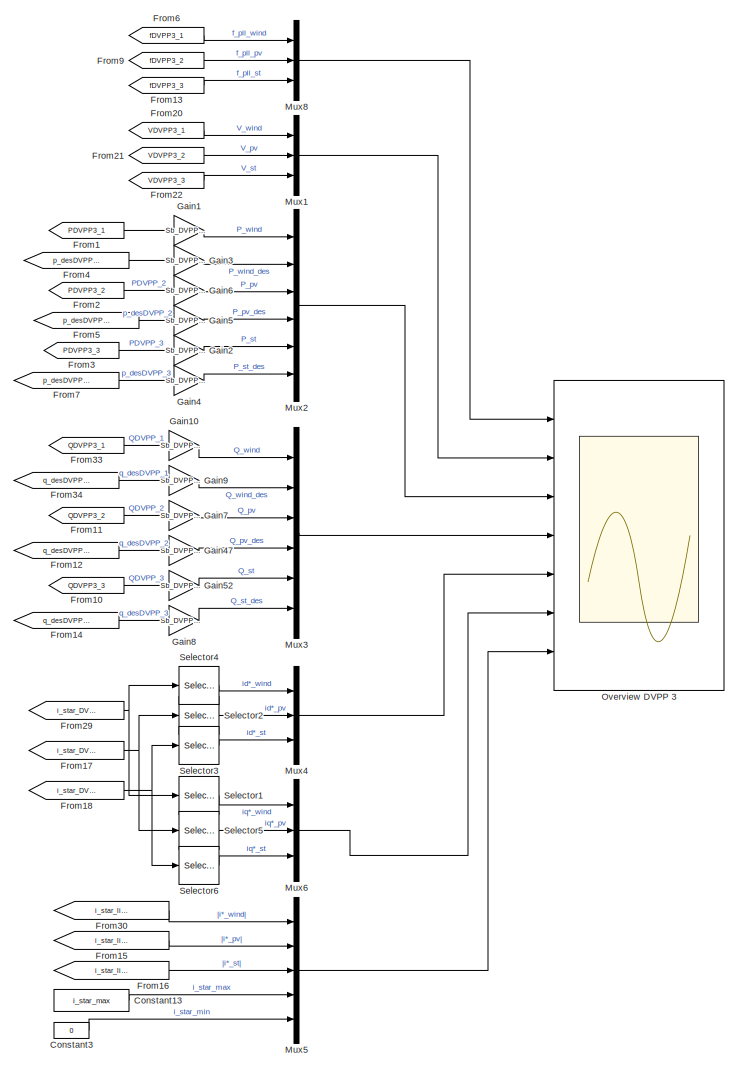
[diagram: root canvas - part 1/9, top right region]
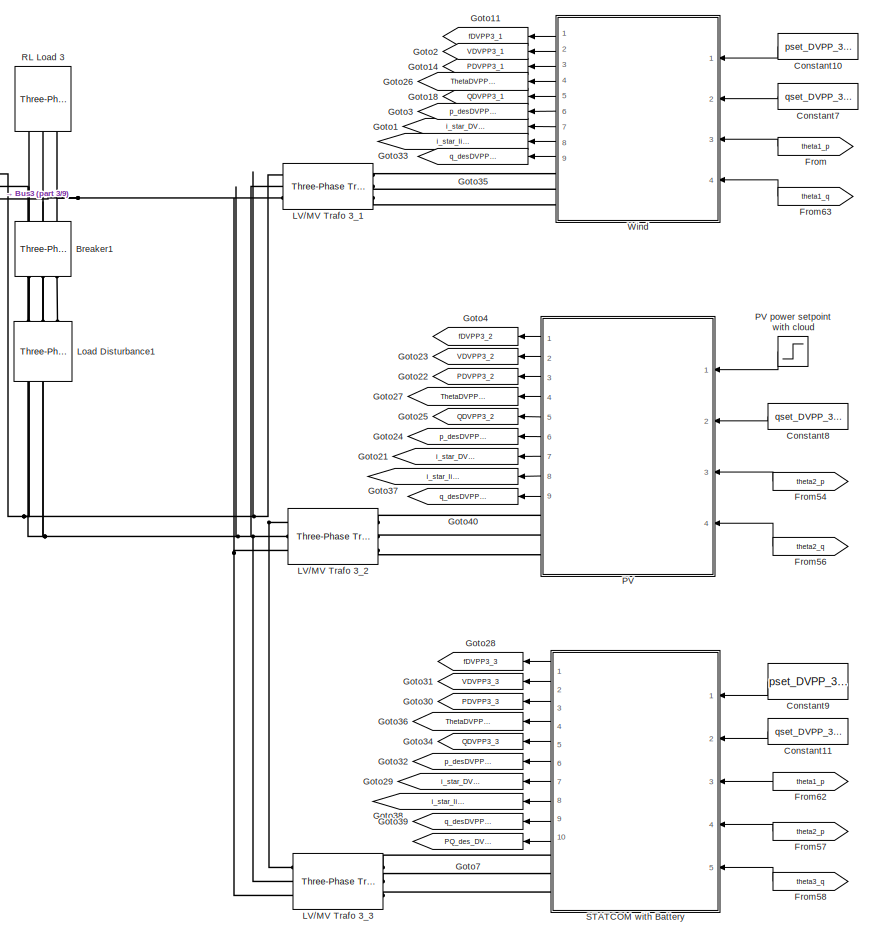
[diagram: root canvas - part 2/9, top right region]
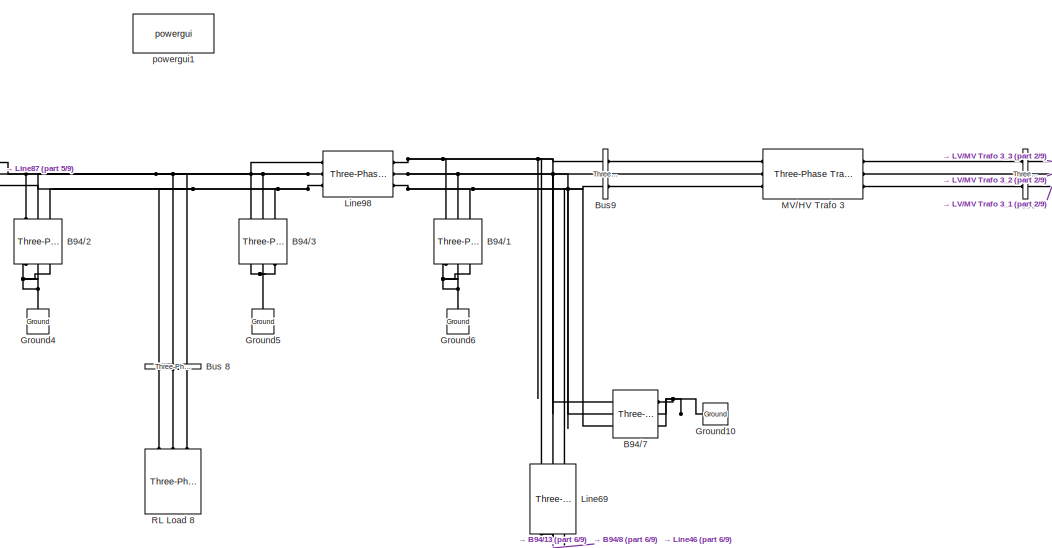
[diagram: root canvas - part 3/9, top center region]
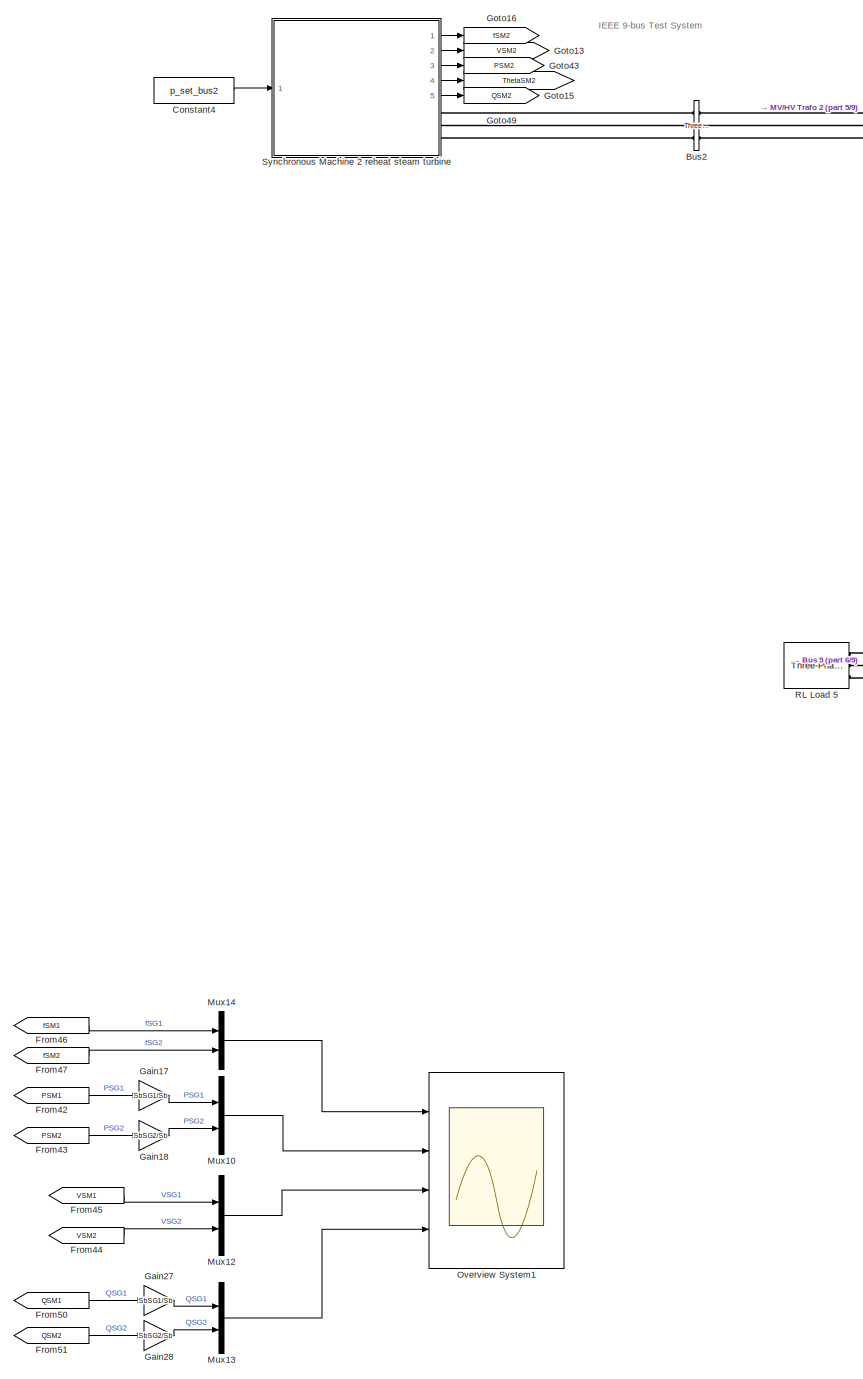
[diagram: root canvas - part 4/9, middle left region]
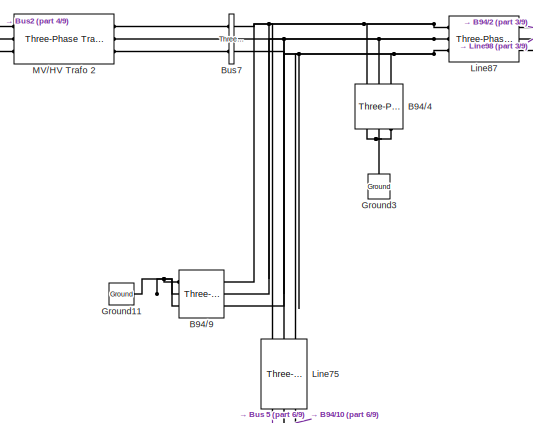
[diagram: root canvas - part 5/9, top left region]
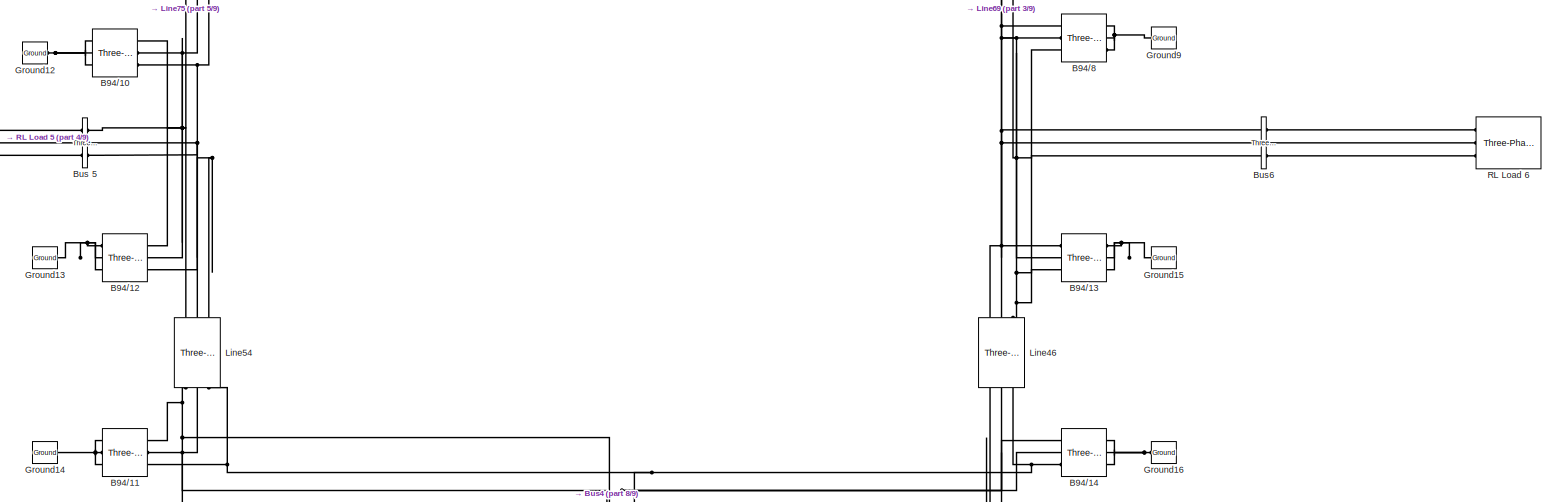
[diagram: root canvas - part 6/9, central region]
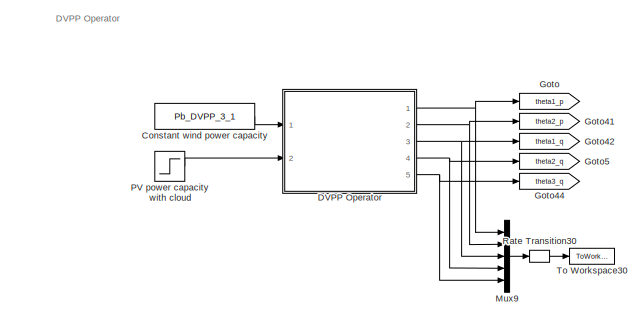
[diagram: root canvas - part 7/9, central region]
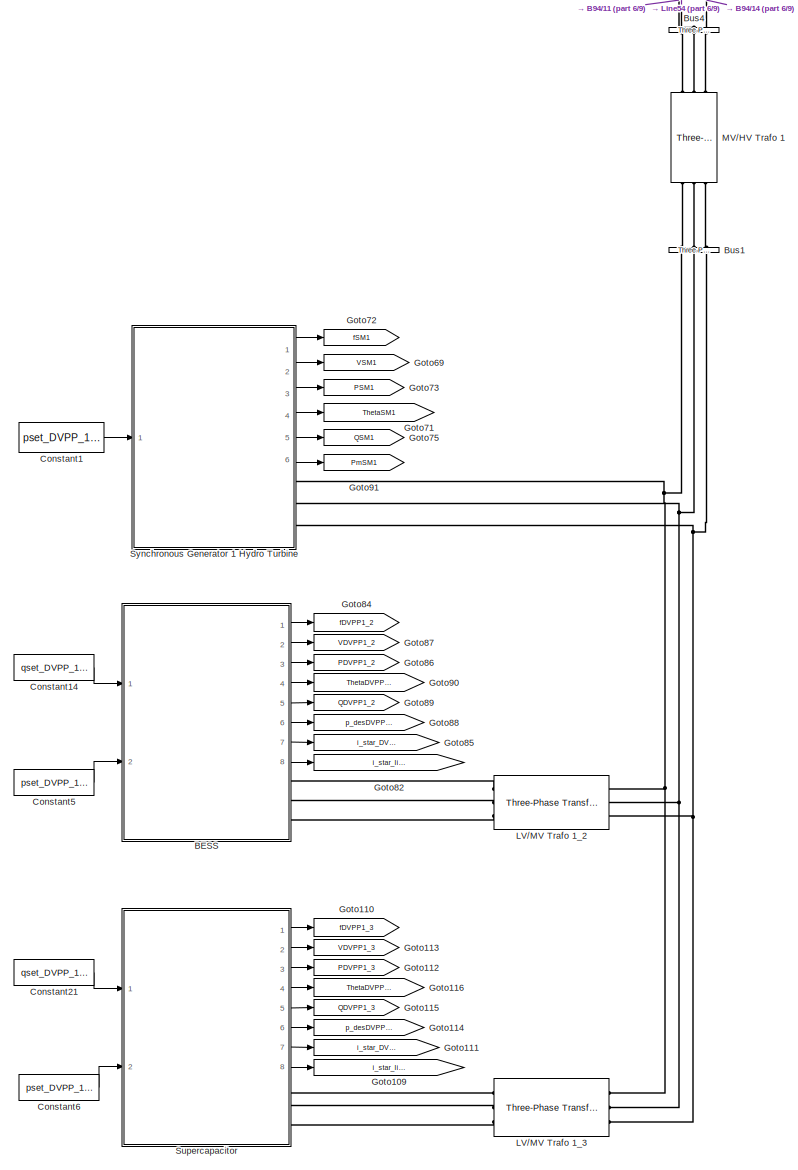
[diagram: root canvas - part 8/9, bottom left region]
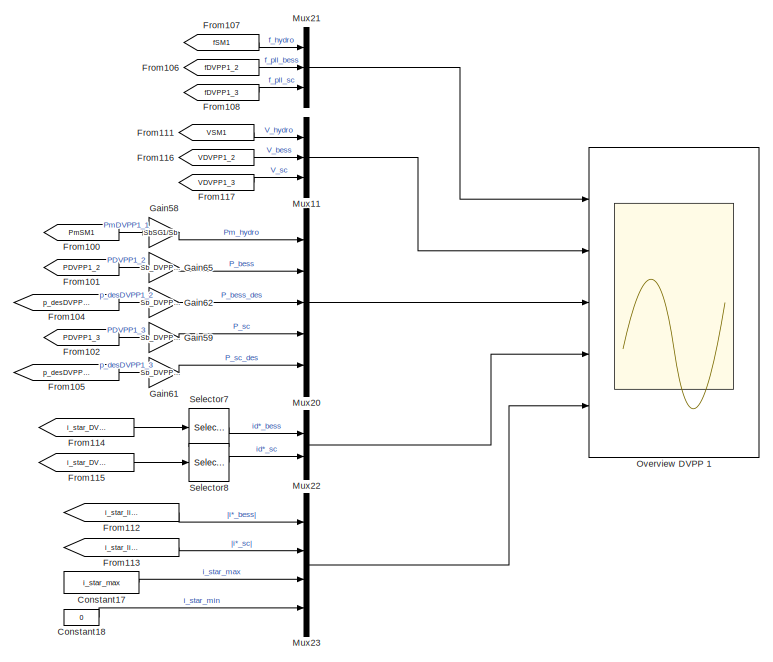
[diagram: root canvas - part 9/9, bottom center region]
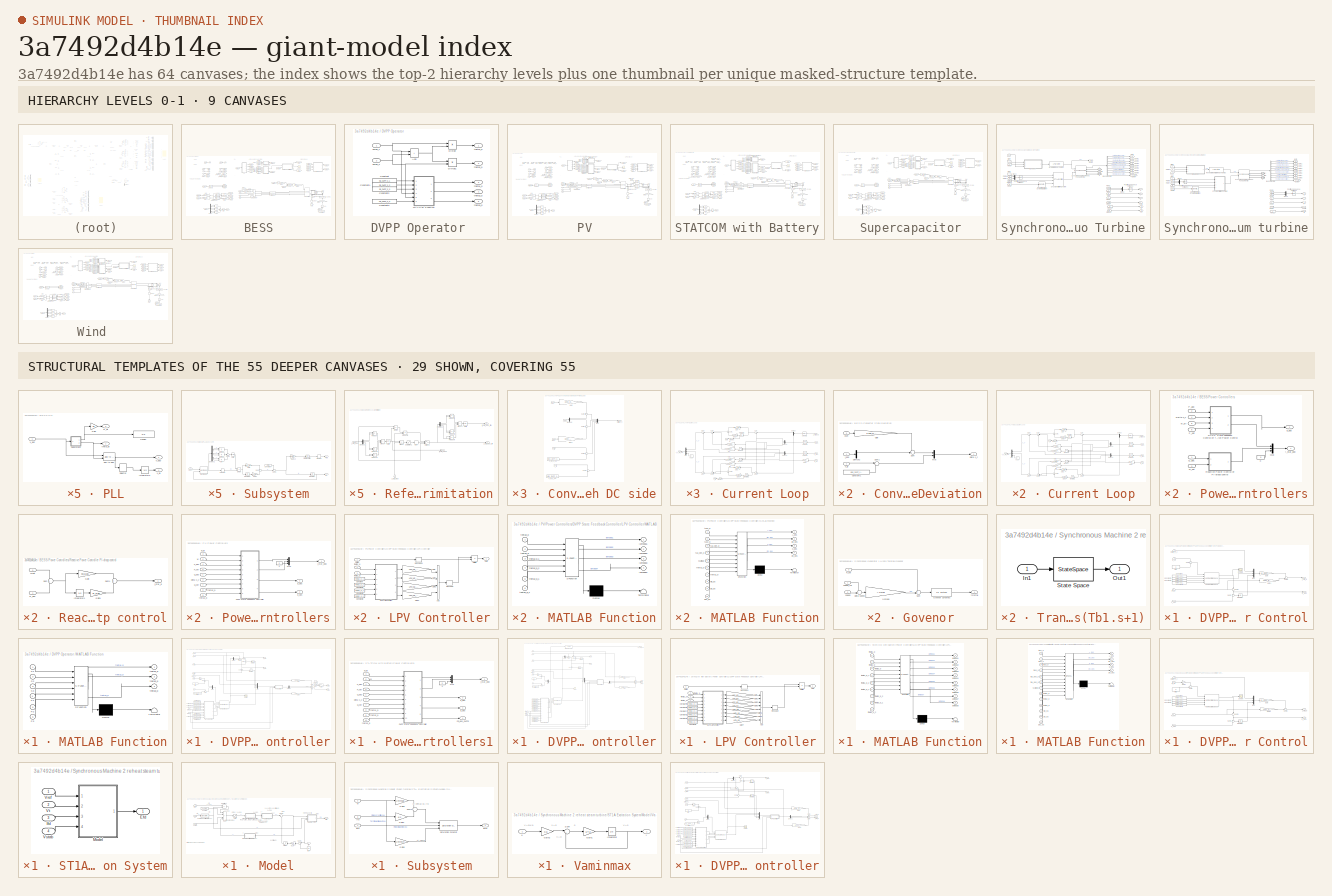
[diagram: thumbnail index - top-2 hierarchy levels (9 canvases) + 29 structural-template representatives of the remaining 55 canvases]
MODEL slx_3a7492d4b14e
KIND model
CONFIG AbsTol = auto
CONFIG EnableMultiTasking = off
CONFIG FixedStep = T_s_power
CONFIG MaxStep = 5.0E-5
CONFIG MinStep = auto
CONFIG RelTol = 1e-3
CONFIG SampleTimeConstraint = Unconstrained
CONFIG Solver = FixedStepAuto
CONFIG SolverName = FixedStepAuto
CONFIG StartTime = 0.0
CONFIG StopTime = Tend
BLOCK [Reference] B94//1  REF=powerlib/Elements/Three-Phase
Parallel RLC Branch
  AttributesFormatString = \n
  NameLocation = left
  Ports = [0, 0, 0, 0, 0, 3, 3]
  SourceBlock = powerlib/Elements/Three-Phase\nParallel RLC Branch
  SourceProductBaseCode = PS
  SourceType = Three-Phase Parallel RLC Branch
BLOCK [Reference] B94//10  REF=powerlib/Elements/Three-Phase
Parallel RLC Branch
  AttributesFormatString = \n
  Ports = [0, 0, 0, 0, 0, 3, 3]
  SourceBlock = powerlib/Elements/Three-Phase\nParallel RLC Branch
  SourceProductBaseCode = PS
  SourceType = Three-Phase Parallel RLC Branch
BLOCK [Reference] B94//11  REF=powerlib/Elements/Three-Phase
Parallel RLC Branch
  AttributesFormatString = \n
  Ports = [0, 0, 0, 0, 0, 3, 3]
  SourceBlock = powerlib/Elements/Three-Phase\nParallel RLC Branch
  SourceProductBaseCode = PS
  SourceType = Three-Phase Parallel RLC Branch
BLOCK [Reference] B94//12  REF=powerlib/Elements/Three-Phase
Parallel RLC Branch
  AttributesFormatString = \n
  Ports = [0, 0, 0, 0, 0, 3, 3]
  SourceBlock = powerlib/Elements/Three-Phase\nParallel RLC Branch
  SourceProductBaseCode = PS
  SourceType = Three-Phase Parallel RLC Branch
BLOCK [Reference] B94//13  REF=powerlib/Elements/Three-Phase
Parallel RLC Branch
  AttributesFormatString = \n
  Ports = [0, 0, 0, 0, 0, 3, 3]
  SourceBlock = powerlib/Elements/Three-Phase\nParallel RLC Branch
  SourceProductBaseCode = PS
  SourceType = Three-Phase Parallel RLC Branch
BLOCK [Reference] B94//14  REF=powerlib/Elements/Three-Phase
Parallel RLC Branch
  AttributesFormatString = \n
  Ports = [0, 0, 0, 0, 0, 3, 3]
  SourceBlock = powerlib/Elements/Three-Phase\nParallel RLC Branch
  SourceProductBaseCode = PS
  SourceType = Three-Phase Parallel RLC Branch
BLOCK [Reference] B94//2  REF=powerlib/Elements/Three-Phase
Parallel RLC Branch
  AttributesFormatString = \n
  NameLocation = left
  Ports = [0, 0, 0, 0, 0, 3, 3]
  SourceBlock = powerlib/Elements/Three-Phase\nParallel RLC Branch
  SourceProductBaseCode = PS
  SourceType = Three-Phase Parallel RLC Branch
BLOCK [Reference] B94//3  REF=powerlib/Elements/Three-Phase
Parallel RLC Branch
  AttributesFormatString = \n
  NameLocation = left
  Ports = [0, 0, 0, 0, 0, 3, 3]
  SourceBlock = powerlib/Elements/Three-Phase\nParallel RLC Branch
  SourceProductBaseCode = PS
  SourceType = Three-Phase Parallel RLC Branch
BLOCK [Reference] B94//4  REF=powerlib/Elements/Three-Phase
Parallel RLC Branch
  AttributesFormatString = \n
  NameLocation = left
  Ports = [0, 0, 0, 0, 0, 3, 3]
  SourceBlock = powerlib/Elements/Three-Phase\nParallel RLC Branch
  SourceProductBaseCode = PS
  SourceType = Three-Phase Parallel RLC Branch
BLOCK [Reference] B94//7  REF=powerlib/Elements/Three-Phase
Parallel RLC Branch
  AttributesFormatString = \n
  Ports = [0, 0, 0, 0, 0, 3, 3]
  SourceBlock = powerlib/Elements/Three-Phase\nParallel RLC Branch
  SourceProductBaseCode = PS
  SourceType = Three-Phase Parallel RLC Branch
BLOCK [Reference] B94//8  REF=powerlib/Elements/Three-Phase
Parallel RLC Branch
  AttributesFormatString = \n
  Ports = [0, 0, 0, 0, 0, 3, 3]
  SourceBlock = powerlib/Elements/Three-Phase\nParallel RLC Branch
  SourceProductBaseCode = PS
  SourceType = Three-Phase Parallel RLC Branch
BLOCK [Reference] B94//9  REF=powerlib/Elements/Three-Phase
Parallel RLC Branch
  AttributesFormatString = \n
  Ports = [0, 0, 0, 0, 0, 3, 3]
  SourceBlock = powerlib/Elements/Three-Phase\nParallel RLC Branch
  SourceProductBaseCode = PS
  SourceType = Three-Phase Parallel RLC Branch
BLOCK [SubSystem] BESS
  Ports = [2, 8, 0, 0, 0, 0, 3]
  RequestExecContextInheritance = off
BLOCK [PMIOPort] BESS/A
  Side = Right
BLOCK [Sum] BESS/Add6
  IconShape = rectangular
  Inputs = +-
  NameLocation = right
  Ports = [2, 1]
BLOCK [PMIOPort] BESS/B
  Port = 2
  Side = Right
BLOCK [PMIOPort] BESS/C
  Port = 3
  Side = Right
BLOCK [Reference] BESS/C_dc1  REF=powerlib/Elements/Series RLC Branch
  NameLocation = left
  Ports = [0, 0, 0, 0, 0, 1, 1]
  SourceBlock = powerlib/Elements/Series RLC Branch
  SourceProductBaseCode = PS
  SourceType = Series RLC Branch
BLOCK [Constant] BESS/Constant
  Value = i_star_max
BLOCK [Constant] BESS/Constant1
  NameLocation = right
  Value = Vdc_n_DVPP_1_2
BLOCK [SubSystem] BESS/Converter State Deviation
  Ports = [3, 1]
  RequestExecContextInheritance = off
BLOCK [Constant] BESS/Converter State Deviation/Constant1
  Value = xid0_DVPP_1_2_pu
BLOCK [Outport] BESS/Converter State Deviation/Delta x_c
BLOCK [Demux] BESS/Converter State Deviation/Demux2
  Outputs = 3
  Ports = [1, 3]
BLOCK [Gain] BESS/Converter State Deviation/Gain
  Gain = 1/vd0_DVPP_1_2_pu
BLOCK [Mux] BESS/Converter State Deviation/Mux
  DisplayOption = bar
  Inputs = 2
  Ports = [2, 1]
BLOCK [Sum] BESS/Converter State Deviation/Sum
  Inputs = -+|
  Ports = [2, 1]
BLOCK [Sum] BESS/Converter State Deviation/Sum1
  Inputs = |+-
  Ports = [2, 1]
BLOCK [Inport] BESS/Converter State Deviation/i_dq0
BLOCK [Inport] BESS/Converter State Deviation/pset
  Port = 3
BLOCK [Inport] BESS/Converter State Deviation/x_id
  Port = 2
BLOCK [SubSystem] BESS/Current Loop
  AncestorBlock = Library/Grid-Forming Converter\nControlled by Droop Control /Current Loop
  Ports = [4, 2]
  RequestExecContextInheritance = off
BLOCK [Demux] BESS/Current Loop/Demux
  NameLocation = top
  Outputs = 2
  Ports = [1, 2]
BLOCK [Demux] BESS/Current Loop/Demux1
  NameLocation = top
  Outputs = 2
  Ports = [1, 2]
BLOCK [Demux] BESS/Current Loop/Demux2
  NameLocation = top
  Outputs = 2
  Ports = [1, 2]
BLOCK [Gain] BESS/Current Loop/Gain
  Gain = kp_i_pu
BLOCK [Gain] BESS/Current Loop/Gain1
  Gain = ki_i_pu
BLOCK [Gain] BESS/Current Loop/Gain2
  Gain = kp_i_pu
BLOCK [Gain] BESS/Current Loop/Gain3
  Gain = ki_i_pu
BLOCK [Gain] BESS/Current Loop/Gain4
  Gain = w_b
BLOCK [Integrator] BESS/Current Loop/Integrator1
  InitialCondition = xid0_DVPP_1_2_pu
  Ports = [1, 1]
BLOCK [Integrator] BESS/Current Loop/Integrator2
  InitialCondition = xiq0_DVPP_1_2_pu
  Ports = [1, 1]
BLOCK [Memory] BESS/Current Loop/Memory2
  NameLocation = top
BLOCK [Mux] BESS/Current Loop/Mux
  DisplayOption = bar
  Inputs = 3
  NameLocation = top
  Ports = [3, 1]
BLOCK [Product] BESS/Current Loop/Product
  Ports = [2, 1]
BLOCK [Product] BESS/Current Loop/Product1
  Ports = [2, 1]
BLOCK [Gain] BESS/Current Loop/Rf
  Gain = r_f_DVPP_1_2
BLOCK [Gain] BESS/Current Loop/Rf1
  Gain = r_f_DVPP_1_2
BLOCK [Selector] BESS/Current Loop/Selector1
  IndexOptions = Index vector (dialog)
  Indices = [1 2]
  InputPortWidth = 3
  NameLocation = top
  OutputSizes = 1
  Ports = [1, 1]
BLOCK [Selector] BESS/Current Loop/Selector2
  IndexOptions = Index vector (dialog)
  Indices = [1 2]
  InputPortWidth = 3
  NameLocation = top
  OutputSizes = 1
  Ports = [1, 1]
BLOCK [Selector] BESS/Current Loop/Selector3
  IndexOptions = Index vector (dialog)
  Indices = [1 2]
  InputPortWidth = 3
  NameLocation = top
  OutputSizes = 1
  Ports = [1, 1]
BLOCK [Sum] BESS/Current Loop/Sum
  Inputs = |+-
  NameLocation = top
  Ports = [2, 1]
BLOCK [Sum] BESS/Current Loop/Sum1
  Ports = [2, 1]
BLOCK [Sum] BESS/Current Loop/Sum2
  Inputs = |+-+
  NameLocation = top
  Ports = [3, 1]
BLOCK [Sum] BESS/Current Loop/Sum3
  Inputs = |++
  NameLocation = top
  Ports = [2, 1]
BLOCK [Sum] BESS/Current Loop/Sum4
  Ports = [2, 1]
BLOCK [Sum] BESS/Current Loop/Sum5
  Inputs = +++|
  NameLocation = top
  Ports = [3, 1]
BLOCK [Sum] BESS/Current Loop/Sum6
  Inputs = -+|
  NameLocation = top
  Ports = [2, 1]
BLOCK [Sum] BESS/Current Loop/Sum7
  Inputs = ++|
  NameLocation = top
  Ports = [2, 1]
BLOCK [Inport] BESS/Current Loop/i_dq0
  NameLocation = top
  Port = 3
BLOCK [Inport] BESS/Current Loop/i_star_dq0
  NameLocation = top
BLOCK [Inport] BESS/Current Loop/v_dq0
  NameLocation = top
  Port = 2
BLOCK [Outport] BESS/Current Loop/v_s_ref_dq0
  NameLocation = top
  VectorParamsAs1DForOutWhenUnconnected = off
BLOCK [Constant] BESS/Current Loop/vs_0*
  Value = 0
BLOCK [Gain] BESS/Current Loop/w*Lf
  Gain = l_f_DVPP_1_2/w_b
BLOCK [Gain] BESS/Current Loop/w*Lf1
  Gain = l_f_DVPP_1_2/w_b
BLOCK [Inport] BESS/Current Loop/w_pll
  NameLocation = top
  Port = 4
BLOCK [Outport] BESS/Current Loop/x_id
  NameLocation = top
  Port = 2
  VectorParamsAs1DForOutWhenUnconnected = off
BLOCK [Demux] BESS/Demux2
  Outputs = 3
  Ports = [1, 3]
BLOCK [From] BESS/From
  GotoTag = V
BLOCK [From] BESS/From1
  GotoTag = w_pll
  NameLocation = top
BLOCK [From] BESS/From10
  GotoTag = p_des
BLOCK [From] BESS/From11
  GotoTag = P_abc
BLOCK [From] BESS/From12
  GotoTag = P_abc
BLOCK [From] BESS/From13
  GotoTag = v_abc
BLOCK [From] BESS/From14
  GotoTag = Q_abc
BLOCK [From] BESS/From15
  GotoTag = Qset
BLOCK [From] BESS/From17
  GotoTag = theta_pll
  NameLocation = top
BLOCK [From] BESS/From18
  GotoTag = i_star2_lim
BLOCK [From] BESS/From19
  GotoTag = i_abc
  NameLocation = top
BLOCK [From] BESS/From2
  GotoTag = i_star_dq02_lim
BLOCK [From] BESS/From20
  GotoTag = v_dq0
  NameLocation = top
BLOCK [From] BESS/From21
  GotoTag = w_pll
  NameLocation = top
BLOCK [From] BESS/From22
  GotoTag = v_abc
  NameLocation = top
BLOCK [From] BESS/From3
  GotoTag = w_pll
BLOCK [From] BESS/From30
  GotoTag = i_abc
BLOCK [From] BESS/From32
  GotoTag = i_dq0
  NameLocation = top
BLOCK [From] BESS/From33
  GotoTag = theta_pll
  NameLocation = top
BLOCK [From] BESS/From34
  GotoTag = theta_pll
  NameLocation = top
BLOCK [From] BESS/From4
  GotoTag = Delta_x_c
BLOCK [From] BESS/From44
  GotoTag = v_s_ref_dq0
BLOCK [From] BESS/From45
  GotoTag = theta_pll
BLOCK [From] BESS/From46
  GotoTag = v_dq0
  NameLocation = top
BLOCK [From] BESS/From47
  GotoTag = i_dq0
  NameLocation = top
BLOCK [From] BESS/From5
  GotoTag = i_star_dq02_lim
  NameLocation = top
BLOCK [From] BESS/From51
  GotoTag = x_id
BLOCK [From] BESS/From6
  GotoTag = Pset
BLOCK [From] BESS/From63
  GotoTag = v_dc
  NameLocation = top
BLOCK [From] BESS/From7
  GotoTag = Q_abc
BLOCK [From] BESS/From8
  GotoTag = Pset
BLOCK [Reference] BESS/G_dc1  REF=powerlib/Elements/Series RLC Branch
  NameLocation = left
  Ports = [0, 0, 0, 0, 0, 1, 1]
  SourceBlock = powerlib/Elements/Series RLC Branch
  SourceProductBaseCode = PS
  SourceType = Series RLC Branch
BLOCK [Gain] BESS/Gain10
  Gain = V_m_DVPP_1_2
BLOCK [Gain] BESS/Gain16
  Gain = k_dc_DVPP_1_2
  NameLocation = right
BLOCK [Gain] BESS/Gain19
  Gain = 2/(Vdc_n_DVPP_1_2)
BLOCK [Gain] BESS/Gain2
  Gain = 1/I_m_DVPP_1_2
BLOCK [Gain] BESS/Gain3
  Gain = V_m_DVPP_1_2
BLOCK [Gain] BESS/Gain4
  Gain = I_m_DVPP_1_2
BLOCK [Gain] BESS/Gain5
  Gain = 1/Sb_DVPP_1_2
BLOCK [Gain] BESS/Gain6
  Gain = 1/Sb_DVPP_1_2
BLOCK [Goto] BESS/Goto1
  GotoTag = p_des
  NameLocation = top
BLOCK [Goto] BESS/Goto10
  GotoTag = v_abc
  NameLocation = top
BLOCK [Goto] BESS/Goto12
  GotoTag = Q_abc
  NameLocation = top
BLOCK [Goto] BESS/Goto13
  GotoTag = theta_pll
BLOCK [Goto] BESS/Goto15
  GotoTag = Qset
  NameLocation = top
BLOCK [Goto] BESS/Goto16
  GotoTag = w_pll
  NameLocation = top
BLOCK [Goto] BESS/Goto2
  GotoTag = x_pll
  NameLocation = top
BLOCK [Goto] BESS/Goto21
  GotoTag = i_abc
BLOCK [Goto] BESS/Goto22
  GotoTag = V
BLOCK [Goto] BESS/Goto23
  GotoTag = i_dq0
BLOCK [Goto] BESS/Goto24
  GotoTag = P_abc
  NameLocation = top
BLOCK [Goto] BESS/Goto3
  GotoTag = v_dq0
BLOCK [Goto] BESS/Goto31
  GotoTag = v_s_ref_dq0
  NameLocation = top
BLOCK [Goto] BESS/Goto32
  GotoTag = Delta_x_c
  NameLocation = top
BLOCK [Goto] BESS/Goto33
  GotoTag = x_id
  NameLocation = top
BLOCK [Goto] BESS/Goto4
  GotoTag = Pset
  NameLocation = top
BLOCK [Goto] BESS/Goto6
  GotoTag = i_star_dq02_lim
  NameLocation = top
BLOCK [Goto] BESS/Goto8
  GotoTag = i_star2_lim
  NameLocation = top
BLOCK [Goto] BESS/Goto9
  GotoTag = v_dc
  NameLocation = left
BLOCK [Reference] BESS/LTI System1  REF=cstblocks/LTI System
  NameLocation = right
  Ports = [1, 1]
  SourceBlock = cstblocks/LTI System
  SourceProductBaseCode = CT
  SourceType = LTI Block
BLOCK [Memory] BESS/Memory10
  InitialCondition = [vabc_DVPP_1_2_0_pu(1), vabc_DVPP_1_2_0_pu(2), vabc_DVPP_1_2_0_pu(3)]
  NameLocation = top
BLOCK [Memory] BESS/Memory2
  InitialCondition = [iabc_DVPP_1_2_0(1), iabc_DVPP_1_2_0(2), iabc_DVPP_1_2_0(3)]
  NameLocation = top
BLOCK [Memory] BESS/Memory4
  NameLocation = left
BLOCK [Outport] BESS/P
  NameLocation = top
  Port = 3
  VectorParamsAs1DForOutWhenUnconnected = off
BLOCK [SubSystem] BESS/PLL
  Ports = [1, 4]
  RequestExecContextInheritance = off
BLOCK [Display] BESS/PLL/Display
  Decimation = 1
  Ports = [1]
BLOCK [Gain] BESS/PLL/Gain
  Gain = 1/fb
BLOCK [Integrator] BESS/PLL/Integrator3
  InitialCondition = xpll0_pu
  Ports = [1, 1]
BLOCK [Selector] BESS/PLL/Selector
  IndexOptions = Index vector (dialog)
  Indices = 2
  InputPortWidth = 3
  OutputSizes = 1
  Ports = [1, 1]
BLOCK [SubSystem] BESS/PLL/Subsystem
  Ports = [1, 2]
  RequestExecContextInheritance = off
BLOCK [Constant] BESS/PLL/Subsystem/Constant
  Value = 2*pi*50
BLOCK [Demux] BESS/PLL/Subsystem/Demux2
  Outputs = 3
  Ports = [1, 3]
BLOCK [Product] BESS/PLL/Subsystem/Divide
  Inputs = /*
  Ports = [2, 1]
BLOCK [Reference] BESS/PLL/Subsystem/First-Order Filter  REF=powerlib_meascontrol/Filters/First-Order
Filter
  Ports = [1, 1]
  SourceBlock = powerlib_meascontrol/Filters/First-Order\nFilter
  SourceProductBaseCode = PS
  SourceType = First-Order Filter
BLOCK [Outport] BESS/PLL/Subsystem/Freq
  VectorParamsAs1DForOutWhenUnconnected = off
BLOCK [Gain] BESS/PLL/Subsystem/Gain
  Gain = kp_pll
BLOCK [Gain] BESS/PLL/Subsystem/Gain1
  Gain = ki_pll
BLOCK [Gain] BESS/PLL/Subsystem/Gain10
  Gain = 1/2/pi
  OutDataTypeStr = Inherit: Same as input
  ParamDataTypeStr = Inherit: Same as input
  SaturateOnIntegerOverflow = on
BLOCK [Integrator] BESS/PLL/Subsystem/Integrator
  Ports = [1, 1]
BLOCK [Integrator] BESS/PLL/Subsystem/Integrator1
  InitialCondition = xpll0_pu
  Ports = [1, 1]
BLOCK [Memory] BESS/PLL/Subsystem/Memory
  InitialCondition = fb
BLOCK [Selector] BESS/PLL/Subsystem/Selector
  IndexOptions = Index vector (dialog)
  Indices = 2
  InputPortWidth = 3
  OutputSizes = 1
  Ports = [1, 1]
BLOCK [Sqrt] BESS/PLL/Subsystem/Sqrt2
BLOCK [Sum] BESS/PLL/Subsystem/Sum
  Ports = [2, 1]
BLOCK [Sum] BESS/PLL/Subsystem/Sum1
  Inputs = ++|
  Ports = [2, 1]
BLOCK [Sum] BESS/PLL/Subsystem/Sum2
  InputSameDT = on
  Inputs = +++
  OutDataTypeStr = Inherit: Same as first input
  Ports = [3, 1]
  SaturateOnIntegerOverflow = on
BLOCK [Inport] BESS/PLL/Subsystem/Vabc
  PortDimensions = 3
BLOCK [Reference] BESS/PLL/Subsystem/abc to dq0  REF=powerlib_meascontrol/Transformations/abc to dq0
  Ports = [2, 1]
  SourceBlock = powerlib_meascontrol/Transformations/abc to dq0
  SourceProductBaseCode = MT,PS
  SourceType = abc to dq0 Transformation
BLOCK [Product] BESS/PLL/Subsystem/d²2
  InputSameDT = on
  NameLocation = top
  OutDataTypeStr = Inherit: Same as first input
  Ports = [2, 1]
  RndMeth = Zero
  SaturateOnIntegerOverflow = on
BLOCK [Product] BESS/PLL/Subsystem/q²4
  InputSameDT = on
  OutDataTypeStr = Inherit: Same as first input
  Ports = [2, 1]
  RndMeth = Zero
  SaturateOnIntegerOverflow = on
BLOCK [Product] BESS/PLL/Subsystem/q²5
  InputSameDT = on
  OutDataTypeStr = Inherit: Same as first input
  Ports = [2, 1]
  RndMeth = Zero
  SaturateOnIntegerOverflow = on
BLOCK [Outport] BESS/PLL/Subsystem/wt
  Port = 2
  VectorParamsAs1DForOutWhenUnconnected = off
BLOCK [Reference] BESS/PLL/abc to dq0  REF=powerlib_meascontrol/Transformations/abc to dq0
  Ports = [2, 1]
  SourceBlock = powerlib_meascontrol/Transformations/abc to dq0
  SourceProductBaseCode = PS
  SourceType = abc to dq0 Transformation
BLOCK [Outport] BESS/PLL/theta_pll
  VectorParamsAs1DForOutWhenUnconnected = off
BLOCK [Inport] BESS/PLL/v_abc
BLOCK [Outport] BESS/PLL/v_dq0
  Port = 2
  VectorParamsAs1DForOutWhenUnconnected = off
BLOCK [Outport] BESS/PLL/w_pll
  Port = 3
  VectorParamsAs1DForOutWhenUnconnected = off
BLOCK [Outport] BESS/PLL/x_pll
  Port = 4
  VectorParamsAs1DForOutWhenUnconnected = off
BLOCK [Reference] BESS/Power (dq0, Instantaneous)  REF=powerlib_meascontrol/Measurements/Power
(dq0, Instantaneous)
  NameLocation = top
  Ports = [2, 2]
  SourceBlock = powerlib_meascontrol/Measurements/Power\n(dq0, Instantaneous)
  SourceProductBaseCode = PS
  SourceType = Power (dq0, Instantaneous)
BLOCK [SubSystem] BESS/Power Controllers
  Ports = [6, 2]
  RequestExecContextInheritance = off
BLOCK [Constant] BESS/Power Controllers/0
  Value = 0
BLOCK [SubSystem] BESS/Power Controllers/DVPP State Feedback Controller for Active Power Control
  Ports = [4, 2]
  RequestExecContextInheritance = off
BLOCK [Constant] BESS/Power Controllers/DVPP State Feedback Controller for Active Power Control/Constant
  Value = ReferenceSS2_DVPP_1.A
  VectorParams1D = off
BLOCK [Constant] BESS/Power Controllers/DVPP State Feedback Controller for Active Power Control/Constant1
  Value = ReferenceSS2_DVPP_1.B
  VectorParams1D = off
BLOCK [Constant] BESS/Power Controllers/DVPP State Feedback Controller for Active Power Control/Constant2
  Value = ReferenceSS2_DVPP_1.C
  VectorParams1D = off
BLOCK [Constant] BESS/Power Controllers/DVPP State Feedback Controller for Active Power Control/Constant3
  Value = ReferenceSS2_DVPP_1.D
  VectorParams1D = off
BLOCK [Inport] BESS/Power Controllers/DVPP State Feedback Controller for Active Power Control/Delta_x_c
  Port = 2
BLOCK [Gain] BESS/Power Controllers/DVPP State Feedback Controller for Active Power Control/Gain
  Gain = K2_DVPP_1
  Multiplication = Matrix(K*u)
BLOCK [Gain] BESS/Power Controllers/DVPP State Feedback Controller for Active Power Control/Gain1
  Gain = 1/vd0_DVPP_1_2_pu
BLOCK [Integrator] BESS/Power Controllers/DVPP State Feedback Controller for Active Power Control/Integrator
  Ports = [1, 1]
BLOCK [Mux] BESS/Power Controllers/DVPP State Feedback Controller for Active Power Control/Mux
  DisplayOption = bar
  Inputs = 3
  Ports = [3, 1]
BLOCK [Inport] BESS/Power Controllers/DVPP State Feedback Controller for Active Power Control/P_abc
BLOCK [Inport] BESS/Power Controllers/DVPP State Feedback Controller for Active Power Control/Pset
  Port = 4
BLOCK [Scope] BESS/Power Controllers/DVPP State Feedback Controller for Active Power Control/Scope
  Floating = off
  NumInputPorts = 1
  Ports = [1]
  ScopeSpecificationString = Simulink.scopes.TimeScopeBlockCfg('CurrentConfiguration', extmgr.ConfigurationSet(extmgr.Configuration('Core','General UI',true),extmgr.Configuration('Core','Source UI',true),extmgr.Configuration('Sources','WiredSimulink',true,'DataLoggingVariableName','ScopeData4'),extmgr.Configuration('Visuals','Time Domain',true,'SerializedDisplays',{struct('MinYLimReal','-0.52002','MaxYLimReal','1.81587','YLab...<+1399ch>
BLOCK [Sum] BESS/Power Controllers/DVPP State Feedback Controller for Active Power Control/Sum
  Inputs = +-
  Ports = [2, 1]
BLOCK [Sum] BESS/Power Controllers/DVPP State Feedback Controller for Active Power Control/Sum1
  Inputs = ++|
  NameLocation = left
  Ports = [2, 1]
BLOCK [Sum] BESS/Power Controllers/DVPP State Feedback Controller for Active Power Control/Sum2
  Ports = [2, 1]
BLOCK [Sum] BESS/Power Controllers/DVPP State Feedback Controller for Active Power Control/Sum3
  Inputs = -+
  Ports = [2, 1]
BLOCK [Reference] BESS/Power Controllers/DVPP State Feedback Controller for Active Power Control/Varying State Space  REF=cstblocks/Linear Parameter Varying/Varying State Space
  Ports = [5, 3]
  SourceBlock = cstblocks/Linear Parameter Varying/Varying State Space
  SourceProductBaseCode = CT
  SourceType = Varying State Space
BLOCK [Outport] BESS/Power Controllers/DVPP State Feedback Controller for Active Power Control/i_star_d
  Port = 2
BLOCK [Outport] BESS/Power Controllers/DVPP State Feedback Controller for Active Power Control/p_des
BLOCK [Constant] BESS/Power Controllers/DVPP State Feedback Controller for Active Power Control/w* [SI]
BLOCK [Inport] BESS/Power Controllers/DVPP State Feedback Controller for Active Power Control/w_pll
  Port = 3
BLOCK [Inport] BESS/Power Controllers/Delta x_c
  Port = 4
BLOCK [Mux] BESS/Power Controllers/Mux
  DisplayOption = bar
  Inputs = 3
  Ports = [3, 1]
BLOCK [Inport] BESS/Power Controllers/P_abc
  Port = 2
BLOCK [Inport] BESS/Power Controllers/P_set
  Port = 6
BLOCK [Inport] BESS/Power Controllers/Q_abc
BLOCK [Inport] BESS/Power Controllers/Q_set
  Port = 3
BLOCK [SubSystem] BESS/Power Controllers/Reactive Power Controller PI-droop control
  Ports = [2, 1]
  RequestExecContextInheritance = off
BLOCK [Gain] BESS/Power Controllers/Reactive Power Controller PI-droop control/Gain
  Gain = kp_q_pu
BLOCK [Gain] BESS/Power Controllers/Reactive Power Controller PI-droop control/Gain1
  Gain = ki_q_pu
BLOCK [Integrator] BESS/Power Controllers/Reactive Power Controller PI-droop control/Integrator1
  InitialCondition = xq0_DVPP_1_2_pu
  Ports = [1, 1]
BLOCK [Inport] BESS/Power Controllers/Reactive Power Controller PI-droop control/Q_abc
BLOCK [Inport] BESS/Power Controllers/Reactive Power Controller PI-droop control/Qset
  Port = 2
BLOCK [Sum] BESS/Power Controllers/Reactive Power Controller PI-droop control/Sum
  Inputs = -+
  Ports = [2, 1]
BLOCK [Sum] BESS/Power Controllers/Reactive Power Controller PI-droop control/Sum1
  Ports = [2, 1]
BLOCK [Outport] BESS/Power Controllers/Reactive Power Controller PI-droop control/i_star_q
BLOCK [Outport] BESS/Power Controllers/i_star_dq0
BLOCK [Outport] BESS/Power Controllers/p_des
  Port = 2
BLOCK [Inport] BESS/Power Controllers/w_pll
  Port = 5
BLOCK [Inport] BESS/Pset
  NameLocation = top
  Port = 2
BLOCK [Outport] BESS/Q
  NameLocation = top
  Port = 5
  VectorParamsAs1DForOutWhenUnconnected = off
BLOCK [Inport] BESS/Qset
  NameLocation = top
BLOCK [Reference] BESS/RL Filter Element  REF=powerlib/Elements/Three-Phase
Series RLC Branch
  AttributesFormatString = \n
  Ports = [0, 0, 0, 0, 0, 3, 3]
  SourceBlock = powerlib/Elements/Three-Phase\nSeries RLC Branch
  SourceProductBaseCode = PS
  SourceType = Three-Phase Series RLC Branch
BLOCK [SubSystem] BESS/Reference current limitation
  Ports = [2, 3]
  RequestExecContextInheritance = off
BLOCK [Demux] BESS/Reference current limitation/Demux1
  Outputs = 3
  Ports = [1, 3]
BLOCK [Demux] BESS/Reference current limitation/Demux2
  Outputs = 3
  Ports = [1, 3]
BLOCK [Product] BESS/Reference current limitation/Divide
  Inputs = */
  Ports = [2, 1]
BLOCK [Sum] BESS/Reference current limitation/Minus
  IconShape = rectangular
  Inputs = +-
  Ports = [2, 1]
BLOCK [Sum] BESS/Reference current limitation/Minus1
  IconShape = rectangular
  Inputs = +++
  Ports = [3, 1]
BLOCK [Sum] BESS/Reference current limitation/Minus4
  IconShape = rectangular
  Inputs = +++
  Ports = [3, 1]
BLOCK [Product] BESS/Reference current limitation/Product
  Ports = [2, 1]
  RndMeth = Zero
BLOCK [Product] BESS/Reference current limitation/Product1
  Ports = [2, 1]
  RndMeth = Zero
BLOCK [Product] BESS/Reference current limitation/Product2
  Ports = [2, 1]
  RndMeth = Zero
BLOCK [Product] BESS/Reference current limitation/Product3
  Ports = [2, 1]
  RndMeth = Zero
BLOCK [Product] BESS/Reference current limitation/Product4
  Ports = [2, 1]
  RndMeth = Zero
BLOCK [Product] BESS/Reference current limitation/Product6
  Ports = [2, 1]
  RndMeth = Zero
BLOCK [Product] BESS/Reference current limitation/Product7
  Ports = [2, 1]
  RndMeth = Zero
BLOCK [Saturate] BESS/Reference current limitation/Saturation1
  LowerLimit = 0
  UpperLimit = inf
BLOCK [Signum] BESS/Reference current limitation/Sign
BLOCK [Sqrt] BESS/Reference current limitation/Sqrt1
BLOCK [Sqrt] BESS/Reference current limitation/Sqrt2
BLOCK [Switch] BESS/Reference current limitation/Switch1
  InputSameDT = off
  SaturateOnIntegerOverflow = off
  Threshold = 1
BLOCK [Inport] BESS/Reference current limitation/i_star_dq0
BLOCK [Outport] BESS/Reference current limitation/i_star_dq0_lim
  VectorParamsAs1DForOutWhenUnconnected = off
BLOCK [Inport] BESS/Reference current limitation/i_star_max
  NameLocation = right
  Port = 2
BLOCK [Outport] BESS/Reference current limitation/||i_star_dq0_lim||
  Port = 3
  VectorParamsAs1DForOutWhenUnconnected = off
BLOCK [Outport] BESS/Reference current limitation/||i_star_dq0||
  Port = 2
  VectorParamsAs1DForOutWhenUnconnected = off
BLOCK [Scope] BESS/Scope1
  Floating = off
  NumInputPorts = 1
  Ports = [1]
  ScopeSpecificationString = Simulink.scopes.TimeScopeBlockCfg('CurrentConfiguration', extmgr.ConfigurationSet(extmgr.Configuration('Core','General UI',true),extmgr.Configuration('Core','Source UI',true),extmgr.Configuration('Sources','WiredSimulink',true,'DataLoggingVariableName','ScopeData3'),extmgr.Configuration('Visuals','Time Domain',true,'SerializedDisplays',{struct('MinYLimReal','0.45431','MaxYLimReal','1.4234','YLabel...<+1448ch>
BLOCK [Sqrt] BESS/Sqrt2
BLOCK [Sum] BESS/Sum2
  InputSameDT = on
  Inputs = +++
  OutDataTypeStr = Inherit: Same as first input
  Ports = [3, 1]
  SaturateOnIntegerOverflow = on
BLOCK [Outport] BESS/Theta
  NameLocation = top
  Port = 4
  VectorParamsAs1DForOutWhenUnconnected = off
BLOCK [Reference] BESS/Three-Phase V-I Measurement  REF=powerlib/Measurements/Three-Phase
V-I Measurement
  Ports = [0, 2, 0, 0, 0, 3, 3]
  SourceBlock = powerlib/Measurements/Three-Phase\nV-I Measurement
  SourceProductBaseCode = PS
  SourceType = Three-Phase VI Measurement
BLOCK [Reference] BESS/Universal Bridge  REF=powerlib/Power
Electronics/Universal Bridge
  Ports = [1, 0, 0, 0, 0, 3, 2]
  SourceBlock = powerlib/Power\nElectronics/Universal Bridge
  SourceProductBaseCode = PS
  SourceType = Universal Bridge
BLOCK [Outport] BESS/V
  NameLocation = top
  Port = 2
  VectorParamsAs1DForOutWhenUnconnected = off
BLOCK [Reference] BESS/Voltage Measurement  REF=powerlib/Measurements/Voltage Measurement
  NameLocation = left
  Ports = [0, 1, 0, 0, 0, 2]
  SourceBlock = powerlib/Measurements/Voltage Measurement
  SourceProductBaseCode = PS
  SourceType = Voltage Measurement
  UserDataPersistent = on
BLOCK [Reference] BESS/abc to dq1  REF=powerlib_meascontrol/Transformations/abc to dq0
  NameLocation = top
  Ports = [2, 1]
  SourceBlock = powerlib_meascontrol/Transformations/abc to dq0
  SourceProductBaseCode = PS
  SourceType = abc to dq0 Transformation
BLOCK [Reference] BESS/abc to dq2  REF=powerlib_meascontrol/Transformations/abc to dq0
  NameLocation = top
  Ports = [2, 1]
  SourceBlock = powerlib_meascontrol/Transformations/abc to dq0
  SourceProductBaseCode = PS
  SourceType = abc to dq0 Transformation
BLOCK [Reference] BESS/abc to dq3  REF=powerlib_meascontrol/Transformations/abc to dq0
  NameLocation = top
  Ports = [2, 1]
  SourceBlock = powerlib_meascontrol/Transformations/abc to dq0
  SourceProductBaseCode = PS
  SourceType = abc to dq0 Transformation
BLOCK [Reference] BESS/dq0 to abc  REF=powerlib_meascontrol/Transformations/dq0 to abc
  Ports = [2, 1]
  SourceBlock = powerlib_meascontrol/Transformations/dq0 to abc
  SourceProductBaseCode = PS
  SourceType = dq0 to abc Transformation
BLOCK [Product] BESS/d²2
  InputSameDT = on
  NameLocation = top
  OutDataTypeStr = Inherit: Same as first input
  Ports = [2, 1]
  RndMeth = Zero
  SaturateOnIntegerOverflow = on
BLOCK [Reference] BESS/i_dc1  REF=powerlib/Electrical
Sources/Controlled Current Source
  NameLocation = right
  Ports = [1, 0, 0, 0, 0, 1, 1]
  SourceBlock = powerlib/Electrical\nSources/Controlled Current Source
  SourceProductBaseCode = PS
  SourceType = Controlled Current Source
BLOCK [Outport] BESS/i_star_dq01
  NameLocation = top
  Port = 7
  VectorParamsAs1DForOutWhenUnconnected = off
BLOCK [Outport] BESS/p_des
  NameLocation = top
  Port = 6
  VectorParamsAs1DForOutWhenUnconnected = off
BLOCK [Product] BESS/q²4
  InputSameDT = on
  OutDataTypeStr = Inherit: Same as first input
  Ports = [2, 1]
  RndMeth = Zero
  SaturateOnIntegerOverflow = on
BLOCK [Product] BESS/q²5
  InputSameDT = on
  OutDataTypeStr = Inherit: Same as first input
  Ports = [2, 1]
  RndMeth = Zero
  SaturateOnIntegerOverflow = on
BLOCK [Outport] BESS/w_pll
  NameLocation = top
  VectorParamsAs1DForOutWhenUnconnected = off
BLOCK [Outport] BESS/|i_star3_lim|
  NameLocation = top
  Port = 8
  VectorParamsAs1DForOutWhenUnconnected = off
BLOCK [Reference] Breaker1  REF=powerlib/Elements/Three-Phase Breaker
  NameLocation = right
  Ports = [0, 0, 0, 0, 0, 3, 3]
  SourceBlock = powerlib/Elements/Three-Phase Breaker
  SourceProductBaseCode = PS
  SourceType = Three-Phase Breaker
BLOCK [Reference] Bus 5  REF=powerlib/Measurements/Three-Phase
V-I Measurement
  Ports = [0, 0, 0, 0, 0, 3, 3]
  SourceBlock = powerlib/Measurements/Three-Phase\nV-I Measurement
  SourceProductBaseCode = PS
  SourceType = Three-Phase VI Measurement
BLOCK [Reference] Bus 8  REF=powerlib/Measurements/Three-Phase
V-I Measurement
  NameLocation = left
  Ports = [0, 0, 0, 0, 0, 3, 3]
  SourceBlock = powerlib/Measurements/Three-Phase\nV-I Measurement
  SourceProductBaseCode = PS
  SourceType = Three-Phase VI Measurement
BLOCK [Reference] Bus1  REF=powerlib/Measurements/Three-Phase
V-I Measurement
  NameLocation = right
  Ports = [0, 0, 0, 0, 0, 3, 3]
  SourceBlock = powerlib/Measurements/Three-Phase\nV-I Measurement
  SourceProductBaseCode = PS
  SourceType = Three-Phase VI Measurement
BLOCK [Reference] Bus2  REF=powerlib/Measurements/Three-Phase
V-I Measurement
  Ports = [0, 0, 0, 0, 0, 3, 3]
  SourceBlock = powerlib/Measurements/Three-Phase\nV-I Measurement
  SourceProductBaseCode = PS
  SourceType = Three-Phase VI Measurement
BLOCK [Reference] Bus3  REF=powerlib/Measurements/Three-Phase
V-I Measurement
  Ports = [0, 0, 0, 0, 0, 3, 3]
  SourceBlock = powerlib/Measurements/Three-Phase\nV-I Measurement
  SourceProductBaseCode = PS
  SourceType = Three-Phase VI Measurement
BLOCK [Reference] Bus4  REF=powerlib/Measurements/Three-Phase
V-I Measurement
  NameLocation = right
  Ports = [0, 0, 0, 0, 0, 3, 3]
  SourceBlock = powerlib/Measurements/Three-Phase\nV-I Measurement
  SourceProductBaseCode = PS
  SourceType = Three-Phase VI Measurement
BLOCK [Reference] Bus6  REF=powerlib/Measurements/Three-Phase
V-I Measurement
  Ports = [0, 0, 0, 0, 0, 3, 3]
  SourceBlock = powerlib/Measurements/Three-Phase\nV-I Measurement
  SourceProductBaseCode = PS
  SourceType = Three-Phase VI Measurement
BLOCK [Reference] Bus7  REF=powerlib/Measurements/Three-Phase
V-I Measurement
  Ports = [0, 0, 0, 0, 0, 3, 3]
  SourceBlock = powerlib/Measurements/Three-Phase\nV-I Measurement
  SourceProductBaseCode = PS
  SourceType = Three-Phase VI Measurement
BLOCK [Reference] Bus9  REF=powerlib/Measurements/Three-Phase
V-I Measurement
  Ports = [0, 0, 0, 0, 0, 3, 3]
  SourceBlock = powerlib/Measurements/Three-Phase\nV-I Measurement
  SourceProductBaseCode = PS
  SourceType = Three-Phase VI Measurement
BLOCK [Constant] Constant wind power capacity
  Value = Pb_DVPP_3_1
BLOCK [Constant] Constant1
  Value = pset_DVPP_1_1
BLOCK [Constant] Constant10
  Value = pset_DVPP_3_1
BLOCK [Constant] Constant11
  Value = qset_DVPP_3_3
BLOCK [Constant] Constant13
  Value = i_star_max
BLOCK [Constant] Constant14
  Value = qset_DVPP_1_2
BLOCK [Constant] Constant17
  Value = i_star_max
BLOCK [Constant] Constant18
  Value = 0
BLOCK [Constant] Constant21
  Value = qset_DVPP_1_3
BLOCK [Constant] Constant3
  Value = 0
BLOCK [Constant] Constant4
  Value = p_set_bus2
BLOCK [Constant] Constant5
  Value = pset_DVPP_1_2
BLOCK [Constant] Constant6
  Value = pset_DVPP_1_3
BLOCK [Constant] Constant7
  Value = qset_DVPP_3_1
BLOCK [Constant] Constant8
  Value = qset_DVPP_3_2
BLOCK [Constant] Constant9
  Value = pset_DVPP_3_3
BLOCK [SubSystem] DVPP Operator 
  Ports = [2, 5]
  RequestExecContextInheritance = off
BLOCK [Sum] DVPP Operator /Add
  IconShape = rectangular
  Ports = [2, 1]
BLOCK [Constant] DVPP Operator /Constant
  Value = Sb_DVPP_3_1
BLOCK [Constant] DVPP Operator /Constant1
  Value = Sb_DVPP_3_2
BLOCK [Constant] DVPP Operator /Constant2
  Value = Sb_DVPP_3_3
BLOCK [Constant] DVPP Operator /Constant3
  Value = Pb_DVPP_3_3
BLOCK [Product] DVPP Operator /Divide
  Inputs = */
  Ports = [2, 1]
BLOCK [Product] DVPP Operator /Divide1
  Inputs = /*
  Ports = [2, 1]
BLOCK [SubSystem] DVPP Operator /MATLAB Function
  ErrorFcn = Stateflow.Translate.translate
  PermitHierarchicalResolution = ExplicitOnly
  Ports = [6, 3]
  RequestExecContextInheritance = off
  SFBlockType = MATLAB Function
  TreatAsAtomicUnit = on
BLOCK [Demux] DVPP Operator /MATLAB Function/ Demux 
  Outputs = 1
  Ports = [1, 1]
BLOCK [S-Function] DVPP Operator /MATLAB Function/ SFunction 
  EnableBusSupport = on
  FunctionName = sf_sfun
  PortCounts = [6 4]
  Ports = [6, 4]
  SFcnIsStateOwnerBlock = off
  SFunctionDeploymentMode = off
  Tag = Stateflow S-Function 2
BLOCK [Terminator] DVPP Operator /MATLAB Function/ Terminator 
BLOCK [Inport] DVPP Operator /MATLAB Function/P1
  Port = 4
BLOCK [Inport] DVPP Operator /MATLAB Function/P2
  Port = 5
BLOCK [Inport] DVPP Operator /MATLAB Function/P3
  Port = 6
BLOCK [Inport] DVPP Operator /MATLAB Function/S1
BLOCK [Inport] DVPP Operator /MATLAB Function/S2
  Port = 2
BLOCK [Inport] DVPP Operator /MATLAB Function/S3
  Port = 3
BLOCK [Outport] DVPP Operator /MATLAB Function/theta1_q
BLOCK [Outport] DVPP Operator /MATLAB Function/theta2_q
  Port = 2
BLOCK [Outport] DVPP Operator /MATLAB Function/theta3_q
  Port = 3
BLOCK [Inport] DVPP Operator /pmax_1
BLOCK [Inport] DVPP Operator /pmax_2
  Port = 2
BLOCK [Outport] DVPP Operator /theta1_p
BLOCK [Outport] DVPP Operator /theta1_q
  Port = 3
BLOCK [Outport] DVPP Operator /theta2_p
  Port = 2
BLOCK [Outport] DVPP Operator /theta2_q
  Port = 4
BLOCK [Outport] DVPP Operator /theta3_q
  Port = 5
BLOCK [From] From
  GotoTag = theta1_p
BLOCK [From] From1
  GotoTag = PDVPP3_1
BLOCK [From] From10
  GotoTag = QDVPP3_3
BLOCK [From] From100
  GotoTag = PmSM1
  TagVisibility = global
BLOCK [From] From101
  GotoTag = PDVPP1_2
BLOCK [From] From102
  GotoTag = PDVPP1_3
BLOCK [From] From104
  GotoTag = p_desDVPP1_2
BLOCK [From] From105
  GotoTag = p_desDVPP1_3
BLOCK [From] From106
  GotoTag = fDVPP1_2
BLOCK [From] From107
  GotoTag = fSM1
  TagVisibility = global
BLOCK [From] From108
  GotoTag = fDVPP1_3
BLOCK [From] From11
  GotoTag = QDVPP3_2
BLOCK [From] From111
  GotoTag = VSM1
BLOCK [From] From112
  GotoTag = i_star_lim_DVPP1_2
BLOCK [From] From113
  GotoTag = i_star_lim_DVPP1_3
BLOCK [From] From114
  GotoTag = i_star_DVPP1_2
BLOCK [From] From115
  GotoTag = i_star_DVPP1_3
BLOCK [From] From116
  GotoTag = VDVPP1_2
BLOCK [From] From117
  GotoTag = VDVPP1_3
BLOCK [From] From12
  GotoTag = q_desDVPP3_2
BLOCK [From] From13
  GotoTag = fDVPP3_3
BLOCK [From] From14
  GotoTag = q_desDVPP3_3
BLOCK [From] From15
  GotoTag = i_star_lim_DVPP3_2
BLOCK [From] From16
  GotoTag = i_star_lim_DVPP3_3
BLOCK [From] From17
  GotoTag = i_star_DVPP3_2
BLOCK [From] From18
  GotoTag = i_star_DVPP3_3
BLOCK [From] From2
  GotoTag = PDVPP3_2
BLOCK [From] From20
  GotoTag = VDVPP3_1
BLOCK [From] From21
  GotoTag = VDVPP3_2
BLOCK [From] From22
  GotoTag = VDVPP3_3
BLOCK [From] From29
  GotoTag = i_star_DVPP3_1
BLOCK [From] From3
  GotoTag = PDVPP3_3
BLOCK [From] From30
  GotoTag = i_star_lim_DVPP3_1
BLOCK [From] From33
  GotoTag = QDVPP3_1
BLOCK [From] From34
  GotoTag = q_desDVPP3_1
BLOCK [From] From4
  GotoTag = p_desDVPP3_1
BLOCK [From] From42
  GotoTag = PSM1
  TagVisibility = global
BLOCK [From] From43
  GotoTag = PSM2
  TagVisibility = global
BLOCK [From] From44
  GotoTag = VSM2
BLOCK [From] From45
  GotoTag = VSM1
BLOCK [From] From46
  GotoTag = fSM1
  TagVisibility = global
BLOCK [From] From47
  GotoTag = fSM2
  TagVisibility = global
BLOCK [From] From5
  GotoTag = p_desDVPP3_2
BLOCK [From] From50
  GotoTag = QSM1
  TagVisibility = global
BLOCK [From] From51
  GotoTag = QSM2
  TagVisibility = global
BLOCK [From] From54
  GotoTag = theta2_p
BLOCK [From] From56
  GotoTag = theta2_q
BLOCK [From] From57
  GotoTag = theta2_p
BLOCK [From] From58
  GotoTag = theta3_q
BLOCK [From] From6
  GotoTag = fDVPP3_1
BLOCK [From] From62
  GotoTag = theta1_p
BLOCK [From] From63
  GotoTag = theta1_q
BLOCK [From] From7
  GotoTag = p_desDVPP3_3
BLOCK [From] From9
  GotoTag = fDVPP3_2
BLOCK [Gain] Gain1
  Gain = Sb_DVPP_3_1/Sb
BLOCK [Gain] Gain10
  Gain = Sb_DVPP_3_1/Sb
BLOCK [Gain] Gain17
  Gain = SbSG1/Sb
BLOCK [Gain] Gain18
  Gain = SbSG2/Sb
BLOCK [Gain] Gain2
  Gain = Sb_DVPP_3_3/Sb
BLOCK [Gain] Gain27
  Gain = SbSG1/Sb
BLOCK [Gain] Gain28
  Gain = SbSG2/Sb
BLOCK [Gain] Gain3
  Gain = Sb_DVPP_3_1/Sb
BLOCK [Gain] Gain4
  Gain = Sb_DVPP_3_3/Sb
BLOCK [Gain] Gain47
  Gain = Sb_DVPP_3_2/Sb
BLOCK [Gain] Gain5
  Gain = Sb_DVPP_3_2/Sb
BLOCK [Gain] Gain52
  Gain = Sb_DVPP_3_3/Sb
BLOCK [Gain] Gain58
  Gain = SbSG1/Sb
BLOCK [Gain] Gain59
  Gain = Sb_DVPP_1_3/Sb
BLOCK [Gain] Gain6
  Gain = Sb_DVPP_3_2/Sb
BLOCK [Gain] Gain61
  Gain = Sb_DVPP_1_3/Sb
BLOCK [Gain] Gain62
  Gain = Sb_DVPP_1_2/Sb
BLOCK [Gain] Gain65
  Gain = Sb_DVPP_1_2/Sb
BLOCK [Gain] Gain7
  Gain = Sb_DVPP_3_2/Sb
BLOCK [Gain] Gain8
  Gain = Sb_DVPP_3_3/Sb
BLOCK [Gain] Gain9
  Gain = Sb_DVPP_3_1/Sb
BLOCK [Goto] Goto
  GotoTag = theta1_p
BLOCK [Goto] Goto1
  GotoTag = i_star_DVPP3_1
BLOCK [Goto] Goto109
  GotoTag = i_star_lim_DVPP1_3
BLOCK [Goto] Goto11
  GotoTag = fDVPP3_1
BLOCK [Goto] Goto110
  GotoTag = fDVPP1_3
BLOCK [Goto] Goto111
  GotoTag = i_star_DVPP1_3
BLOCK [Goto] Goto112
  GotoTag = PDVPP1_3
BLOCK [Goto] Goto113
  GotoTag = VDVPP1_3
BLOCK [Goto] Goto114
  GotoTag = p_desDVPP1_3
BLOCK [Goto] Goto115
  GotoTag = QDVPP1_3
BLOCK [Goto] Goto116
  GotoTag = ThetaDVPP1_3
  NameLocation = top
BLOCK [Goto] Goto13
  GotoTag = VSM2
BLOCK [Goto] Goto14
  GotoTag = PDVPP3_1
BLOCK [Goto] Goto15
  GotoTag = ThetaSM2
  NameLocation = top
BLOCK [Goto] Goto16
  GotoTag = fSM2
  TagVisibility = global
BLOCK [Goto] Goto18
  GotoTag = QDVPP3_1
BLOCK [Goto] Goto2
  GotoTag = VDVPP3_1
BLOCK [Goto] Goto21
  GotoTag = i_star_DVPP3_2
BLOCK [Goto] Goto22
  GotoTag = PDVPP3_2
BLOCK [Goto] Goto23
  GotoTag = VDVPP3_2
BLOCK [Goto] Goto24
  GotoTag = p_desDVPP3_2
BLOCK [Goto] Goto25
  GotoTag = QDVPP3_2
BLOCK [Goto] Goto26
  GotoTag = ThetaDVPP3_1
  NameLocation = top
BLOCK [Goto] Goto27
  GotoTag = ThetaDVPP3_2
  NameLocation = top
BLOCK [Goto] Goto28
  GotoTag = fDVPP3_3
BLOCK [Goto] Goto29
  GotoTag = i_star_DVPP3_3
BLOCK [Goto] Goto3
  GotoTag = p_desDVPP3_1
BLOCK [Goto] Goto30
  GotoTag = PDVPP3_3
BLOCK [Goto] Goto31
  GotoTag = VDVPP3_3
BLOCK [Goto] Goto32
  GotoTag = p_desDVPP3_3
BLOCK [Goto] Goto33
  GotoTag = i_star_lim_DVPP3_1
BLOCK [Goto] Goto34
  GotoTag = QDVPP3_3
BLOCK [Goto] Goto35
  GotoTag = q_desDVPP3_1
BLOCK [Goto] Goto36
  GotoTag = ThetaDVPP3_3
  NameLocation = top
BLOCK [Goto] Goto37
  GotoTag = i_star_lim_DVPP3_2
BLOCK [Goto] Goto38
  GotoTag = i_star_lim_DVPP3_3
BLOCK [Goto] Goto39
  GotoTag = q_desDVPP3_3
BLOCK [Goto] Goto4
  GotoTag = fDVPP3_2
BLOCK [Goto] Goto40
  GotoTag = q_desDVPP3_2
BLOCK [Goto] Goto41
  GotoTag = theta2_p
BLOCK [Goto] Goto42
  GotoTag = theta1_q
BLOCK [Goto] Goto43
  GotoTag = PSM2
  TagVisibility = global
BLOCK [Goto] Goto44
  GotoTag = theta3_q
BLOCK [Goto] Goto49
  GotoTag = QSM2
  TagVisibility = global
BLOCK [Goto] Goto5
  GotoTag = theta2_q
BLOCK [Goto] Goto69
  GotoTag = VSM1
BLOCK [Goto] Goto7
  GotoTag = PQ_des_DVPP3
BLOCK [Goto] Goto71
  GotoTag = ThetaSM1
  NameLocation = top
BLOCK [Goto] Goto72
  GotoTag = fSM1
  TagVisibility = global
BLOCK [Goto] Goto73
  GotoTag = PSM1
  TagVisibility = global
BLOCK [Goto] Goto75
  GotoTag = QSM1
  TagVisibility = global
BLOCK [Goto] Goto82
  GotoTag = i_star_lim_DVPP1_2
BLOCK [Goto] Goto84
  GotoTag = fDVPP1_2
BLOCK [Goto] Goto85
  GotoTag = i_star_DVPP1_2
BLOCK [Goto] Goto86
  GotoTag = PDVPP1_2
BLOCK [Goto] Goto87
  GotoTag = VDVPP1_2
BLOCK [Goto] Goto88
  GotoTag = p_desDVPP1_2
BLOCK [Goto] Goto89
  GotoTag = QDVPP1_2
BLOCK [Goto] Goto90
  GotoTag = ThetaDVPP1_2
  NameLocation = top
BLOCK [Goto] Goto91
  GotoTag = PmSM1
  TagVisibility = global
BLOCK [Reference] Ground10  REF=powerlib/Elements/Ground
  NameLocation = top
  Ports = [0, 0, 0, 0, 0, 1]
  SourceBlock = powerlib/Elements/Ground
  SourceProductBaseCode = PS
  SourceType = Ground
BLOCK [Reference] Ground11  REF=powerlib/Elements/Ground
  NameLocation = top
  Ports = [0, 0, 0, 0, 0, 1]
  SourceBlock = powerlib/Elements/Ground
  SourceProductBaseCode = PS
  SourceType = Ground
BLOCK [Reference] Ground12  REF=powerlib/Elements/Ground
  NameLocation = top
  Ports = [0, 0, 0, 0, 0, 1]
  SourceBlock = powerlib/Elements/Ground
  SourceProductBaseCode = PS
  SourceType = Ground
BLOCK [Reference] Ground13  REF=powerlib/Elements/Ground
  NameLocation = top
  Ports = [0, 0, 0, 0, 0, 1]
  SourceBlock = powerlib/Elements/Ground
  SourceProductBaseCode = PS
  SourceType = Ground
BLOCK [Reference] Ground14  REF=powerlib/Elements/Ground
  NameLocation = top
  Ports = [0, 0, 0, 0, 0, 1]
  SourceBlock = powerlib/Elements/Ground
  SourceProductBaseCode = PS
  SourceType = Ground
BLOCK [Reference] Ground15  REF=powerlib/Elements/Ground
  NameLocation = top
  Ports = [0, 0, 0, 0, 0, 1]
  SourceBlock = powerlib/Elements/Ground
  SourceProductBaseCode = PS
  SourceType = Ground
BLOCK [Reference] Ground16  REF=powerlib/Elements/Ground
  NameLocation = top
  Ports = [0, 0, 0, 0, 0, 1]
  SourceBlock = powerlib/Elements/Ground
  SourceProductBaseCode = PS
  SourceType = Ground
BLOCK [Reference] Ground3  REF=powerlib/Elements/Ground
  NameLocation = right
  Ports = [0, 0, 0, 0, 0, 1]
  SourceBlock = powerlib/Elements/Ground
  SourceProductBaseCode = PS
  SourceType = Ground
BLOCK [Reference] Ground4  REF=powerlib/Elements/Ground
  NameLocation = right
  Ports = [0, 0, 0, 0, 0, 1]
  SourceBlock = powerlib/Elements/Ground
  SourceProductBaseCode = PS
  SourceType = Ground
BLOCK [Reference] Ground5  REF=powerlib/Elements/Ground
  NameLocation = right
  Ports = [0, 0, 0, 0, 0, 1]
  SourceBlock = powerlib/Elements/Ground
  SourceProductBaseCode = PS
  SourceType = Ground
BLOCK [Reference] Ground6  REF=powerlib/Elements/Ground
  NameLocation = right
  Ports = [0, 0, 0, 0, 0, 1]
  SourceBlock = powerlib/Elements/Ground
  SourceProductBaseCode = PS
  SourceType = Ground
BLOCK [Reference] Ground9  REF=powerlib/Elements/Ground
  NameLocation = top
  Ports = [0, 0, 0, 0, 0, 1]
  SourceBlock = powerlib/Elements/Ground
  SourceProductBaseCode = PS
  SourceType = Ground
BLOCK [Reference] LV//MV Trafo 1_2  REF=powerlib/Elements/Three-Phase
Transformer
(Two Windings)
  AttributesFormatString = \n
  Ports = [0, 0, 0, 0, 0, 3, 3]
  SourceBlock = powerlib/Elements/Three-Phase\nTransformer\n(Two Windings)
  SourceProductBaseCode = PS
  SourceType = Three-Phase Transformer (Two Windings)
BLOCK [Reference] LV//MV Trafo 1_3  REF=powerlib/Elements/Three-Phase
Transformer
(Two Windings)
  AttributesFormatString = \n
  Ports = [0, 0, 0, 0, 0, 3, 3]
  SourceBlock = powerlib/Elements/Three-Phase\nTransformer\n(Two Windings)
  SourceProductBaseCode = PS
  SourceType = Three-Phase Transformer (Two Windings)
BLOCK [Reference] LV//MV Trafo 3_1  REF=powerlib/Elements/Three-Phase
Transformer
(Two Windings)
  AttributesFormatString = \n
  Ports = [0, 0, 0, 0, 0, 3, 3]
  SourceBlock = powerlib/Elements/Three-Phase\nTransformer\n(Two Windings)
  SourceProductBaseCode = PS
  SourceType = Three-Phase Transformer (Two Windings)
BLOCK [Reference] LV//MV Trafo 3_2  REF=powerlib/Elements/Three-Phase
Transformer
(Two Windings)
  AttributesFormatString = \n
  Ports = [0, 0, 0, 0, 0, 3, 3]
  SourceBlock = powerlib/Elements/Three-Phase\nTransformer\n(Two Windings)
  SourceProductBaseCode = PS
  SourceType = Three-Phase Transformer (Two Windings)
BLOCK [Reference] LV//MV Trafo 3_3  REF=powerlib/Elements/Three-Phase
Transformer
(Two Windings)
  AttributesFormatString = \n
  Ports = [0, 0, 0, 0, 0, 3, 3]
  SourceBlock = powerlib/Elements/Three-Phase\nTransformer\n(Two Windings)
  SourceProductBaseCode = PS
  SourceType = Three-Phase Transformer (Two Windings)
BLOCK [Reference] Line46  REF=powerlib/Elements/Three-Phase
Series RLC Branch
  AttributesFormatString = \n
  NameLocation = left
  Ports = [0, 0, 0, 0, 0, 3, 3]
  SourceBlock = powerlib/Elements/Three-Phase\nSeries RLC Branch
  SourceProductBaseCode = PS
  SourceType = Three-Phase Series RLC Branch
BLOCK [Reference] Line54  REF=powerlib/Elements/Three-Phase
Series RLC Branch
  AttributesFormatString = \n
  NameLocation = right
  Ports = [0, 0, 0, 0, 0, 3, 3]
  SourceBlock = powerlib/Elements/Three-Phase\nSeries RLC Branch
  SourceProductBaseCode = PS
  SourceType = Three-Phase Series RLC Branch
BLOCK [Reference] Line69  REF=powerlib/Elements/Three-Phase
Series RLC Branch
  AttributesFormatString = \n
  NameLocation = left
  Ports = [0, 0, 0, 0, 0, 3, 3]
  SourceBlock = powerlib/Elements/Three-Phase\nSeries RLC Branch
  SourceProductBaseCode = PS
  SourceType = Three-Phase Series RLC Branch
BLOCK [Reference] Line75  REF=powerlib/Elements/Three-Phase
Series RLC Branch
  AttributesFormatString = \n
  NameLocation = right
  Ports = [0, 0, 0, 0, 0, 3, 3]
  SourceBlock = powerlib/Elements/Three-Phase\nSeries RLC Branch
  SourceProductBaseCode = PS
  SourceType = Three-Phase Series RLC Branch
BLOCK [Reference] Line87  REF=powerlib/Elements/Three-Phase
Series RLC Branch
  AttributesFormatString = \n
  Ports = [0, 0, 0, 0, 0, 3, 3]
  SourceBlock = powerlib/Elements/Three-Phase\nSeries RLC Branch
  SourceProductBaseCode = PS
  SourceType = Three-Phase Series RLC Branch
BLOCK [Reference] Line98  REF=powerlib/Elements/Three-Phase
Series RLC Branch
  AttributesFormatString = \n
  Ports = [0, 0, 0, 0, 0, 3, 3]
  SourceBlock = powerlib/Elements/Three-Phase\nSeries RLC Branch
  SourceProductBaseCode = PS
  SourceType = Three-Phase Series RLC Branch
BLOCK [Reference] Load Disturbance1  REF=powerlib/Elements/Three-Phase
Parallel RLC Load
  AttributesFormatString = \n
  NameLocation = left
  Ports = [0, 0, 0, 0, 0, 3]
  SourceBlock = powerlib/Elements/Three-Phase\nParallel RLC Load
  SourceProductBaseCode = PS
  SourceType = Three-Phase Parallel RLC Load
BLOCK [Reference] MV//HV Trafo 1   REF=powerlib/Elements/Three-Phase
Transformer
(Two Windings)
  AttributesFormatString = \n
  NameLocation = right
  Ports = [0, 0, 0, 0, 0, 3, 3]
  SourceBlock = powerlib/Elements/Three-Phase\nTransformer\n(Two Windings)
  SourceProductBaseCode = PS
  SourceType = Three-Phase Transformer (Two Windings)
BLOCK [Reference] MV//HV Trafo 2   REF=powerlib/Elements/Three-Phase
Transformer
(Two Windings)
  AttributesFormatString = \n
  Ports = [0, 0, 0, 0, 0, 3, 3]
  SourceBlock = powerlib/Elements/Three-Phase\nTransformer\n(Two Windings)
  SourceProductBaseCode = PS
  SourceType = Three-Phase Transformer (Two Windings)
BLOCK [Reference] MV//HV Trafo 3   REF=powerlib/Elements/Three-Phase
Transformer
(Two Windings)
  AttributesFormatString = \n
  Ports = [0, 0, 0, 0, 0, 3, 3]
  SourceBlock = powerlib/Elements/Three-Phase\nTransformer\n(Two Windings)
  SourceProductBaseCode = PS
  SourceType = Three-Phase Transformer (Two Windings)
BLOCK [Mux] Mux1
  DisplayOption = bar
  Inputs = 3
  Ports = [3, 1]
BLOCK [Mux] Mux10
  DisplayOption = bar
  Inputs = 2
  Ports = [2, 1]
BLOCK [Mux] Mux11
  DisplayOption = bar
  Inputs = 3
  Ports = [3, 1]
BLOCK [Mux] Mux12
  DisplayOption = bar
  Inputs = 2
  Ports = [2, 1]
BLOCK [Mux] Mux13
  DisplayOption = bar
  Inputs = 2
  Ports = [2, 1]
BLOCK [Mux] Mux14
  DisplayOption = bar
  Inputs = 2
  Ports = [2, 1]
BLOCK [Mux] Mux2
  DisplayOption = bar
  Inputs = 6
  Ports = [6, 1]
BLOCK [Mux] Mux20
  DisplayOption = bar
  Inputs = 5
  Ports = [5, 1]
BLOCK [Mux] Mux21
  DisplayOption = bar
  Inputs = 3
  Ports = [3, 1]
BLOCK [Mux] Mux22
  DisplayOption = bar
  Inputs = 2
  Ports = [2, 1]
BLOCK [Mux] Mux23
  DisplayOption = bar
  Ports = [4, 1]
BLOCK [Mux] Mux3
  DisplayOption = bar
  Inputs = 6
  Ports = [6, 1]
BLOCK [Mux] Mux4
  DisplayOption = bar
  Inputs = 3
  Ports = [3, 1]
BLOCK [Mux] Mux5
  DisplayOption = bar
  Inputs = 5
  Ports = [5, 1]
BLOCK [Mux] Mux6
  DisplayOption = bar
  Inputs = 3
  Ports = [3, 1]
BLOCK [Mux] Mux8
  DisplayOption = bar
  Inputs = 3
  Ports = [3, 1]
BLOCK [Mux] Mux9
  DisplayOption = bar
  Inputs = 5
  Ports = [5, 1]
BLOCK [Scope] Overview DVPP 1
  Floating = off
  NumInputPorts = 5
  Ports = [5]
  ScopeSpecificationString = Simulink.scopes.TimeScopeBlockCfg('CurrentConfiguration', extmgr.ConfigurationSet(extmgr.Configuration('Core','General UI',true,'FigureColor',[1 1 1]),extmgr.Configuration('Core','Source UI',true),extmgr.Configuration('Sources','WiredSimulink',true,'DataLoggingVariableName','ScopeData1'),extmgr.Configuration('Visuals','Time Domain',true,'SerializedDisplays',{struct('MinYLimReal','0.99522','MaxYLim...<+8999ch>
BLOCK [Scope] Overview DVPP 3
  Floating = off
  NumInputPorts = 7
  Ports = [7]
  ScopeSpecificationString = Simulink.scopes.TimeScopeBlockCfg('CurrentConfiguration', extmgr.ConfigurationSet(extmgr.Configuration('Core','General UI',true,'FigureColor',[1 1 1]),extmgr.Configuration('Core','Source UI',true),extmgr.Configuration('Sources','WiredSimulink',true,'DataLoggingVariableName','ScopeData1'),extmgr.Configuration('Visuals','Time Domain',true,'SerializedDisplays',{struct('MinYLimReal','0.99533','MaxYLim...<+13673ch>
BLOCK [Scope] Overview System1
  Floating = off
  NameLocation = top
  NumInputPorts = 4
  Ports = [4]
  ScopeSpecificationString = Simulink.scopes.TimeScopeBlockCfg('CurrentConfiguration', extmgr.ConfigurationSet(extmgr.Configuration('Core','General UI',true,'FigureColor',[1 1 1]),extmgr.Configuration('Core','Source UI',true),extmgr.Configuration('Sources','WiredSimulink',true,'DataLoggingVariableName','ScopeData1'),extmgr.Configuration('Visuals','Time Domain',true,'SerializedDisplays',{struct('MinYLimReal','0.99398','MaxYLim...<+7645ch>
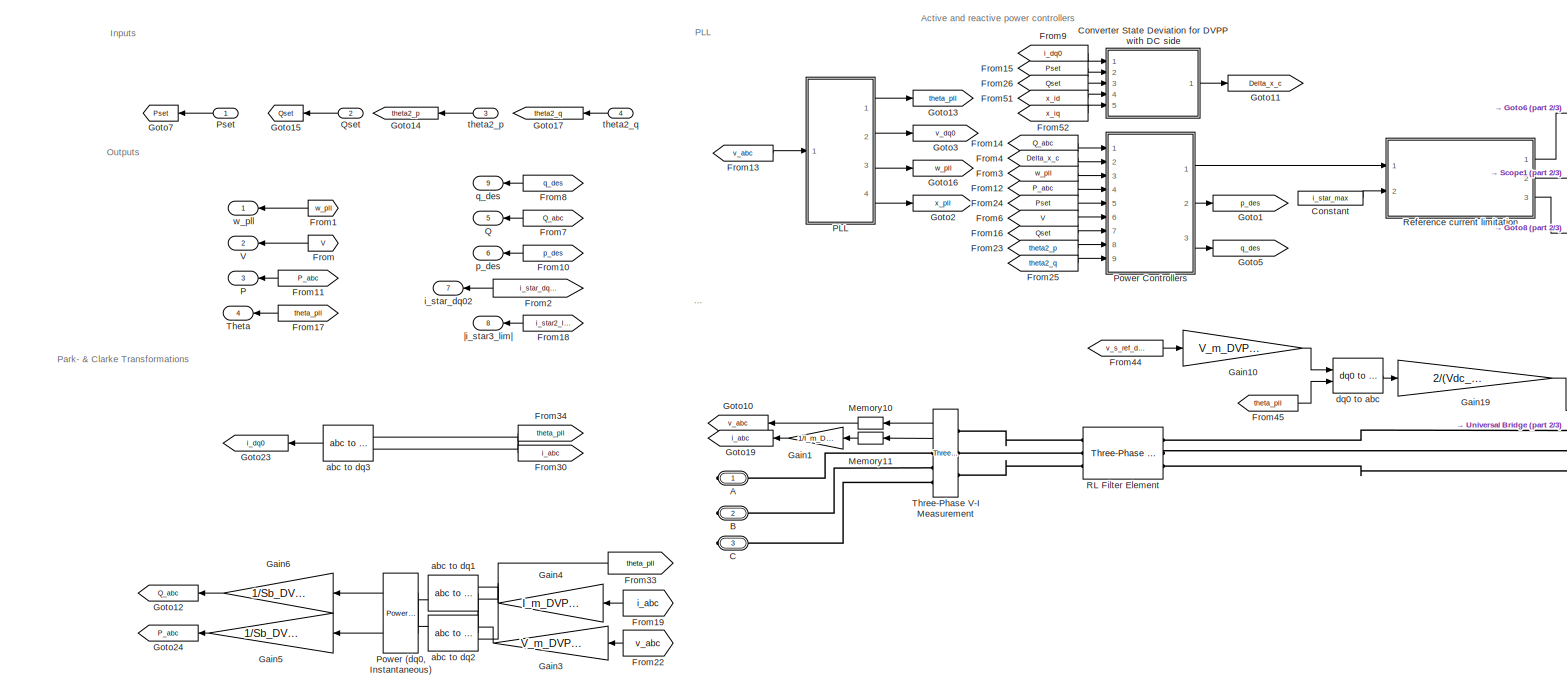
[diagram: PV - part 1/3, most of the canvas]
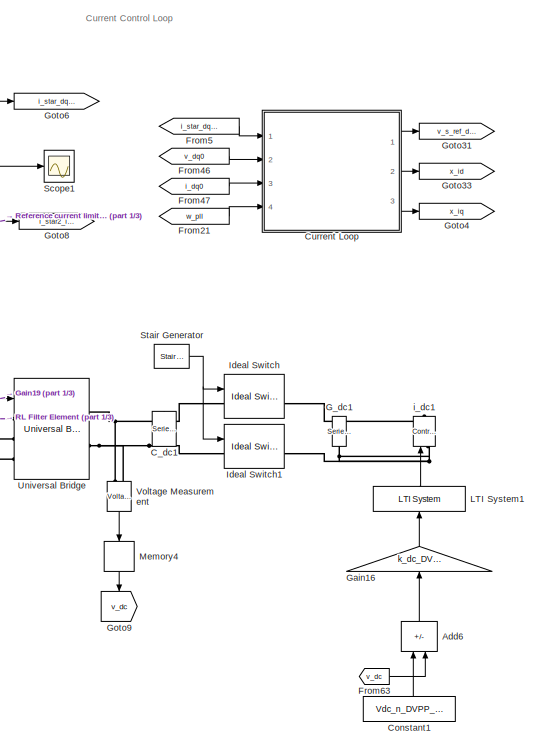
[diagram: PV - part 2/3, right side, full height]
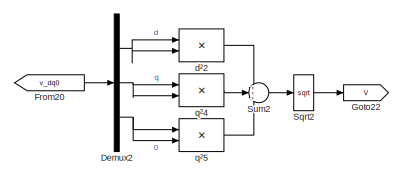
[diagram: PV - part 3/3, bottom left region]
BLOCK [SubSystem] PV
  Ports = [4, 9, 0, 0, 0, 0, 3]
  RequestExecContextInheritance = off
BLOCK [Step] PV power capacity with cloud
  After = 0
  Before = Pb_DVPP_3_2
  SampleTime = 0
  Time = T_cloud
BLOCK [Step] PV power setpoint with cloud
  After = 0
  Before = pset_DVPP_3_2
  SampleTime = 0
  Time = T_cloud
BLOCK [PMIOPort] PV/A
  Side = Right
BLOCK [Sum] PV/Add6
  IconShape = rectangular
  Inputs = +-
  NameLocation = right
  Ports = [2, 1]
BLOCK [PMIOPort] PV/B
  Port = 2
  Side = Right
BLOCK [PMIOPort] PV/C
  Port = 3
  Side = Right
BLOCK [Reference] PV/C_dc1  REF=powerlib/Elements/Series RLC Branch
  NameLocation = left
  Ports = [0, 0, 0, 0, 0, 1, 1]
  SourceBlock = powerlib/Elements/Series RLC Branch
  SourceProductBaseCode = PS
  SourceType = Series RLC Branch
BLOCK [Constant] PV/Constant
  Value = i_star_max
BLOCK [Constant] PV/Constant1
  NameLocation = right
  Value = Vdc_n_DVPP_3_2
BLOCK [SubSystem] PV/Converter State Deviation for DVPP with DC side
  Ports = [5, 1]
  RequestExecContextInheritance = off
BLOCK [Outport] PV/Converter State Deviation for DVPP with DC side/Delta x_c
BLOCK [Demux] PV/Converter State Deviation for DVPP with DC side/Demux2
  Outputs = 3
  Ports = [1, 3]
BLOCK [Gain] PV/Converter State Deviation for DVPP with DC side/Gain
  Gain = 1/vd0_DVPP_3_2_pu
BLOCK [Gain] PV/Converter State Deviation for DVPP with DC side/Gain1
  Gain = -1/vd0_DVPP_3_2_pu
BLOCK [Mux] PV/Converter State Deviation for DVPP with DC side/Mux
  DisplayOption = bar
  Ports = [4, 1]
BLOCK [Inport] PV/Converter State Deviation for DVPP with DC side/Pset
  Port = 2
BLOCK [Inport] PV/Converter State Deviation for DVPP with DC side/Qset
  Port = 3
BLOCK [Sum] PV/Converter State Deviation for DVPP with DC side/Sum1
  Inputs = +-
  Ports = [2, 1]
BLOCK [Sum] PV/Converter State Deviation for DVPP with DC side/Sum2
  Inputs = -+
  Ports = [2, 1]
BLOCK [Sum] PV/Converter State Deviation for DVPP with DC side/Sum3
  Inputs = +-
  Ports = [2, 1]
BLOCK [Sum] PV/Converter State Deviation for DVPP with DC side/Sum4
  Inputs = +-
  Ports = [2, 1]
BLOCK [Inport] PV/Converter State Deviation for DVPP with DC side/i_dq0
BLOCK [Inport] PV/Converter State Deviation for DVPP with DC side/x_id
  Port = 4
BLOCK [Constant] PV/Converter State Deviation for DVPP with DC side/x_id_2_pu
  Value = xid0_DVPP_3_2_pu
BLOCK [Inport] PV/Converter State Deviation for DVPP with DC side/x_iq
  Port = 5
BLOCK [Constant] PV/Converter State Deviation for DVPP with DC side/x_iq_2_pu
  Value = xiq0_DVPP_3_2_pu
BLOCK [SubSystem] PV/Current Loop
  AncestorBlock = Library/Grid-Forming Converter\nControlled by Droop Control /Current Loop
  Ports = [4, 3]
  RequestExecContextInheritance = off
BLOCK [Demux] PV/Current Loop/Demux
  NameLocation = top
  Outputs = 2
  Ports = [1, 2]
BLOCK [Demux] PV/Current Loop/Demux1
  NameLocation = top
  Outputs = 2
  Ports = [1, 2]
BLOCK [Demux] PV/Current Loop/Demux2
  NameLocation = top
  Outputs = 2
  Ports = [1, 2]
BLOCK [Gain] PV/Current Loop/Gain
  Gain = kp_i_pu
BLOCK [Gain] PV/Current Loop/Gain1
  Gain = ki_i_pu
BLOCK [Gain] PV/Current Loop/Gain2
  Gain = kp_i_pu
BLOCK [Gain] PV/Current Loop/Gain3
  Gain = ki_i_pu
BLOCK [Gain] PV/Current Loop/Gain4
  Gain = w_b
BLOCK [Integrator] PV/Current Loop/Integrator1
  InitialCondition = xid0_DVPP_3_2_pu
  Ports = [1, 1]
BLOCK [Integrator] PV/Current Loop/Integrator2
  InitialCondition = xiq0_DVPP_3_2_pu
  Ports = [1, 1]
BLOCK [Memory] PV/Current Loop/Memory1
  NameLocation = top
BLOCK [Memory] PV/Current Loop/Memory2
  NameLocation = top
BLOCK [Mux] PV/Current Loop/Mux
  DisplayOption = bar
  Inputs = 3
  NameLocation = top
  Ports = [3, 1]
BLOCK [Product] PV/Current Loop/Product
  Ports = [2, 1]
BLOCK [Product] PV/Current Loop/Product1
  Ports = [2, 1]
BLOCK [Gain] PV/Current Loop/Rf
  Gain = r_f_DVPP_3_2
BLOCK [Gain] PV/Current Loop/Rf1
  Gain = r_f_DVPP_3_2
BLOCK [Selector] PV/Current Loop/Selector1
  IndexOptions = Index vector (dialog)
  Indices = [1 2]
  InputPortWidth = 3
  NameLocation = top
  OutputSizes = 1
  Ports = [1, 1]
BLOCK [Selector] PV/Current Loop/Selector2
  IndexOptions = Index vector (dialog)
  Indices = [1 2]
  InputPortWidth = 3
  NameLocation = top
  OutputSizes = 1
  Ports = [1, 1]
BLOCK [Selector] PV/Current Loop/Selector3
  IndexOptions = Index vector (dialog)
  Indices = [1 2]
  InputPortWidth = 3
  NameLocation = top
  OutputSizes = 1
  Ports = [1, 1]
BLOCK [Sum] PV/Current Loop/Sum
  Inputs = |+-
  NameLocation = top
  Ports = [2, 1]
BLOCK [Sum] PV/Current Loop/Sum1
  Ports = [2, 1]
BLOCK [Sum] PV/Current Loop/Sum2
  Inputs = |+-+
  NameLocation = top
  Ports = [3, 1]
BLOCK [Sum] PV/Current Loop/Sum3
  Inputs = |++
  NameLocation = top
  Ports = [2, 1]
BLOCK [Sum] PV/Current Loop/Sum4
  Ports = [2, 1]
BLOCK [Sum] PV/Current Loop/Sum5
  Inputs = +++|
  NameLocation = top
  Ports = [3, 1]
BLOCK [Sum] PV/Current Loop/Sum6
  Inputs = -+|
  NameLocation = top
  Ports = [2, 1]
BLOCK [Sum] PV/Current Loop/Sum7
  Inputs = ++|
  NameLocation = top
  Ports = [2, 1]
BLOCK [Inport] PV/Current Loop/i_dq0
  NameLocation = top
  Port = 3
BLOCK [Inport] PV/Current Loop/i_star_dq0
  NameLocation = top
BLOCK [Inport] PV/Current Loop/v_dq0
  NameLocation = top
  Port = 2
BLOCK [Outport] PV/Current Loop/v_s_ref_dq0
  NameLocation = top
  VectorParamsAs1DForOutWhenUnconnected = off
BLOCK [Constant] PV/Current Loop/vs_0*
  Value = 0
BLOCK [Gain] PV/Current Loop/w*Lf
  Gain = l_f_DVPP_3_2/w_b
BLOCK [Gain] PV/Current Loop/w*Lf1
  Gain = l_f_DVPP_3_2/w_b
BLOCK [Inport] PV/Current Loop/w_pll
  NameLocation = top
  Port = 4
BLOCK [Outport] PV/Current Loop/x_id
  NameLocation = top
  Port = 2
  VectorParamsAs1DForOutWhenUnconnected = off
BLOCK [Outport] PV/Current Loop/x_iq
  NameLocation = top
  Port = 3
  VectorParamsAs1DForOutWhenUnconnected = off
BLOCK [Demux] PV/Demux2
  Outputs = 3
  Ports = [1, 3]
BLOCK [From] PV/From
  GotoTag = V
BLOCK [From] PV/From1
  GotoTag = w_pll
  NameLocation = top
BLOCK [From] PV/From10
  GotoTag = p_des
BLOCK [From] PV/From11
  GotoTag = P_abc
BLOCK [From] PV/From12
  GotoTag = P_abc
BLOCK [From] PV/From13
  GotoTag = v_abc
BLOCK [From] PV/From14
  GotoTag = Q_abc
BLOCK [From] PV/From15
  GotoTag = Pset
BLOCK [From] PV/From16
  GotoTag = Qset
BLOCK [From] PV/From17
  GotoTag = theta_pll
  NameLocation = top
BLOCK [From] PV/From18
  GotoTag = i_star2_lim
BLOCK [From] PV/From19
  GotoTag = i_abc
  NameLocation = top
BLOCK [From] PV/From2
  GotoTag = i_star_dq02_lim
BLOCK [From] PV/From20
  GotoTag = v_dq0
  NameLocation = top
BLOCK [From] PV/From21
  GotoTag = w_pll
  NameLocation = top
BLOCK [From] PV/From22
  GotoTag = v_abc
  NameLocation = top
BLOCK [From] PV/From23
  GotoTag = theta2_p
BLOCK [From] PV/From24
  GotoTag = Pset
BLOCK [From] PV/From25
  GotoTag = theta2_q
BLOCK [From] PV/From26
  GotoTag = Qset
BLOCK [From] PV/From3
  GotoTag = w_pll
BLOCK [From] PV/From30
  GotoTag = i_abc
BLOCK [From] PV/From33
  GotoTag = theta_pll
  NameLocation = top
BLOCK [From] PV/From34
  GotoTag = theta_pll
  NameLocation = top
BLOCK [From] PV/From4
  GotoTag = Delta_x_c
BLOCK [From] PV/From44
  GotoTag = v_s_ref_dq0
BLOCK [From] PV/From45
  GotoTag = theta_pll
BLOCK [From] PV/From46
  GotoTag = v_dq0
  NameLocation = top
BLOCK [From] PV/From47
  GotoTag = i_dq0
  NameLocation = top
BLOCK [From] PV/From5
  GotoTag = i_star_dq02_lim
  NameLocation = top
BLOCK [From] PV/From51
  GotoTag = x_id
BLOCK [From] PV/From52
  GotoTag = x_iq
BLOCK [From] PV/From6
  GotoTag = V
BLOCK [From] PV/From63
  GotoTag = v_dc
  NameLocation = top
BLOCK [From] PV/From7
  GotoTag = Q_abc
BLOCK [From] PV/From8
  GotoTag = q_des
BLOCK [From] PV/From9
  GotoTag = i_dq0
  NameLocation = top
BLOCK [Reference] PV/G_dc1  REF=powerlib/Elements/Series RLC Branch
  NameLocation = left
  Ports = [0, 0, 0, 0, 0, 1, 1]
  SourceBlock = powerlib/Elements/Series RLC Branch
  SourceProductBaseCode = PS
  SourceType = Series RLC Branch
BLOCK [Gain] PV/Gain1
  Gain = 1/I_m_DVPP_3_2
BLOCK [Gain] PV/Gain10
  Gain = V_m_DVPP_3_2
BLOCK [Gain] PV/Gain16
  Gain = k_dc_DVPP_3_2
  NameLocation = right
BLOCK [Gain] PV/Gain19
  Gain = 2/(Vdc_n_DVPP_3_2)
BLOCK [Gain] PV/Gain3
  Gain = V_m_DVPP_3_2
BLOCK [Gain] PV/Gain4
  Gain = I_m_DVPP_3_2
BLOCK [Gain] PV/Gain5
  Gain = 1/Sb_DVPP_3_2
BLOCK [Gain] PV/Gain6
  Gain = 1/Sb_DVPP_3_2
BLOCK [Goto] PV/Goto1
  GotoTag = p_des
  NameLocation = top
BLOCK [Goto] PV/Goto10
  GotoTag = v_abc
  NameLocation = top
BLOCK [Goto] PV/Goto11
  GotoTag = Delta_x_c
  NameLocation = top
BLOCK [Goto] PV/Goto12
  GotoTag = Q_abc
  NameLocation = top
BLOCK [Goto] PV/Goto13
  GotoTag = theta_pll
BLOCK [Goto] PV/Goto14
  GotoTag = theta2_p
  NameLocation = top
BLOCK [Goto] PV/Goto15
  GotoTag = Qset
  NameLocation = top
BLOCK [Goto] PV/Goto16
  GotoTag = w_pll
  NameLocation = top
BLOCK [Goto] PV/Goto17
  GotoTag = theta2_q
  NameLocation = top
BLOCK [Goto] PV/Goto19
  GotoTag = i_abc
BLOCK [Goto] PV/Goto2
  GotoTag = x_pll
  NameLocation = top
BLOCK [Goto] PV/Goto22
  GotoTag = V
BLOCK [Goto] PV/Goto23
  GotoTag = i_dq0
BLOCK [Goto] PV/Goto24
  GotoTag = P_abc
  NameLocation = top
BLOCK [Goto] PV/Goto3
  GotoTag = v_dq0
BLOCK [Goto] PV/Goto31
  GotoTag = v_s_ref_dq0
  NameLocation = top
BLOCK [Goto] PV/Goto33
  GotoTag = x_id
  NameLocation = top
BLOCK [Goto] PV/Goto4
  GotoTag = x_iq
  NameLocation = top
BLOCK [Goto] PV/Goto5
  GotoTag = q_des
  NameLocation = top
BLOCK [Goto] PV/Goto6
  GotoTag = i_star_dq02_lim
  NameLocation = top
BLOCK [Goto] PV/Goto7
  GotoTag = Pset
  NameLocation = top
BLOCK [Goto] PV/Goto8
  GotoTag = i_star2_lim
  NameLocation = top
BLOCK [Goto] PV/Goto9
  GotoTag = v_dc
  NameLocation = left
BLOCK [Reference] PV/Ideal Switch  REF=powerlib/Power
Electronics/Ideal Switch
  Ports = [1, 1, 0, 0, 0, 1, 1]
  SourceBlock = powerlib/Power\nElectronics/Ideal Switch
  SourceProductBaseCode = PS
  SourceType = Ideal Switch
BLOCK [Reference] PV/Ideal Switch1  REF=powerlib/Power
Electronics/Ideal Switch
  Ports = [1, 1, 0, 0, 0, 1, 1]
  SourceBlock = powerlib/Power\nElectronics/Ideal Switch
  SourceProductBaseCode = PS
  SourceType = Ideal Switch
BLOCK [Reference] PV/LTI System1  REF=cstblocks/LTI System
  NameLocation = right
  Ports = [1, 1]
  SourceBlock = cstblocks/LTI System
  SourceProductBaseCode = CT
  SourceType = LTI Block
BLOCK [Memory] PV/Memory10
  InitialCondition = [vabc_DVPP_3_2_0_pu(1), vabc_DVPP_3_2_0_pu(2), vabc_DVPP_3_2_0_pu(3)]
  NameLocation = top
BLOCK [Memory] PV/Memory11
  InitialCondition = [iabc_DVPP_3_2_0(1), iabc_DVPP_3_2_0(2), iabc_DVPP_3_2_0(3)]
  NameLocation = top
BLOCK [Memory] PV/Memory4
  NameLocation = left
BLOCK [Outport] PV/P
  NameLocation = top
  Port = 3
  VectorParamsAs1DForOutWhenUnconnected = off
BLOCK [SubSystem] PV/PLL
  Ports = [1, 4]
  RequestExecContextInheritance = off
BLOCK [Display] PV/PLL/Display
  Decimation = 1
  Ports = [1]
BLOCK [Gain] PV/PLL/Gain
  Gain = 1/fb
BLOCK [Integrator] PV/PLL/Integrator3
  InitialCondition = xpll0_pu
  Ports = [1, 1]
BLOCK [Selector] PV/PLL/Selector
  IndexOptions = Index vector (dialog)
  Indices = 2
  InputPortWidth = 3
  OutputSizes = 1
  Ports = [1, 1]
BLOCK [SubSystem] PV/PLL/Subsystem
  Ports = [1, 2]
  RequestExecContextInheritance = off
BLOCK [Constant] PV/PLL/Subsystem/Constant
  Value = 2*pi*50
BLOCK [Demux] PV/PLL/Subsystem/Demux2
  Outputs = 3
  Ports = [1, 3]
BLOCK [Product] PV/PLL/Subsystem/Divide
  Inputs = /*
  Ports = [2, 1]
BLOCK [Reference] PV/PLL/Subsystem/First-Order Filter  REF=powerlib_meascontrol/Filters/First-Order
Filter
  Ports = [1, 1]
  SourceBlock = powerlib_meascontrol/Filters/First-Order\nFilter
  SourceProductBaseCode = PS
  SourceType = First-Order Filter
BLOCK [Outport] PV/PLL/Subsystem/Freq
  VectorParamsAs1DForOutWhenUnconnected = off
BLOCK [Gain] PV/PLL/Subsystem/Gain
  Gain = kp_pll
BLOCK [Gain] PV/PLL/Subsystem/Gain1
  Gain = ki_pll
BLOCK [Gain] PV/PLL/Subsystem/Gain10
  Gain = 1/2/pi
  OutDataTypeStr = Inherit: Same as input
  ParamDataTypeStr = Inherit: Same as input
  SaturateOnIntegerOverflow = on
BLOCK [Integrator] PV/PLL/Subsystem/Integrator
  Ports = [1, 1]
BLOCK [Integrator] PV/PLL/Subsystem/Integrator1
  InitialCondition = xpll0_pu
  Ports = [1, 1]
BLOCK [Memory] PV/PLL/Subsystem/Memory
  InitialCondition = fb
BLOCK [Selector] PV/PLL/Subsystem/Selector
  IndexOptions = Index vector (dialog)
  Indices = 2
  InputPortWidth = 3
  OutputSizes = 1
  Ports = [1, 1]
BLOCK [Sqrt] PV/PLL/Subsystem/Sqrt2
BLOCK [Sum] PV/PLL/Subsystem/Sum
  Ports = [2, 1]
BLOCK [Sum] PV/PLL/Subsystem/Sum1
  Inputs = ++|
  Ports = [2, 1]
BLOCK [Sum] PV/PLL/Subsystem/Sum2
  InputSameDT = on
  Inputs = +++
  OutDataTypeStr = Inherit: Same as first input
  Ports = [3, 1]
  SaturateOnIntegerOverflow = on
BLOCK [Inport] PV/PLL/Subsystem/Vabc
  PortDimensions = 3
BLOCK [Reference] PV/PLL/Subsystem/abc to dq0  REF=powerlib_meascontrol/Transformations/abc to dq0
  Ports = [2, 1]
  SourceBlock = powerlib_meascontrol/Transformations/abc to dq0
  SourceProductBaseCode = MT,PS
  SourceType = abc to dq0 Transformation
BLOCK [Product] PV/PLL/Subsystem/d²2
  InputSameDT = on
  NameLocation = top
  OutDataTypeStr = Inherit: Same as first input
  Ports = [2, 1]
  RndMeth = Zero
  SaturateOnIntegerOverflow = on
BLOCK [Product] PV/PLL/Subsystem/q²4
  InputSameDT = on
  OutDataTypeStr = Inherit: Same as first input
  Ports = [2, 1]
  RndMeth = Zero
  SaturateOnIntegerOverflow = on
BLOCK [Product] PV/PLL/Subsystem/q²5
  InputSameDT = on
  OutDataTypeStr = Inherit: Same as first input
  Ports = [2, 1]
  RndMeth = Zero
  SaturateOnIntegerOverflow = on
BLOCK [Outport] PV/PLL/Subsystem/wt
  Port = 2
  VectorParamsAs1DForOutWhenUnconnected = off
BLOCK [Reference] PV/PLL/abc to dq0  REF=powerlib_meascontrol/Transformations/abc to dq0
  Ports = [2, 1]
  SourceBlock = powerlib_meascontrol/Transformations/abc to dq0
  SourceProductBaseCode = PS
  SourceType = abc to dq0 Transformation
BLOCK [Outport] PV/PLL/theta_pll
  VectorParamsAs1DForOutWhenUnconnected = off
BLOCK [Inport] PV/PLL/v_abc
BLOCK [Outport] PV/PLL/v_dq0
  Port = 2
  VectorParamsAs1DForOutWhenUnconnected = off
BLOCK [Outport] PV/PLL/w_pll
  Port = 3
  VectorParamsAs1DForOutWhenUnconnected = off
BLOCK [Outport] PV/PLL/x_pll
  Port = 4
  VectorParamsAs1DForOutWhenUnconnected = off
BLOCK [Reference] PV/Power (dq0, Instantaneous)  REF=powerlib_meascontrol/Measurements/Power
(dq0, Instantaneous)
  NameLocation = top
  Ports = [2, 2]
  SourceBlock = powerlib_meascontrol/Measurements/Power\n(dq0, Instantaneous)
  SourceProductBaseCode = PS
  SourceType = Power (dq0, Instantaneous)
BLOCK [SubSystem] PV/Power Controllers
  Ports = [9, 3]
  RequestExecContextInheritance = off
BLOCK [Constant] PV/Power Controllers/0
  Value = 0
BLOCK [SubSystem] PV/Power Controllers/DVPP State Feedback Controller
  Ports = [9, 4]
  RequestExecContextInheritance = off
BLOCK [Clock] PV/Power Controllers/DVPP State Feedback Controller/Clock
BLOCK [Constant] PV/Power Controllers/DVPP State Feedback Controller/Constant
  Value = 0
BLOCK [Inport] PV/Power Controllers/DVPP State Feedback Controller/Delta_x_c
  Port = 6
BLOCK [Demux] PV/Power Controllers/DVPP State Feedback Controller/Demux
  Outputs = 2
  Ports = [1, 2]
BLOCK [Demux] PV/Power Controllers/DVPP State Feedback Controller/Demux1
  Outputs = 2
  Ports = [1, 2]
BLOCK [Gain] PV/Power Controllers/DVPP State Feedback Controller/Gain1
BLOCK [Gain] PV/Power Controllers/DVPP State Feedback Controller/Gain2
  Gain = 1/vd0_DVPP_3_2_pu
BLOCK [Gain] PV/Power Controllers/DVPP State Feedback Controller/Gain3
  Gain = -1/vd0_DVPP_3_2_pu
BLOCK [Integrator] PV/Power Controllers/DVPP State Feedback Controller/Integrator
  Ports = [1, 1]
BLOCK [Integrator] PV/Power Controllers/DVPP State Feedback Controller/Integrator1
  Ports = [1, 1]
BLOCK [SubSystem] PV/Power Controllers/DVPP State Feedback Controller/LPV Controller
  Ports = [3, 1]
  RequestExecContextInheritance = off
BLOCK [Sum] PV/Power Controllers/DVPP State Feedback Controller/LPV Controller/Add
  IconShape = rectangular
  Inputs = ++++
  Ports = [4, 1]
BLOCK [Constant] PV/Power Controllers/DVPP State Feedback Controller/LPV Controller/Constant
  Value = theta2_p_1
BLOCK [Constant] PV/Power Controllers/DVPP State Feedback Controller/LPV Controller/Constant1
  Value = theta2_p_2
BLOCK [Constant] PV/Power Controllers/DVPP State Feedback Controller/LPV Controller/Constant2
  Value = theta2_q_2
BLOCK [Constant] PV/Power Controllers/DVPP State Feedback Controller/LPV Controller/Constant3
  Value = theta2_q_1
BLOCK [Inport] PV/Power Controllers/DVPP State Feedback Controller/LPV Controller/Delta x
BLOCK [Gain] PV/Power Controllers/DVPP State Feedback Controller/LPV Controller/Gain
  Gain = LPV_K2_DVPP_3(1:2,:)
BLOCK [Gain] PV/Power Controllers/DVPP State Feedback Controller/LPV Controller/Gain1
  Gain = LPV_K2_DVPP_3(3:4,:)
BLOCK [Gain] PV/Power Controllers/DVPP State Feedback Controller/LPV Controller/Gain2
  Gain = LPV_K2_DVPP_3(5:6,:)
BLOCK [Gain] PV/Power Controllers/DVPP State Feedback Controller/LPV Controller/Gain3
  Gain = LPV_K2_DVPP_3(7:8,:)
BLOCK [SubSystem] PV/Power Controllers/DVPP State Feedback Controller/LPV Controller/MATLAB Function
  ErrorFcn = Stateflow.Translate.translate
  PermitHierarchicalResolution = ExplicitOnly
  Ports = [6, 4]
  RequestExecContextInheritance = off
  SFBlockType = MATLAB Function
  TreatAsAtomicUnit = on
BLOCK [Demux] PV/Power Controllers/DVPP State Feedback Controller/LPV Controller/MATLAB Function/ Demux 
  Outputs = 1
  Ports = [1, 1]
BLOCK [S-Function] PV/Power Controllers/DVPP State Feedback Controller/LPV Controller/MATLAB Function/ SFunction 
  EnableBusSupport = on
  FunctionName = sf_sfun
  PortCounts = [6 5]
  Ports = [6, 5]
  SFcnIsStateOwnerBlock = off
  SFunctionDeploymentMode = off
  Tag = Stateflow S-Function 5
BLOCK [Terminator] PV/Power Controllers/DVPP State Feedback Controller/LPV Controller/MATLAB Function/ Terminator 
BLOCK [Outport] PV/Power Controllers/DVPP State Feedback Controller/LPV Controller/MATLAB Function/lambda1
BLOCK [Outport] PV/Power Controllers/DVPP State Feedback Controller/LPV Controller/MATLAB Function/lambda2
  Port = 2
BLOCK [Outport] PV/Power Controllers/DVPP State Feedback Controller/LPV Controller/MATLAB Function/lambda3
  Port = 3
BLOCK [Outport] PV/Power Controllers/DVPP State Feedback Controller/LPV Controller/MATLAB Function/lambda4
  Port = 4
BLOCK [Inport] PV/Power Controllers/DVPP State Feedback Controller/LPV Controller/MATLAB Function/theta2_p
BLOCK [Inport] PV/Power Controllers/DVPP State Feedback Controller/LPV Controller/MATLAB Function/theta2_p_1
  Port = 3
BLOCK [Inport] PV/Power Controllers/DVPP State Feedback Controller/LPV Controller/MATLAB Function/theta2_p_2
  Port = 4
BLOCK [Inport] PV/Power Controllers/DVPP State Feedback Controller/LPV Controller/MATLAB Function/theta2_q
  Port = 2
BLOCK [Inport] PV/Power Controllers/DVPP State Feedback Controller/LPV Controller/MATLAB Function/theta2_q_1
  Port = 5
BLOCK [Inport] PV/Power Controllers/DVPP State Feedback Controller/LPV Controller/MATLAB Function/theta2_q_2
  Port = 6
BLOCK [Outport] PV/Power Controllers/DVPP State Feedback Controller/LPV Controller/Out1
BLOCK [Reshape] PV/Power Controllers/DVPP State Feedback Controller/LPV Controller/Reshape
  OutputDimensionality = Customize
  OutputDimensions = [2,10]
  Ports = [1, 1]
BLOCK [Reshape] PV/Power Controllers/DVPP State Feedback Controller/LPV Controller/Reshape1
  OutputDimensionality = Customize
  OutputDimensions = [10,1]
  Ports = [1, 1]
BLOCK [Product] PV/Power Controllers/DVPP State Feedback Controller/LPV Controller/multiply
  Multiplication = Matrix(*)
  Ports = [2, 1]
BLOCK [Inport] PV/Power Controllers/DVPP State Feedback Controller/LPV Controller/theta2_p
  Port = 2
BLOCK [Inport] PV/Power Controllers/DVPP State Feedback Controller/LPV Controller/theta2_q
  Port = 3
BLOCK [SubSystem] PV/Power Controllers/DVPP State Feedback Controller/MATLAB Function
  ErrorFcn = Stateflow.Translate.translate
  PermitHierarchicalResolution = ExplicitOnly
  Ports = [10, 4]
  RequestExecContextInheritance = off
  SFBlockType = MATLAB Function
  TreatAsAtomicUnit = on
BLOCK [Demux] PV/Power Controllers/DVPP State Feedback Controller/MATLAB Function/ Demux 
  Outputs = 1
  Ports = [1, 1]
BLOCK [S-Function] PV/Power Controllers/DVPP State Feedback Controller/MATLAB Function/ SFunction 
  EnableBusSupport = on
  FunctionName = sf_sfun
  PortCounts = [10 5]
  Ports = [10, 5]
  SFcnIsStateOwnerBlock = off
  SFunctionDeploymentMode = off
  Tag = Stateflow S-Function 4
BLOCK [Terminator] PV/Power Controllers/DVPP State Feedback Controller/MATLAB Function/ Terminator 
BLOCK [Outport] PV/Power Controllers/DVPP State Feedback Controller/MATLAB Function/A_des
BLOCK [Outport] PV/Power Controllers/DVPP State Feedback Controller/MATLAB Function/Bh_des
  Port = 2
BLOCK [Outport] PV/Power Controllers/DVPP State Feedback Controller/MATLAB Function/C_des
  Port = 3
BLOCK [Outport] PV/Power Controllers/DVPP State Feedback Controller/MATLAB Function/Dh_des
  Port = 4
BLOCK [Inport] PV/Power Controllers/DVPP State Feedback Controller/MATLAB Function/Dp_pu
  Port = 9
BLOCK [Inport] PV/Power Controllers/DVPP State Feedback Controller/MATLAB Function/Dq1_pu
  Port = 10
BLOCK [Inport] PV/Power Controllers/DVPP State Feedback Controller/MATLAB Function/Mp_pu
  Port = 8
BLOCK [Inport] PV/Power Controllers/DVPP State Feedback Controller/MATLAB Function/scaling2
  Port = 5
BLOCK [Inport] PV/Power Controllers/DVPP State Feedback Controller/MATLAB Function/tau2_p
BLOCK [Inport] PV/Power Controllers/DVPP State Feedback Controller/MATLAB Function/tau2_q
  Port = 2
BLOCK [Inport] PV/Power Controllers/DVPP State Feedback Controller/MATLAB Function/tau_des_p
  Port = 3
BLOCK [Inport] PV/Power Controllers/DVPP State Feedback Controller/MATLAB Function/tau_des_q
  Port = 4
BLOCK [Inport] PV/Power Controllers/DVPP State Feedback Controller/MATLAB Function/theta2_p
  Port = 6
BLOCK [Inport] PV/Power Controllers/DVPP State Feedback Controller/MATLAB Function/theta2_q
  Port = 7
BLOCK [Mux] PV/Power Controllers/DVPP State Feedback Controller/Mux
  DisplayOption = bar
  Ports = [4, 1]
BLOCK [Mux] PV/Power Controllers/DVPP State Feedback Controller/Mux1
  DisplayOption = bar
  Inputs = 2
  Ports = [2, 1]
BLOCK [Inport] PV/Power Controllers/DVPP State Feedback Controller/P_abc
  Port = 3
BLOCK [Inport] PV/Power Controllers/DVPP State Feedback Controller/P_set
  Port = 4
BLOCK [Inport] PV/Power Controllers/DVPP State Feedback Controller/Q_abc
  Port = 5
BLOCK [Inport] PV/Power Controllers/DVPP State Feedback Controller/Q_set
  Port = 7
BLOCK [Scope] PV/Power Controllers/DVPP State Feedback Controller/Scope
  Floating = off
  NumInputPorts = 1
  Ports = [1]
  ScopeSpecificationString = Simulink.scopes.TimeScopeBlockCfg('CurrentConfiguration', extmgr.ConfigurationSet(extmgr.Configuration('Core','General UI',true),extmgr.Configuration('Core','Source UI',true),extmgr.Configuration('Sources','WiredSimulink',true,'DataLoggingVariableName','ScopeData4'),extmgr.Configuration('Visuals','Time Domain',true),extmgr.Configuration('Tools','Plot Navigation',true),extmgr.Configuration('Tools',...<+40ch>  <repeated x3 — deduplicated; at blocks: Scope>
BLOCK [Sum] PV/Power Controllers/DVPP State Feedback Controller/Sum
  Inputs = +-
  Ports = [2, 1]
BLOCK [Sum] PV/Power Controllers/DVPP State Feedback Controller/Sum1
  Inputs = ++|
  Ports = [2, 1]
BLOCK [Sum] PV/Power Controllers/DVPP State Feedback Controller/Sum2
  Inputs = ++|
  Ports = [2, 1]
BLOCK [Sum] PV/Power Controllers/DVPP State Feedback Controller/Sum3
  Inputs = -+
  Ports = [2, 1]
BLOCK [Sum] PV/Power Controllers/DVPP State Feedback Controller/Sum4
  Inputs = +-
  Ports = [2, 1]
BLOCK [Sum] PV/Power Controllers/DVPP State Feedback Controller/Sum5
  Inputs = ++|
  Ports = [2, 1]
BLOCK [Sum] PV/Power Controllers/DVPP State Feedback Controller/Sum6
  Inputs = -+
  Ports = [2, 1]
BLOCK [Sum] PV/Power Controllers/DVPP State Feedback Controller/Sum7
  Inputs = |++
  Ports = [2, 1]
BLOCK [Switch] PV/Power Controllers/DVPP State Feedback Controller/Switch
  Criteria = u2 > Threshold
  InputSameDT = off
  SaturateOnIntegerOverflow = off
  Threshold = T_cloud
BLOCK [Reference] PV/Power Controllers/DVPP State Feedback Controller/Varying State Space  REF=cstblocks/Linear Parameter Varying/Varying State Space
  Ports = [5, 3]
  SourceBlock = cstblocks/Linear Parameter Varying/Varying State Space
  SourceProductBaseCode = CT
  SourceType = Varying State Space
BLOCK [Outport] PV/Power Controllers/DVPP State Feedback Controller/i_star_d
BLOCK [Outport] PV/Power Controllers/DVPP State Feedback Controller/i_star_q
  Port = 2
BLOCK [Outport] PV/Power Controllers/DVPP State Feedback Controller/p_des
  Port = 3
BLOCK [Outport] PV/Power Controllers/DVPP State Feedback Controller/q_des
  Port = 4
BLOCK [Constant] PV/Power Controllers/DVPP State Feedback Controller/scaling DVPP1
  Value = tau_des_p_DVPP_3
BLOCK [Constant] PV/Power Controllers/DVPP State Feedback Controller/scaling DVPP10
  Value = scaling2_DVPP_3
BLOCK [Constant] PV/Power Controllers/DVPP State Feedback Controller/scaling DVPP2
  Value = tau_des_q_DVPP_3
BLOCK [Constant] PV/Power Controllers/DVPP State Feedback Controller/scaling DVPP3
  Value = tau2_p_DVPP_3
BLOCK [Constant] PV/Power Controllers/DVPP State Feedback Controller/scaling DVPP4
  Value = Dp_DVPP_3_pu
BLOCK [Constant] PV/Power Controllers/DVPP State Feedback Controller/scaling DVPP6
  Value = Mp_DVPP_3_pu
BLOCK [Constant] PV/Power Controllers/DVPP State Feedback Controller/scaling DVPP7
  Value = Dq1_DVPP_3_pu
BLOCK [Constant] PV/Power Controllers/DVPP State Feedback Controller/scaling DVPP9
  Value = tau2_q_DVPP_3
BLOCK [Inport] PV/Power Controllers/DVPP State Feedback Controller/theta2_p
  Port = 8
BLOCK [Inport] PV/Power Controllers/DVPP State Feedback Controller/theta2_q
  Port = 9
BLOCK [Constant] PV/Power Controllers/DVPP State Feedback Controller/w* [SI]
BLOCK [Inport] PV/Power Controllers/DVPP State Feedback Controller/w_pll
BLOCK [Inport] PV/Power Controllers/DVPP State Feedback Controller/|V| 
  Port = 2
BLOCK [Constant] PV/Power Controllers/DVPP State Feedback Controller/|v*| [p.u.]
  Value = vd0_DVPP_3_2_pu
BLOCK [Inport] PV/Power Controllers/Delta x_c
  Port = 2
BLOCK [Mux] PV/Power Controllers/Mux
  DisplayOption = bar
  Inputs = 3
  Ports = [3, 1]
BLOCK [Inport] PV/Power Controllers/P_abc
  Port = 4
BLOCK [Inport] PV/Power Controllers/P_set
  Port = 5
BLOCK [Inport] PV/Power Controllers/Q_abc
BLOCK [Inport] PV/Power Controllers/Q_set
  Port = 7
BLOCK [Outport] PV/Power Controllers/i_star_dq0
BLOCK [Outport] PV/Power Controllers/p_des
  Port = 2
BLOCK [Outport] PV/Power Controllers/q_des
  Port = 3
BLOCK [Inport] PV/Power Controllers/theta2_p
  Port = 8
BLOCK [Inport] PV/Power Controllers/theta2_q
  Port = 9
BLOCK [Inport] PV/Power Controllers/w_pll
  Port = 3
BLOCK [Inport] PV/Power Controllers/|V|
  Port = 6
BLOCK [Inport] PV/Pset
  NameLocation = top
BLOCK [Outport] PV/Q
  NameLocation = top
  Port = 5
  VectorParamsAs1DForOutWhenUnconnected = off
BLOCK [Inport] PV/Qset
  NameLocation = top
  Port = 2
BLOCK [Reference] PV/RL Filter Element  REF=powerlib/Elements/Three-Phase
Series RLC Branch
  AttributesFormatString = \n
  Ports = [0, 0, 0, 0, 0, 3, 3]
  SourceBlock = powerlib/Elements/Three-Phase\nSeries RLC Branch
  SourceProductBaseCode = PS
  SourceType = Three-Phase Series RLC Branch
BLOCK [SubSystem] PV/Reference current limitation
  Ports = [2, 3]
  RequestExecContextInheritance = off
BLOCK [Demux] PV/Reference current limitation/Demux1
  Outputs = 3
  Ports = [1, 3]
BLOCK [Demux] PV/Reference current limitation/Demux2
  Outputs = 3
  Ports = [1, 3]
BLOCK [Product] PV/Reference current limitation/Divide
  Inputs = */
  Ports = [2, 1]
BLOCK [Sum] PV/Reference current limitation/Minus
  IconShape = rectangular
  Inputs = +-
  Ports = [2, 1]
BLOCK [Sum] PV/Reference current limitation/Minus1
  IconShape = rectangular
  Inputs = +++
  Ports = [3, 1]
BLOCK [Sum] PV/Reference current limitation/Minus4
  IconShape = rectangular
  Inputs = +++
  Ports = [3, 1]
BLOCK [Product] PV/Reference current limitation/Product
  Ports = [2, 1]
  RndMeth = Zero
BLOCK [Product] PV/Reference current limitation/Product1
  Ports = [2, 1]
  RndMeth = Zero
BLOCK [Product] PV/Reference current limitation/Product2
  Ports = [2, 1]
  RndMeth = Zero
BLOCK [Product] PV/Reference current limitation/Product3
  Ports = [2, 1]
  RndMeth = Zero
BLOCK [Product] PV/Reference current limitation/Product4
  Ports = [2, 1]
  RndMeth = Zero
BLOCK [Product] PV/Reference current limitation/Product6
  Ports = [2, 1]
  RndMeth = Zero
BLOCK [Product] PV/Reference current limitation/Product7
  Ports = [2, 1]
  RndMeth = Zero
BLOCK [Saturate] PV/Reference current limitation/Saturation1
  LowerLimit = 0
  UpperLimit = inf
BLOCK [Signum] PV/Reference current limitation/Sign
BLOCK [Sqrt] PV/Reference current limitation/Sqrt1
BLOCK [Sqrt] PV/Reference current limitation/Sqrt2
BLOCK [Switch] PV/Reference current limitation/Switch1
  InputSameDT = off
  SaturateOnIntegerOverflow = off
  Threshold = 1
BLOCK [Inport] PV/Reference current limitation/i_star_dq0
BLOCK [Outport] PV/Reference current limitation/i_star_dq0_lim
  VectorParamsAs1DForOutWhenUnconnected = off
BLOCK [Inport] PV/Reference current limitation/i_star_max
  NameLocation = right
  Port = 2
BLOCK [Outport] PV/Reference current limitation/||i_star_dq0_lim||
  Port = 3
  VectorParamsAs1DForOutWhenUnconnected = off
BLOCK [Outport] PV/Reference current limitation/||i_star_dq0||
  Port = 2
  VectorParamsAs1DForOutWhenUnconnected = off
BLOCK [Scope] PV/Scope1
  Floating = off
  NumInputPorts = 1
  Ports = [1]
  ScopeSpecificationString = Simulink.scopes.TimeScopeBlockCfg('CurrentConfiguration', extmgr.ConfigurationSet(extmgr.Configuration('Core','General UI',true),extmgr.Configuration('Core','Source UI',true),extmgr.Configuration('Sources','WiredSimulink',true,'DataLoggingVariableName','ScopeData2'),extmgr.Configuration('Visuals','Time Domain',true,'SerializedDisplays',{struct('MinYLimReal','0.45431','MaxYLimReal','1.4234','YLabel...<+1448ch>
BLOCK [Sqrt] PV/Sqrt2
BLOCK [Reference] PV/Stair Generator  REF=powerlib_meascontrol/Pulse & Signal
Generators/Stair
Generator
  Ports = [0, 1]
  SourceBlock = powerlib_meascontrol/Pulse & Signal\nGenerators/Stair\nGenerator
  SourceProductBaseCode = MT,PS
  SourceType = Stair Generator
BLOCK [Sum] PV/Sum2
  InputSameDT = on
  Inputs = +++
  OutDataTypeStr = Inherit: Same as first input
  Ports = [3, 1]
  SaturateOnIntegerOverflow = on
BLOCK [Outport] PV/Theta
  NameLocation = top
  Port = 4
  VectorParamsAs1DForOutWhenUnconnected = off
BLOCK [Reference] PV/Three-Phase V-I Measurement  REF=powerlib/Measurements/Three-Phase
V-I Measurement
  Ports = [0, 2, 0, 0, 0, 3, 3]
  SourceBlock = powerlib/Measurements/Three-Phase\nV-I Measurement
  SourceProductBaseCode = PS
  SourceType = Three-Phase VI Measurement
BLOCK [Reference] PV/Universal Bridge  REF=powerlib/Power
Electronics/Universal Bridge
  Ports = [1, 0, 0, 0, 0, 3, 2]
  SourceBlock = powerlib/Power\nElectronics/Universal Bridge
  SourceProductBaseCode = PS
  SourceType = Universal Bridge
BLOCK [Outport] PV/V
  NameLocation = top
  Port = 2
  VectorParamsAs1DForOutWhenUnconnected = off
BLOCK [Reference] PV/Voltage Measurement  REF=powerlib/Measurements/Voltage Measurement
  NameLocation = left
  Ports = [0, 1, 0, 0, 0, 2]
  SourceBlock = powerlib/Measurements/Voltage Measurement
  SourceProductBaseCode = PS
  SourceType = Voltage Measurement
  UserDataPersistent = on
BLOCK [Reference] PV/abc to dq1  REF=powerlib_meascontrol/Transformations/abc to dq0
  NameLocation = top
  Ports = [2, 1]
  SourceBlock = powerlib_meascontrol/Transformations/abc to dq0
  SourceProductBaseCode = PS
  SourceType = abc to dq0 Transformation
BLOCK [Reference] PV/abc to dq2  REF=powerlib_meascontrol/Transformations/abc to dq0
  NameLocation = top
  Ports = [2, 1]
  SourceBlock = powerlib_meascontrol/Transformations/abc to dq0
  SourceProductBaseCode = PS
  SourceType = abc to dq0 Transformation
BLOCK [Reference] PV/abc to dq3  REF=powerlib_meascontrol/Transformations/abc to dq0
  NameLocation = top
  Ports = [2, 1]
  SourceBlock = powerlib_meascontrol/Transformations/abc to dq0
  SourceProductBaseCode = PS
  SourceType = abc to dq0 Transformation
BLOCK [Reference] PV/dq0 to abc  REF=powerlib_meascontrol/Transformations/dq0 to abc
  Ports = [2, 1]
  SourceBlock = powerlib_meascontrol/Transformations/dq0 to abc
  SourceProductBaseCode = PS
  SourceType = dq0 to abc Transformation
BLOCK [Product] PV/d²2
  InputSameDT = on
  NameLocation = top
  OutDataTypeStr = Inherit: Same as first input
  Ports = [2, 1]
  RndMeth = Zero
  SaturateOnIntegerOverflow = on
BLOCK [Reference] PV/i_dc1  REF=powerlib/Electrical
Sources/Controlled Current Source
  NameLocation = right
  Ports = [1, 0, 0, 0, 0, 1, 1]
  SourceBlock = powerlib/Electrical\nSources/Controlled Current Source
  SourceProductBaseCode = PS
  SourceType = Controlled Current Source
BLOCK [Outport] PV/i_star_dq02
  NameLocation = top
  Port = 7
  VectorParamsAs1DForOutWhenUnconnected = off
BLOCK [Outport] PV/p_des
  NameLocation = top
  Port = 6
  VectorParamsAs1DForOutWhenUnconnected = off
BLOCK [Outport] PV/q_des
  NameLocation = top
  Port = 9
  VectorParamsAs1DForOutWhenUnconnected = off
BLOCK [Product] PV/q²4
  InputSameDT = on
  OutDataTypeStr = Inherit: Same as first input
  Ports = [2, 1]
  RndMeth = Zero
  SaturateOnIntegerOverflow = on
BLOCK [Product] PV/q²5
  InputSameDT = on
  OutDataTypeStr = Inherit: Same as first input
  Ports = [2, 1]
  RndMeth = Zero
  SaturateOnIntegerOverflow = on
BLOCK [Inport] PV/theta2_p
  NameLocation = top
  Port = 3
BLOCK [Inport] PV/theta2_q
  NameLocation = top
  Port = 4
BLOCK [Outport] PV/w_pll
  NameLocation = top
  VectorParamsAs1DForOutWhenUnconnected = off
BLOCK [Outport] PV/|i_star3_lim|
  NameLocation = top
  Port = 8
  VectorParamsAs1DForOutWhenUnconnected = off
BLOCK [Reference] RL Load 3  REF=powerlib/Elements/Three-Phase
Parallel RLC Load
  AttributesFormatString = \n
  NameLocation = left
  Ports = [0, 0, 0, 0, 0, 3]
  SourceBlock = powerlib/Elements/Three-Phase\nParallel RLC Load
  SourceProductBaseCode = PS
  SourceType = Three-Phase Parallel RLC Load
BLOCK [Reference] RL Load 5  REF=powerlib/Elements/Three-Phase
Parallel RLC Load
  AttributesFormatString = \n
  Ports = [0, 0, 0, 0, 0, 3]
  SourceBlock = powerlib/Elements/Three-Phase\nParallel RLC Load
  SourceProductBaseCode = PS
  SourceType = Three-Phase Parallel RLC Load
BLOCK [Reference] RL Load 6  REF=powerlib/Elements/Three-Phase
Parallel RLC Load
  AttributesFormatString = \n
  NameLocation = top
  Ports = [0, 0, 0, 0, 0, 3]
  SourceBlock = powerlib/Elements/Three-Phase\nParallel RLC Load
  SourceProductBaseCode = PS
  SourceType = Three-Phase Parallel RLC Load
BLOCK [Reference] RL Load 8   REF=powerlib/Elements/Three-Phase
Parallel RLC Load
  AttributesFormatString = \n
  NameLocation = right
  Ports = [0, 0, 0, 0, 0, 3]
  SourceBlock = powerlib/Elements/Three-Phase\nParallel RLC Load
  SourceProductBaseCode = PS
  SourceType = Three-Phase Parallel RLC Load
BLOCK [RateTransition] Rate Transition30
  OutPortSampleTime = T_ms
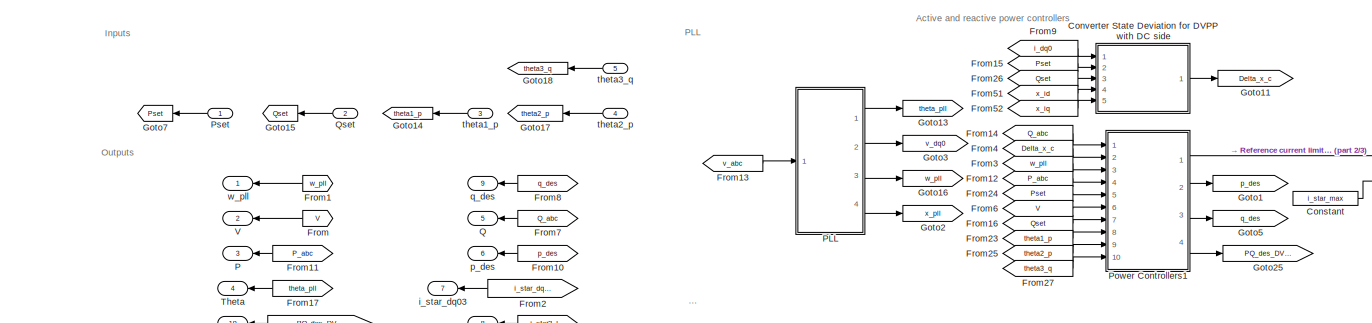
[diagram: STATCOM with Battery - part 1/3, top center region]
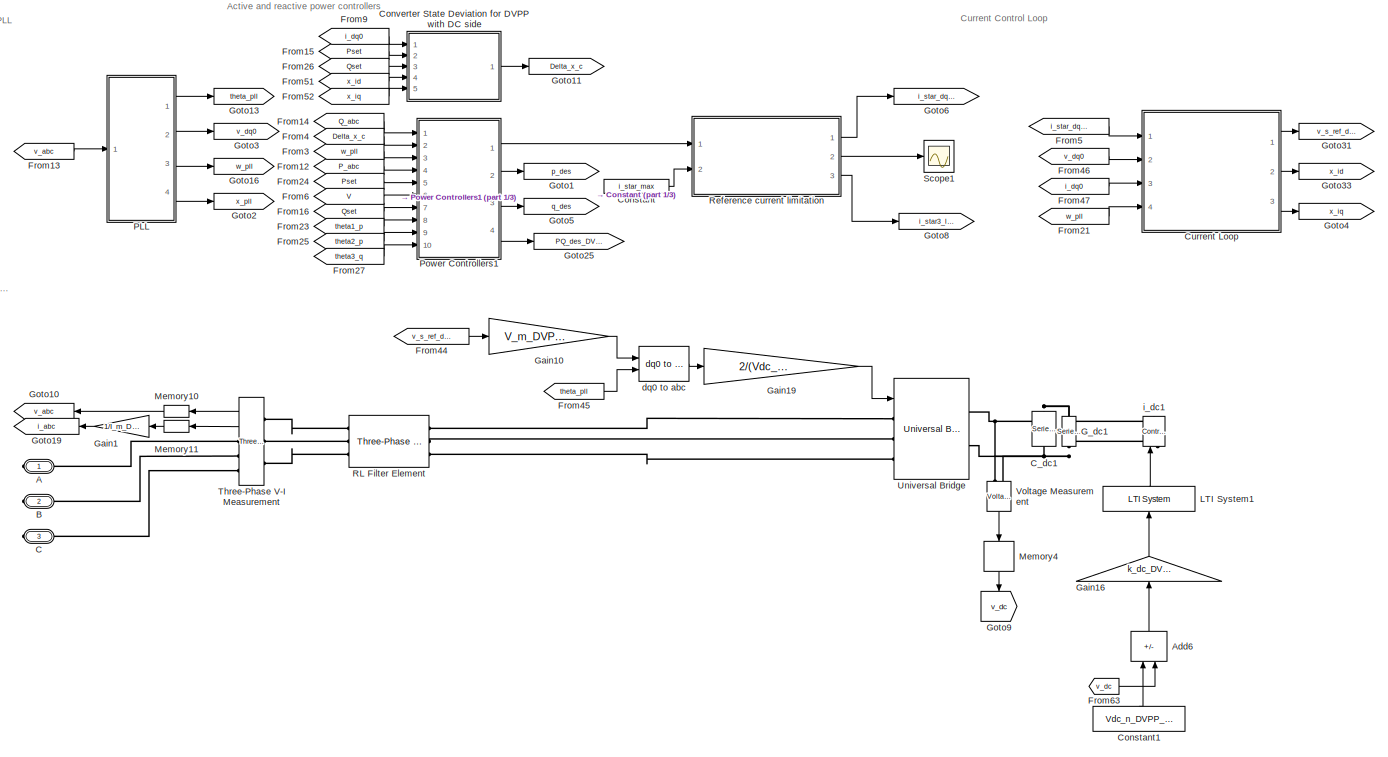
[diagram: STATCOM with Battery - part 2/3, center side, full height]
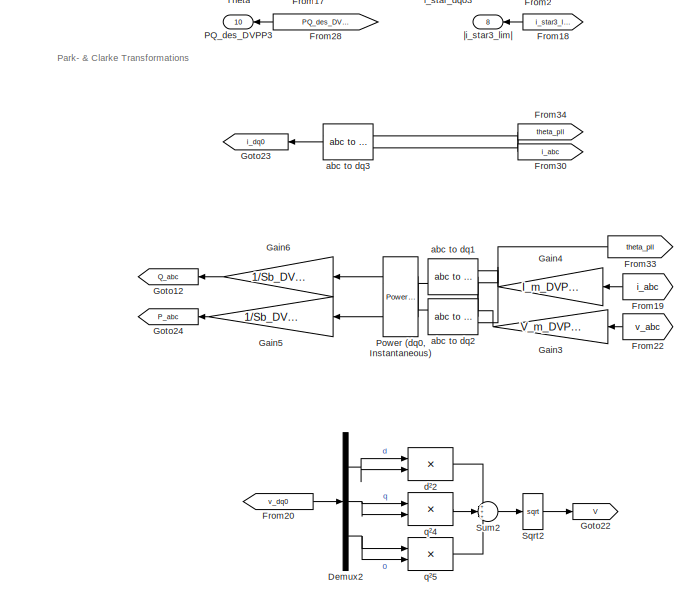
[diagram: STATCOM with Battery - part 3/3, bottom left region]
BLOCK [SubSystem] STATCOM with Battery
  Ports = [5, 10, 0, 0, 0, 0, 3]
  RequestExecContextInheritance = off
BLOCK [PMIOPort] STATCOM with Battery/A
  Side = Right
BLOCK [Sum] STATCOM with Battery/Add6
  IconShape = rectangular
  Inputs = +-
  NameLocation = right
  Ports = [2, 1]
BLOCK [PMIOPort] STATCOM with Battery/B
  Port = 2
  Side = Right
BLOCK [PMIOPort] STATCOM with Battery/C
  Port = 3
  Side = Right
BLOCK [Reference] STATCOM with Battery/C_dc1  REF=powerlib/Elements/Series RLC Branch
  NameLocation = left
  Ports = [0, 0, 0, 0, 0, 1, 1]
  SourceBlock = powerlib/Elements/Series RLC Branch
  SourceProductBaseCode = PS
  SourceType = Series RLC Branch
BLOCK [Constant] STATCOM with Battery/Constant
  Value = i_star_max
BLOCK [Constant] STATCOM with Battery/Constant1
  NameLocation = right
  Value = Vdc_n_DVPP_3_3
BLOCK [SubSystem] STATCOM with Battery/Converter State Deviation for DVPP with DC side
  Ports = [5, 1]
  RequestExecContextInheritance = off
BLOCK [Outport] STATCOM with Battery/Converter State Deviation for DVPP with DC side/Delta x_c
BLOCK [Demux] STATCOM with Battery/Converter State Deviation for DVPP with DC side/Demux2
  Outputs = 3
  Ports = [1, 3]
BLOCK [Gain] STATCOM with Battery/Converter State Deviation for DVPP with DC side/Gain
  Gain = 1/vd0_DVPP_3_3_pu
BLOCK [Gain] STATCOM with Battery/Converter State Deviation for DVPP with DC side/Gain1
  Gain = -1/vd0_DVPP_3_3_pu
BLOCK [Mux] STATCOM with Battery/Converter State Deviation for DVPP with DC side/Mux
  DisplayOption = bar
  Ports = [4, 1]
BLOCK [Inport] STATCOM with Battery/Converter State Deviation for DVPP with DC side/Pset
  Port = 2
BLOCK [Inport] STATCOM with Battery/Converter State Deviation for DVPP with DC side/Qset
  Port = 3
BLOCK [Sum] STATCOM with Battery/Converter State Deviation for DVPP with DC side/Sum1
  Inputs = +-
  Ports = [2, 1]
BLOCK [Sum] STATCOM with Battery/Converter State Deviation for DVPP with DC side/Sum2
  Inputs = -+
  Ports = [2, 1]
BLOCK [Sum] STATCOM with Battery/Converter State Deviation for DVPP with DC side/Sum3
  Inputs = +-
  Ports = [2, 1]
BLOCK [Sum] STATCOM with Battery/Converter State Deviation for DVPP with DC side/Sum4
  Inputs = +-
  Ports = [2, 1]
BLOCK [Inport] STATCOM with Battery/Converter State Deviation for DVPP with DC side/i_dq0
BLOCK [Inport] STATCOM with Battery/Converter State Deviation for DVPP with DC side/x_id
  Port = 4
BLOCK [Constant] STATCOM with Battery/Converter State Deviation for DVPP with DC side/x_id_3_pu
  Value = xid0_DVPP_3_3_pu
BLOCK [Inport] STATCOM with Battery/Converter State Deviation for DVPP with DC side/x_iq
  Port = 5
BLOCK [Constant] STATCOM with Battery/Converter State Deviation for DVPP with DC side/x_iq_3_pu
  Value = xiq0_DVPP_3_3_pu
BLOCK [SubSystem] STATCOM with Battery/Current Loop
  AncestorBlock = Library/Grid-Forming Converter\nControlled by Droop Control /Current Loop
  Ports = [4, 3]
  RequestExecContextInheritance = off
BLOCK [Demux] STATCOM with Battery/Current Loop/Demux
  NameLocation = top
  Outputs = 2
  Ports = [1, 2]
BLOCK [Demux] STATCOM with Battery/Current Loop/Demux1
  NameLocation = top
  Outputs = 2
  Ports = [1, 2]
BLOCK [Demux] STATCOM with Battery/Current Loop/Demux2
  NameLocation = top
  Outputs = 2
  Ports = [1, 2]
BLOCK [Gain] STATCOM with Battery/Current Loop/Gain
  Gain = kp_i_pu
BLOCK [Gain] STATCOM with Battery/Current Loop/Gain1
  Gain = ki_i_pu
BLOCK [Gain] STATCOM with Battery/Current Loop/Gain2
  Gain = kp_i_pu
BLOCK [Gain] STATCOM with Battery/Current Loop/Gain3
  Gain = ki_i_pu
BLOCK [Gain] STATCOM with Battery/Current Loop/Gain4
  Gain = w_b
BLOCK [Integrator] STATCOM with Battery/Current Loop/Integrator1
  InitialCondition = xid0_DVPP_3_3_pu
  Ports = [1, 1]
BLOCK [Integrator] STATCOM with Battery/Current Loop/Integrator2
  InitialCondition = xiq0_DVPP_3_3_pu
  Ports = [1, 1]
BLOCK [Memory] STATCOM with Battery/Current Loop/Memory1
  NameLocation = top
BLOCK [Memory] STATCOM with Battery/Current Loop/Memory2
  NameLocation = top
BLOCK [Mux] STATCOM with Battery/Current Loop/Mux
  DisplayOption = bar
  Inputs = 3
  NameLocation = top
  Ports = [3, 1]
BLOCK [Product] STATCOM with Battery/Current Loop/Product
  Ports = [2, 1]
BLOCK [Product] STATCOM with Battery/Current Loop/Product1
  Ports = [2, 1]
BLOCK [Gain] STATCOM with Battery/Current Loop/Rf
  Gain = r_f_DVPP_3_3
BLOCK [Gain] STATCOM with Battery/Current Loop/Rf1
  Gain = r_f_DVPP_3_3
BLOCK [Selector] STATCOM with Battery/Current Loop/Selector1
  IndexOptions = Index vector (dialog)
  Indices = [1 2]
  InputPortWidth = 3
  NameLocation = top
  OutputSizes = 1
  Ports = [1, 1]
BLOCK [Selector] STATCOM with Battery/Current Loop/Selector2
  IndexOptions = Index vector (dialog)
  Indices = [1 2]
  InputPortWidth = 3
  NameLocation = top
  OutputSizes = 1
  Ports = [1, 1]
BLOCK [Selector] STATCOM with Battery/Current Loop/Selector3
  IndexOptions = Index vector (dialog)
  Indices = [1 2]
  InputPortWidth = 3
  NameLocation = top
  OutputSizes = 1
  Ports = [1, 1]
BLOCK [Sum] STATCOM with Battery/Current Loop/Sum
  Inputs = |+-
  NameLocation = top
  Ports = [2, 1]
BLOCK [Sum] STATCOM with Battery/Current Loop/Sum1
  Ports = [2, 1]
BLOCK [Sum] STATCOM with Battery/Current Loop/Sum2
  Inputs = |+-+
  NameLocation = top
  Ports = [3, 1]
BLOCK [Sum] STATCOM with Battery/Current Loop/Sum3
  Inputs = |++
  NameLocation = top
  Ports = [2, 1]
BLOCK [Sum] STATCOM with Battery/Current Loop/Sum4
  Ports = [2, 1]
BLOCK [Sum] STATCOM with Battery/Current Loop/Sum5
  Inputs = +++|
  NameLocation = top
  Ports = [3, 1]
BLOCK [Sum] STATCOM with Battery/Current Loop/Sum6
  Inputs = -+|
  NameLocation = top
  Ports = [2, 1]
BLOCK [Sum] STATCOM with Battery/Current Loop/Sum7
  Inputs = ++|
  NameLocation = top
  Ports = [2, 1]
BLOCK [Inport] STATCOM with Battery/Current Loop/i_dq0
  NameLocation = top
  Port = 3
BLOCK [Inport] STATCOM with Battery/Current Loop/i_star_dq0
  NameLocation = top
BLOCK [Inport] STATCOM with Battery/Current Loop/v_dq0
  NameLocation = top
  Port = 2
BLOCK [Outport] STATCOM with Battery/Current Loop/v_s_ref_dq0
  NameLocation = top
  VectorParamsAs1DForOutWhenUnconnected = off
BLOCK [Constant] STATCOM with Battery/Current Loop/vs_0*
  Value = 0
BLOCK [Gain] STATCOM with Battery/Current Loop/w*Lf
  Gain = l_f_DVPP_3_3/w_b
BLOCK [Gain] STATCOM with Battery/Current Loop/w*Lf1
  Gain = l_f_DVPP_3_3/w_b
BLOCK [Inport] STATCOM with Battery/Current Loop/w_pll
  NameLocation = top
  Port = 4
BLOCK [Outport] STATCOM with Battery/Current Loop/x_id
  NameLocation = top
  Port = 2
  VectorParamsAs1DForOutWhenUnconnected = off
BLOCK [Outport] STATCOM with Battery/Current Loop/x_iq
  NameLocation = top
  Port = 3
  VectorParamsAs1DForOutWhenUnconnected = off
BLOCK [Demux] STATCOM with Battery/Demux2
  Outputs = 3
  Ports = [1, 3]
BLOCK [From] STATCOM with Battery/From
  GotoTag = V
BLOCK [From] STATCOM with Battery/From1
  GotoTag = w_pll
  NameLocation = top
BLOCK [From] STATCOM with Battery/From10
  GotoTag = p_des
BLOCK [From] STATCOM with Battery/From11
  GotoTag = P_abc
BLOCK [From] STATCOM with Battery/From12
  GotoTag = P_abc
BLOCK [From] STATCOM with Battery/From13
  GotoTag = v_abc
BLOCK [From] STATCOM with Battery/From14
  GotoTag = Q_abc
BLOCK [From] STATCOM with Battery/From15
  GotoTag = Pset
BLOCK [From] STATCOM with Battery/From16
  GotoTag = Qset
BLOCK [From] STATCOM with Battery/From17
  GotoTag = theta_pll
  NameLocation = top
BLOCK [From] STATCOM with Battery/From18
  GotoTag = i_star3_lim
BLOCK [From] STATCOM with Battery/From19
  GotoTag = i_abc
  NameLocation = top
BLOCK [From] STATCOM with Battery/From2
  GotoTag = i_star_dq03_lim
BLOCK [From] STATCOM with Battery/From20
  GotoTag = v_dq0
  NameLocation = top
BLOCK [From] STATCOM with Battery/From21
  GotoTag = w_pll
  NameLocation = top
BLOCK [From] STATCOM with Battery/From22
  GotoTag = v_abc
  NameLocation = top
BLOCK [From] STATCOM with Battery/From23
  GotoTag = theta1_p
BLOCK [From] STATCOM with Battery/From24
  GotoTag = Pset
BLOCK [From] STATCOM with Battery/From25
  GotoTag = theta2_p
BLOCK [From] STATCOM with Battery/From26
  GotoTag = Qset
BLOCK [From] STATCOM with Battery/From27
  GotoTag = theta3_q
BLOCK [From] STATCOM with Battery/From28
  GotoTag = PQ_des_DVPP3
  NameLocation = top
BLOCK [From] STATCOM with Battery/From3
  GotoTag = w_pll
BLOCK [From] STATCOM with Battery/From30
  GotoTag = i_abc
BLOCK [From] STATCOM with Battery/From33
  GotoTag = theta_pll
  NameLocation = top
BLOCK [From] STATCOM with Battery/From34
  GotoTag = theta_pll
  NameLocation = top
BLOCK [From] STATCOM with Battery/From4
  GotoTag = Delta_x_c
BLOCK [From] STATCOM with Battery/From44
  GotoTag = v_s_ref_dq0
BLOCK [From] STATCOM with Battery/From45
  GotoTag = theta_pll
BLOCK [From] STATCOM with Battery/From46
  GotoTag = v_dq0
  NameLocation = top
BLOCK [From] STATCOM with Battery/From47
  GotoTag = i_dq0
  NameLocation = top
BLOCK [From] STATCOM with Battery/From5
  GotoTag = i_star_dq03_lim
  NameLocation = top
BLOCK [From] STATCOM with Battery/From51
  GotoTag = x_id
BLOCK [From] STATCOM with Battery/From52
  GotoTag = x_iq
BLOCK [From] STATCOM with Battery/From6
  GotoTag = V
BLOCK [From] STATCOM with Battery/From63
  GotoTag = v_dc
  NameLocation = top
BLOCK [From] STATCOM with Battery/From7
  GotoTag = Q_abc
BLOCK [From] STATCOM with Battery/From8
  GotoTag = q_des
BLOCK [From] STATCOM with Battery/From9
  GotoTag = i_dq0
  NameLocation = top
BLOCK [Reference] STATCOM with Battery/G_dc1  REF=powerlib/Elements/Series RLC Branch
  NameLocation = left
  Ports = [0, 0, 0, 0, 0, 1, 1]
  SourceBlock = powerlib/Elements/Series RLC Branch
  SourceProductBaseCode = PS
  SourceType = Series RLC Branch
BLOCK [Gain] STATCOM with Battery/Gain1
  Gain = 1/I_m_DVPP_3_3
BLOCK [Gain] STATCOM with Battery/Gain10
  Gain = V_m_DVPP_3_3
BLOCK [Gain] STATCOM with Battery/Gain16
  Gain = k_dc_DVPP_3_3
  NameLocation = right
BLOCK [Gain] STATCOM with Battery/Gain19
  Gain = 2/(Vdc_n_DVPP_3_3)
BLOCK [Gain] STATCOM with Battery/Gain3
  Gain = V_m_DVPP_3_3
BLOCK [Gain] STATCOM with Battery/Gain4
  Gain = I_m_DVPP_3_3
BLOCK [Gain] STATCOM with Battery/Gain5
  Gain = 1/Sb_DVPP_3_3
BLOCK [Gain] STATCOM with Battery/Gain6
  Gain = 1/Sb_DVPP_3_3
BLOCK [Goto] STATCOM with Battery/Goto1
  GotoTag = p_des
  NameLocation = top
BLOCK [Goto] STATCOM with Battery/Goto10
  GotoTag = v_abc
  NameLocation = top
BLOCK [Goto] STATCOM with Battery/Goto11
  GotoTag = Delta_x_c
  NameLocation = top
BLOCK [Goto] STATCOM with Battery/Goto12
  GotoTag = Q_abc
  NameLocation = top
BLOCK [Goto] STATCOM with Battery/Goto13
  GotoTag = theta_pll
BLOCK [Goto] STATCOM with Battery/Goto14
  GotoTag = theta1_p
  NameLocation = top
BLOCK [Goto] STATCOM with Battery/Goto15
  GotoTag = Qset
  NameLocation = top
BLOCK [Goto] STATCOM with Battery/Goto16
  GotoTag = w_pll
  NameLocation = top
BLOCK [Goto] STATCOM with Battery/Goto17
  GotoTag = theta2_p
  NameLocation = top
BLOCK [Goto] STATCOM with Battery/Goto18
  GotoTag = theta3_q
  NameLocation = top
BLOCK [Goto] STATCOM with Battery/Goto19
  GotoTag = i_abc
BLOCK [Goto] STATCOM with Battery/Goto2
  GotoTag = x_pll
  NameLocation = top
BLOCK [Goto] STATCOM with Battery/Goto22
  GotoTag = V
BLOCK [Goto] STATCOM with Battery/Goto23
  GotoTag = i_dq0
BLOCK [Goto] STATCOM with Battery/Goto24
  GotoTag = P_abc
  NameLocation = top
BLOCK [Goto] STATCOM with Battery/Goto25
  GotoTag = PQ_des_DVPP3
  NameLocation = top
BLOCK [Goto] STATCOM with Battery/Goto3
  GotoTag = v_dq0
BLOCK [Goto] STATCOM with Battery/Goto31
  GotoTag = v_s_ref_dq0
  NameLocation = top
BLOCK [Goto] STATCOM with Battery/Goto33
  GotoTag = x_id
  NameLocation = top
BLOCK [Goto] STATCOM with Battery/Goto4
  GotoTag = x_iq
  NameLocation = top
BLOCK [Goto] STATCOM with Battery/Goto5
  GotoTag = q_des
  NameLocation = top
BLOCK [Goto] STATCOM with Battery/Goto6
  GotoTag = i_star_dq03_lim
  NameLocation = top
BLOCK [Goto] STATCOM with Battery/Goto7
  GotoTag = Pset
  NameLocation = top
BLOCK [Goto] STATCOM with Battery/Goto8
  GotoTag = i_star3_lim
  NameLocation = top
BLOCK [Goto] STATCOM with Battery/Goto9
  GotoTag = v_dc
  NameLocation = left
BLOCK [Reference] STATCOM with Battery/LTI System1  REF=cstblocks/LTI System
  NameLocation = right
  Ports = [1, 1]
  SourceBlock = cstblocks/LTI System
  SourceProductBaseCode = CT
  SourceType = LTI Block
BLOCK [Memory] STATCOM with Battery/Memory10
  InitialCondition = [vabc_DVPP_3_3_0_pu(1), vabc_DVPP_3_3_0_pu(2), vabc_DVPP_3_3_0_pu(3)]
  NameLocation = top
BLOCK [Memory] STATCOM with Battery/Memory11
  InitialCondition = [iabc_DVPP_3_3_0(1), iabc_DVPP_3_3_0(2), iabc_DVPP_3_3_0(3)]
  NameLocation = top
BLOCK [Memory] STATCOM with Battery/Memory4
  NameLocation = left
BLOCK [Outport] STATCOM with Battery/P
  NameLocation = top
  Port = 3
  VectorParamsAs1DForOutWhenUnconnected = off
BLOCK [SubSystem] STATCOM with Battery/PLL
  Ports = [1, 4]
  RequestExecContextInheritance = off
BLOCK [Display] STATCOM with Battery/PLL/Display
  Decimation = 1
  Ports = [1]
BLOCK [Gain] STATCOM with Battery/PLL/Gain
  Gain = 1/fb
BLOCK [Integrator] STATCOM with Battery/PLL/Integrator3
  InitialCondition = xpll0_pu
  Ports = [1, 1]
BLOCK [Selector] STATCOM with Battery/PLL/Selector
  IndexOptions = Index vector (dialog)
  Indices = 2
  InputPortWidth = 3
  OutputSizes = 1
  Ports = [1, 1]
BLOCK [SubSystem] STATCOM with Battery/PLL/Subsystem
  Ports = [1, 2]
  RequestExecContextInheritance = off
BLOCK [Constant] STATCOM with Battery/PLL/Subsystem/Constant
  Value = 2*pi*50
BLOCK [Demux] STATCOM with Battery/PLL/Subsystem/Demux2
  Outputs = 3
  Ports = [1, 3]
BLOCK [Product] STATCOM with Battery/PLL/Subsystem/Divide
  Inputs = /*
  Ports = [2, 1]
BLOCK [Reference] STATCOM with Battery/PLL/Subsystem/First-Order Filter  REF=powerlib_meascontrol/Filters/First-Order
Filter
  Ports = [1, 1]
  SourceBlock = powerlib_meascontrol/Filters/First-Order\nFilter
  SourceProductBaseCode = PS
  SourceType = First-Order Filter
BLOCK [Outport] STATCOM with Battery/PLL/Subsystem/Freq
  VectorParamsAs1DForOutWhenUnconnected = off
BLOCK [Gain] STATCOM with Battery/PLL/Subsystem/Gain
  Gain = kp_pll
BLOCK [Gain] STATCOM with Battery/PLL/Subsystem/Gain1
  Gain = ki_pll
BLOCK [Gain] STATCOM with Battery/PLL/Subsystem/Gain10
  Gain = 1/2/pi
  OutDataTypeStr = Inherit: Same as input
  ParamDataTypeStr = Inherit: Same as input
  SaturateOnIntegerOverflow = on
BLOCK [Integrator] STATCOM with Battery/PLL/Subsystem/Integrator
  Ports = [1, 1]
BLOCK [Integrator] STATCOM with Battery/PLL/Subsystem/Integrator1
  InitialCondition = xpll0_pu
  Ports = [1, 1]
BLOCK [Memory] STATCOM with Battery/PLL/Subsystem/Memory
  InitialCondition = fb
BLOCK [Selector] STATCOM with Battery/PLL/Subsystem/Selector
  IndexOptions = Index vector (dialog)
  Indices = 2
  InputPortWidth = 3
  OutputSizes = 1
  Ports = [1, 1]
BLOCK [Sqrt] STATCOM with Battery/PLL/Subsystem/Sqrt2
BLOCK [Sum] STATCOM with Battery/PLL/Subsystem/Sum
  Ports = [2, 1]
BLOCK [Sum] STATCOM with Battery/PLL/Subsystem/Sum1
  Inputs = ++|
  Ports = [2, 1]
BLOCK [Sum] STATCOM with Battery/PLL/Subsystem/Sum2
  InputSameDT = on
  Inputs = +++
  OutDataTypeStr = Inherit: Same as first input
  Ports = [3, 1]
  SaturateOnIntegerOverflow = on
BLOCK [Inport] STATCOM with Battery/PLL/Subsystem/Vabc
  PortDimensions = 3
BLOCK [Reference] STATCOM with Battery/PLL/Subsystem/abc to dq0  REF=powerlib_meascontrol/Transformations/abc to dq0
  Ports = [2, 1]
  SourceBlock = powerlib_meascontrol/Transformations/abc to dq0
  SourceProductBaseCode = MT,PS
  SourceType = abc to dq0 Transformation
BLOCK [Product] STATCOM with Battery/PLL/Subsystem/d²2
  InputSameDT = on
  NameLocation = top
  OutDataTypeStr = Inherit: Same as first input
  Ports = [2, 1]
  RndMeth = Zero
  SaturateOnIntegerOverflow = on
BLOCK [Product] STATCOM with Battery/PLL/Subsystem/q²4
  InputSameDT = on
  OutDataTypeStr = Inherit: Same as first input
  Ports = [2, 1]
  RndMeth = Zero
  SaturateOnIntegerOverflow = on
BLOCK [Product] STATCOM with Battery/PLL/Subsystem/q²5
  InputSameDT = on
  OutDataTypeStr = Inherit: Same as first input
  Ports = [2, 1]
  RndMeth = Zero
  SaturateOnIntegerOverflow = on
BLOCK [Outport] STATCOM with Battery/PLL/Subsystem/wt
  Port = 2
  VectorParamsAs1DForOutWhenUnconnected = off
BLOCK [Reference] STATCOM with Battery/PLL/abc to dq0  REF=powerlib_meascontrol/Transformations/abc to dq0
  Ports = [2, 1]
  SourceBlock = powerlib_meascontrol/Transformations/abc to dq0
  SourceProductBaseCode = PS
  SourceType = abc to dq0 Transformation
BLOCK [Outport] STATCOM with Battery/PLL/theta_pll
  VectorParamsAs1DForOutWhenUnconnected = off
BLOCK [Inport] STATCOM with Battery/PLL/v_abc
BLOCK [Outport] STATCOM with Battery/PLL/v_dq0
  Port = 2
  VectorParamsAs1DForOutWhenUnconnected = off
BLOCK [Outport] STATCOM with Battery/PLL/w_pll
  Port = 3
  VectorParamsAs1DForOutWhenUnconnected = off
BLOCK [Outport] STATCOM with Battery/PLL/x_pll
  Port = 4
  VectorParamsAs1DForOutWhenUnconnected = off
BLOCK [Outport] STATCOM with Battery/PQ_des_DVPP3
  NameLocation = top
  Port = 10
  VectorParamsAs1DForOutWhenUnconnected = off
BLOCK [Reference] STATCOM with Battery/Power (dq0, Instantaneous)  REF=powerlib_meascontrol/Measurements/Power
(dq0, Instantaneous)
  NameLocation = top
  Ports = [2, 2]
  SourceBlock = powerlib_meascontrol/Measurements/Power\n(dq0, Instantaneous)
  SourceProductBaseCode = PS
  SourceType = Power (dq0, Instantaneous)
BLOCK [SubSystem] STATCOM with Battery/Power Controllers1
  Ports = [10, 4]
  RequestExecContextInheritance = off
BLOCK [Constant] STATCOM with Battery/Power Controllers1/0
  Value = 0
BLOCK [SubSystem] STATCOM with Battery/Power Controllers1/DVPP State Feedback Controller
  Ports = [10, 5]
  RequestExecContextInheritance = off
BLOCK [Inport] STATCOM with Battery/Power Controllers1/DVPP State Feedback Controller/Delta_x_c
  Port = 6
BLOCK [Demux] STATCOM with Battery/Power Controllers1/DVPP State Feedback Controller/Demux
  Outputs = 2
  Ports = [1, 2]
BLOCK [Demux] STATCOM with Battery/Power Controllers1/DVPP State Feedback Controller/Demux1
  Outputs = 2
  Ports = [1, 2]
BLOCK [Gain] STATCOM with Battery/Power Controllers1/DVPP State Feedback Controller/Gain1
BLOCK [Gain] STATCOM with Battery/Power Controllers1/DVPP State Feedback Controller/Gain2
  Gain = 1/vd0_DVPP_3_3_pu
BLOCK [Gain] STATCOM with Battery/Power Controllers1/DVPP State Feedback Controller/Gain3
  Gain = -1/vd0_DVPP_3_3_pu
BLOCK [Integrator] STATCOM with Battery/Power Controllers1/DVPP State Feedback Controller/Integrator
  Ports = [1, 1]
BLOCK [Integrator] STATCOM with Battery/Power Controllers1/DVPP State Feedback Controller/Integrator1
  Ports = [1, 1]
BLOCK [SubSystem] STATCOM with Battery/Power Controllers1/DVPP State Feedback Controller/LPV Controller
  Ports = [4, 1]
  RequestExecContextInheritance = off
BLOCK [Sum] STATCOM with Battery/Power Controllers1/DVPP State Feedback Controller/LPV Controller/Add
  IconShape = rectangular
  Inputs = ++++++++
  Ports = [8, 1]
BLOCK [Constant] STATCOM with Battery/Power Controllers1/DVPP State Feedback Controller/LPV Controller/Constant
  Value = theta2_p_1
BLOCK [Constant] STATCOM with Battery/Power Controllers1/DVPP State Feedback Controller/LPV Controller/Constant1
  Value = theta2_p_2
BLOCK [Constant] STATCOM with Battery/Power Controllers1/DVPP State Feedback Controller/LPV Controller/Constant2
  Value = theta3_q_2
BLOCK [Constant] STATCOM with Battery/Power Controllers1/DVPP State Feedback Controller/LPV Controller/Constant3
  Value = theta3_q_1
BLOCK [Constant] STATCOM with Battery/Power Controllers1/DVPP State Feedback Controller/LPV Controller/Constant4
  Value = theta1_p_1
BLOCK [Constant] STATCOM with Battery/Power Controllers1/DVPP State Feedback Controller/LPV Controller/Constant5
  Value = theta1_p_2
BLOCK [Inport] STATCOM with Battery/Power Controllers1/DVPP State Feedback Controller/LPV Controller/Delta x
BLOCK [Gain] STATCOM with Battery/Power Controllers1/DVPP State Feedback Controller/LPV Controller/Gain
  Gain = LPV_K3_DVPP_3(1:2,:)
BLOCK [Gain] STATCOM with Battery/Power Controllers1/DVPP State Feedback Controller/LPV Controller/Gain1
  Gain = LPV_K3_DVPP_3(3:4,:)
BLOCK [Gain] STATCOM with Battery/Power Controllers1/DVPP State Feedback Controller/LPV Controller/Gain2
  Gain = LPV_K3_DVPP_3(5:6,:)
BLOCK [Gain] STATCOM with Battery/Power Controllers1/DVPP State Feedback Controller/LPV Controller/Gain3
  Gain = LPV_K3_DVPP_3(7:8,:)
BLOCK [Gain] STATCOM with Battery/Power Controllers1/DVPP State Feedback Controller/LPV Controller/Gain4
  Gain = LPV_K3_DVPP_3(9:10,:)
BLOCK [Gain] STATCOM with Battery/Power Controllers1/DVPP State Feedback Controller/LPV Controller/Gain5
  Gain = LPV_K3_DVPP_3(11:12,:)
BLOCK [Gain] STATCOM with Battery/Power Controllers1/DVPP State Feedback Controller/LPV Controller/Gain6
  Gain = LPV_K3_DVPP_3(13:14,:)
BLOCK [Gain] STATCOM with Battery/Power Controllers1/DVPP State Feedback Controller/LPV Controller/Gain7
  Gain = LPV_K3_DVPP_3(15:16,:)
BLOCK [SubSystem] STATCOM with Battery/Power Controllers1/DVPP State Feedback Controller/LPV Controller/MATLAB Function
  ErrorFcn = Stateflow.Translate.translate
  PermitHierarchicalResolution = ExplicitOnly
  Ports = [9, 8]
  RequestExecContextInheritance = off
  SFBlockType = MATLAB Function
  TreatAsAtomicUnit = on
BLOCK [Demux] STATCOM with Battery/Power Controllers1/DVPP State Feedback Controller/LPV Controller/MATLAB Function/ Demux 
  Outputs = 1
  Ports = [1, 1]
BLOCK [S-Function] STATCOM with Battery/Power Controllers1/DVPP State Feedback Controller/LPV Controller/MATLAB Function/ SFunction 
  EnableBusSupport = on
  FunctionName = sf_sfun
  PortCounts = [9 9]
  Ports = [9, 9]
  SFcnIsStateOwnerBlock = off
  SFunctionDeploymentMode = off
  Tag = Stateflow S-Function 7
BLOCK [Terminator] STATCOM with Battery/Power Controllers1/DVPP State Feedback Controller/LPV Controller/MATLAB Function/ Terminator 
BLOCK [Outport] STATCOM with Battery/Power Controllers1/DVPP State Feedback Controller/LPV Controller/MATLAB Function/lambda1
BLOCK [Outport] STATCOM with Battery/Power Controllers1/DVPP State Feedback Controller/LPV Controller/MATLAB Function/lambda2
  Port = 2
BLOCK [Outport] STATCOM with Battery/Power Controllers1/DVPP State Feedback Controller/LPV Controller/MATLAB Function/lambda3
  Port = 3
BLOCK [Outport] STATCOM with Battery/Power Controllers1/DVPP State Feedback Controller/LPV Controller/MATLAB Function/lambda4
  Port = 4
BLOCK [Outport] STATCOM with Battery/Power Controllers1/DVPP State Feedback Controller/LPV Controller/MATLAB Function/lambda5
  Port = 5
BLOCK [Outport] STATCOM with Battery/Power Controllers1/DVPP State Feedback Controller/LPV Controller/MATLAB Function/lambda6
  Port = 6
BLOCK [Outport] STATCOM with Battery/Power Controllers1/DVPP State Feedback Controller/LPV Controller/MATLAB Function/lambda7
  Port = 7
BLOCK [Outport] STATCOM with Battery/Power Controllers1/DVPP State Feedback Controller/LPV Controller/MATLAB Function/lambda8
  Port = 8
BLOCK [Inport] STATCOM with Battery/Power Controllers1/DVPP State Feedback Controller/LPV Controller/MATLAB Function/theta1_p
BLOCK [Inport] STATCOM with Battery/Power Controllers1/DVPP State Feedback Controller/LPV Controller/MATLAB Function/theta1_p_1
  Port = 4
BLOCK [Inport] STATCOM with Battery/Power Controllers1/DVPP State Feedback Controller/LPV Controller/MATLAB Function/theta1_p_2
  Port = 5
BLOCK [Inport] STATCOM with Battery/Power Controllers1/DVPP State Feedback Controller/LPV Controller/MATLAB Function/theta2_p
  Port = 2
BLOCK [Inport] STATCOM with Battery/Power Controllers1/DVPP State Feedback Controller/LPV Controller/MATLAB Function/theta2_p_1
  Port = 6
BLOCK [Inport] STATCOM with Battery/Power Controllers1/DVPP State Feedback Controller/LPV Controller/MATLAB Function/theta2_p_2
  Port = 7
BLOCK [Inport] STATCOM with Battery/Power Controllers1/DVPP State Feedback Controller/LPV Controller/MATLAB Function/theta3_q
  Port = 3
BLOCK [Inport] STATCOM with Battery/Power Controllers1/DVPP State Feedback Controller/LPV Controller/MATLAB Function/theta3_q_1
  Port = 8
BLOCK [Inport] STATCOM with Battery/Power Controllers1/DVPP State Feedback Controller/LPV Controller/MATLAB Function/theta3_q_2
  Port = 9
BLOCK [Outport] STATCOM with Battery/Power Controllers1/DVPP State Feedback Controller/LPV Controller/Out1
BLOCK [Reshape] STATCOM with Battery/Power Controllers1/DVPP State Feedback Controller/LPV Controller/Reshape
  OutputDimensionality = Customize
  OutputDimensions = [2,12]
  Ports = [1, 1]
BLOCK [Reshape] STATCOM with Battery/Power Controllers1/DVPP State Feedback Controller/LPV Controller/Reshape1
  OutputDimensionality = Customize
  OutputDimensions = [12,1]
  Ports = [1, 1]
BLOCK [Product] STATCOM with Battery/Power Controllers1/DVPP State Feedback Controller/LPV Controller/multiply
  Multiplication = Matrix(*)
  Ports = [2, 1]
BLOCK [Inport] STATCOM with Battery/Power Controllers1/DVPP State Feedback Controller/LPV Controller/theta1_p
  Port = 2
BLOCK [Inport] STATCOM with Battery/Power Controllers1/DVPP State Feedback Controller/LPV Controller/theta2_p
  Port = 3
BLOCK [Inport] STATCOM with Battery/Power Controllers1/DVPP State Feedback Controller/LPV Controller/theta3_q
  Port = 4
BLOCK [SubSystem] STATCOM with Battery/Power Controllers1/DVPP State Feedback Controller/MATLAB Function
  ErrorFcn = Stateflow.Translate.translate
  PermitHierarchicalResolution = ExplicitOnly
  Ports = [13, 4]
  RequestExecContextInheritance = off
  SFBlockType = MATLAB Function
  TreatAsAtomicUnit = on
BLOCK [Demux] STATCOM with Battery/Power Controllers1/DVPP State Feedback Controller/MATLAB Function/ Demux 
  Outputs = 1
  Ports = [1, 1]
BLOCK [S-Function] STATCOM with Battery/Power Controllers1/DVPP State Feedback Controller/MATLAB Function/ SFunction 
  EnableBusSupport = on
  FunctionName = sf_sfun
  PortCounts = [13 5]
  Ports = [13, 5]
  SFcnIsStateOwnerBlock = off
  SFunctionDeploymentMode = off
  Tag = Stateflow S-Function 6
BLOCK [Terminator] STATCOM with Battery/Power Controllers1/DVPP State Feedback Controller/MATLAB Function/ Terminator 
BLOCK [Outport] STATCOM with Battery/Power Controllers1/DVPP State Feedback Controller/MATLAB Function/A_des
BLOCK [Outport] STATCOM with Battery/Power Controllers1/DVPP State Feedback Controller/MATLAB Function/Bh_des
  Port = 2
BLOCK [Outport] STATCOM with Battery/Power Controllers1/DVPP State Feedback Controller/MATLAB Function/C_des
  Port = 3
BLOCK [Outport] STATCOM with Battery/Power Controllers1/DVPP State Feedback Controller/MATLAB Function/Dh_des
  Port = 4
BLOCK [Inport] STATCOM with Battery/Power Controllers1/DVPP State Feedback Controller/MATLAB Function/Dp_pu
  Port = 12
BLOCK [Inport] STATCOM with Battery/Power Controllers1/DVPP State Feedback Controller/MATLAB Function/Dq1_pu
  Port = 13
BLOCK [Inport] STATCOM with Battery/Power Controllers1/DVPP State Feedback Controller/MATLAB Function/Mp_pu
  Port = 11
BLOCK [Inport] STATCOM with Battery/Power Controllers1/DVPP State Feedback Controller/MATLAB Function/scaling3
  Port = 7
BLOCK [Inport] STATCOM with Battery/Power Controllers1/DVPP State Feedback Controller/MATLAB Function/tau1_p
BLOCK [Inport] STATCOM with Battery/Power Controllers1/DVPP State Feedback Controller/MATLAB Function/tau2_p
  Port = 2
BLOCK [Inport] STATCOM with Battery/Power Controllers1/DVPP State Feedback Controller/MATLAB Function/tau3_p
  Port = 3
BLOCK [Inport] STATCOM with Battery/Power Controllers1/DVPP State Feedback Controller/MATLAB Function/tau3_q
  Port = 4
BLOCK [Inport] STATCOM with Battery/Power Controllers1/DVPP State Feedback Controller/MATLAB Function/tau_des_p
  Port = 5
BLOCK [Inport] STATCOM with Battery/Power Controllers1/DVPP State Feedback Controller/MATLAB Function/tau_des_q
  Port = 6
BLOCK [Inport] STATCOM with Battery/Power Controllers1/DVPP State Feedback Controller/MATLAB Function/theta1_p
  Port = 8
BLOCK [Inport] STATCOM with Battery/Power Controllers1/DVPP State Feedback Controller/MATLAB Function/theta2_p
  Port = 9
BLOCK [Inport] STATCOM with Battery/Power Controllers1/DVPP State Feedback Controller/MATLAB Function/theta3_q
  Port = 10
BLOCK [Mux] STATCOM with Battery/Power Controllers1/DVPP State Feedback Controller/Mux
  DisplayOption = bar
  Ports = [4, 1]
BLOCK [Mux] STATCOM with Battery/Power Controllers1/DVPP State Feedback Controller/Mux1
  DisplayOption = bar
  Inputs = 2
  Ports = [2, 1]
BLOCK [Outport] STATCOM with Battery/Power Controllers1/DVPP State Feedback Controller/PQ_des_DVPP3
  Port = 5
BLOCK [Inport] STATCOM with Battery/Power Controllers1/DVPP State Feedback Controller/P_abc
  Port = 3
BLOCK [Inport] STATCOM with Battery/Power Controllers1/DVPP State Feedback Controller/P_set
  Port = 4
BLOCK [Inport] STATCOM with Battery/Power Controllers1/DVPP State Feedback Controller/Q_abc
  Port = 5
BLOCK [Inport] STATCOM with Battery/Power Controllers1/DVPP State Feedback Controller/Q_set
  Port = 7
BLOCK [Scope] STATCOM with Battery/Power Controllers1/DVPP State Feedback Controller/Scope
  Floating = off
  NumInputPorts = 1
  Ports = [1]
  ScopeSpecificationString = Simulink.scopes.TimeScopeBlockCfg('CurrentConfiguration', extmgr.ConfigurationSet(extmgr.Configuration('Core','General UI',true),extmgr.Configuration('Core','Source UI',true),extmgr.Configuration('Sources','WiredSimulink',true,'DataLoggingVariableName','ScopeData4'),extmgr.Configuration('Visuals','Time Domain',true,'SerializedDisplays',{struct('MinYLimReal','-9.90227','MaxYLimReal','39.59126','YLa...<+1455ch>
BLOCK [Sum] STATCOM with Battery/Power Controllers1/DVPP State Feedback Controller/Sum
  Inputs = +-
  Ports = [2, 1]
BLOCK [Sum] STATCOM with Battery/Power Controllers1/DVPP State Feedback Controller/Sum1
  Inputs = ++|
  Ports = [2, 1]
BLOCK [Sum] STATCOM with Battery/Power Controllers1/DVPP State Feedback Controller/Sum2
  Inputs = ++|
  Ports = [2, 1]
BLOCK [Sum] STATCOM with Battery/Power Controllers1/DVPP State Feedback Controller/Sum3
  Inputs = -+
  Ports = [2, 1]
BLOCK [Sum] STATCOM with Battery/Power Controllers1/DVPP State Feedback Controller/Sum4
  Inputs = +-
  Ports = [2, 1]
BLOCK [Sum] STATCOM with Battery/Power Controllers1/DVPP State Feedback Controller/Sum5
  Inputs = ++|
  Ports = [2, 1]
BLOCK [Sum] STATCOM with Battery/Power Controllers1/DVPP State Feedback Controller/Sum6
  Inputs = -+
  Ports = [2, 1]
BLOCK [Sum] STATCOM with Battery/Power Controllers1/DVPP State Feedback Controller/Sum7
  Inputs = |++
  Ports = [2, 1]
BLOCK [Reference] STATCOM with Battery/Power Controllers1/DVPP State Feedback Controller/Varying State Space  REF=cstblocks/Linear Parameter Varying/Varying State Space
  Ports = [5, 3]
  SourceBlock = cstblocks/Linear Parameter Varying/Varying State Space
  SourceProductBaseCode = CT
  SourceType = Varying State Space
BLOCK [Outport] STATCOM with Battery/Power Controllers1/DVPP State Feedback Controller/i_star_d
BLOCK [Outport] STATCOM with Battery/Power Controllers1/DVPP State Feedback Controller/i_star_q
  Port = 2
BLOCK [Outport] STATCOM with Battery/Power Controllers1/DVPP State Feedback Controller/p_des
  Port = 3
BLOCK [Outport] STATCOM with Battery/Power Controllers1/DVPP State Feedback Controller/q_des
  Port = 4
BLOCK [Constant] STATCOM with Battery/Power Controllers1/DVPP State Feedback Controller/scaling DVPP1
  Value = tau_des_p_DVPP_3
BLOCK [Constant] STATCOM with Battery/Power Controllers1/DVPP State Feedback Controller/scaling DVPP10
  Value = tau3_p_DVPP_3
BLOCK [Constant] STATCOM with Battery/Power Controllers1/DVPP State Feedback Controller/scaling DVPP11
  Value = tau3_q_DVPP_3
BLOCK [Constant] STATCOM with Battery/Power Controllers1/DVPP State Feedback Controller/scaling DVPP2
  Value = tau_des_q_DVPP_3
BLOCK [Constant] STATCOM with Battery/Power Controllers1/DVPP State Feedback Controller/scaling DVPP3
  Value = tau2_p_DVPP_3
BLOCK [Constant] STATCOM with Battery/Power Controllers1/DVPP State Feedback Controller/scaling DVPP4
  Value = Dp_DVPP_3_pu
BLOCK [Constant] STATCOM with Battery/Power Controllers1/DVPP State Feedback Controller/scaling DVPP5
  Value = scaling3_DVPP_3
BLOCK [Constant] STATCOM with Battery/Power Controllers1/DVPP State Feedback Controller/scaling DVPP6
  Value = Mp_DVPP_3_pu
BLOCK [Constant] STATCOM with Battery/Power Controllers1/DVPP State Feedback Controller/scaling DVPP7
  Value = Dq1_DVPP_3_pu
BLOCK [Constant] STATCOM with Battery/Power Controllers1/DVPP State Feedback Controller/scaling DVPP9
  Value = tau1_p_DVPP_3
BLOCK [Inport] STATCOM with Battery/Power Controllers1/DVPP State Feedback Controller/theta1_p
  Port = 8
BLOCK [Inport] STATCOM with Battery/Power Controllers1/DVPP State Feedback Controller/theta2_q
  Port = 9
BLOCK [Inport] STATCOM with Battery/Power Controllers1/DVPP State Feedback Controller/theta3_q
  Port = 10
BLOCK [Reference] STATCOM with Battery/Power Controllers1/DVPP State Feedback Controller/total desired dynamics  REF=cstblocks/LTI System
  Ports = [1, 1]
  SourceBlock = cstblocks/LTI System
  SourceProductBaseCode = CT
  SourceType = LTI Block
BLOCK [Constant] STATCOM with Battery/Power Controllers1/DVPP State Feedback Controller/w* [SI]
BLOCK [Inport] STATCOM with Battery/Power Controllers1/DVPP State Feedback Controller/w_pll
BLOCK [Inport] STATCOM with Battery/Power Controllers1/DVPP State Feedback Controller/|V| 
  Port = 2
BLOCK [Constant] STATCOM with Battery/Power Controllers1/DVPP State Feedback Controller/|v*| [p.u.]
  Value = vd0_DVPP_3_3_pu
BLOCK [Inport] STATCOM with Battery/Power Controllers1/Delta x_c
  Port = 2
BLOCK [Mux] STATCOM with Battery/Power Controllers1/Mux
  DisplayOption = bar
  Inputs = 3
  Ports = [3, 1]
BLOCK [Outport] STATCOM with Battery/Power Controllers1/PQ_des_DVPP3
  Port = 4
BLOCK [Inport] STATCOM with Battery/Power Controllers1/P_abc
  Port = 4
BLOCK [Inport] STATCOM with Battery/Power Controllers1/P_set
  Port = 5
BLOCK [Inport] STATCOM with Battery/Power Controllers1/Q_abc
BLOCK [Inport] STATCOM with Battery/Power Controllers1/Q_set
  Port = 7
BLOCK [Outport] STATCOM with Battery/Power Controllers1/i_star_dq0
BLOCK [Outport] STATCOM with Battery/Power Controllers1/p_des
  Port = 2
BLOCK [Outport] STATCOM with Battery/Power Controllers1/q_des
  Port = 3
BLOCK [Inport] STATCOM with Battery/Power Controllers1/theta1_p
  Port = 8
BLOCK [Inport] STATCOM with Battery/Power Controllers1/theta2_p
  Port = 9
BLOCK [Inport] STATCOM with Battery/Power Controllers1/theta3_q
  Port = 10
BLOCK [Inport] STATCOM with Battery/Power Controllers1/w_pll
  Port = 3
BLOCK [Inport] STATCOM with Battery/Power Controllers1/|V|
  Port = 6
BLOCK [Inport] STATCOM with Battery/Pset
  NameLocation = top
BLOCK [Outport] STATCOM with Battery/Q
  NameLocation = top
  Port = 5
  VectorParamsAs1DForOutWhenUnconnected = off
BLOCK [Inport] STATCOM with Battery/Qset
  NameLocation = top
  Port = 2
BLOCK [Reference] STATCOM with Battery/RL Filter Element  REF=powerlib/Elements/Three-Phase
Series RLC Branch
  AttributesFormatString = \n
  Ports = [0, 0, 0, 0, 0, 3, 3]
  SourceBlock = powerlib/Elements/Three-Phase\nSeries RLC Branch
  SourceProductBaseCode = PS
  SourceType = Three-Phase Series RLC Branch
BLOCK [SubSystem] STATCOM with Battery/Reference current limitation
  Ports = [2, 3]
  RequestExecContextInheritance = off
BLOCK [Demux] STATCOM with Battery/Reference current limitation/Demux1
  Outputs = 3
  Ports = [1, 3]
BLOCK [Demux] STATCOM with Battery/Reference current limitation/Demux2
  Outputs = 3
  Ports = [1, 3]
BLOCK [Product] STATCOM with Battery/Reference current limitation/Divide
  Inputs = */
  Ports = [2, 1]
BLOCK [Sum] STATCOM with Battery/Reference current limitation/Minus
  IconShape = rectangular
  Inputs = +-
  Ports = [2, 1]
BLOCK [Sum] STATCOM with Battery/Reference current limitation/Minus1
  IconShape = rectangular
  Inputs = +++
  Ports = [3, 1]
BLOCK [Sum] STATCOM with Battery/Reference current limitation/Minus4
  IconShape = rectangular
  Inputs = +++
  Ports = [3, 1]
BLOCK [Product] STATCOM with Battery/Reference current limitation/Product
  Ports = [2, 1]
  RndMeth = Zero
BLOCK [Product] STATCOM with Battery/Reference current limitation/Product1
  Ports = [2, 1]
  RndMeth = Zero
BLOCK [Product] STATCOM with Battery/Reference current limitation/Product2
  Ports = [2, 1]
  RndMeth = Zero
BLOCK [Product] STATCOM with Battery/Reference current limitation/Product3
  Ports = [2, 1]
  RndMeth = Zero
BLOCK [Product] STATCOM with Battery/Reference current limitation/Product4
  Ports = [2, 1]
  RndMeth = Zero
BLOCK [Product] STATCOM with Battery/Reference current limitation/Product6
  Ports = [2, 1]
  RndMeth = Zero
BLOCK [Product] STATCOM with Battery/Reference current limitation/Product7
  Ports = [2, 1]
  RndMeth = Zero
BLOCK [Saturate] STATCOM with Battery/Reference current limitation/Saturation1
  LowerLimit = 0
  UpperLimit = inf
BLOCK [Signum] STATCOM with Battery/Reference current limitation/Sign
BLOCK [Sqrt] STATCOM with Battery/Reference current limitation/Sqrt1
BLOCK [Sqrt] STATCOM with Battery/Reference current limitation/Sqrt2
BLOCK [Switch] STATCOM with Battery/Reference current limitation/Switch1
  InputSameDT = off
  SaturateOnIntegerOverflow = off
  Threshold = 1
BLOCK [Inport] STATCOM with Battery/Reference current limitation/i_star_dq0
BLOCK [Outport] STATCOM with Battery/Reference current limitation/i_star_dq0_lim
  VectorParamsAs1DForOutWhenUnconnected = off
BLOCK [Inport] STATCOM with Battery/Reference current limitation/i_star_max
  NameLocation = right
  Port = 2
BLOCK [Outport] STATCOM with Battery/Reference current limitation/||i_star_dq0_lim||
  Port = 3
  VectorParamsAs1DForOutWhenUnconnected = off
BLOCK [Outport] STATCOM with Battery/Reference current limitation/||i_star_dq0||
  Port = 2
  VectorParamsAs1DForOutWhenUnconnected = off
BLOCK [Scope] STATCOM with Battery/Scope1
  Floating = off
  NumInputPorts = 1
  Ports = [1]
  ScopeSpecificationString = Simulink.scopes.TimeScopeBlockCfg('CurrentConfiguration', extmgr.ConfigurationSet(extmgr.Configuration('Core','General UI',true),extmgr.Configuration('Core','Source UI',true),extmgr.Configuration('Sources','WiredSimulink',true,'DataLoggingVariableName','ScopeData3'),extmgr.Configuration('Visuals','Time Domain',true,'SerializedDisplays',{struct('MinYLimReal','-2.5885','MaxYLimReal','23.29646','YLab...<+1474ch>
BLOCK [Sqrt] STATCOM with Battery/Sqrt2
BLOCK [Sum] STATCOM with Battery/Sum2
  InputSameDT = on
  Inputs = +++
  OutDataTypeStr = Inherit: Same as first input
  Ports = [3, 1]
  SaturateOnIntegerOverflow = on
BLOCK [Outport] STATCOM with Battery/Theta
  NameLocation = top
  Port = 4
  VectorParamsAs1DForOutWhenUnconnected = off
BLOCK [Reference] STATCOM with Battery/Three-Phase V-I Measurement  REF=powerlib/Measurements/Three-Phase
V-I Measurement
  Ports = [0, 2, 0, 0, 0, 3, 3]
  SourceBlock = powerlib/Measurements/Three-Phase\nV-I Measurement
  SourceProductBaseCode = PS
  SourceType = Three-Phase VI Measurement
BLOCK [Reference] STATCOM with Battery/Universal Bridge  REF=powerlib/Power
Electronics/Universal Bridge
  Ports = [1, 0, 0, 0, 0, 3, 2]
  SourceBlock = powerlib/Power\nElectronics/Universal Bridge
  SourceProductBaseCode = PS
  SourceType = Universal Bridge
BLOCK [Outport] STATCOM with Battery/V
  NameLocation = top
  Port = 2
  VectorParamsAs1DForOutWhenUnconnected = off
BLOCK [Reference] STATCOM with Battery/Voltage Measurement  REF=powerlib/Measurements/Voltage Measurement
  NameLocation = left
  Ports = [0, 1, 0, 0, 0, 2]
  SourceBlock = powerlib/Measurements/Voltage Measurement
  SourceProductBaseCode = PS
  SourceType = Voltage Measurement
  UserDataPersistent = on
BLOCK [Reference] STATCOM with Battery/abc to dq1  REF=powerlib_meascontrol/Transformations/abc to dq0
  NameLocation = top
  Ports = [2, 1]
  SourceBlock = powerlib_meascontrol/Transformations/abc to dq0
  SourceProductBaseCode = PS
  SourceType = abc to dq0 Transformation
BLOCK [Reference] STATCOM with Battery/abc to dq2  REF=powerlib_meascontrol/Transformations/abc to dq0
  NameLocation = top
  Ports = [2, 1]
  SourceBlock = powerlib_meascontrol/Transformations/abc to dq0
  SourceProductBaseCode = PS
  SourceType = abc to dq0 Transformation
BLOCK [Reference] STATCOM with Battery/abc to dq3  REF=powerlib_meascontrol/Transformations/abc to dq0
  NameLocation = top
  Ports = [2, 1]
  SourceBlock = powerlib_meascontrol/Transformations/abc to dq0
  SourceProductBaseCode = PS
  SourceType = abc to dq0 Transformation
BLOCK [Reference] STATCOM with Battery/dq0 to abc  REF=powerlib_meascontrol/Transformations/dq0 to abc
  Ports = [2, 1]
  SourceBlock = powerlib_meascontrol/Transformations/dq0 to abc
  SourceProductBaseCode = PS
  SourceType = dq0 to abc Transformation
BLOCK [Product] STATCOM with Battery/d²2
  InputSameDT = on
  NameLocation = top
  OutDataTypeStr = Inherit: Same as first input
  Ports = [2, 1]
  RndMeth = Zero
  SaturateOnIntegerOverflow = on
BLOCK [Reference] STATCOM with Battery/i_dc1  REF=powerlib/Electrical
Sources/Controlled Current Source
  NameLocation = right
  Ports = [1, 0, 0, 0, 0, 1, 1]
  SourceBlock = powerlib/Electrical\nSources/Controlled Current Source
  SourceProductBaseCode = PS
  SourceType = Controlled Current Source
BLOCK [Outport] STATCOM with Battery/i_star_dq03
  NameLocation = top
  Port = 7
  VectorParamsAs1DForOutWhenUnconnected = off
BLOCK [Outport] STATCOM with Battery/p_des
  NameLocation = top
  Port = 6
  VectorParamsAs1DForOutWhenUnconnected = off
BLOCK [Outport] STATCOM with Battery/q_des
  NameLocation = top
  Port = 9
  VectorParamsAs1DForOutWhenUnconnected = off
BLOCK [Product] STATCOM with Battery/q²4
  InputSameDT = on
  OutDataTypeStr = Inherit: Same as first input
  Ports = [2, 1]
  RndMeth = Zero
  SaturateOnIntegerOverflow = on
BLOCK [Product] STATCOM with Battery/q²5
  InputSameDT = on
  OutDataTypeStr = Inherit: Same as first input
  Ports = [2, 1]
  RndMeth = Zero
  SaturateOnIntegerOverflow = on
BLOCK [Inport] STATCOM with Battery/theta1_p
  NameLocation = top
  Port = 3
BLOCK [Inport] STATCOM with Battery/theta2_p
  NameLocation = top
  Port = 4
BLOCK [Inport] STATCOM with Battery/theta3_q
  NameLocation = top
  Port = 5
BLOCK [Outport] STATCOM with Battery/w_pll
  NameLocation = top
  VectorParamsAs1DForOutWhenUnconnected = off
BLOCK [Outport] STATCOM with Battery/|i_star3_lim|
  NameLocation = top
  Port = 8
  VectorParamsAs1DForOutWhenUnconnected = off
BLOCK [Selector] Selector1
  IndexOptions = Index vector (dialog)
  Indices = 2
  InputPortWidth = 3
  NameLocation = top
  OutputSizes = 1
  Ports = [1, 1]
BLOCK [Selector] Selector2
  IndexOptions = Index vector (dialog)
  Indices = [1]
  InputPortWidth = 3
  NameLocation = top
  OutputSizes = 1
  Ports = [1, 1]
BLOCK [Selector] Selector3
  IndexOptions = Index vector (dialog)
  Indices = [1]
  InputPortWidth = 3
  NameLocation = top
  OutputSizes = 1
  Ports = [1, 1]
BLOCK [Selector] Selector4
  IndexOptions = Index vector (dialog)
  Indices = [1]
  InputPortWidth = 3
  NameLocation = top
  OutputSizes = 1
  Ports = [1, 1]
BLOCK [Selector] Selector5
  IndexOptions = Index vector (dialog)
  Indices = 2
  InputPortWidth = 3
  NameLocation = top
  OutputSizes = 1
  Ports = [1, 1]
BLOCK [Selector] Selector6
  IndexOptions = Index vector (dialog)
  Indices = 2
  InputPortWidth = 3
  NameLocation = top
  OutputSizes = 1
  Ports = [1, 1]
BLOCK [Selector] Selector7
  IndexOptions = Index vector (dialog)
  Indices = [1]
  InputPortWidth = 3
  NameLocation = top
  OutputSizes = 1
  Ports = [1, 1]
BLOCK [Selector] Selector8
  IndexOptions = Index vector (dialog)
  Indices = [1]
  InputPortWidth = 3
  NameLocation = top
  OutputSizes = 1
  Ports = [1, 1]
BLOCK [SubSystem] Supercapacitor
  Ports = [2, 8, 0, 0, 0, 0, 3]
  RequestExecContextInheritance = off
BLOCK [PMIOPort] Supercapacitor/A
  Side = Right
BLOCK [Sum] Supercapacitor/Add6
  IconShape = rectangular
  Inputs = +-
  NameLocation = right
  Ports = [2, 1]
BLOCK [PMIOPort] Supercapacitor/B
  Port = 2
  Side = Right
BLOCK [PMIOPort] Supercapacitor/C
  Port = 3
  Side = Right
BLOCK [Reference] Supercapacitor/C_dc1  REF=powerlib/Elements/Series RLC Branch
  NameLocation = left
  Ports = [0, 0, 0, 0, 0, 1, 1]
  SourceBlock = powerlib/Elements/Series RLC Branch
  SourceProductBaseCode = PS
  SourceType = Series RLC Branch
BLOCK [Constant] Supercapacitor/Constant
  Value = i_star_max
BLOCK [Constant] Supercapacitor/Constant1
  NameLocation = right
  Value = Vdc_n_DVPP_1_3
BLOCK [SubSystem] Supercapacitor/Converter State Deviation
  Ports = [3, 1]
  RequestExecContextInheritance = off
BLOCK [Constant] Supercapacitor/Converter State Deviation/Constant1
  Value = xid0_DVPP_1_3_pu
BLOCK [Outport] Supercapacitor/Converter State Deviation/Delta x_c
BLOCK [Demux] Supercapacitor/Converter State Deviation/Demux2
  Outputs = 3
  Ports = [1, 3]
BLOCK [Gain] Supercapacitor/Converter State Deviation/Gain
  Gain = 1/vd0_DVPP_1_3_pu
BLOCK [Mux] Supercapacitor/Converter State Deviation/Mux
  DisplayOption = bar
  Inputs = 2
  Ports = [2, 1]
BLOCK [Sum] Supercapacitor/Converter State Deviation/Sum
  Inputs = -+|
  Ports = [2, 1]
BLOCK [Sum] Supercapacitor/Converter State Deviation/Sum1
  Inputs = |+-
  Ports = [2, 1]
BLOCK [Inport] Supercapacitor/Converter State Deviation/i_dq0
BLOCK [Inport] Supercapacitor/Converter State Deviation/pset
  Port = 3
BLOCK [Inport] Supercapacitor/Converter State Deviation/x_id
  Port = 2
BLOCK [SubSystem] Supercapacitor/Current Loop
  AncestorBlock = Library/Grid-Forming Converter\nControlled by Droop Control /Current Loop
  Ports = [4, 2]
  RequestExecContextInheritance = off
BLOCK [Demux] Supercapacitor/Current Loop/Demux
  NameLocation = top
  Outputs = 2
  Ports = [1, 2]
BLOCK [Demux] Supercapacitor/Current Loop/Demux1
  NameLocation = top
  Outputs = 2
  Ports = [1, 2]
BLOCK [Demux] Supercapacitor/Current Loop/Demux2
  NameLocation = top
  Outputs = 2
  Ports = [1, 2]
BLOCK [Gain] Supercapacitor/Current Loop/Gain
  Gain = kp_i_pu
BLOCK [Gain] Supercapacitor/Current Loop/Gain1
  Gain = ki_i_pu
BLOCK [Gain] Supercapacitor/Current Loop/Gain2
  Gain = kp_i_pu
BLOCK [Gain] Supercapacitor/Current Loop/Gain3
  Gain = ki_i_pu
BLOCK [Gain] Supercapacitor/Current Loop/Gain4
  Gain = w_b
BLOCK [Integrator] Supercapacitor/Current Loop/Integrator1
  InitialCondition = xid0_DVPP_1_3_pu
  Ports = [1, 1]
BLOCK [Integrator] Supercapacitor/Current Loop/Integrator2
  InitialCondition = xiq0_DVPP_1_3_pu
  Ports = [1, 1]
BLOCK [Memory] Supercapacitor/Current Loop/Memory2
  NameLocation = top
BLOCK [Mux] Supercapacitor/Current Loop/Mux
  DisplayOption = bar
  Inputs = 3
  NameLocation = top
  Ports = [3, 1]
BLOCK [Product] Supercapacitor/Current Loop/Product
  Ports = [2, 1]
BLOCK [Product] Supercapacitor/Current Loop/Product1
  Ports = [2, 1]
BLOCK [Gain] Supercapacitor/Current Loop/Rf
  Gain = r_f_DVPP_1_3
BLOCK [Gain] Supercapacitor/Current Loop/Rf1
  Gain = r_f_DVPP_1_3
BLOCK [Selector] Supercapacitor/Current Loop/Selector1
  IndexOptions = Index vector (dialog)
  Indices = [1 2]
  InputPortWidth = 3
  NameLocation = top
  OutputSizes = 1
  Ports = [1, 1]
BLOCK [Selector] Supercapacitor/Current Loop/Selector2
  IndexOptions = Index vector (dialog)
  Indices = [1 2]
  InputPortWidth = 3
  NameLocation = top
  OutputSizes = 1
  Ports = [1, 1]
BLOCK [Selector] Supercapacitor/Current Loop/Selector3
  IndexOptions = Index vector (dialog)
  Indices = [1 2]
  InputPortWidth = 3
  NameLocation = top
  OutputSizes = 1
  Ports = [1, 1]
BLOCK [Sum] Supercapacitor/Current Loop/Sum
  Inputs = |+-
  NameLocation = top
  Ports = [2, 1]
BLOCK [Sum] Supercapacitor/Current Loop/Sum1
  Ports = [2, 1]
BLOCK [Sum] Supercapacitor/Current Loop/Sum2
  Inputs = |+-+
  NameLocation = top
  Ports = [3, 1]
BLOCK [Sum] Supercapacitor/Current Loop/Sum3
  Inputs = |++
  NameLocation = top
  Ports = [2, 1]
BLOCK [Sum] Supercapacitor/Current Loop/Sum4
  Ports = [2, 1]
BLOCK [Sum] Supercapacitor/Current Loop/Sum5
  Inputs = +++|
  NameLocation = top
  Ports = [3, 1]
BLOCK [Sum] Supercapacitor/Current Loop/Sum6
  Inputs = -+|
  NameLocation = top
  Ports = [2, 1]
BLOCK [Sum] Supercapacitor/Current Loop/Sum7
  Inputs = ++|
  NameLocation = top
  Ports = [2, 1]
BLOCK [Inport] Supercapacitor/Current Loop/i_dq0
  NameLocation = top
  Port = 3
BLOCK [Inport] Supercapacitor/Current Loop/i_star_dq0
  NameLocation = top
BLOCK [Inport] Supercapacitor/Current Loop/v_dq0
  NameLocation = top
  Port = 2
BLOCK [Outport] Supercapacitor/Current Loop/v_s_ref_dq0
  NameLocation = top
  VectorParamsAs1DForOutWhenUnconnected = off
BLOCK [Constant] Supercapacitor/Current Loop/vs_0*
  Value = 0
BLOCK [Gain] Supercapacitor/Current Loop/w*Lf
  Gain = l_f_DVPP_1_3/w_b
BLOCK [Gain] Supercapacitor/Current Loop/w*Lf1
  Gain = l_f_DVPP_1_3/w_b
BLOCK [Inport] Supercapacitor/Current Loop/w_pll
  NameLocation = top
  Port = 4
BLOCK [Outport] Supercapacitor/Current Loop/x_id
  NameLocation = top
  Port = 2
  VectorParamsAs1DForOutWhenUnconnected = off
BLOCK [Demux] Supercapacitor/Demux2
  Outputs = 3
  Ports = [1, 3]
BLOCK [From] Supercapacitor/From
  GotoTag = V
BLOCK [From] Supercapacitor/From1
  GotoTag = w_pll
  NameLocation = top
BLOCK [From] Supercapacitor/From10
  GotoTag = p_des
BLOCK [From] Supercapacitor/From11
  GotoTag = P_abc
BLOCK [From] Supercapacitor/From12
  GotoTag = P_abc
BLOCK [From] Supercapacitor/From13
  GotoTag = v_abc
BLOCK [From] Supercapacitor/From14
  GotoTag = Q_abc
BLOCK [From] Supercapacitor/From15
  GotoTag = Qset
BLOCK [From] Supercapacitor/From17
  GotoTag = theta_pll
  NameLocation = top
BLOCK [From] Supercapacitor/From18
  GotoTag = i_star3_lim
BLOCK [From] Supercapacitor/From19
  GotoTag = i_abc
  NameLocation = top
BLOCK [From] Supercapacitor/From2
  GotoTag = i_star_dq03_lim
BLOCK [From] Supercapacitor/From20
  GotoTag = v_dq0
  NameLocation = top
BLOCK [From] Supercapacitor/From21
  GotoTag = w_pll
  NameLocation = top
BLOCK [From] Supercapacitor/From22
  GotoTag = v_abc
  NameLocation = top
BLOCK [From] Supercapacitor/From3
  GotoTag = w_pll
BLOCK [From] Supercapacitor/From30
  GotoTag = i_abc
BLOCK [From] Supercapacitor/From32
  GotoTag = i_dq0
  NameLocation = top
BLOCK [From] Supercapacitor/From33
  GotoTag = theta_pll
  NameLocation = top
BLOCK [From] Supercapacitor/From34
  GotoTag = theta_pll
  NameLocation = top
BLOCK [From] Supercapacitor/From4
  GotoTag = Delta_x_c
BLOCK [From] Supercapacitor/From44
  GotoTag = v_s_ref_dq0
BLOCK [From] Supercapacitor/From45
  GotoTag = theta_pll
BLOCK [From] Supercapacitor/From46
  GotoTag = v_dq0
  NameLocation = top
BLOCK [From] Supercapacitor/From47
  GotoTag = i_dq0
  NameLocation = top
BLOCK [From] Supercapacitor/From5
  GotoTag = i_star_dq03_lim
  NameLocation = top
BLOCK [From] Supercapacitor/From51
  GotoTag = x_id
BLOCK [From] Supercapacitor/From6
  GotoTag = Pset
BLOCK [From] Supercapacitor/From63
  GotoTag = v_dc
  NameLocation = top
BLOCK [From] Supercapacitor/From7
  GotoTag = Q_abc
BLOCK [From] Supercapacitor/From8
  GotoTag = Pset
BLOCK [Reference] Supercapacitor/G_dc1  REF=powerlib/Elements/Series RLC Branch
  NameLocation = left
  Ports = [0, 0, 0, 0, 0, 1, 1]
  SourceBlock = powerlib/Elements/Series RLC Branch
  SourceProductBaseCode = PS
  SourceType = Series RLC Branch
BLOCK [Gain] Supercapacitor/Gain1
  Gain = 1/I_m_DVPP_1_3
BLOCK [Gain] Supercapacitor/Gain10
  Gain = V_m_DVPP_1_3
BLOCK [Gain] Supercapacitor/Gain16
  Gain = k_dc_DVPP_1_3
  NameLocation = right
BLOCK [Gain] Supercapacitor/Gain19
  Gain = 2/(Vdc_n_DVPP_1_3)
BLOCK [Gain] Supercapacitor/Gain3
  Gain = V_m_DVPP_1_3
BLOCK [Gain] Supercapacitor/Gain4
  Gain = I_m_DVPP_1_3
BLOCK [Gain] Supercapacitor/Gain5
  Gain = 1/Sb_DVPP_1_3
BLOCK [Gain] Supercapacitor/Gain6
  Gain = 1/Sb_DVPP_1_3
BLOCK [Goto] Supercapacitor/Goto1
  GotoTag = p_des
  NameLocation = top
BLOCK [Goto] Supercapacitor/Goto10
  GotoTag = v_abc
  NameLocation = top
BLOCK [Goto] Supercapacitor/Goto12
  GotoTag = Q_abc
  NameLocation = top
BLOCK [Goto] Supercapacitor/Goto13
  GotoTag = theta_pll
BLOCK [Goto] Supercapacitor/Goto15
  GotoTag = Qset
  NameLocation = top
BLOCK [Goto] Supercapacitor/Goto16
  GotoTag = w_pll
  NameLocation = top
BLOCK [Goto] Supercapacitor/Goto19
  GotoTag = i_abc
BLOCK [Goto] Supercapacitor/Goto2
  GotoTag = x_pll
  NameLocation = top
BLOCK [Goto] Supercapacitor/Goto22
  GotoTag = V
BLOCK [Goto] Supercapacitor/Goto23
  GotoTag = i_dq0
BLOCK [Goto] Supercapacitor/Goto24
  GotoTag = P_abc
  NameLocation = top
BLOCK [Goto] Supercapacitor/Goto3
  GotoTag = v_dq0
BLOCK [Goto] Supercapacitor/Goto31
  GotoTag = v_s_ref_dq0
  NameLocation = top
BLOCK [Goto] Supercapacitor/Goto32
  GotoTag = Delta_x_c
  NameLocation = top
BLOCK [Goto] Supercapacitor/Goto33
  GotoTag = x_id
  NameLocation = top
BLOCK [Goto] Supercapacitor/Goto4
  GotoTag = Pset
  NameLocation = top
BLOCK [Goto] Supercapacitor/Goto6
  GotoTag = i_star_dq03_lim
  NameLocation = top
BLOCK [Goto] Supercapacitor/Goto8
  GotoTag = i_star3_lim
  NameLocation = top
BLOCK [Goto] Supercapacitor/Goto9
  GotoTag = v_dc
  NameLocation = left
BLOCK [Reference] Supercapacitor/LTI System1  REF=cstblocks/LTI System
  NameLocation = right
  Ports = [1, 1]
  SourceBlock = cstblocks/LTI System
  SourceProductBaseCode = CT
  SourceType = LTI Block
BLOCK [Memory] Supercapacitor/Memory10
  InitialCondition = [vabc_DVPP_1_3_0_pu(1), vabc_DVPP_1_3_0_pu(2), vabc_DVPP_1_3_0_pu(3)]
  NameLocation = top
BLOCK [Memory] Supercapacitor/Memory11
  InitialCondition = [iabc_DVPP_1_3_0(1), iabc_DVPP_1_3_0(2), iabc_DVPP_1_3_0(3)]
  NameLocation = top
BLOCK [Memory] Supercapacitor/Memory4
  NameLocation = left
BLOCK [Outport] Supercapacitor/P
  NameLocation = top
  Port = 3
  VectorParamsAs1DForOutWhenUnconnected = off
BLOCK [SubSystem] Supercapacitor/PLL
  Ports = [1, 4]
  RequestExecContextInheritance = off
BLOCK [Display] Supercapacitor/PLL/Display
  Decimation = 1
  Ports = [1]
BLOCK [Gain] Supercapacitor/PLL/Gain
  Gain = 1/fb
BLOCK [Integrator] Supercapacitor/PLL/Integrator3
  InitialCondition = xpll0_pu
  Ports = [1, 1]
BLOCK [Selector] Supercapacitor/PLL/Selector
  IndexOptions = Index vector (dialog)
  Indices = 2
  InputPortWidth = 3
  OutputSizes = 1
  Ports = [1, 1]
BLOCK [SubSystem] Supercapacitor/PLL/Subsystem
  Ports = [1, 2]
  RequestExecContextInheritance = off
BLOCK [Constant] Supercapacitor/PLL/Subsystem/Constant
  Value = 2*pi*50
BLOCK [Demux] Supercapacitor/PLL/Subsystem/Demux2
  Outputs = 3
  Ports = [1, 3]
BLOCK [Product] Supercapacitor/PLL/Subsystem/Divide
  Inputs = /*
  Ports = [2, 1]
BLOCK [Reference] Supercapacitor/PLL/Subsystem/First-Order Filter  REF=powerlib_meascontrol/Filters/First-Order
Filter
  Ports = [1, 1]
  SourceBlock = powerlib_meascontrol/Filters/First-Order\nFilter
  SourceProductBaseCode = PS
  SourceType = First-Order Filter
BLOCK [Outport] Supercapacitor/PLL/Subsystem/Freq
  VectorParamsAs1DForOutWhenUnconnected = off
BLOCK [Gain] Supercapacitor/PLL/Subsystem/Gain
  Gain = kp_pll
BLOCK [Gain] Supercapacitor/PLL/Subsystem/Gain1
  Gain = ki_pll
BLOCK [Gain] Supercapacitor/PLL/Subsystem/Gain10
  Gain = 1/2/pi
  OutDataTypeStr = Inherit: Same as input
  ParamDataTypeStr = Inherit: Same as input
  SaturateOnIntegerOverflow = on
BLOCK [Integrator] Supercapacitor/PLL/Subsystem/Integrator
  Ports = [1, 1]
BLOCK [Integrator] Supercapacitor/PLL/Subsystem/Integrator1
  InitialCondition = xpll0_pu
  Ports = [1, 1]
BLOCK [Memory] Supercapacitor/PLL/Subsystem/Memory
  InitialCondition = fb
BLOCK [Selector] Supercapacitor/PLL/Subsystem/Selector
  IndexOptions = Index vector (dialog)
  Indices = 2
  InputPortWidth = 3
  OutputSizes = 1
  Ports = [1, 1]
BLOCK [Sqrt] Supercapacitor/PLL/Subsystem/Sqrt2
BLOCK [Sum] Supercapacitor/PLL/Subsystem/Sum
  Ports = [2, 1]
BLOCK [Sum] Supercapacitor/PLL/Subsystem/Sum1
  Inputs = ++|
  Ports = [2, 1]
BLOCK [Sum] Supercapacitor/PLL/Subsystem/Sum2
  InputSameDT = on
  Inputs = +++
  OutDataTypeStr = Inherit: Same as first input
  Ports = [3, 1]
  SaturateOnIntegerOverflow = on
BLOCK [Inport] Supercapacitor/PLL/Subsystem/Vabc
  PortDimensions = 3
BLOCK [Reference] Supercapacitor/PLL/Subsystem/abc to dq0  REF=powerlib_meascontrol/Transformations/abc to dq0
  Ports = [2, 1]
  SourceBlock = powerlib_meascontrol/Transformations/abc to dq0
  SourceProductBaseCode = MT,PS
  SourceType = abc to dq0 Transformation
BLOCK [Product] Supercapacitor/PLL/Subsystem/d²2
  InputSameDT = on
  NameLocation = top
  OutDataTypeStr = Inherit: Same as first input
  Ports = [2, 1]
  RndMeth = Zero
  SaturateOnIntegerOverflow = on
BLOCK [Product] Supercapacitor/PLL/Subsystem/q²4
  InputSameDT = on
  OutDataTypeStr = Inherit: Same as first input
  Ports = [2, 1]
  RndMeth = Zero
  SaturateOnIntegerOverflow = on
BLOCK [Product] Supercapacitor/PLL/Subsystem/q²5
  InputSameDT = on
  OutDataTypeStr = Inherit: Same as first input
  Ports = [2, 1]
  RndMeth = Zero
  SaturateOnIntegerOverflow = on
BLOCK [Outport] Supercapacitor/PLL/Subsystem/wt
  Port = 2
  VectorParamsAs1DForOutWhenUnconnected = off
BLOCK [Reference] Supercapacitor/PLL/abc to dq0  REF=powerlib_meascontrol/Transformations/abc to dq0
  Ports = [2, 1]
  SourceBlock = powerlib_meascontrol/Transformations/abc to dq0
  SourceProductBaseCode = PS
  SourceType = abc to dq0 Transformation
BLOCK [Outport] Supercapacitor/PLL/theta_pll
  VectorParamsAs1DForOutWhenUnconnected = off
BLOCK [Inport] Supercapacitor/PLL/v_abc
BLOCK [Outport] Supercapacitor/PLL/v_dq0
  Port = 2
  VectorParamsAs1DForOutWhenUnconnected = off
BLOCK [Outport] Supercapacitor/PLL/w_pll
  Port = 3
  VectorParamsAs1DForOutWhenUnconnected = off
BLOCK [Outport] Supercapacitor/PLL/x_pll
  Port = 4
  VectorParamsAs1DForOutWhenUnconnected = off
BLOCK [Reference] Supercapacitor/Power (dq0, Instantaneous)  REF=powerlib_meascontrol/Measurements/Power
(dq0, Instantaneous)
  NameLocation = top
  Ports = [2, 2]
  SourceBlock = powerlib_meascontrol/Measurements/Power\n(dq0, Instantaneous)
  SourceProductBaseCode = PS
  SourceType = Power (dq0, Instantaneous)
BLOCK [SubSystem] Supercapacitor/Power Controllers
  Ports = [6, 2]
  RequestExecContextInheritance = off
BLOCK [Constant] Supercapacitor/Power Controllers/0
  Value = 0
BLOCK [SubSystem] Supercapacitor/Power Controllers/DVPP State Feedback Controller for Active Power Control
  Ports = [4, 2]
  RequestExecContextInheritance = off
BLOCK [Constant] Supercapacitor/Power Controllers/DVPP State Feedback Controller for Active Power Control/Constant
  Value = ReferenceSS3_DVPP_1.A
  VectorParams1D = off
BLOCK [Constant] Supercapacitor/Power Controllers/DVPP State Feedback Controller for Active Power Control/Constant1
  Value = ReferenceSS3_DVPP_1.B
  VectorParams1D = off
BLOCK [Constant] Supercapacitor/Power Controllers/DVPP State Feedback Controller for Active Power Control/Constant2
  Value = ReferenceSS3_DVPP_1.C
  VectorParams1D = off
BLOCK [Constant] Supercapacitor/Power Controllers/DVPP State Feedback Controller for Active Power Control/Constant3
  Value = ReferenceSS3_DVPP_1.D
  VectorParams1D = off
BLOCK [Inport] Supercapacitor/Power Controllers/DVPP State Feedback Controller for Active Power Control/Delta_x_c
  Port = 3
BLOCK [Gain] Supercapacitor/Power Controllers/DVPP State Feedback Controller for Active Power Control/Gain
  Gain = K3_DVPP_1
  Multiplication = Matrix(K*u)
BLOCK [Gain] Supercapacitor/Power Controllers/DVPP State Feedback Controller for Active Power Control/Gain1
BLOCK [Gain] Supercapacitor/Power Controllers/DVPP State Feedback Controller for Active Power Control/Gain2
  Gain = 1/vd0_DVPP_1_3_pu
BLOCK [Integrator] Supercapacitor/Power Controllers/DVPP State Feedback Controller for Active Power Control/Integrator
  Ports = [1, 1]
BLOCK [Mux] Supercapacitor/Power Controllers/DVPP State Feedback Controller for Active Power Control/Mux
  DisplayOption = bar
  Inputs = 3
  Ports = [3, 1]
BLOCK [Inport] Supercapacitor/Power Controllers/DVPP State Feedback Controller for Active Power Control/P_abc
  Port = 2
BLOCK [Inport] Supercapacitor/Power Controllers/DVPP State Feedback Controller for Active Power Control/P_set
  Port = 4
BLOCK [Scope] Supercapacitor/Power Controllers/DVPP State Feedback Controller for Active Power Control/Scope
  Floating = off
  NumInputPorts = 1
  Ports = [1]
BLOCK [Sum] Supercapacitor/Power Controllers/DVPP State Feedback Controller for Active Power Control/Sum
  Inputs = +-
  Ports = [2, 1]
BLOCK [Sum] Supercapacitor/Power Controllers/DVPP State Feedback Controller for Active Power Control/Sum1
  Inputs = ++|
  NameLocation = left
  Ports = [2, 1]
BLOCK [Sum] Supercapacitor/Power Controllers/DVPP State Feedback Controller for Active Power Control/Sum2
  Inputs = ++|
  Ports = [2, 1]
BLOCK [Sum] Supercapacitor/Power Controllers/DVPP State Feedback Controller for Active Power Control/Sum3
  Inputs = -+
  Ports = [2, 1]
BLOCK [Reference] Supercapacitor/Power Controllers/DVPP State Feedback Controller for Active Power Control/Varying State Space  REF=cstblocks/Linear Parameter Varying/Varying State Space
  Ports = [5, 3]
  SourceBlock = cstblocks/Linear Parameter Varying/Varying State Space
  SourceProductBaseCode = CT
  SourceType = Varying State Space
BLOCK [Outport] Supercapacitor/Power Controllers/DVPP State Feedback Controller for Active Power Control/i_star_d
  Port = 2
BLOCK [Outport] Supercapacitor/Power Controllers/DVPP State Feedback Controller for Active Power Control/p_des
BLOCK [Constant] Supercapacitor/Power Controllers/DVPP State Feedback Controller for Active Power Control/w* [SI]
BLOCK [Inport] Supercapacitor/Power Controllers/DVPP State Feedback Controller for Active Power Control/w_pll
BLOCK [Inport] Supercapacitor/Power Controllers/Delta x_c
  Port = 5
BLOCK [Mux] Supercapacitor/Power Controllers/Mux
  DisplayOption = bar
  Inputs = 3
  Ports = [3, 1]
BLOCK [Inport] Supercapacitor/Power Controllers/P_abc
  Port = 3
BLOCK [Inport] Supercapacitor/Power Controllers/P_set
  Port = 6
BLOCK [Inport] Supercapacitor/Power Controllers/Q_abc
BLOCK [Inport] Supercapacitor/Power Controllers/Q_set
  Port = 4
BLOCK [SubSystem] Supercapacitor/Power Controllers/Reactive Power Controller PI-droop control
  Ports = [2, 1]
  RequestExecContextInheritance = off
BLOCK [Gain] Supercapacitor/Power Controllers/Reactive Power Controller PI-droop control/Gain
  Gain = kp_q_pu
BLOCK [Gain] Supercapacitor/Power Controllers/Reactive Power Controller PI-droop control/Gain1
  Gain = ki_q_pu
BLOCK [Integrator] Supercapacitor/Power Controllers/Reactive Power Controller PI-droop control/Integrator1
  InitialCondition = xq0_DVPP_1_3_pu
  Ports = [1, 1]
BLOCK [Inport] Supercapacitor/Power Controllers/Reactive Power Controller PI-droop control/Q_abc
BLOCK [Inport] Supercapacitor/Power Controllers/Reactive Power Controller PI-droop control/Qset
  Port = 2
BLOCK [Sum] Supercapacitor/Power Controllers/Reactive Power Controller PI-droop control/Sum
  Inputs = -+
  Ports = [2, 1]
BLOCK [Sum] Supercapacitor/Power Controllers/Reactive Power Controller PI-droop control/Sum1
  Ports = [2, 1]
BLOCK [Outport] Supercapacitor/Power Controllers/Reactive Power Controller PI-droop control/i_star_q
BLOCK [Outport] Supercapacitor/Power Controllers/i_star_dq0
BLOCK [Outport] Supercapacitor/Power Controllers/p_des
  Port = 2
BLOCK [Inport] Supercapacitor/Power Controllers/w_pll
  Port = 2
BLOCK [Inport] Supercapacitor/Pset
  NameLocation = top
  Port = 2
BLOCK [Outport] Supercapacitor/Q
  NameLocation = top
  Port = 5
  VectorParamsAs1DForOutWhenUnconnected = off
BLOCK [Inport] Supercapacitor/Qset
  NameLocation = top
BLOCK [Reference] Supercapacitor/RL Filter Element  REF=powerlib/Elements/Three-Phase
Series RLC Branch
  AttributesFormatString = \n
  Ports = [0, 0, 0, 0, 0, 3, 3]
  SourceBlock = powerlib/Elements/Three-Phase\nSeries RLC Branch
  SourceProductBaseCode = PS
  SourceType = Three-Phase Series RLC Branch
BLOCK [SubSystem] Supercapacitor/Reference current limitation
  Ports = [2, 3]
  RequestExecContextInheritance = off
BLOCK [Demux] Supercapacitor/Reference current limitation/Demux1
  Outputs = 3
  Ports = [1, 3]
BLOCK [Demux] Supercapacitor/Reference current limitation/Demux2
  Outputs = 3
  Ports = [1, 3]
BLOCK [Product] Supercapacitor/Reference current limitation/Divide
  Inputs = */
  Ports = [2, 1]
BLOCK [Sum] Supercapacitor/Reference current limitation/Minus
  IconShape = rectangular
  Inputs = +-
  Ports = [2, 1]
BLOCK [Sum] Supercapacitor/Reference current limitation/Minus1
  IconShape = rectangular
  Inputs = +++
  Ports = [3, 1]
BLOCK [Sum] Supercapacitor/Reference current limitation/Minus4
  IconShape = rectangular
  Inputs = +++
  Ports = [3, 1]
BLOCK [Product] Supercapacitor/Reference current limitation/Product
  Ports = [2, 1]
  RndMeth = Zero
BLOCK [Product] Supercapacitor/Reference current limitation/Product1
  Ports = [2, 1]
  RndMeth = Zero
BLOCK [Product] Supercapacitor/Reference current limitation/Product2
  Ports = [2, 1]
  RndMeth = Zero
BLOCK [Product] Supercapacitor/Reference current limitation/Product3
  Ports = [2, 1]
  RndMeth = Zero
BLOCK [Product] Supercapacitor/Reference current limitation/Product4
  Ports = [2, 1]
  RndMeth = Zero
BLOCK [Product] Supercapacitor/Reference current limitation/Product6
  Ports = [2, 1]
  RndMeth = Zero
BLOCK [Product] Supercapacitor/Reference current limitation/Product7
  Ports = [2, 1]
  RndMeth = Zero
BLOCK [Saturate] Supercapacitor/Reference current limitation/Saturation1
  LowerLimit = 0
  UpperLimit = inf
BLOCK [Signum] Supercapacitor/Reference current limitation/Sign
BLOCK [Sqrt] Supercapacitor/Reference current limitation/Sqrt1
BLOCK [Sqrt] Supercapacitor/Reference current limitation/Sqrt2
BLOCK [Switch] Supercapacitor/Reference current limitation/Switch1
  InputSameDT = off
  SaturateOnIntegerOverflow = off
  Threshold = 1
BLOCK [Inport] Supercapacitor/Reference current limitation/i_star_dq0
BLOCK [Outport] Supercapacitor/Reference current limitation/i_star_dq0_lim
  VectorParamsAs1DForOutWhenUnconnected = off
BLOCK [Inport] Supercapacitor/Reference current limitation/i_star_max
  NameLocation = right
  Port = 2
BLOCK [Outport] Supercapacitor/Reference current limitation/||i_star_dq0_lim||
  Port = 3
  VectorParamsAs1DForOutWhenUnconnected = off
BLOCK [Outport] Supercapacitor/Reference current limitation/||i_star_dq0||
  Port = 2
  VectorParamsAs1DForOutWhenUnconnected = off
BLOCK [Scope] Supercapacitor/Scope1
  Floating = off
  NumInputPorts = 1
  Ports = [1]
  ScopeSpecificationString = Simulink.scopes.TimeScopeBlockCfg('CurrentConfiguration', extmgr.ConfigurationSet(extmgr.Configuration('Core','General UI',true),extmgr.Configuration('Core','Source UI',true),extmgr.Configuration('Sources','WiredSimulink',true,'DataLoggingVariableName','ScopeData3'),extmgr.Configuration('Visuals','Time Domain',true,'SerializedDisplays',{struct('MinYLimReal','0.45431','MaxYLimReal','1.4234','YLabel...<+1448ch>
BLOCK [Sqrt] Supercapacitor/Sqrt2
BLOCK [Sum] Supercapacitor/Sum2
  InputSameDT = on
  Inputs = +++
  OutDataTypeStr = Inherit: Same as first input
  Ports = [3, 1]
  SaturateOnIntegerOverflow = on
BLOCK [Outport] Supercapacitor/Theta
  NameLocation = top
  Port = 4
  VectorParamsAs1DForOutWhenUnconnected = off
BLOCK [Reference] Supercapacitor/Three-Phase V-I Measurement  REF=powerlib/Measurements/Three-Phase
V-I Measurement
  Ports = [0, 2, 0, 0, 0, 3, 3]
  SourceBlock = powerlib/Measurements/Three-Phase\nV-I Measurement
  SourceProductBaseCode = PS
  SourceType = Three-Phase VI Measurement
BLOCK [Reference] Supercapacitor/Universal Bridge  REF=powerlib/Power
Electronics/Universal Bridge
  Ports = [1, 0, 0, 0, 0, 3, 2]
  SourceBlock = powerlib/Power\nElectronics/Universal Bridge
  SourceProductBaseCode = PS
  SourceType = Universal Bridge
BLOCK [Outport] Supercapacitor/V
  NameLocation = top
  Port = 2
  VectorParamsAs1DForOutWhenUnconnected = off
BLOCK [Reference] Supercapacitor/Voltage Measurement  REF=powerlib/Measurements/Voltage Measurement
  NameLocation = left
  Ports = [0, 1, 0, 0, 0, 2]
  SourceBlock = powerlib/Measurements/Voltage Measurement
  SourceProductBaseCode = PS
  SourceType = Voltage Measurement
  UserDataPersistent = on
BLOCK [Reference] Supercapacitor/abc to dq1  REF=powerlib_meascontrol/Transformations/abc to dq0
  NameLocation = top
  Ports = [2, 1]
  SourceBlock = powerlib_meascontrol/Transformations/abc to dq0
  SourceProductBaseCode = PS
  SourceType = abc to dq0 Transformation
BLOCK [Reference] Supercapacitor/abc to dq2  REF=powerlib_meascontrol/Transformations/abc to dq0
  NameLocation = top
  Ports = [2, 1]
  SourceBlock = powerlib_meascontrol/Transformations/abc to dq0
  SourceProductBaseCode = PS
  SourceType = abc to dq0 Transformation
BLOCK [Reference] Supercapacitor/abc to dq3  REF=powerlib_meascontrol/Transformations/abc to dq0
  NameLocation = top
  Ports = [2, 1]
  SourceBlock = powerlib_meascontrol/Transformations/abc to dq0
  SourceProductBaseCode = PS
  SourceType = abc to dq0 Transformation
BLOCK [Reference] Supercapacitor/dq0 to abc  REF=powerlib_meascontrol/Transformations/dq0 to abc
  Ports = [2, 1]
  SourceBlock = powerlib_meascontrol/Transformations/dq0 to abc
  SourceProductBaseCode = PS
  SourceType = dq0 to abc Transformation
BLOCK [Product] Supercapacitor/d²2
  InputSameDT = on
  NameLocation = top
  OutDataTypeStr = Inherit: Same as first input
  Ports = [2, 1]
  RndMeth = Zero
  SaturateOnIntegerOverflow = on
BLOCK [Reference] Supercapacitor/i_dc1  REF=powerlib/Electrical
Sources/Controlled Current Source
  NameLocation = right
  Ports = [1, 0, 0, 0, 0, 1, 1]
  SourceBlock = powerlib/Electrical\nSources/Controlled Current Source
  SourceProductBaseCode = PS
  SourceType = Controlled Current Source
BLOCK [Outport] Supercapacitor/i_star_dq01
  NameLocation = top
  Port = 7
  VectorParamsAs1DForOutWhenUnconnected = off
BLOCK [Outport] Supercapacitor/p_des
  NameLocation = top
  Port = 6
  VectorParamsAs1DForOutWhenUnconnected = off
BLOCK [Product] Supercapacitor/q²4
  InputSameDT = on
  OutDataTypeStr = Inherit: Same as first input
  Ports = [2, 1]
  RndMeth = Zero
  SaturateOnIntegerOverflow = on
BLOCK [Product] Supercapacitor/q²5
  InputSameDT = on
  OutDataTypeStr = Inherit: Same as first input
  Ports = [2, 1]
  RndMeth = Zero
  SaturateOnIntegerOverflow = on
BLOCK [Outport] Supercapacitor/w_pll
  NameLocation = top
  VectorParamsAs1DForOutWhenUnconnected = off
BLOCK [Outport] Supercapacitor/|i_star3_lim|
  NameLocation = top
  Port = 8
  VectorParamsAs1DForOutWhenUnconnected = off
BLOCK [SubSystem] Synchronous Generator 1 Hydro Turbine
  Ports = [1, 6, 0, 0, 0, 0, 3]
  RequestExecContextInheritance = off
BLOCK [PMIOPort] Synchronous Generator 1 Hydro Turbine/A
  NameLocation = top
  Side = Right
BLOCK [PMIOPort] Synchronous Generator 1 Hydro Turbine/B
  NameLocation = top
  Port = 2
  Side = Right
BLOCK [BusSelector] Synchronous Generator 1 Hydro Turbine/Bus Selector3
  OutputSignals = dq0 components.Stator voltage  vq (pu),dq0 components.Stator voltage  vd (pu),Output active power   Peo (pu),Output reactive power  Qeo (pu),Mechanical.Rotor mechanical angle  theta (deg),Mechanical.Rotor speed deviation  dw (pu),dq0 components.Field current  ifd (pu),Mechanical.Rotor speed  wm (pu),Mechanical.Rotor angle deviation  d_theta (rad)
  Ports = [1, 9]
BLOCK [PMIOPort] Synchronous Generator 1 Hydro Turbine/C
  NameLocation = top
  Port = 3
  Side = Right
BLOCK [From] Synchronous Generator 1 Hydro Turbine/From
  GotoTag = w
BLOCK [From] Synchronous Generator 1 Hydro Turbine/From1
  GotoTag = Vq
BLOCK [From] Synchronous Generator 1 Hydro Turbine/From10
  GotoTag = Ifd
BLOCK [From] Synchronous Generator 1 Hydro Turbine/From12
  GotoTag = Q
BLOCK [From] Synchronous Generator 1 Hydro Turbine/From13
  GotoTag = Pm
BLOCK [From] Synchronous Generator 1 Hydro Turbine/From2
  GotoTag = Vd
BLOCK [From] Synchronous Generator 1 Hydro Turbine/From3
  GotoTag = P
BLOCK [From] Synchronous Generator 1 Hydro Turbine/From4
  GotoTag = Theta
BLOCK [From] Synchronous Generator 1 Hydro Turbine/From6
  GotoTag = dw
BLOCK [From] Synchronous Generator 1 Hydro Turbine/From7
  GotoTag = Vq
BLOCK [From] Synchronous Generator 1 Hydro Turbine/From8
  GotoTag = Vd
BLOCK [From] Synchronous Generator 1 Hydro Turbine/From9
  GotoTag = w
BLOCK [Reference] Synchronous Generator 1 Hydro Turbine/Generic Power System Stabilizer  REF=powerlib/Machines/Generic
Power System Stabilizer
  Ports = [1, 1]
  SourceBlock = powerlib/Machines/Generic\nPower System Stabilizer
  SourceProductBaseCode = PS
  SourceType = Generic Power System Stabilizer
BLOCK [Goto] Synchronous Generator 1 Hydro Turbine/Goto
  GotoTag = Vq
BLOCK [Goto] Synchronous Generator 1 Hydro Turbine/Goto1
  GotoTag = Vd
BLOCK [Goto] Synchronous Generator 1 Hydro Turbine/Goto2
  GotoTag = P
BLOCK [Goto] Synchronous Generator 1 Hydro Turbine/Goto3
  GotoTag = Q
BLOCK [Goto] Synchronous Generator 1 Hydro Turbine/Goto4
  GotoTag = Theta
BLOCK [Goto] Synchronous Generator 1 Hydro Turbine/Goto5
  GotoTag = w
BLOCK [Goto] Synchronous Generator 1 Hydro Turbine/Goto6
  GotoTag = dw
BLOCK [Goto] Synchronous Generator 1 Hydro Turbine/Goto7
  GotoTag = Ifd
BLOCK [Goto] Synchronous Generator 1 Hydro Turbine/Goto8
  GotoTag = dTheta
BLOCK [Goto] Synchronous Generator 1 Hydro Turbine/Goto9
  GotoTag = Pm
BLOCK [SubSystem] Synchronous Generator 1 Hydro Turbine/Govenor
  Ports = [3, 1]
  RequestExecContextInheritance = off
BLOCK [Gain] Synchronous Generator 1 Hydro Turbine/Govenor/1//droop
  Gain = (-1/Rg)
BLOCK [Sum] Synchronous Generator 1 Hydro Turbine/Govenor/Delta speed
  Inputs = -+|
  Ports = [2, 1]
BLOCK [Reference] Synchronous Generator 1 Hydro Turbine/Govenor/Govenor Dynamics  REF=cstblocks/LTI System
  Ports = [1, 1]
  SourceBlock = cstblocks/LTI System
  SourceProductBaseCode = CT
  SourceType = LTI Block
BLOCK [Inport] Synchronous Generator 1 Hydro Turbine/Govenor/P_set
  Port = 3
BLOCK [Sum] Synchronous Generator 1 Hydro Turbine/Govenor/Sum
  Inputs = ++|
  Ports = [2, 1]
BLOCK [Inport] Synchronous Generator 1 Hydro Turbine/Govenor/speed
  Port = 2
BLOCK [Inport] Synchronous Generator 1 Hydro Turbine/Govenor/speed_ref
BLOCK [Outport] Synchronous Generator 1 Hydro Turbine/Govenor/throttle
  VectorParamsAs1DForOutWhenUnconnected = off
BLOCK [Reference] Synchronous Generator 1 Hydro Turbine/Hydro turbine dynamics  REF=cstblocks/LTI System
  Ports = [1, 1]
  SourceBlock = cstblocks/LTI System
  SourceProductBaseCode = CT
  SourceType = LTI Block
BLOCK [Mux] Synchronous Generator 1 Hydro Turbine/Mux1
  DisplayOption = bar
  Inputs = 2
  Ports = [2, 1]
BLOCK [Mux] Synchronous Generator 1 Hydro Turbine/Mux3
  DisplayOption = bar
  Inputs = 2
  Ports = [2, 1]
BLOCK [Outport] Synchronous Generator 1 Hydro Turbine/P
  Port = 3
  VectorParamsAs1DForOutWhenUnconnected = off
BLOCK [Outport] Synchronous Generator 1 Hydro Turbine/Pm
  Port = 6
  VectorParamsAs1DForOutWhenUnconnected = off
BLOCK [Fcn] Synchronous Generator 1 Hydro Turbine/Positive Sequence Voltage1
  Expr = sqrt(u(1)^2 + u(2)^2)
BLOCK [Fcn] Synchronous Generator 1 Hydro Turbine/Positive Sequence Voltage2
  Expr = sqrt(u(1)^2 + u(2)^2)
BLOCK [Inport] Synchronous Generator 1 Hydro Turbine/Pset
BLOCK [Outport] Synchronous Generator 1 Hydro Turbine/Q
  Port = 5
  VectorParamsAs1DForOutWhenUnconnected = off
BLOCK [Reference] Synchronous Generator 1 Hydro Turbine/ST1A Excitation System  REF=sps_avr/ST1A
Excitation System
  Ports = [4, 1]
  SourceBlock = sps_avr/ST1A\nExcitation System
  SourceProductBaseCode = PS
  SourceType = ST1A Excitation System
BLOCK [Reference] Synchronous Generator 1 Hydro Turbine/Synchronous Machine pu Fundamental  REF=powerlib/Machines/Synchronous Machine
pu Fundamental
  Ports = [2, 1, 0, 0, 0, 0, 3]
  SourceBlock = powerlib/Machines/Synchronous Machine\npu Fundamental
  SourceProductBaseCode = PS
  SourceType = Synchronous Machine
BLOCK [Outport] Synchronous Generator 1 Hydro Turbine/Theta
  Port = 4
  VectorParamsAs1DForOutWhenUnconnected = off
BLOCK [Outport] Synchronous Generator 1 Hydro Turbine/V
  Port = 2
  VectorParamsAs1DForOutWhenUnconnected = off
BLOCK [Outport] Synchronous Generator 1 Hydro Turbine/f
  VectorParamsAs1DForOutWhenUnconnected = off
BLOCK [Constant] Synchronous Generator 1 Hydro Turbine/wref6
  NameLocation = top
BLOCK [Constant] Synchronous Generator 1 Hydro Turbine/wref7
  NameLocation = top
BLOCK [SubSystem] Synchronous Machine 2 reheat steam turbine
  Ports = [1, 5, 0, 0, 0, 0, 3]
  RequestExecContextInheritance = off
BLOCK [PMIOPort] Synchronous Machine 2 reheat steam turbine/A
  NameLocation = top
  Side = Right
BLOCK [PMIOPort] Synchronous Machine 2 reheat steam turbine/B
  NameLocation = top
  Port = 2
  Side = Right
BLOCK [BusSelector] Synchronous Machine 2 reheat steam turbine/Bus Selector3
  OutputSignals = dq0 components.Stator voltage  vq (pu),dq0 components.Stator voltage  vd (pu),Output active power   Peo (pu),Output reactive power  Qeo (pu),Mechanical.Rotor mechanical angle  theta (deg),Mechanical.Rotor speed deviation  dw (pu),dq0 components.Field current  ifd (pu),Mechanical.Rotor speed  wm (pu),Mechanical.Rotor angle deviation  d_theta (rad)
  Ports = [1, 9]
BLOCK [PMIOPort] Synchronous Machine 2 reheat steam turbine/C
  NameLocation = top
  Port = 3
  Side = Right
BLOCK [From] Synchronous Machine 2 reheat steam turbine/From
  GotoTag = w
BLOCK [From] Synchronous Machine 2 reheat steam turbine/From1
  GotoTag = Vq
BLOCK [From] Synchronous Machine 2 reheat steam turbine/From10
  GotoTag = Ifd
BLOCK [From] Synchronous Machine 2 reheat steam turbine/From12
  GotoTag = Q
BLOCK [From] Synchronous Machine 2 reheat steam turbine/From2
  GotoTag = Vd
BLOCK [From] Synchronous Machine 2 reheat steam turbine/From3
  GotoTag = P
BLOCK [From] Synchronous Machine 2 reheat steam turbine/From4
  GotoTag = Theta
BLOCK [From] Synchronous Machine 2 reheat steam turbine/From6
  GotoTag = dw
BLOCK [From] Synchronous Machine 2 reheat steam turbine/From7
  GotoTag = Vq
BLOCK [From] Synchronous Machine 2 reheat steam turbine/From8
  GotoTag = Vd
BLOCK [From] Synchronous Machine 2 reheat steam turbine/From9
  GotoTag = w
BLOCK [Reference] Synchronous Machine 2 reheat steam turbine/Generic Power System Stabilizer  REF=powerlib/Machines/Generic
Power System Stabilizer
  Ports = [1, 1]
  SourceBlock = powerlib/Machines/Generic\nPower System Stabilizer
  SourceProductBaseCode = PS
  SourceType = Generic Power System Stabilizer
BLOCK [Goto] Synchronous Machine 2 reheat steam turbine/Goto
  GotoTag = Vq
BLOCK [Goto] Synchronous Machine 2 reheat steam turbine/Goto1
  GotoTag = Vd
BLOCK [Goto] Synchronous Machine 2 reheat steam turbine/Goto2
  GotoTag = P
BLOCK [Goto] Synchronous Machine 2 reheat steam turbine/Goto3
  GotoTag = Q
BLOCK [Goto] Synchronous Machine 2 reheat steam turbine/Goto4
  GotoTag = Theta
BLOCK [Goto] Synchronous Machine 2 reheat steam turbine/Goto5
  GotoTag = w
BLOCK [Goto] Synchronous Machine 2 reheat steam turbine/Goto6
  GotoTag = dw
BLOCK [Goto] Synchronous Machine 2 reheat steam turbine/Goto7
  GotoTag = Ifd
BLOCK [Goto] Synchronous Machine 2 reheat steam turbine/Goto8
  GotoTag = dTheta
BLOCK [SubSystem] Synchronous Machine 2 reheat steam turbine/Govenor
  Ports = [3, 1]
  RequestExecContextInheritance = off
BLOCK [Gain] Synchronous Machine 2 reheat steam turbine/Govenor/1//droop
  Gain = (-1/Rg)
BLOCK [Sum] Synchronous Machine 2 reheat steam turbine/Govenor/Delta speed
  Inputs = -+|
  Ports = [2, 1]
BLOCK [Reference] Synchronous Machine 2 reheat steam turbine/Govenor/Govenor Dynamics  REF=cstblocks/LTI System
  Ports = [1, 1]
  SourceBlock = cstblocks/LTI System
  SourceProductBaseCode = CT
  SourceType = LTI Block
BLOCK [Inport] Synchronous Machine 2 reheat steam turbine/Govenor/P_set
  Port = 3
BLOCK [Sum] Synchronous Machine 2 reheat steam turbine/Govenor/Sum
  Inputs = ++|
  Ports = [2, 1]
BLOCK [Inport] Synchronous Machine 2 reheat steam turbine/Govenor/speed
  Port = 2
BLOCK [Inport] Synchronous Machine 2 reheat steam turbine/Govenor/speed_ref
BLOCK [Outport] Synchronous Machine 2 reheat steam turbine/Govenor/throttle
  VectorParamsAs1DForOutWhenUnconnected = off
BLOCK [Mux] Synchronous Machine 2 reheat steam turbine/Mux1
  DisplayOption = bar
  Inputs = 2
  Ports = [2, 1]
BLOCK [Mux] Synchronous Machine 2 reheat steam turbine/Mux3
  DisplayOption = bar
  Inputs = 2
  Ports = [2, 1]
BLOCK [Outport] Synchronous Machine 2 reheat steam turbine/P
  Port = 3
  VectorParamsAs1DForOutWhenUnconnected = off
BLOCK [Fcn] Synchronous Machine 2 reheat steam turbine/Positive Sequence Voltage1
  Expr = sqrt(u(1)^2 + u(2)^2)
BLOCK [Fcn] Synchronous Machine 2 reheat steam turbine/Positive Sequence Voltage2
  Expr = sqrt(u(1)^2 + u(2)^2)
BLOCK [Inport] Synchronous Machine 2 reheat steam turbine/Pset
BLOCK [Outport] Synchronous Machine 2 reheat steam turbine/Q
  Port = 5
  VectorParamsAs1DForOutWhenUnconnected = off
BLOCK [Reference] Synchronous Machine 2 reheat steam turbine/Reheat steam turbine dynamics  REF=cstblocks/LTI System
  Ports = [1, 1]
  SourceBlock = cstblocks/LTI System
  SourceProductBaseCode = CT
  SourceType = LTI Block
BLOCK [SubSystem] Synchronous Machine 2 reheat steam turbine/ST1A Excitation System
  AncestorBlock = sps_avr/ST1A\nExcitation System
  CloseFcn = sps_rtmsupport('CloseFcn', gcbh);
  CopyFcn = sps_rtmsupport('CopyFcn', gcbh);
  DeleteFcn = sps_rtmsupport('DeleteFcn', gcbh);
  DialogController = POWERSYS.PowerSysDialog
  LoadFcn = sps_rtmsupport('LoadFcn', gcbh);
  ModelCloseFcn = sps_rtmsupport('ModelCloseFcn', gcbh);
  NameChangeFcn = sps_rtmsupport('NameChangeFcn', gcbh);
  OpenFcn = sps_rtmsupport('OpenFcn', gcbh, []);
  Ports = [4, 1]
  PostSaveFcn = sps_rtmsupport('PostSaveFcn', gcbh);
  PreCopyFcn = sps_rtmsupport('PreCopyFcn', gcbh);
  PreDeleteFcn = sps_rtmsupport('PreDeleteFcn', gcbh);
  PreSaveFcn = sps_rtmsupport('PreSaveFcn', gcbh);
  RequestExecContextInheritance = off
  StartFcn = sps_rtmsupport('StartFcn', gcbh);
  StopFcn = sps_rtmsupport('StopFcn', gcbh);
  UndoDeleteFcn = sps_rtmsupport('UndoDeleteFcn', gcbh);
BLOCK [Outport] Synchronous Machine 2 reheat steam turbine/ST1A Excitation System/Efd
  VectorParamsAs1DForOutWhenUnconnected = off
BLOCK [Inport] Synchronous Machine 2 reheat steam turbine/ST1A Excitation System/Ifd
  Port = 3
BLOCK [SubSystem] Synchronous Machine 2 reheat steam turbine/ST1A Excitation System/Model
  AncestorBlock = spsST1AModel/Continuous
  Ports = [4, 1]
  RequestExecContextInheritance = off
BLOCK [SubSystem] Synchronous Machine 2 reheat steam turbine/ST1A Excitation System/Model/Damping Filter Kf.s//(Tf.s+1)
  Ports = [1, 1]
  RequestExecContextInheritance = off
BLOCK [Inport] Synchronous Machine 2 reheat steam turbine/ST1A Excitation System/Model/Damping Filter Kf.s//(Tf.s+1)/In1
BLOCK [Outport] Synchronous Machine 2 reheat steam turbine/ST1A Excitation System/Model/Damping Filter Kf.s//(Tf.s+1)/Out1
  InitialOutput = 0
BLOCK [StateSpace] Synchronous Machine 2 reheat steam turbine/ST1A Excitation System/Model/Damping Filter Kf.s//(Tf.s+1)/State Space
  A = A
  B = B
  C = C
  D = Dd
  InitialCondition = X0
  Ports = [1, 1]
BLOCK [Outport] Synchronous Machine 2 reheat steam turbine/ST1A Excitation System/Model/Efd
BLOCK [Constant] Synchronous Machine 2 reheat steam turbine/ST1A Excitation System/Model/ILR
  Value = ILR
BLOCK [Inport] Synchronous Machine 2 reheat steam turbine/ST1A Excitation System/Model/Ifd
  Port = 3
BLOCK [Gain] Synchronous Machine 2 reheat steam turbine/ST1A Excitation System/Model/KLR
  Gain = KLR
  OutDataTypeStr = Inherit: Same as input
  ParamDataTypeStr = Inherit: Same as input
  SaturateOnIntegerOverflow = on
BLOCK [Reference] Synchronous Machine 2 reheat steam turbine/ST1A Excitation System/Model/Low Pass Filter 1//(Tr.s+1)  REF=simulink_extras/Additional
Linear/Transfer Fcn
(with initial outputs)
  Ports = [1, 1]
  SourceBlock = simulink_extras/Additional\nLinear/Transfer Fcn\n(with initial outputs)
  SourceProductBaseCode = SL
  SourceType = Transfer Function with Initial Outputs
BLOCK [SubSystem] Synchronous Machine 2 reheat steam turbine/ST1A Excitation System/Model/Subsystem
  Ports = [3, 1]
  RequestExecContextInheritance = off
BLOCK [Inport] Synchronous Machine 2 reheat steam turbine/ST1A Excitation System/Model/Subsystem/Efd
BLOCK [Outport] Synchronous Machine 2 reheat steam turbine/ST1A Excitation System/Model/Subsystem/Efd1
BLOCK [Gain] Synchronous Machine 2 reheat steam turbine/ST1A Excitation System/Model/Subsystem/Gain2
  Gain = Kc
  NameLocation = top
  OutDataTypeStr = Inherit: Same as input
  ParamDataTypeStr = Inherit: Same as input
  SaturateOnIntegerOverflow = on
BLOCK [Gain] Synchronous Machine 2 reheat steam turbine/ST1A Excitation System/Model/Subsystem/Gain5
  Gain = VRmax
  OutDataTypeStr = Inherit: Same as input
  ParamDataTypeStr = Inherit: Same as input
  SaturateOnIntegerOverflow = on
BLOCK [Gain] Synchronous Machine 2 reheat steam turbine/ST1A Excitation System/Model/Subsystem/Gain6
  Gain = VRmin
  OutDataTypeStr = Inherit: Same as input
  ParamDataTypeStr = Inherit: Same as input
  SaturateOnIntegerOverflow = on
BLOCK [Inport] Synchronous Machine 2 reheat steam turbine/ST1A Excitation System/Model/Subsystem/Ifd
  Port = 3
BLOCK [Reference] Synchronous Machine 2 reheat steam turbine/ST1A Excitation System/Model/Subsystem/Saturation Dynamic  REF=simulink/Discontinuities/Saturation
Dynamic
  Ports = [3, 1]
  SourceBlock = simulink/Discontinuities/Saturation\nDynamic
  SourceProductBaseCode = SL
  SourceType = Saturation Dynamic
BLOCK [Sum] Synchronous Machine 2 reheat steam turbine/ST1A Excitation System/Model/Subsystem/Sum5
  InputSameDT = on
  Inputs = +-
  OutDataTypeStr = Inherit: Same as first input
  Ports = [2, 1]
  SaturateOnIntegerOverflow = on
BLOCK [Inport] Synchronous Machine 2 reheat steam turbine/ST1A Excitation System/Model/Subsystem/Vt
  Port = 2
BLOCK [Sum] Synchronous Machine 2 reheat steam turbine/ST1A Excitation System/Model/Subtract
  IconShape = rectangular
  Inputs = +-
  Ports = [2, 1]
BLOCK [Sum] Synchronous Machine 2 reheat steam turbine/ST1A Excitation System/Model/Sum
  IconShape = rectangular
  InputSameDT = on
  Inputs = ++-+-
  OutDataTypeStr = Inherit: Same as first input
  Ports = [5, 1]
  SaturateOnIntegerOverflow = on
BLOCK [Sum] Synchronous Machine 2 reheat steam turbine/ST1A Excitation System/Model/Sum1
  InputSameDT = on
  Inputs = |+-
  NameLocation = top
  OutDataTypeStr = Inherit: Same as first input
  Ports = [2, 1]
  SaturateOnIntegerOverflow = on
BLOCK [Sum] Synchronous Machine 2 reheat steam turbine/ST1A Excitation System/Model/Sum2
  InputSameDT = on
  Inputs = |+-
  OutDataTypeStr = Inherit: Same as first input
  Ports = [2, 1]
  SaturateOnIntegerOverflow = on
BLOCK [SubSystem] Synchronous Machine 2 reheat steam turbine/ST1A Excitation System/Model/Transient Gain Reduction (Tc.s+1).(Tc1.s+1) ----------------------- (Tb.s+1).(Tb1.s+1)
  Ports = [1, 1]
  RequestExecContextInheritance = off
BLOCK [Inport] Synchronous Machine 2 reheat steam turbine/ST1A Excitation System/Model/Transient Gain Reduction (Tc.s+1).(Tc1.s+1) ----------------------- (Tb.s+1).(Tb1.s+1)/In1
BLOCK [Outport] Synchronous Machine 2 reheat steam turbine/ST1A Excitation System/Model/Transient Gain Reduction (Tc.s+1).(Tc1.s+1) ----------------------- (Tb.s+1).(Tb1.s+1)/Out1
  InitialOutput = 0
BLOCK [StateSpace] Synchronous Machine 2 reheat steam turbine/ST1A Excitation System/Model/Transient Gain Reduction (Tc.s+1).(Tc1.s+1) ----------------------- (Tb.s+1).(Tb1.s+1)/State Space
  A = A
  B = B
  C = C
  D = Dd
  InitialCondition = X0
  Ports = [1, 1]
BLOCK [Constant] Synchronous Machine 2 reheat steam turbine/ST1A Excitation System/Model/VA0//Ka
  Value = VA0/Ka
BLOCK [Saturate] Synchronous Machine 2 reheat steam turbine/ST1A Excitation System/Model/VImin
  LowerLimit = VImin
  UpperLimit = VImax
BLOCK [Saturate] Synchronous Machine 2 reheat steam turbine/ST1A Excitation System/Model/VImin2
  LowerLimit = 0
  UpperLimit = inf
BLOCK [SubSystem] Synchronous Machine 2 reheat steam turbine/ST1A Excitation System/Model/Vaminmax
  Ports = [1, 1]
  RequestExecContextInheritance = off
BLOCK [Gain] Synchronous Machine 2 reheat steam turbine/ST1A Excitation System/Model/Vaminmax/Gain1
  Gain = 1/Ta
  OutDataTypeStr = Inherit: Same as input
  ParamDataTypeStr = Inherit: Same as input
  SaturateOnIntegerOverflow = on
BLOCK [Gain] Synchronous Machine 2 reheat steam turbine/ST1A Excitation System/Model/Vaminmax/Gain2
  Gain = Ka
  OutDataTypeStr = Inherit: Same as input
  ParamDataTypeStr = Inherit: Same as input
  SaturateOnIntegerOverflow = on
BLOCK [Integrator] Synchronous Machine 2 reheat steam turbine/ST1A Excitation System/Model/Vaminmax/Integrator
  InitialCondition = VA0
  LimitOutput = on
  LowerSaturationLimit = VAmin
  Ports = [1, 1]
  UpperSaturationLimit = VAmax
BLOCK [Sum] Synchronous Machine 2 reheat steam turbine/ST1A Excitation System/Model/Vaminmax/Sum
  InputSameDT = on
  Inputs = |+-
  OutDataTypeStr = Inherit: Same as first input
  Ports = [2, 1]
  SaturateOnIntegerOverflow = on
BLOCK [Inport] Synchronous Machine 2 reheat steam turbine/ST1A Excitation System/Model/Vaminmax/u
BLOCK [Outport] Synchronous Machine 2 reheat steam turbine/ST1A Excitation System/Model/Vaminmax/y
BLOCK [Inport] Synchronous Machine 2 reheat steam turbine/ST1A Excitation System/Model/Vref
BLOCK [Inport] Synchronous Machine 2 reheat steam turbine/ST1A Excitation System/Model/Vstab
  Port = 4
BLOCK [Inport] Synchronous Machine 2 reheat steam turbine/ST1A Excitation System/Model/Vt
  Port = 2
BLOCK [Inport] Synchronous Machine 2 reheat steam turbine/ST1A Excitation System/Vref
BLOCK [Inport] Synchronous Machine 2 reheat steam turbine/ST1A Excitation System/Vstab
  Port = 4
BLOCK [Inport] Synchronous Machine 2 reheat steam turbine/ST1A Excitation System/Vt
  Port = 2
BLOCK [Reference] Synchronous Machine 2 reheat steam turbine/Synchronous Machine pu Fundamental  REF=powerlib/Machines/Synchronous Machine
pu Fundamental
  Ports = [2, 1, 0, 0, 0, 0, 3]
  SourceBlock = powerlib/Machines/Synchronous Machine\npu Fundamental
  SourceProductBaseCode = PS
  SourceType = Synchronous Machine
BLOCK [Outport] Synchronous Machine 2 reheat steam turbine/Theta
  Port = 4
  VectorParamsAs1DForOutWhenUnconnected = off
BLOCK [Outport] Synchronous Machine 2 reheat steam turbine/V
  Port = 2
  VectorParamsAs1DForOutWhenUnconnected = off
BLOCK [Outport] Synchronous Machine 2 reheat steam turbine/f
  VectorParamsAs1DForOutWhenUnconnected = off
BLOCK [Constant] Synchronous Machine 2 reheat steam turbine/wref6
  NameLocation = top
BLOCK [Constant] Synchronous Machine 2 reheat steam turbine/wref7
  NameLocation = top
BLOCK [ToWorkspace] To Workspace30
  FixptAsFi = on
  MaxDataPoints = inf
  Ports = [1]
  SampleTime = -1
  VariableName = DC_gains
BLOCK [SubSystem] Wind 
  Ports = [4, 9, 0, 0, 0, 0, 3]
  RequestExecContextInheritance = off
BLOCK [PMIOPort] Wind /A
  Side = Right
BLOCK [Sum] Wind /Add6
  IconShape = rectangular
  Inputs = +-
  NameLocation = right
  Ports = [2, 1]
BLOCK [PMIOPort] Wind /B
  Port = 2
  Side = Right
BLOCK [PMIOPort] Wind /C
  Port = 3
  Side = Right
BLOCK [Reference] Wind /C_dc1  REF=powerlib/Elements/Series RLC Branch
  NameLocation = left
  Ports = [0, 0, 0, 0, 0, 1, 1]
  SourceBlock = powerlib/Elements/Series RLC Branch
  SourceProductBaseCode = PS
  SourceType = Series RLC Branch
BLOCK [Constant] Wind /Constant
  Value = i_star_max
BLOCK [Constant] Wind /Constant1
  NameLocation = right
  Value = Vdc_n_DVPP_3_1
BLOCK [SubSystem] Wind /Converter State Deviation for DVPP with DC side1
  Ports = [5, 1]
  RequestExecContextInheritance = off
BLOCK [Outport] Wind /Converter State Deviation for DVPP with DC side1/Delta x_c
BLOCK [Demux] Wind /Converter State Deviation for DVPP with DC side1/Demux2
  Outputs = 3
  Ports = [1, 3]
BLOCK [Gain] Wind /Converter State Deviation for DVPP with DC side1/Gain
  Gain = 1/vd0_DVPP_3_1_pu
BLOCK [Gain] Wind /Converter State Deviation for DVPP with DC side1/Gain1
  Gain = -1/vd0_DVPP_3_1_pu
BLOCK [Mux] Wind /Converter State Deviation for DVPP with DC side1/Mux
  DisplayOption = bar
  Ports = [4, 1]
BLOCK [Inport] Wind /Converter State Deviation for DVPP with DC side1/Pset
  Port = 2
BLOCK [Inport] Wind /Converter State Deviation for DVPP with DC side1/Qset
  Port = 3
BLOCK [Sum] Wind /Converter State Deviation for DVPP with DC side1/Sum1
  Inputs = +-
  Ports = [2, 1]
BLOCK [Sum] Wind /Converter State Deviation for DVPP with DC side1/Sum2
  Inputs = -+
  Ports = [2, 1]
BLOCK [Sum] Wind /Converter State Deviation for DVPP with DC side1/Sum3
  Inputs = +-
  Ports = [2, 1]
BLOCK [Sum] Wind /Converter State Deviation for DVPP with DC side1/Sum4
  Inputs = +-
  Ports = [2, 1]
BLOCK [Inport] Wind /Converter State Deviation for DVPP with DC side1/i_dq0
BLOCK [Inport] Wind /Converter State Deviation for DVPP with DC side1/x_id
  Port = 4
BLOCK [Constant] Wind /Converter State Deviation for DVPP with DC side1/x_id_1_pu
  Value = xid0_DVPP_3_1_pu
BLOCK [Inport] Wind /Converter State Deviation for DVPP with DC side1/x_iq
  Port = 5
BLOCK [Constant] Wind /Converter State Deviation for DVPP with DC side1/x_iq_1_pu
  Value = xiq0_DVPP_3_1_pu
BLOCK [SubSystem] Wind /Current Loop
  AncestorBlock = Library/Grid-Forming Converter\nControlled by Droop Control /Current Loop
  Ports = [4, 3]
  RequestExecContextInheritance = off
BLOCK [Demux] Wind /Current Loop/Demux
  NameLocation = top
  Outputs = 2
  Ports = [1, 2]
BLOCK [Demux] Wind /Current Loop/Demux1
  NameLocation = top
  Outputs = 2
  Ports = [1, 2]
BLOCK [Demux] Wind /Current Loop/Demux2
  NameLocation = top
  Outputs = 2
  Ports = [1, 2]
BLOCK [Gain] Wind /Current Loop/Gain
  Gain = kp_i_pu
BLOCK [Gain] Wind /Current Loop/Gain1
  Gain = ki_i_pu
BLOCK [Gain] Wind /Current Loop/Gain2
  Gain = kp_i_pu
BLOCK [Gain] Wind /Current Loop/Gain3
  Gain = ki_i_pu
BLOCK [Gain] Wind /Current Loop/Gain4
  Gain = w_b
BLOCK [Integrator] Wind /Current Loop/Integrator1
  InitialCondition = xid0_DVPP_3_1_pu
  Ports = [1, 1]
BLOCK [Integrator] Wind /Current Loop/Integrator2
  InitialCondition = xiq0_DVPP_3_1_pu
  Ports = [1, 1]
BLOCK [Memory] Wind /Current Loop/Memory1
  NameLocation = top
BLOCK [Memory] Wind /Current Loop/Memory2
  NameLocation = top
BLOCK [Mux] Wind /Current Loop/Mux
  DisplayOption = bar
  Inputs = 3
  NameLocation = top
  Ports = [3, 1]
BLOCK [Product] Wind /Current Loop/Product
  Ports = [2, 1]
BLOCK [Product] Wind /Current Loop/Product1
  Ports = [2, 1]
BLOCK [Gain] Wind /Current Loop/Rf
  Gain = r_f_DVPP_3_1
BLOCK [Gain] Wind /Current Loop/Rf1
  Gain = r_f_DVPP_3_1
BLOCK [Selector] Wind /Current Loop/Selector1
  IndexOptions = Index vector (dialog)
  Indices = [1 2]
  InputPortWidth = 3
  NameLocation = top
  OutputSizes = 1
  Ports = [1, 1]
BLOCK [Selector] Wind /Current Loop/Selector2
  IndexOptions = Index vector (dialog)
  Indices = [1 2]
  InputPortWidth = 3
  NameLocation = top
  OutputSizes = 1
  Ports = [1, 1]
BLOCK [Selector] Wind /Current Loop/Selector3
  IndexOptions = Index vector (dialog)
  Indices = [1 2]
  InputPortWidth = 3
  NameLocation = top
  OutputSizes = 1
  Ports = [1, 1]
BLOCK [Sum] Wind /Current Loop/Sum
  Inputs = |+-
  NameLocation = top
  Ports = [2, 1]
BLOCK [Sum] Wind /Current Loop/Sum1
  Ports = [2, 1]
BLOCK [Sum] Wind /Current Loop/Sum2
  Inputs = |+-+
  NameLocation = top
  Ports = [3, 1]
BLOCK [Sum] Wind /Current Loop/Sum3
  Inputs = |++
  NameLocation = top
  Ports = [2, 1]
BLOCK [Sum] Wind /Current Loop/Sum4
  Ports = [2, 1]
BLOCK [Sum] Wind /Current Loop/Sum5
  Inputs = +++|
  NameLocation = top
  Ports = [3, 1]
BLOCK [Sum] Wind /Current Loop/Sum6
  Inputs = -+|
  NameLocation = top
  Ports = [2, 1]
BLOCK [Sum] Wind /Current Loop/Sum7
  Inputs = ++|
  NameLocation = top
  Ports = [2, 1]
BLOCK [Inport] Wind /Current Loop/i_dq0
  NameLocation = top
  Port = 3
BLOCK [Inport] Wind /Current Loop/i_star_dq0
  NameLocation = top
BLOCK [Inport] Wind /Current Loop/v_dq0
  NameLocation = top
  Port = 2
BLOCK [Outport] Wind /Current Loop/v_s_ref_dq0
  NameLocation = top
  VectorParamsAs1DForOutWhenUnconnected = off
BLOCK [Constant] Wind /Current Loop/vs_0*
  Value = 0
BLOCK [Gain] Wind /Current Loop/w*Lf
  Gain = l_f_DVPP_3_1/w_b
BLOCK [Gain] Wind /Current Loop/w*Lf1
  Gain = l_f_DVPP_3_1/w_b
BLOCK [Inport] Wind /Current Loop/w_pll
  NameLocation = top
  Port = 4
BLOCK [Outport] Wind /Current Loop/x_id
  NameLocation = top
  Port = 2
  VectorParamsAs1DForOutWhenUnconnected = off
BLOCK [Outport] Wind /Current Loop/x_iq
  NameLocation = top
  Port = 3
  VectorParamsAs1DForOutWhenUnconnected = off
BLOCK [Demux] Wind /Demux2
  Outputs = 3
  Ports = [1, 3]
BLOCK [From] Wind /From
  GotoTag = V
BLOCK [From] Wind /From1
  GotoTag = w_pll
  NameLocation = top
BLOCK [From] Wind /From10
  GotoTag = p_des
BLOCK [From] Wind /From11
  GotoTag = P_abc
BLOCK [From] Wind /From12
  GotoTag = P_abc
BLOCK [From] Wind /From13
  GotoTag = v_abc
BLOCK [From] Wind /From14
  GotoTag = Q_abc
BLOCK [From] Wind /From15
  GotoTag = Pset
BLOCK [From] Wind /From16
  GotoTag = Qset
BLOCK [From] Wind /From17
  GotoTag = theta_pll
  NameLocation = top
BLOCK [From] Wind /From18
  GotoTag = i_star1_lim
BLOCK [From] Wind /From19
  GotoTag = i_abc
  NameLocation = top
BLOCK [From] Wind /From2
  GotoTag = i_star_dq01_lim
BLOCK [From] Wind /From20
  GotoTag = v_dq0
  NameLocation = top
BLOCK [From] Wind /From21
  GotoTag = w_pll
  NameLocation = top
BLOCK [From] Wind /From22
  GotoTag = v_abc
  NameLocation = top
BLOCK [From] Wind /From23
  GotoTag = theta1_p
BLOCK [From] Wind /From24
  GotoTag = Pset
BLOCK [From] Wind /From25
  GotoTag = theta1_q
BLOCK [From] Wind /From26
  GotoTag = Qset
BLOCK [From] Wind /From3
  GotoTag = w_pll
BLOCK [From] Wind /From30
  GotoTag = i_abc
BLOCK [From] Wind /From33
  GotoTag = theta_pll
  NameLocation = top
BLOCK [From] Wind /From34
  GotoTag = theta_pll
  NameLocation = top
BLOCK [From] Wind /From4
  GotoTag = Delta_x_c
BLOCK [From] Wind /From44
  GotoTag = v_s_ref_dq0
BLOCK [From] Wind /From45
  GotoTag = theta_pll
BLOCK [From] Wind /From46
  GotoTag = v_dq0
  NameLocation = top
BLOCK [From] Wind /From47
  GotoTag = i_dq0
  NameLocation = top
BLOCK [From] Wind /From5
  GotoTag = i_star_dq01_lim
  NameLocation = top
BLOCK [From] Wind /From51
  GotoTag = x_id
BLOCK [From] Wind /From52
  GotoTag = x_iq
BLOCK [From] Wind /From6
  GotoTag = V
BLOCK [From] Wind /From63
  GotoTag = v_dc
  NameLocation = top
BLOCK [From] Wind /From7
  GotoTag = Q_abc
BLOCK [From] Wind /From8
  GotoTag = q_des
BLOCK [From] Wind /From9
  GotoTag = i_dq0
  NameLocation = top
BLOCK [Reference] Wind /G_dc1  REF=powerlib/Elements/Series RLC Branch
  NameLocation = left
  Ports = [0, 0, 0, 0, 0, 1, 1]
  SourceBlock = powerlib/Elements/Series RLC Branch
  SourceProductBaseCode = PS
  SourceType = Series RLC Branch
BLOCK [Gain] Wind /Gain1
  Gain = 1/I_m_DVPP_3_1
BLOCK [Gain] Wind /Gain10
  Gain = V_m_DVPP_3_1
BLOCK [Gain] Wind /Gain16
  Gain = k_dc_DVPP_3_1
  NameLocation = right
BLOCK [Gain] Wind /Gain19
  Gain = 2/(Vdc_n_DVPP_3_1)
BLOCK [Gain] Wind /Gain3
  Gain = V_m_DVPP_3_1
BLOCK [Gain] Wind /Gain4
  Gain = I_m_DVPP_3_1
BLOCK [Gain] Wind /Gain5
  Gain = 1/Sb_DVPP_3_1
BLOCK [Gain] Wind /Gain6
  Gain = 1/Sb_DVPP_3_1
BLOCK [Goto] Wind /Goto1
  GotoTag = p_des
  NameLocation = top
BLOCK [Goto] Wind /Goto10
  GotoTag = v_abc
  NameLocation = top
BLOCK [Goto] Wind /Goto11
  GotoTag = Delta_x_c
  NameLocation = top
BLOCK [Goto] Wind /Goto12
  GotoTag = Q_abc
  NameLocation = top
BLOCK [Goto] Wind /Goto13
  GotoTag = theta_pll
BLOCK [Goto] Wind /Goto14
  GotoTag = theta1_p
  NameLocation = top
BLOCK [Goto] Wind /Goto15
  GotoTag = Qset
  NameLocation = top
BLOCK [Goto] Wind /Goto16
  GotoTag = w_pll
  NameLocation = top
BLOCK [Goto] Wind /Goto17
  GotoTag = theta1_q
  NameLocation = top
BLOCK [Goto] Wind /Goto19
  GotoTag = i_abc
BLOCK [Goto] Wind /Goto2
  GotoTag = x_pll
  NameLocation = top
BLOCK [Goto] Wind /Goto22
  GotoTag = V
BLOCK [Goto] Wind /Goto23
  GotoTag = i_dq0
BLOCK [Goto] Wind /Goto24
  GotoTag = P_abc
  NameLocation = top
BLOCK [Goto] Wind /Goto3
  GotoTag = v_dq0
BLOCK [Goto] Wind /Goto31
  GotoTag = v_s_ref_dq0
  NameLocation = top
BLOCK [Goto] Wind /Goto33
  GotoTag = x_id
  NameLocation = top
BLOCK [Goto] Wind /Goto4
  GotoTag = x_iq
  NameLocation = top
BLOCK [Goto] Wind /Goto5
  GotoTag = q_des
  NameLocation = top
BLOCK [Goto] Wind /Goto6
  GotoTag = i_star_dq01_lim
  NameLocation = top
BLOCK [Goto] Wind /Goto7
  GotoTag = Pset
  NameLocation = top
BLOCK [Goto] Wind /Goto8
  GotoTag = i_star1_lim
  NameLocation = top
BLOCK [Goto] Wind /Goto9
  GotoTag = v_dc
  NameLocation = left
BLOCK [Reference] Wind /LTI System1  REF=cstblocks/LTI System
  NameLocation = right
  Ports = [1, 1]
  SourceBlock = cstblocks/LTI System
  SourceProductBaseCode = CT
  SourceType = LTI Block
BLOCK [Memory] Wind /Memory10
  InitialCondition = [vabc_DVPP_3_1_0_pu(1), vabc_DVPP_3_1_0_pu(2), vabc_DVPP_3_1_0_pu(3)]
  NameLocation = top
BLOCK [Memory] Wind /Memory11
  InitialCondition = [iabc_DVPP_3_1_0(1), iabc_DVPP_3_1_0(2), iabc_DVPP_3_1_0(3)]
  NameLocation = top
BLOCK [Memory] Wind /Memory4
  NameLocation = left
BLOCK [Outport] Wind /P
  NameLocation = top
  Port = 3
  VectorParamsAs1DForOutWhenUnconnected = off
BLOCK [SubSystem] Wind /PLL
  Ports = [1, 4]
  RequestExecContextInheritance = off
BLOCK [Display] Wind /PLL/Display
  Decimation = 1
  Ports = [1]
BLOCK [Gain] Wind /PLL/Gain
  Gain = 1/fb
BLOCK [Integrator] Wind /PLL/Integrator3
  InitialCondition = xpll0_pu
  Ports = [1, 1]
BLOCK [Selector] Wind /PLL/Selector
  IndexOptions = Index vector (dialog)
  Indices = 2
  InputPortWidth = 3
  OutputSizes = 1
  Ports = [1, 1]
BLOCK [SubSystem] Wind /PLL/Subsystem
  Ports = [1, 2]
  RequestExecContextInheritance = off
BLOCK [Constant] Wind /PLL/Subsystem/Constant
  Value = 2*pi*50
BLOCK [Demux] Wind /PLL/Subsystem/Demux2
  Outputs = 3
  Ports = [1, 3]
BLOCK [Product] Wind /PLL/Subsystem/Divide
  Inputs = /*
  Ports = [2, 1]
BLOCK [Reference] Wind /PLL/Subsystem/First-Order Filter  REF=powerlib_meascontrol/Filters/First-Order
Filter
  Ports = [1, 1]
  SourceBlock = powerlib_meascontrol/Filters/First-Order\nFilter
  SourceProductBaseCode = PS
  SourceType = First-Order Filter
BLOCK [Outport] Wind /PLL/Subsystem/Freq
  VectorParamsAs1DForOutWhenUnconnected = off
BLOCK [Gain] Wind /PLL/Subsystem/Gain
  Gain = kp_pll
BLOCK [Gain] Wind /PLL/Subsystem/Gain1
  Gain = ki_pll
BLOCK [Gain] Wind /PLL/Subsystem/Gain10
  Gain = 1/2/pi
  OutDataTypeStr = Inherit: Same as input
  ParamDataTypeStr = Inherit: Same as input
  SaturateOnIntegerOverflow = on
BLOCK [Integrator] Wind /PLL/Subsystem/Integrator
  Ports = [1, 1]
BLOCK [Integrator] Wind /PLL/Subsystem/Integrator1
  InitialCondition = xpll0_pu
  Ports = [1, 1]
BLOCK [Memory] Wind /PLL/Subsystem/Memory
  InitialCondition = fb
BLOCK [Selector] Wind /PLL/Subsystem/Selector
  IndexOptions = Index vector (dialog)
  Indices = 2
  InputPortWidth = 3
  OutputSizes = 1
  Ports = [1, 1]
BLOCK [Sqrt] Wind /PLL/Subsystem/Sqrt2
BLOCK [Sum] Wind /PLL/Subsystem/Sum
  Ports = [2, 1]
BLOCK [Sum] Wind /PLL/Subsystem/Sum1
  Inputs = ++|
  Ports = [2, 1]
BLOCK [Sum] Wind /PLL/Subsystem/Sum2
  InputSameDT = on
  Inputs = +++
  OutDataTypeStr = Inherit: Same as first input
  Ports = [3, 1]
  SaturateOnIntegerOverflow = on
BLOCK [Inport] Wind /PLL/Subsystem/Vabc
  PortDimensions = 3
BLOCK [Reference] Wind /PLL/Subsystem/abc to dq0  REF=powerlib_meascontrol/Transformations/abc to dq0
  Ports = [2, 1]
  SourceBlock = powerlib_meascontrol/Transformations/abc to dq0
  SourceProductBaseCode = MT,PS
  SourceType = abc to dq0 Transformation
BLOCK [Product] Wind /PLL/Subsystem/d²2
  InputSameDT = on
  NameLocation = top
  OutDataTypeStr = Inherit: Same as first input
  Ports = [2, 1]
  RndMeth = Zero
  SaturateOnIntegerOverflow = on
BLOCK [Product] Wind /PLL/Subsystem/q²4
  InputSameDT = on
  OutDataTypeStr = Inherit: Same as first input
  Ports = [2, 1]
  RndMeth = Zero
  SaturateOnIntegerOverflow = on
BLOCK [Product] Wind /PLL/Subsystem/q²5
  InputSameDT = on
  OutDataTypeStr = Inherit: Same as first input
  Ports = [2, 1]
  RndMeth = Zero
  SaturateOnIntegerOverflow = on
BLOCK [Outport] Wind /PLL/Subsystem/wt
  Port = 2
  VectorParamsAs1DForOutWhenUnconnected = off
BLOCK [Reference] Wind /PLL/abc to dq0  REF=powerlib_meascontrol/Transformations/abc to dq0
  Ports = [2, 1]
  SourceBlock = powerlib_meascontrol/Transformations/abc to dq0
  SourceProductBaseCode = PS
  SourceType = abc to dq0 Transformation
BLOCK [Outport] Wind /PLL/theta_pll
  VectorParamsAs1DForOutWhenUnconnected = off
BLOCK [Inport] Wind /PLL/v_abc
BLOCK [Outport] Wind /PLL/v_dq0
  Port = 2
  VectorParamsAs1DForOutWhenUnconnected = off
BLOCK [Outport] Wind /PLL/w_pll
  Port = 3
  VectorParamsAs1DForOutWhenUnconnected = off
BLOCK [Outport] Wind /PLL/x_pll
  Port = 4
  VectorParamsAs1DForOutWhenUnconnected = off
BLOCK [Reference] Wind /Power (dq0, Instantaneous)  REF=powerlib_meascontrol/Measurements/Power
(dq0, Instantaneous)
  NameLocation = top
  Ports = [2, 2]
  SourceBlock = powerlib_meascontrol/Measurements/Power\n(dq0, Instantaneous)
  SourceProductBaseCode = PS
  SourceType = Power (dq0, Instantaneous)
BLOCK [SubSystem] Wind /Power Controllers1
  Ports = [9, 3]
  RequestExecContextInheritance = off
BLOCK [Constant] Wind /Power Controllers1/0
  Value = 0
BLOCK [SubSystem] Wind /Power Controllers1/DVPP State Feedback Controller
  Ports = [9, 4]
  RequestExecContextInheritance = off
BLOCK [Inport] Wind /Power Controllers1/DVPP State Feedback Controller/Delta_x_c
  Port = 6
BLOCK [Demux] Wind /Power Controllers1/DVPP State Feedback Controller/Demux
  Outputs = 2
  Ports = [1, 2]
BLOCK [Demux] Wind /Power Controllers1/DVPP State Feedback Controller/Demux1
  Outputs = 2
  Ports = [1, 2]
BLOCK [Gain] Wind /Power Controllers1/DVPP State Feedback Controller/Gain1
BLOCK [Gain] Wind /Power Controllers1/DVPP State Feedback Controller/Gain2
  Gain = 1/vd0_DVPP_3_1_pu
BLOCK [Gain] Wind /Power Controllers1/DVPP State Feedback Controller/Gain3
  Gain = -1/vd0_DVPP_3_1_pu
BLOCK [Integrator] Wind /Power Controllers1/DVPP State Feedback Controller/Integrator
  Ports = [1, 1]
BLOCK [Integrator] Wind /Power Controllers1/DVPP State Feedback Controller/Integrator1
  Ports = [1, 1]
BLOCK [SubSystem] Wind /Power Controllers1/DVPP State Feedback Controller/LPV Controller
  Ports = [3, 1]
  RequestExecContextInheritance = off
BLOCK [Sum] Wind /Power Controllers1/DVPP State Feedback Controller/LPV Controller/Add
  IconShape = rectangular
  Inputs = ++++
  Ports = [4, 1]
BLOCK [Constant] Wind /Power Controllers1/DVPP State Feedback Controller/LPV Controller/Constant
  Value = theta1_p_1
BLOCK [Constant] Wind /Power Controllers1/DVPP State Feedback Controller/LPV Controller/Constant1
  Value = theta1_p_2
BLOCK [Constant] Wind /Power Controllers1/DVPP State Feedback Controller/LPV Controller/Constant2
  Value = theta1_q_2
BLOCK [Constant] Wind /Power Controllers1/DVPP State Feedback Controller/LPV Controller/Constant3
  Value = theta1_q_1
BLOCK [Inport] Wind /Power Controllers1/DVPP State Feedback Controller/LPV Controller/Delta x
BLOCK [Gain] Wind /Power Controllers1/DVPP State Feedback Controller/LPV Controller/Gain
  Gain = LPV_K1_DVPP_3(1:2,:)
BLOCK [Gain] Wind /Power Controllers1/DVPP State Feedback Controller/LPV Controller/Gain1
  Gain = LPV_K1_DVPP_3(3:4,:)
BLOCK [Gain] Wind /Power Controllers1/DVPP State Feedback Controller/LPV Controller/Gain2
  Gain = LPV_K1_DVPP_3(5:6,:)
BLOCK [Gain] Wind /Power Controllers1/DVPP State Feedback Controller/LPV Controller/Gain3
  Gain = LPV_K1_DVPP_3(7:8,:)
BLOCK [SubSystem] Wind /Power Controllers1/DVPP State Feedback Controller/LPV Controller/MATLAB Function
  ErrorFcn = Stateflow.Translate.translate
  PermitHierarchicalResolution = ExplicitOnly
  Ports = [6, 4]
  RequestExecContextInheritance = off
  SFBlockType = MATLAB Function
  TreatAsAtomicUnit = on
BLOCK [Demux] Wind /Power Controllers1/DVPP State Feedback Controller/LPV Controller/MATLAB Function/ Demux 
  Outputs = 1
  Ports = [1, 1]
BLOCK [S-Function] Wind /Power Controllers1/DVPP State Feedback Controller/LPV Controller/MATLAB Function/ SFunction 
  EnableBusSupport = on
  FunctionName = sf_sfun
  PortCounts = [6 5]
  Ports = [6, 5]
  SFcnIsStateOwnerBlock = off
  SFunctionDeploymentMode = off
  Tag = Stateflow S-Function 3
BLOCK [Terminator] Wind /Power Controllers1/DVPP State Feedback Controller/LPV Controller/MATLAB Function/ Terminator 
BLOCK [Outport] Wind /Power Controllers1/DVPP State Feedback Controller/LPV Controller/MATLAB Function/lambda1
BLOCK [Outport] Wind /Power Controllers1/DVPP State Feedback Controller/LPV Controller/MATLAB Function/lambda2
  Port = 2
BLOCK [Outport] Wind /Power Controllers1/DVPP State Feedback Controller/LPV Controller/MATLAB Function/lambda3
  Port = 3
BLOCK [Outport] Wind /Power Controllers1/DVPP State Feedback Controller/LPV Controller/MATLAB Function/lambda4
  Port = 4
BLOCK [Inport] Wind /Power Controllers1/DVPP State Feedback Controller/LPV Controller/MATLAB Function/theta1_p
BLOCK [Inport] Wind /Power Controllers1/DVPP State Feedback Controller/LPV Controller/MATLAB Function/theta1_p_1
  Port = 3
BLOCK [Inport] Wind /Power Controllers1/DVPP State Feedback Controller/LPV Controller/MATLAB Function/theta1_p_2
  Port = 4
BLOCK [Inport] Wind /Power Controllers1/DVPP State Feedback Controller/LPV Controller/MATLAB Function/theta1_q
  Port = 2
BLOCK [Inport] Wind /Power Controllers1/DVPP State Feedback Controller/LPV Controller/MATLAB Function/theta1_q_1
  Port = 5
BLOCK [Inport] Wind /Power Controllers1/DVPP State Feedback Controller/LPV Controller/MATLAB Function/theta1_q_2
  Port = 6
BLOCK [Outport] Wind /Power Controllers1/DVPP State Feedback Controller/LPV Controller/Out1
BLOCK [Reshape] Wind /Power Controllers1/DVPP State Feedback Controller/LPV Controller/Reshape
  OutputDimensionality = Customize
  OutputDimensions = [2,10]
  Ports = [1, 1]
BLOCK [Reshape] Wind /Power Controllers1/DVPP State Feedback Controller/LPV Controller/Reshape1
  OutputDimensionality = Customize
  OutputDimensions = [10,1]
  Ports = [1, 1]
BLOCK [Product] Wind /Power Controllers1/DVPP State Feedback Controller/LPV Controller/multiply
  Multiplication = Matrix(*)
  Ports = [2, 1]
BLOCK [Inport] Wind /Power Controllers1/DVPP State Feedback Controller/LPV Controller/theta1_p
  Port = 2
BLOCK [Inport] Wind /Power Controllers1/DVPP State Feedback Controller/LPV Controller/theta1_q
  Port = 3
BLOCK [SubSystem] Wind /Power Controllers1/DVPP State Feedback Controller/MATLAB Function
  ErrorFcn = Stateflow.Translate.translate
  PermitHierarchicalResolution = ExplicitOnly
  Ports = [10, 4]
  RequestExecContextInheritance = off
  SFBlockType = MATLAB Function
  TreatAsAtomicUnit = on
BLOCK [Demux] Wind /Power Controllers1/DVPP State Feedback Controller/MATLAB Function/ Demux 
  Outputs = 1
  Ports = [1, 1]
BLOCK [S-Function] Wind /Power Controllers1/DVPP State Feedback Controller/MATLAB Function/ SFunction 
  EnableBusSupport = on
  FunctionName = sf_sfun
  PortCounts = [10 5]
  Ports = [10, 5]
  SFcnIsStateOwnerBlock = off
  SFunctionDeploymentMode = off
  Tag = Stateflow S-Function 1
BLOCK [Terminator] Wind /Power Controllers1/DVPP State Feedback Controller/MATLAB Function/ Terminator 
BLOCK [Outport] Wind /Power Controllers1/DVPP State Feedback Controller/MATLAB Function/A_des
BLOCK [Outport] Wind /Power Controllers1/DVPP State Feedback Controller/MATLAB Function/Bh_des
  Port = 2
BLOCK [Outport] Wind /Power Controllers1/DVPP State Feedback Controller/MATLAB Function/C_des
  Port = 3
BLOCK [Outport] Wind /Power Controllers1/DVPP State Feedback Controller/MATLAB Function/Dh_des
  Port = 4
BLOCK [Inport] Wind /Power Controllers1/DVPP State Feedback Controller/MATLAB Function/Dp_pu
  Port = 9
BLOCK [Inport] Wind /Power Controllers1/DVPP State Feedback Controller/MATLAB Function/Dq1_pu
  Port = 10
BLOCK [Inport] Wind /Power Controllers1/DVPP State Feedback Controller/MATLAB Function/Mp_pu
  Port = 8
BLOCK [Inport] Wind /Power Controllers1/DVPP State Feedback Controller/MATLAB Function/scaling1
  Port = 5
BLOCK [Inport] Wind /Power Controllers1/DVPP State Feedback Controller/MATLAB Function/tau1_p
BLOCK [Inport] Wind /Power Controllers1/DVPP State Feedback Controller/MATLAB Function/tau1_q
  Port = 2
BLOCK [Inport] Wind /Power Controllers1/DVPP State Feedback Controller/MATLAB Function/tau_des_p
  Port = 3
BLOCK [Inport] Wind /Power Controllers1/DVPP State Feedback Controller/MATLAB Function/tau_des_q
  Port = 4
BLOCK [Inport] Wind /Power Controllers1/DVPP State Feedback Controller/MATLAB Function/theta1_p
  Port = 6
BLOCK [Inport] Wind /Power Controllers1/DVPP State Feedback Controller/MATLAB Function/theta1_q
  Port = 7
BLOCK [Mux] Wind /Power Controllers1/DVPP State Feedback Controller/Mux
  DisplayOption = bar
  Ports = [4, 1]
BLOCK [Mux] Wind /Power Controllers1/DVPP State Feedback Controller/Mux1
  DisplayOption = bar
  Inputs = 2
  Ports = [2, 1]
BLOCK [Inport] Wind /Power Controllers1/DVPP State Feedback Controller/P_abc
  Port = 3
BLOCK [Inport] Wind /Power Controllers1/DVPP State Feedback Controller/P_set
  Port = 4
BLOCK [Inport] Wind /Power Controllers1/DVPP State Feedback Controller/Q_abc
  Port = 5
BLOCK [Inport] Wind /Power Controllers1/DVPP State Feedback Controller/Q_set
  Port = 7
BLOCK [Scope] Wind /Power Controllers1/DVPP State Feedback Controller/Scope
  Floating = off
  NumInputPorts = 1
  Ports = [1]
BLOCK [Sum] Wind /Power Controllers1/DVPP State Feedback Controller/Sum
  Inputs = +-
  Ports = [2, 1]
BLOCK [Sum] Wind /Power Controllers1/DVPP State Feedback Controller/Sum1
  Inputs = ++|
  Ports = [2, 1]
BLOCK [Sum] Wind /Power Controllers1/DVPP State Feedback Controller/Sum2
  Inputs = |++
  Ports = [2, 1]
BLOCK [Sum] Wind /Power Controllers1/DVPP State Feedback Controller/Sum3
  Inputs = -+
  Ports = [2, 1]
BLOCK [Sum] Wind /Power Controllers1/DVPP State Feedback Controller/Sum4
  Inputs = +-
  Ports = [2, 1]
BLOCK [Sum] Wind /Power Controllers1/DVPP State Feedback Controller/Sum5
  Inputs = ++|
  Ports = [2, 1]
BLOCK [Sum] Wind /Power Controllers1/DVPP State Feedback Controller/Sum6
  Inputs = -+
  Ports = [2, 1]
BLOCK [Sum] Wind /Power Controllers1/DVPP State Feedback Controller/Sum7
  Inputs = |++
  Ports = [2, 1]
BLOCK [Reference] Wind /Power Controllers1/DVPP State Feedback Controller/Varying State Space  REF=cstblocks/Linear Parameter Varying/Varying State Space
  Ports = [5, 3]
  SourceBlock = cstblocks/Linear Parameter Varying/Varying State Space
  SourceProductBaseCode = CT
  SourceType = Varying State Space
BLOCK [Outport] Wind /Power Controllers1/DVPP State Feedback Controller/i_star_d
BLOCK [Outport] Wind /Power Controllers1/DVPP State Feedback Controller/i_star_q
  Port = 2
BLOCK [Outport] Wind /Power Controllers1/DVPP State Feedback Controller/p_des
  Port = 3
BLOCK [Outport] Wind /Power Controllers1/DVPP State Feedback Controller/q_des
  Port = 4
BLOCK [Constant] Wind /Power Controllers1/DVPP State Feedback Controller/scaling DVPP1
  Value = tau_des_p_DVPP_3
BLOCK [Constant] Wind /Power Controllers1/DVPP State Feedback Controller/scaling DVPP10
  Value = scaling1_DVPP_3
BLOCK [Constant] Wind /Power Controllers1/DVPP State Feedback Controller/scaling DVPP2
  Value = tau_des_q_DVPP_3
BLOCK [Constant] Wind /Power Controllers1/DVPP State Feedback Controller/scaling DVPP3
  Value = tau1_p_DVPP_3
BLOCK [Constant] Wind /Power Controllers1/DVPP State Feedback Controller/scaling DVPP4
  Value = Dp_DVPP_3_pu
BLOCK [Constant] Wind /Power Controllers1/DVPP State Feedback Controller/scaling DVPP6
  Value = Mp_DVPP_3_pu
BLOCK [Constant] Wind /Power Controllers1/DVPP State Feedback Controller/scaling DVPP7
  Value = Dq1_DVPP_3_pu
BLOCK [Constant] Wind /Power Controllers1/DVPP State Feedback Controller/scaling DVPP9
  Value = tau1_q_DVPP_3
BLOCK [Inport] Wind /Power Controllers1/DVPP State Feedback Controller/theta1_p
  Port = 8
BLOCK [Inport] Wind /Power Controllers1/DVPP State Feedback Controller/theta1_q
  Port = 9
BLOCK [Constant] Wind /Power Controllers1/DVPP State Feedback Controller/w* [SI]
BLOCK [Inport] Wind /Power Controllers1/DVPP State Feedback Controller/w_pll
BLOCK [Inport] Wind /Power Controllers1/DVPP State Feedback Controller/|V| 
  Port = 2
BLOCK [Constant] Wind /Power Controllers1/DVPP State Feedback Controller/|v*| [p.u.]
  Value = vd0_DVPP_3_1_pu
BLOCK [Inport] Wind /Power Controllers1/Delta x_c
  Port = 2
BLOCK [Mux] Wind /Power Controllers1/Mux
  DisplayOption = bar
  Inputs = 3
  Ports = [3, 1]
BLOCK [Inport] Wind /Power Controllers1/P_abc
  Port = 4
BLOCK [Inport] Wind /Power Controllers1/P_set
  Port = 5
BLOCK [Inport] Wind /Power Controllers1/Q_abc
BLOCK [Inport] Wind /Power Controllers1/Q_set
  Port = 7
BLOCK [Outport] Wind /Power Controllers1/i_star_dq0
BLOCK [Outport] Wind /Power Controllers1/p_des
  Port = 2
BLOCK [Outport] Wind /Power Controllers1/q_des
  Port = 3
BLOCK [Inport] Wind /Power Controllers1/theta1_p
  Port = 8
BLOCK [Inport] Wind /Power Controllers1/theta1_q
  Port = 9
BLOCK [Inport] Wind /Power Controllers1/w_pll
  Port = 3
BLOCK [Inport] Wind /Power Controllers1/|V|
  Port = 6
BLOCK [Inport] Wind /Pset
  NameLocation = top
BLOCK [Outport] Wind /Q
  NameLocation = top
  Port = 5
  VectorParamsAs1DForOutWhenUnconnected = off
BLOCK [Inport] Wind /Qset
  NameLocation = top
  Port = 2
BLOCK [Reference] Wind /RL Filter Element  REF=powerlib/Elements/Three-Phase
Series RLC Branch
  AttributesFormatString = \n
  Ports = [0, 0, 0, 0, 0, 3, 3]
  SourceBlock = powerlib/Elements/Three-Phase\nSeries RLC Branch
  SourceProductBaseCode = PS
  SourceType = Three-Phase Series RLC Branch
BLOCK [SubSystem] Wind /Reference current limitation
  Ports = [2, 3]
  RequestExecContextInheritance = off
BLOCK [Demux] Wind /Reference current limitation/Demux1
  Outputs = 3
  Ports = [1, 3]
BLOCK [Demux] Wind /Reference current limitation/Demux2
  Outputs = 3
  Ports = [1, 3]
BLOCK [Product] Wind /Reference current limitation/Divide
  Inputs = */
  Ports = [2, 1]
BLOCK [Sum] Wind /Reference current limitation/Minus
  IconShape = rectangular
  Inputs = +-
  Ports = [2, 1]
BLOCK [Sum] Wind /Reference current limitation/Minus1
  IconShape = rectangular
  Inputs = +++
  Ports = [3, 1]
BLOCK [Sum] Wind /Reference current limitation/Minus4
  IconShape = rectangular
  Inputs = +++
  Ports = [3, 1]
BLOCK [Product] Wind /Reference current limitation/Product
  Ports = [2, 1]
  RndMeth = Zero
BLOCK [Product] Wind /Reference current limitation/Product1
  Ports = [2, 1]
  RndMeth = Zero
BLOCK [Product] Wind /Reference current limitation/Product2
  Ports = [2, 1]
  RndMeth = Zero
BLOCK [Product] Wind /Reference current limitation/Product3
  Ports = [2, 1]
  RndMeth = Zero
BLOCK [Product] Wind /Reference current limitation/Product4
  Ports = [2, 1]
  RndMeth = Zero
BLOCK [Product] Wind /Reference current limitation/Product6
  Ports = [2, 1]
  RndMeth = Zero
BLOCK [Product] Wind /Reference current limitation/Product7
  Ports = [2, 1]
  RndMeth = Zero
BLOCK [Saturate] Wind /Reference current limitation/Saturation1
  LowerLimit = 0
  UpperLimit = inf
BLOCK [Signum] Wind /Reference current limitation/Sign
BLOCK [Sqrt] Wind /Reference current limitation/Sqrt1
BLOCK [Sqrt] Wind /Reference current limitation/Sqrt2
BLOCK [Switch] Wind /Reference current limitation/Switch1
  InputSameDT = off
  SaturateOnIntegerOverflow = off
  Threshold = 1
BLOCK [Inport] Wind /Reference current limitation/i_star_dq0
BLOCK [Outport] Wind /Reference current limitation/i_star_dq0_lim
  VectorParamsAs1DForOutWhenUnconnected = off
BLOCK [Inport] Wind /Reference current limitation/i_star_max
  NameLocation = right
  Port = 2
BLOCK [Outport] Wind /Reference current limitation/||i_star_dq0_lim||
  Port = 3
  VectorParamsAs1DForOutWhenUnconnected = off
BLOCK [Outport] Wind /Reference current limitation/||i_star_dq0||
  Port = 2
  VectorParamsAs1DForOutWhenUnconnected = off
BLOCK [Scope] Wind /Scope1
  Floating = off
  NumInputPorts = 1
  Ports = [1]
  ScopeSpecificationString = Simulink.scopes.TimeScopeBlockCfg('CurrentConfiguration', extmgr.ConfigurationSet(extmgr.Configuration('Core','General UI',true),extmgr.Configuration('Core','Source UI',true),extmgr.Configuration('Sources','WiredSimulink',true,'DataLoggingVariableName','ScopeData1'),extmgr.Configuration('Visuals','Time Domain',true,'SerializedDisplays',{struct('MinYLimReal','-0.38319','MaxYLimReal','3.44874','YLab...<+1472ch>
BLOCK [Sqrt] Wind /Sqrt2
BLOCK [Sum] Wind /Sum2
  InputSameDT = on
  Inputs = +++
  OutDataTypeStr = Inherit: Same as first input
  Ports = [3, 1]
  SaturateOnIntegerOverflow = on
BLOCK [Outport] Wind /Theta
  NameLocation = top
  Port = 4
  VectorParamsAs1DForOutWhenUnconnected = off
BLOCK [Reference] Wind /Three-Phase V-I Measurement  REF=powerlib/Measurements/Three-Phase
V-I Measurement
  Ports = [0, 2, 0, 0, 0, 3, 3]
  SourceBlock = powerlib/Measurements/Three-Phase\nV-I Measurement
  SourceProductBaseCode = PS
  SourceType = Three-Phase VI Measurement
BLOCK [Reference] Wind /Universal Bridge  REF=powerlib/Power
Electronics/Universal Bridge
  Ports = [1, 0, 0, 0, 0, 3, 2]
  SourceBlock = powerlib/Power\nElectronics/Universal Bridge
  SourceProductBaseCode = PS
  SourceType = Universal Bridge
BLOCK [Outport] Wind /V
  NameLocation = top
  Port = 2
  VectorParamsAs1DForOutWhenUnconnected = off
BLOCK [Reference] Wind /Voltage Measurement  REF=powerlib/Measurements/Voltage Measurement
  NameLocation = left
  Ports = [0, 1, 0, 0, 0, 2]
  SourceBlock = powerlib/Measurements/Voltage Measurement
  SourceProductBaseCode = PS
  SourceType = Voltage Measurement
  UserDataPersistent = on
BLOCK [Reference] Wind /abc to dq1  REF=powerlib_meascontrol/Transformations/abc to dq0
  NameLocation = top
  Ports = [2, 1]
  SourceBlock = powerlib_meascontrol/Transformations/abc to dq0
  SourceProductBaseCode = PS
  SourceType = abc to dq0 Transformation
BLOCK [Reference] Wind /abc to dq2  REF=powerlib_meascontrol/Transformations/abc to dq0
  NameLocation = top
  Ports = [2, 1]
  SourceBlock = powerlib_meascontrol/Transformations/abc to dq0
  SourceProductBaseCode = PS
  SourceType = abc to dq0 Transformation
BLOCK [Reference] Wind /abc to dq3  REF=powerlib_meascontrol/Transformations/abc to dq0
  NameLocation = top
  Ports = [2, 1]
  SourceBlock = powerlib_meascontrol/Transformations/abc to dq0
  SourceProductBaseCode = PS
  SourceType = abc to dq0 Transformation
BLOCK [Reference] Wind /dq0 to abc  REF=powerlib_meascontrol/Transformations/dq0 to abc
  Ports = [2, 1]
  SourceBlock = powerlib_meascontrol/Transformations/dq0 to abc
  SourceProductBaseCode = PS
  SourceType = dq0 to abc Transformation
BLOCK [Product] Wind /d²2
  InputSameDT = on
  NameLocation = top
  OutDataTypeStr = Inherit: Same as first input
  Ports = [2, 1]
  RndMeth = Zero
  SaturateOnIntegerOverflow = on
BLOCK [Reference] Wind /i_dc1  REF=powerlib/Electrical
Sources/Controlled Current Source
  NameLocation = right
  Ports = [1, 0, 0, 0, 0, 1, 1]
  SourceBlock = powerlib/Electrical\nSources/Controlled Current Source
  SourceProductBaseCode = PS
  SourceType = Controlled Current Source
BLOCK [Outport] Wind /i_star_dq01
  NameLocation = top
  Port = 7
  VectorParamsAs1DForOutWhenUnconnected = off
BLOCK [Outport] Wind /p_des
  NameLocation = top
  Port = 6
  VectorParamsAs1DForOutWhenUnconnected = off
BLOCK [Outport] Wind /q_des
  NameLocation = top
  Port = 9
  VectorParamsAs1DForOutWhenUnconnected = off
BLOCK [Product] Wind /q²4
  InputSameDT = on
  OutDataTypeStr = Inherit: Same as first input
  Ports = [2, 1]
  RndMeth = Zero
  SaturateOnIntegerOverflow = on
BLOCK [Product] Wind /q²5
  InputSameDT = on
  OutDataTypeStr = Inherit: Same as first input
  Ports = [2, 1]
  RndMeth = Zero
  SaturateOnIntegerOverflow = on
BLOCK [Inport] Wind /theta1_p
  NameLocation = top
  Port = 3
BLOCK [Inport] Wind /theta1_q
  NameLocation = top
  Port = 4
BLOCK [Outport] Wind /w_pll
  NameLocation = top
  VectorParamsAs1DForOutWhenUnconnected = off
BLOCK [Outport] Wind /|i_star_lim|
  NameLocation = top
  Port = 8
  VectorParamsAs1DForOutWhenUnconnected = off
BLOCK [Reference] powergui1  REF=powerlib/powergui
  Ports = []
  Priority = 1
  SourceBlock = powerlib/powergui
  SourceProductBaseCode = PS
  SourceType = PSB option menu block
ANNOTATION (root): DVPP Operator
ANNOTATION (root): IEEE 9-bus Test System
ANNOTATION BESS: DC and AC Side Converter Model & Filter
ANNOTATION BESS: Active and reactive power controllers
ANNOTATION BESS: Current Control Loop
ANNOTATION BESS: Park- & Clarke Transformations
ANNOTATION BESS: PLL
ANNOTATION BESS: Outputs
ANNOTATION BESS: Inputs
ANNOTATION PV: DC and AC Side Converter Model & Filter
ANNOTATION PV: Active and reactive power controllers
ANNOTATION PV: Current Control Loop
ANNOTATION PV: Park- & Clarke Transformations
ANNOTATION PV: PLL
ANNOTATION PV: Outputs
ANNOTATION PV: Inputs
ANNOTATION STATCOM with Battery: DC and AC Side Converter Model & Filter
ANNOTATION STATCOM with Battery: Active and reactive power controllers
ANNOTATION STATCOM with Battery: Current Control Loop
ANNOTATION STATCOM with Battery: Park- & Clarke Transformations
ANNOTATION STATCOM with Battery: PLL
ANNOTATION STATCOM with Battery: Outputs
ANNOTATION STATCOM with Battery: Inputs
ANNOTATION Supercapacitor: DC and AC Side Converter Model & Filter
ANNOTATION Supercapacitor: Active and reactive power controllers
ANNOTATION Supercapacitor: Current Control Loop
ANNOTATION Supercapacitor: Park- & Clarke Transformations
ANNOTATION Supercapacitor: PLL
ANNOTATION Supercapacitor: Outputs
ANNOTATION Supercapacitor: Inputs
ANNOTATION Synchronous Machine 2 reheat steam turbine/ST1A Excitation System/Model: __ / / / / __/
ANNOTATION Synchronous Machine 2 reheat steam turbine/ST1A Excitation System/Model: 0
ANNOTATION Synchronous Machine 2 reheat steam turbine/ST1A Excitation System/Model: Efd0
ANNOTATION Synchronous Machine 2 reheat steam turbine/ST1A Excitation System/Model: Initial values are shown in blue
ANNOTATION Synchronous Machine 2 reheat steam turbine/ST1A Excitation System/Model: KLR*(Ifd-ILR)
ANNOTATION Synchronous Machine 2 reheat steam turbine/ST1A Excitation System/Model: Limits VImin, VImax
ANNOTATION Synchronous Machine 2 reheat steam turbine/ST1A Excitation System/Model: Main Regulator Ka/(Ta.s+1)
ANNOTATION Synchronous Machine 2 reheat steam turbine/ST1A Excitation System/Model: VA0
ANNOTATION Synchronous Machine 2 reheat steam turbine/ST1A Excitation System/Model: VA0/Ka
ANNOTATION Synchronous Machine 2 reheat steam turbine/ST1A Excitation System/Model: VA0=Efd0+KLR*(Ifd-ILR)
ANNOTATION Synchronous Machine 2 reheat steam turbine/ST1A Excitation System/Model: VAmax
ANNOTATION Synchronous Machine 2 reheat steam turbine/ST1A Excitation System/Model: VAmin
ANNOTATION Synchronous Machine 2 reheat steam turbine/ST1A Excitation System/Model: VImax
ANNOTATION Synchronous Machine 2 reheat steam turbine/ST1A Excitation System/Model: Vt.VRmax-Kc.Ifd
ANNOTATION Synchronous Machine 2 reheat steam turbine/ST1A Excitation System/Model: Vt.VRmin
ANNOTATION Synchronous Machine 2 reheat steam turbine/ST1A Excitation System/Model: Vt0
ANNOTATION Synchronous Machine 2 reheat steam turbine/ST1A Excitation System/Model/Subsystem: Vt.VRmax-Kc.Ifd
ANNOTATION Synchronous Machine 2 reheat steam turbine/ST1A Excitation System/Model/Subsystem: Vt.VRmin
ANNOTATION Synchronous Machine 2 reheat steam turbine/ST1A Excitation System/Model/Vaminmax: 0
ANNOTATION Synchronous Machine 2 reheat steam turbine/ST1A Excitation System/Model/Vaminmax: VA0
ANNOTATION Synchronous Machine 2 reheat steam turbine/ST1A Excitation System/Model/Vaminmax: VA0/Ka
ANNOTATION Wind : DC and AC Side Converter Model & Filter
ANNOTATION Wind : Active and reactive power controllers
ANNOTATION Wind : Current Control Loop
ANNOTATION Wind : Park- & Clarke Transformations
ANNOTATION Wind : PLL
ANNOTATION Wind : Outputs
ANNOTATION Wind : Inputs
LINE BESS/Add6:1 -> BESS/Gain16:1
LINE BESS/Constant1:1 -> BESS/Add6:1
LINE BESS/Constant:1 -> BESS/Reference current limitation:2
LINE BESS/Converter State Deviation/Constant1:1 -> BESS/Converter State Deviation/Sum1:2
LINE BESS/Converter State Deviation/Demux2:1 -> BESS/Converter State Deviation/Sum:2
LINE BESS/Converter State Deviation/Gain:1 -> BESS/Converter State Deviation/Sum:1
LINE BESS/Converter State Deviation/Mux:1 -> BESS/Converter State Deviation/Delta x_c:1
LINE BESS/Converter State Deviation/Sum1:1 -> BESS/Converter State Deviation/Mux:2
LINE BESS/Converter State Deviation/Sum:1 -> BESS/Converter State Deviation/Mux:1
LINE BESS/Converter State Deviation/i_dq0:1 -> BESS/Converter State Deviation/Demux2:1
LINE BESS/Converter State Deviation/pset:1 -> BESS/Converter State Deviation/Gain:1
LINE BESS/Converter State Deviation/x_id:1 -> BESS/Converter State Deviation/Sum1:1
LINE BESS/Converter State Deviation:1 -> BESS/Goto32:1
LINE BESS/Current Loop:1 -> BESS/Goto31:1
LINE BESS/Current Loop:2 -> BESS/Goto33:1
NET BESS/Demux2:1 -> BESS/d²2:1, BESS/d²2:2
NET BESS/Demux2:2 -> BESS/q²4:1, BESS/q²4:2
NET BESS/Demux2:3 -> BESS/q²5:1, BESS/q²5:2
LINE BESS/From10:1 -> BESS/p_des:1
LINE BESS/From11:1 -> BESS/P:1
LINE BESS/From12:1 -> BESS/Power Controllers:2
LINE BESS/From13:1 -> BESS/PLL:1
LINE BESS/From14:1 -> BESS/Power Controllers:1
LINE BESS/From15:1 -> BESS/Power Controllers:3
LINE BESS/From17:1 -> BESS/Theta:1
LINE BESS/From18:1 -> BESS/|i_star3_lim|:1
LINE BESS/From19:1 -> BESS/Gain4:1
LINE BESS/From1:1 -> BESS/w_pll:1
LINE BESS/From20:1 -> BESS/Demux2:1
LINE BESS/From21:1 -> BESS/Current Loop:4
LINE BESS/From22:1 -> BESS/Gain3:1
LINE BESS/From2:1 -> BESS/i_star_dq01:1
LINE BESS/From30:1 -> BESS/abc to dq3:1
LINE BESS/From32:1 -> BESS/Converter State Deviation:1
NET BESS/From33:1 -> BESS/abc to dq1:2, BESS/abc to dq2:2
LINE BESS/From34:1 -> BESS/abc to dq3:2
LINE BESS/From3:1 -> BESS/Power Controllers:5
LINE BESS/From44:1 -> BESS/Gain10:1
LINE BESS/From45:1 -> BESS/dq0 to abc:2
LINE BESS/From46:1 -> BESS/Current Loop:2
LINE BESS/From47:1 -> BESS/Current Loop:3
LINE BESS/From4:1 -> BESS/Power Controllers:4
LINE BESS/From51:1 -> BESS/Converter State Deviation:2
LINE BESS/From5:1 -> BESS/Current Loop:1
LINE BESS/From63:1 -> BESS/Add6:2
LINE BESS/From6:1 -> BESS/Converter State Deviation:3
LINE BESS/From7:1 -> BESS/Q:1
LINE BESS/From8:1 -> BESS/Power Controllers:6
LINE BESS/From:1 -> BESS/V:1
LINE BESS/Gain10:1 -> BESS/dq0 to abc:1
LINE BESS/Gain16:1 -> BESS/LTI System1:1
LINE BESS/Gain19:1 -> BESS/Universal Bridge:1
LINE BESS/Gain2:1 -> BESS/Goto21:1
LINE BESS/Gain3:1 -> BESS/abc to dq2:1
LINE BESS/Gain4:1 -> BESS/abc to dq1:1
LINE BESS/Gain5:1 -> BESS/Goto24:1
LINE BESS/Gain6:1 -> BESS/Goto12:1
LINE BESS/LTI System1:1 -> BESS/i_dc1:1
LINE BESS/Memory10:1 -> BESS/Goto10:1
LINE BESS/Memory2:1 -> BESS/Gain2:1
LINE BESS/Memory4:1 -> BESS/Goto9:1
LINE BESS/PLL/Gain:1 -> BESS/PLL/w_pll:1
LINE BESS/PLL/Integrator3:1 -> BESS/PLL/x_pll:1
LINE BESS/PLL/Selector:1 -> BESS/PLL/Integrator3:1
LINE BESS/PLL/Subsystem/Constant:1 -> BESS/PLL/Subsystem/Sum1:1
NET BESS/PLL/Subsystem/Demux2:1 -> BESS/PLL/Subsystem/d²2:1, BESS/PLL/Subsystem/d²2:2
NET BESS/PLL/Subsystem/Demux2:2 -> BESS/PLL/Subsystem/q²4:1, BESS/PLL/Subsystem/q²4:2
NET BESS/PLL/Subsystem/Demux2:3 -> BESS/PLL/Subsystem/q²5:1, BESS/PLL/Subsystem/q²5:2
NET BESS/PLL/Subsystem/Divide:1 -> BESS/PLL/Subsystem/Gain:1, BESS/PLL/Subsystem/Integrator1:1
LINE BESS/PLL/Subsystem/First-Order Filter:1 -> BESS/PLL/Subsystem/Memory:1
LINE BESS/PLL/Subsystem/Gain10:1 -> BESS/PLL/Subsystem/First-Order Filter:1
LINE BESS/PLL/Subsystem/Gain1:1 -> BESS/PLL/Subsystem/Sum:2
LINE BESS/PLL/Subsystem/Gain:1 -> BESS/PLL/Subsystem/Sum:1
LINE BESS/PLL/Subsystem/Integrator1:1 -> BESS/PLL/Subsystem/Gain1:1
NET BESS/PLL/Subsystem/Integrator:1 -> BESS/PLL/Subsystem/abc to dq0:2, BESS/PLL/Subsystem/wt:1
LINE BESS/PLL/Subsystem/Memory:1 -> BESS/PLL/Subsystem/Freq:1
LINE BESS/PLL/Subsystem/Selector:1 -> BESS/PLL/Subsystem/Divide:2
LINE BESS/PLL/Subsystem/Sqrt2:1 -> BESS/PLL/Subsystem/Divide:1
NET BESS/PLL/Subsystem/Sum1:1 -> BESS/PLL/Subsystem/Gain10:1, BESS/PLL/Subsystem/Integrator:1
LINE BESS/PLL/Subsystem/Sum2:1 -> BESS/PLL/Subsystem/Sqrt2:1
LINE BESS/PLL/Subsystem/Sum:1 -> BESS/PLL/Subsystem/Sum1:2
LINE BESS/PLL/Subsystem/Vabc:1 -> BESS/PLL/Subsystem/abc to dq0:1
NET BESS/PLL/Subsystem/abc to dq0:1 -> BESS/PLL/Subsystem/Demux2:1, BESS/PLL/Subsystem/Selector:1
LINE BESS/PLL/Subsystem/d²2:1 -> BESS/PLL/Subsystem/Sum2:1
LINE BESS/PLL/Subsystem/q²4:1 -> BESS/PLL/Subsystem/Sum2:2
LINE BESS/PLL/Subsystem/q²5:1 -> BESS/PLL/Subsystem/Sum2:3
NET BESS/PLL/Subsystem:1 -> BESS/PLL/Display:1, BESS/PLL/Gain:1
NET BESS/PLL/Subsystem:2 -> BESS/PLL/abc to dq0:2, BESS/PLL/theta_pll:1
NET BESS/PLL/abc to dq0:1 -> BESS/PLL/Selector:1, BESS/PLL/v_dq0:1
NET BESS/PLL/v_abc:1 -> BESS/PLL/Subsystem:1, BESS/PLL/abc to dq0:1
LINE BESS/PLL:1 -> BESS/Goto13:1
LINE BESS/PLL:2 -> BESS/Goto3:1
LINE BESS/PLL:3 -> BESS/Goto16:1
LINE BESS/PLL:4 -> BESS/Goto2:1
LINE BESS/Power (dq0, Instantaneous):1 -> BESS/Gain5:1
LINE BESS/Power (dq0, Instantaneous):2 -> BESS/Gain6:1
LINE BESS/Power Controllers/0:1 -> BESS/Power Controllers/Mux:3
LINE BESS/Power Controllers/DVPP State Feedback Controller for Active Power Control/Constant1:1 -> BESS/Power Controllers/DVPP State Feedback Controller for Active Power Control/Varying State Space:3
LINE BESS/Power Controllers/DVPP State Feedback Controller for Active Power Control/Constant2:1 -> BESS/Power Controllers/DVPP State Feedback Controller for Active Power Control/Varying State Space:4
LINE BESS/Power Controllers/DVPP State Feedback Controller for Active Power Control/Constant3:1 -> BESS/Power Controllers/DVPP State Feedback Controller for Active Power Control/Varying State Space:5
LINE BESS/Power Controllers/DVPP State Feedback Controller for Active Power Control/Constant:1 -> BESS/Power Controllers/DVPP State Feedback Controller for Active Power Control/Varying State Space:2
LINE BESS/Power Controllers/DVPP State Feedback Controller for Active Power Control/Delta_x_c:1 -> BESS/Power Controllers/DVPP State Feedback Controller for Active Power Control/Mux:1
LINE BESS/Power Controllers/DVPP State Feedback Controller for Active Power Control/Gain1:1 -> BESS/Power Controllers/DVPP State Feedback Controller for Active Power Control/Sum2:2
LINE BESS/Power Controllers/DVPP State Feedback Controller for Active Power Control/Gain:1 -> BESS/Power Controllers/DVPP State Feedback Controller for Active Power Control/Sum2:1
LINE BESS/Power Controllers/DVPP State Feedback Controller for Active Power Control/Integrator:1 -> BESS/Power Controllers/DVPP State Feedback Controller for Active Power Control/Mux:3
LINE BESS/Power Controllers/DVPP State Feedback Controller for Active Power Control/Mux:1 -> BESS/Power Controllers/DVPP State Feedback Controller for Active Power Control/Gain:1
LINE BESS/Power Controllers/DVPP State Feedback Controller for Active Power Control/P_abc:1 -> BESS/Power Controllers/DVPP State Feedback Controller for Active Power Control/Sum3:2
NET BESS/Power Controllers/DVPP State Feedback Controller for Active Power Control/Pset:1 -> BESS/Power Controllers/DVPP State Feedback Controller for Active Power Control/Gain1:1, BESS/Power Controllers/DVPP State Feedback Controller for Active Power Control/Sum1:1
NET BESS/Power Controllers/DVPP State Feedback Controller for Active Power Control/Sum1:1 -> BESS/Power Controllers/DVPP State Feedback Controller for Active Power Control/Sum3:1, BESS/Power Controllers/DVPP State Feedback Controller for Active Power Control/p_des:1
LINE BESS/Power Controllers/DVPP State Feedback Controller for Active Power Control/Sum2:1 -> BESS/Power Controllers/DVPP State Feedback Controller for Active Power Control/i_star_d:1
LINE BESS/Power Controllers/DVPP State Feedback Controller for Active Power Control/Sum3:1 -> BESS/Power Controllers/DVPP State Feedback Controller for Active Power Control/Integrator:1
LINE BESS/Power Controllers/DVPP State Feedback Controller for Active Power Control/Sum:1 -> BESS/Power Controllers/DVPP State Feedback Controller for Active Power Control/Varying State Space:1
NET BESS/Power Controllers/DVPP State Feedback Controller for Active Power Control/Varying State Space:1 -> BESS/Power Controllers/DVPP State Feedback Controller for Active Power Control/Scope:1, BESS/Power Controllers/DVPP State Feedback Controller for Active Power Control/Sum1:2
LINE BESS/Power Controllers/DVPP State Feedback Controller for Active Power Control/Varying State Space:2 -> BESS/Power Controllers/DVPP State Feedback Controller for Active Power Control/Mux:2
LINE BESS/Power Controllers/DVPP State Feedback Controller for Active Power Control/w* [SI]:1 -> BESS/Power Controllers/DVPP State Feedback Controller for Active Power Control/Sum:2
LINE BESS/Power Controllers/DVPP State Feedback Controller for Active Power Control/w_pll:1 -> BESS/Power Controllers/DVPP State Feedback Controller for Active Power Control/Sum:1
LINE BESS/Power Controllers/DVPP State Feedback Controller for Active Power Control:1 -> BESS/Power Controllers/p_des:1
LINE BESS/Power Controllers/DVPP State Feedback Controller for Active Power Control:2 -> BESS/Power Controllers/Mux:1
LINE BESS/Power Controllers/Delta x_c:1 -> BESS/Power Controllers/DVPP State Feedback Controller for Active Power Control:2
LINE BESS/Power Controllers/Mux:1 -> BESS/Power Controllers/i_star_dq0:1
LINE BESS/Power Controllers/P_abc:1 -> BESS/Power Controllers/DVPP State Feedback Controller for Active Power Control:1
LINE BESS/Power Controllers/P_set:1 -> BESS/Power Controllers/DVPP State Feedback Controller for Active Power Control:4
LINE BESS/Power Controllers/Q_abc:1 -> BESS/Power Controllers/Reactive Power Controller PI-droop control:1
LINE BESS/Power Controllers/Q_set:1 -> BESS/Power Controllers/Reactive Power Controller PI-droop control:2
LINE BESS/Power Controllers/Reactive Power Controller PI-droop control/Gain1:1 -> BESS/Power Controllers/Reactive Power Controller PI-droop control/Sum1:2
LINE BESS/Power Controllers/Reactive Power Controller PI-droop control/Gain:1 -> BESS/Power Controllers/Reactive Power Controller PI-droop control/Sum1:1
LINE BESS/Power Controllers/Reactive Power Controller PI-droop control/Integrator1:1 -> BESS/Power Controllers/Reactive Power Controller PI-droop control/Gain1:1
LINE BESS/Power Controllers/Reactive Power Controller PI-droop control/Q_abc:1 -> BESS/Power Controllers/Reactive Power Controller PI-droop control/Sum:2
LINE BESS/Power Controllers/Reactive Power Controller PI-droop control/Qset:1 -> BESS/Power Controllers/Reactive Power Controller PI-droop control/Sum:1
LINE BESS/Power Controllers/Reactive Power Controller PI-droop control/Sum1:1 -> BESS/Power Controllers/Reactive Power Controller PI-droop control/i_star_q:1
NET BESS/Power Controllers/Reactive Power Controller PI-droop control/Sum:1 -> BESS/Power Controllers/Reactive Power Controller PI-droop control/Gain:1, BESS/Power Controllers/Reactive Power Controller PI-droop control/Integrator1:1
LINE BESS/Power Controllers/Reactive Power Controller PI-droop control:1 -> BESS/Power Controllers/Mux:2
LINE BESS/Power Controllers/w_pll:1 -> BESS/Power Controllers/DVPP State Feedback Controller for Active Power Control:3
LINE BESS/Power Controllers:1 -> BESS/Reference current limitation:1
LINE BESS/Power Controllers:2 -> BESS/Goto1:1
LINE BESS/Pset:1 -> BESS/Goto4:1
LINE BESS/Qset:1 -> BESS/Goto15:1
NET BESS/Reference current limitation/Demux1:1 -> BESS/Reference current limitation/Product:1, BESS/Reference current limitation/Product:2
NET BESS/Reference current limitation/Demux1:2 -> BESS/Reference current limitation/Product1:1, BESS/Reference current limitation/Product1:2
NET BESS/Reference current limitation/Demux1:3 -> BESS/Reference current limitation/Product7:1, BESS/Reference current limitation/Product7:2
NET BESS/Reference current limitation/Demux2:1 -> BESS/Reference current limitation/Product2:1, BESS/Reference current limitation/Product2:2
NET BESS/Reference current limitation/Demux2:2 -> BESS/Reference current limitation/Product3:1, BESS/Reference current limitation/Product3:2
NET BESS/Reference current limitation/Demux2:3 -> BESS/Reference current limitation/Product4:1, BESS/Reference current limitation/Product4:2
LINE BESS/Reference current limitation/Divide:1 -> BESS/Reference current limitation/Product6:1
LINE BESS/Reference current limitation/Minus1:1 -> BESS/Reference current limitation/Sqrt2:1
LINE BESS/Reference current limitation/Minus4:1 -> BESS/Reference current limitation/Sqrt1:1
LINE BESS/Reference current limitation/Minus:1 -> BESS/Reference current limitation/Saturation1:1
LINE BESS/Reference current limitation/Product1:1 -> BESS/Reference current limitation/Minus4:2
LINE BESS/Reference current limitation/Product2:1 -> BESS/Reference current limitation/Minus1:1
LINE BESS/Reference current limitation/Product3:1 -> BESS/Reference current limitation/Minus1:2
LINE BESS/Reference current limitation/Product4:1 -> BESS/Reference current limitation/Minus1:3
LINE BESS/Reference current limitation/Product6:1 -> BESS/Reference current limitation/Switch1:1
LINE BESS/Reference current limitation/Product7:1 -> BESS/Reference current limitation/Minus4:3
LINE BESS/Reference current limitation/Product:1 -> BESS/Reference current limitation/Minus4:1
LINE BESS/Reference current limitation/Saturation1:1 -> BESS/Reference current limitation/Sign:1
LINE BESS/Reference current limitation/Sign:1 -> BESS/Reference current limitation/Switch1:2
NET BESS/Reference current limitation/Sqrt1:1 -> BESS/Reference current limitation/Divide:2, BESS/Reference current limitation/Minus:1, BESS/Reference current limitation/||i_star_dq0||:1
LINE BESS/Reference current limitation/Sqrt2:1 -> BESS/Reference current limitation/||i_star_dq0_lim||:1
NET BESS/Reference current limitation/Switch1:1 -> BESS/Reference current limitation/Demux2:1, BESS/Reference current limitation/i_star_dq0_lim:1
NET BESS/Reference current limitation/i_star_dq0:1 -> BESS/Reference current limitation/Demux1:1, BESS/Reference current limitation/Divide:1, BESS/Reference current limitation/Switch1:3
NET BESS/Reference current limitation/i_star_max:1 -> BESS/Reference current limitation/Minus:2, BESS/Reference current limitation/Product6:2
LINE BESS/Reference current limitation:1 -> BESS/Goto6:1
LINE BESS/Reference current limitation:2 -> BESS/Scope1:1
LINE BESS/Reference current limitation:3 -> BESS/Goto8:1
LINE BESS/Sqrt2:1 -> BESS/Goto22:1
LINE BESS/Sum2:1 -> BESS/Sqrt2:1
LINE BESS/Three-Phase V-I Measurement:1 -> BESS/Memory10:1
LINE BESS/Three-Phase V-I Measurement:2 -> BESS/Memory2:1
LINE BESS/Voltage Measurement:1 -> BESS/Memory4:1
LINE BESS/abc to dq1:1 -> BESS/Power (dq0, Instantaneous):2
LINE BESS/abc to dq2:1 -> BESS/Power (dq0, Instantaneous):1
LINE BESS/abc to dq3:1 -> BESS/Goto23:1
LINE BESS/dq0 to abc:1 -> BESS/Gain19:1
LINE BESS/d²2:1 -> BESS/Sum2:1
LINE BESS/q²4:1 -> BESS/Sum2:2
LINE BESS/q²5:1 -> BESS/Sum2:3
LINE BESS:1 -> Goto84:1
LINE BESS:2 -> Goto87:1
LINE BESS:3 -> Goto86:1
LINE BESS:4 -> Goto90:1
LINE BESS:5 -> Goto89:1
LINE BESS:6 -> Goto88:1
LINE BESS:7 -> Goto85:1
LINE BESS:8 -> Goto82:1
LINE Constant wind power capacity:1 -> DVPP Operator :1
LINE Constant10:1 -> Wind :1
LINE Constant11:1 -> STATCOM with Battery:2
LINE Constant13:1 -> Mux5:4
LINE Constant14:1 -> BESS:1
LINE Constant17:1 -> Mux23:3
LINE Constant18:1 -> Mux23:4
LINE Constant1:1 -> Synchronous Generator 1 Hydro Turbine:1
LINE Constant21:1 -> Supercapacitor:1
LINE Constant3:1 -> Mux5:5
LINE Constant4:1 -> Synchronous Machine 2 reheat steam turbine:1
LINE Constant5:1 -> BESS:2
LINE Constant6:1 -> Supercapacitor:2
LINE Constant7:1 -> Wind :2
LINE Constant8:1 -> PV:2
LINE Constant9:1 -> STATCOM with Battery:1
NET DVPP Operator /Add:1 -> DVPP Operator /Divide1:1, DVPP Operator /Divide:2
LINE DVPP Operator /Constant1:1 -> DVPP Operator /MATLAB Function:2
LINE DVPP Operator /Constant2:1 -> DVPP Operator /MATLAB Function:3
LINE DVPP Operator /Constant3:1 -> DVPP Operator /MATLAB Function:6
LINE DVPP Operator /Constant:1 -> DVPP Operator /MATLAB Function:1
LINE DVPP Operator /Divide1:1 -> DVPP Operator /theta2_p:1
LINE DVPP Operator /Divide:1 -> DVPP Operator /theta1_p:1
LINE DVPP Operator /MATLAB Function:1 -> DVPP Operator /theta1_q:1
LINE DVPP Operator /MATLAB Function:2 -> DVPP Operator /theta2_q:1
LINE DVPP Operator /MATLAB Function:3 -> DVPP Operator /theta3_q:1
NET DVPP Operator /pmax_1:1 -> DVPP Operator /Add:1, DVPP Operator /Divide:1, DVPP Operator /MATLAB Function:4
NET DVPP Operator /pmax_2:1 -> DVPP Operator /Add:2, DVPP Operator /Divide1:2, DVPP Operator /MATLAB Function:5
NET DVPP Operator :1 -> Goto:1, Mux9:1
NET DVPP Operator :2 -> Goto41:1, Mux9:2
NET DVPP Operator :3 -> Goto42:1, Mux9:3
NET DVPP Operator :4 -> Goto5:1, Mux9:4
NET DVPP Operator :5 -> Goto44:1, Mux9:5
LINE From100:1 -> Gain58:1
LINE From101:1 -> Gain65:1
LINE From102:1 -> Gain59:1
LINE From104:1 -> Gain62:1
LINE From105:1 -> Gain61:1
LINE From106:1 -> Mux21:2
LINE From107:1 -> Mux21:1
LINE From108:1 -> Mux21:3
LINE From10:1 -> Gain52:1
LINE From111:1 -> Mux11:1
LINE From112:1 -> Mux23:1
LINE From113:1 -> Mux23:2
LINE From114:1 -> Selector7:1
LINE From115:1 -> Selector8:1
LINE From116:1 -> Mux11:2
LINE From117:1 -> Mux11:3
LINE From11:1 -> Gain7:1
LINE From12:1 -> Gain47:1
LINE From13:1 -> Mux8:3
LINE From14:1 -> Gain8:1
LINE From15:1 -> Mux5:2
LINE From16:1 -> Mux5:3
NET From17:1 -> Selector2:1, Selector5:1
NET From18:1 -> Selector3:1, Selector6:1
LINE From1:1 -> Gain1:1
LINE From20:1 -> Mux1:1
LINE From21:1 -> Mux1:2
LINE From22:1 -> Mux1:3
NET From29:1 -> Selector1:1, Selector4:1
LINE From2:1 -> Gain6:1
LINE From30:1 -> Mux5:1
LINE From33:1 -> Gain10:1
LINE From34:1 -> Gain9:1
LINE From3:1 -> Gain2:1
LINE From42:1 -> Gain17:1
LINE From43:1 -> Gain18:1
LINE From44:1 -> Mux12:2
LINE From45:1 -> Mux12:1
LINE From46:1 -> Mux14:1
LINE From47:1 -> Mux14:2
LINE From4:1 -> Gain3:1
LINE From50:1 -> Gain27:1
LINE From51:1 -> Gain28:1
LINE From54:1 -> PV:3
LINE From56:1 -> PV:4
LINE From57:1 -> STATCOM with Battery:4
LINE From58:1 -> STATCOM with Battery:5
LINE From5:1 -> Gain5:1
LINE From62:1 -> STATCOM with Battery:3
LINE From63:1 -> Wind :4
LINE From6:1 -> Mux8:1
LINE From7:1 -> Gain4:1
LINE From9:1 -> Mux8:2
LINE From:1 -> Wind :3
LINE Gain10:1 -> Mux3:1
LINE Gain17:1 -> Mux10:1
LINE Gain18:1 -> Mux10:2
LINE Gain1:1 -> Mux2:1
LINE Gain27:1 -> Mux13:1
LINE Gain28:1 -> Mux13:2
LINE Gain2:1 -> Mux2:5
LINE Gain3:1 -> Mux2:2
LINE Gain47:1 -> Mux3:4
LINE Gain4:1 -> Mux2:6
LINE Gain52:1 -> Mux3:5
LINE Gain58:1 -> Mux20:1
LINE Gain59:1 -> Mux20:4
LINE Gain5:1 -> Mux2:4
LINE Gain61:1 -> Mux20:5
LINE Gain62:1 -> Mux20:3
LINE Gain65:1 -> Mux20:2
LINE Gain6:1 -> Mux2:3
LINE Gain7:1 -> Mux3:3
LINE Gain8:1 -> Mux3:6
LINE Gain9:1 -> Mux3:2
LINE Mux10:1 -> Overview System1:2
LINE Mux11:1 -> Overview DVPP 1:2
LINE Mux12:1 -> Overview System1:3
LINE Mux13:1 -> Overview System1:4
LINE Mux14:1 -> Overview System1:1
LINE Mux1:1 -> Overview DVPP 3:2
LINE Mux20:1 -> Overview DVPP 1:3
LINE Mux21:1 -> Overview DVPP 1:1
LINE Mux22:1 -> Overview DVPP 1:4
LINE Mux23:1 -> Overview DVPP 1:5
LINE Mux2:1 -> Overview DVPP 3:3
LINE Mux3:1 -> Overview DVPP 3:4
LINE Mux4:1 -> Overview DVPP 3:5
LINE Mux5:1 -> Overview DVPP 3:7
LINE Mux6:1 -> Overview DVPP 3:6
LINE Mux8:1 -> Overview DVPP 3:1
LINE Mux9:1 -> Rate Transition30:1
LINE PV power capacity with cloud:1 -> DVPP Operator :2
LINE PV power setpoint with cloud:1 -> PV:1
LINE PV/Add6:1 -> PV/Gain16:1
LINE PV/Constant1:1 -> PV/Add6:1
LINE PV/Constant:1 -> PV/Reference current limitation:2
LINE PV/Converter State Deviation for DVPP with DC side/Demux2:1 -> PV/Converter State Deviation for DVPP with DC side/Sum2:2
LINE PV/Converter State Deviation for DVPP with DC side/Demux2:2 -> PV/Converter State Deviation for DVPP with DC side/Sum1:1
LINE PV/Converter State Deviation for DVPP with DC side/Gain1:1 -> PV/Converter State Deviation for DVPP with DC side/Sum1:2
LINE PV/Converter State Deviation for DVPP with DC side/Gain:1 -> PV/Converter State Deviation for DVPP with DC side/Sum2:1
LINE PV/Converter State Deviation for DVPP with DC side/Mux:1 -> PV/Converter State Deviation for DVPP with DC side/Delta x_c:1
LINE PV/Converter State Deviation for DVPP with DC side/Pset:1 -> PV/Converter State Deviation for DVPP with DC side/Gain:1
LINE PV/Converter State Deviation for DVPP with DC side/Qset:1 -> PV/Converter State Deviation for DVPP with DC side/Gain1:1
LINE PV/Converter State Deviation for DVPP with DC side/Sum1:1 -> PV/Converter State Deviation for DVPP with DC side/Mux:2
LINE PV/Converter State Deviation for DVPP with DC side/Sum2:1 -> PV/Converter State Deviation for DVPP with DC side/Mux:1
LINE PV/Converter State Deviation for DVPP with DC side/Sum3:1 -> PV/Converter State Deviation for DVPP with DC side/Mux:3
LINE PV/Converter State Deviation for DVPP with DC side/Sum4:1 -> PV/Converter State Deviation for DVPP with DC side/Mux:4
LINE PV/Converter State Deviation for DVPP with DC side/i_dq0:1 -> PV/Converter State Deviation for DVPP with DC side/Demux2:1
LINE PV/Converter State Deviation for DVPP with DC side/x_id:1 -> PV/Converter State Deviation for DVPP with DC side/Sum3:1
LINE PV/Converter State Deviation for DVPP with DC side/x_id_2_pu:1 -> PV/Converter State Deviation for DVPP with DC side/Sum3:2
LINE PV/Converter State Deviation for DVPP with DC side/x_iq:1 -> PV/Converter State Deviation for DVPP with DC side/Sum4:1
LINE PV/Converter State Deviation for DVPP with DC side/x_iq_2_pu:1 -> PV/Converter State Deviation for DVPP with DC side/Sum4:2
LINE PV/Converter State Deviation for DVPP with DC side:1 -> PV/Goto11:1
LINE PV/Current Loop:1 -> PV/Goto31:1
LINE PV/Current Loop:2 -> PV/Goto33:1
LINE PV/Current Loop:3 -> PV/Goto4:1
NET PV/Demux2:1 -> PV/d²2:1, PV/d²2:2
NET PV/Demux2:2 -> PV/q²4:1, PV/q²4:2
NET PV/Demux2:3 -> PV/q²5:1, PV/q²5:2
LINE PV/From10:1 -> PV/p_des:1
LINE PV/From11:1 -> PV/P:1
LINE PV/From12:1 -> PV/Power Controllers:4
LINE PV/From13:1 -> PV/PLL:1
LINE PV/From14:1 -> PV/Power Controllers:1
LINE PV/From15:1 -> PV/Converter State Deviation for DVPP with DC side:2
LINE PV/From16:1 -> PV/Power Controllers:7
LINE PV/From17:1 -> PV/Theta:1
LINE PV/From18:1 -> PV/|i_star3_lim|:1
LINE PV/From19:1 -> PV/Gain4:1
LINE PV/From1:1 -> PV/w_pll:1
LINE PV/From20:1 -> PV/Demux2:1
LINE PV/From21:1 -> PV/Current Loop:4
LINE PV/From22:1 -> PV/Gain3:1
LINE PV/From23:1 -> PV/Power Controllers:8
LINE PV/From24:1 -> PV/Power Controllers:5
LINE PV/From25:1 -> PV/Power Controllers:9
LINE PV/From26:1 -> PV/Converter State Deviation for DVPP with DC side:3
LINE PV/From2:1 -> PV/i_star_dq02:1
LINE PV/From30:1 -> PV/abc to dq3:1
NET PV/From33:1 -> PV/abc to dq1:2, PV/abc to dq2:2
LINE PV/From34:1 -> PV/abc to dq3:2
LINE PV/From3:1 -> PV/Power Controllers:3
LINE PV/From44:1 -> PV/Gain10:1
LINE PV/From45:1 -> PV/dq0 to abc:2
LINE PV/From46:1 -> PV/Current Loop:2
LINE PV/From47:1 -> PV/Current Loop:3
LINE PV/From4:1 -> PV/Power Controllers:2
LINE PV/From51:1 -> PV/Converter State Deviation for DVPP with DC side:4
LINE PV/From52:1 -> PV/Converter State Deviation for DVPP with DC side:5
LINE PV/From5:1 -> PV/Current Loop:1
LINE PV/From63:1 -> PV/Add6:2
LINE PV/From6:1 -> PV/Power Controllers:6
LINE PV/From7:1 -> PV/Q:1
LINE PV/From8:1 -> PV/q_des:1
LINE PV/From9:1 -> PV/Converter State Deviation for DVPP with DC side:1
LINE PV/From:1 -> PV/V:1
LINE PV/Gain10:1 -> PV/dq0 to abc:1
LINE PV/Gain16:1 -> PV/LTI System1:1
LINE PV/Gain19:1 -> PV/Universal Bridge:1
LINE PV/Gain1:1 -> PV/Goto19:1
LINE PV/Gain3:1 -> PV/abc to dq2:1
LINE PV/Gain4:1 -> PV/abc to dq1:1
LINE PV/Gain5:1 -> PV/Goto24:1
LINE PV/Gain6:1 -> PV/Goto12:1
LINE PV/LTI System1:1 -> PV/i_dc1:1
LINE PV/Memory10:1 -> PV/Goto10:1
LINE PV/Memory11:1 -> PV/Gain1:1
LINE PV/Memory4:1 -> PV/Goto9:1
LINE PV/PLL/Gain:1 -> PV/PLL/w_pll:1
LINE PV/PLL/Integrator3:1 -> PV/PLL/x_pll:1
LINE PV/PLL/Selector:1 -> PV/PLL/Integrator3:1
LINE PV/PLL/Subsystem/Constant:1 -> PV/PLL/Subsystem/Sum1:1
NET PV/PLL/Subsystem/Demux2:1 -> PV/PLL/Subsystem/d²2:1, PV/PLL/Subsystem/d²2:2
NET PV/PLL/Subsystem/Demux2:2 -> PV/PLL/Subsystem/q²4:1, PV/PLL/Subsystem/q²4:2
NET PV/PLL/Subsystem/Demux2:3 -> PV/PLL/Subsystem/q²5:1, PV/PLL/Subsystem/q²5:2
NET PV/PLL/Subsystem/Divide:1 -> PV/PLL/Subsystem/Gain:1, PV/PLL/Subsystem/Integrator1:1
LINE PV/PLL/Subsystem/First-Order Filter:1 -> PV/PLL/Subsystem/Memory:1
LINE PV/PLL/Subsystem/Gain10:1 -> PV/PLL/Subsystem/First-Order Filter:1
LINE PV/PLL/Subsystem/Gain1:1 -> PV/PLL/Subsystem/Sum:2
LINE PV/PLL/Subsystem/Gain:1 -> PV/PLL/Subsystem/Sum:1
LINE PV/PLL/Subsystem/Integrator1:1 -> PV/PLL/Subsystem/Gain1:1
NET PV/PLL/Subsystem/Integrator:1 -> PV/PLL/Subsystem/abc to dq0:2, PV/PLL/Subsystem/wt:1
LINE PV/PLL/Subsystem/Memory:1 -> PV/PLL/Subsystem/Freq:1
LINE PV/PLL/Subsystem/Selector:1 -> PV/PLL/Subsystem/Divide:2
LINE PV/PLL/Subsystem/Sqrt2:1 -> PV/PLL/Subsystem/Divide:1
NET PV/PLL/Subsystem/Sum1:1 -> PV/PLL/Subsystem/Gain10:1, PV/PLL/Subsystem/Integrator:1
LINE PV/PLL/Subsystem/Sum2:1 -> PV/PLL/Subsystem/Sqrt2:1
LINE PV/PLL/Subsystem/Sum:1 -> PV/PLL/Subsystem/Sum1:2
LINE PV/PLL/Subsystem/Vabc:1 -> PV/PLL/Subsystem/abc to dq0:1
NET PV/PLL/Subsystem/abc to dq0:1 -> PV/PLL/Subsystem/Demux2:1, PV/PLL/Subsystem/Selector:1
LINE PV/PLL/Subsystem/d²2:1 -> PV/PLL/Subsystem/Sum2:1
LINE PV/PLL/Subsystem/q²4:1 -> PV/PLL/Subsystem/Sum2:2
LINE PV/PLL/Subsystem/q²5:1 -> PV/PLL/Subsystem/Sum2:3
NET PV/PLL/Subsystem:1 -> PV/PLL/Display:1, PV/PLL/Gain:1
NET PV/PLL/Subsystem:2 -> PV/PLL/abc to dq0:2, PV/PLL/theta_pll:1
NET PV/PLL/abc to dq0:1 -> PV/PLL/Selector:1, PV/PLL/v_dq0:1
NET PV/PLL/v_abc:1 -> PV/PLL/Subsystem:1, PV/PLL/abc to dq0:1
LINE PV/PLL:1 -> PV/Goto13:1
LINE PV/PLL:2 -> PV/Goto3:1
LINE PV/PLL:3 -> PV/Goto16:1
LINE PV/PLL:4 -> PV/Goto2:1
LINE PV/Power (dq0, Instantaneous):1 -> PV/Gain5:1
LINE PV/Power (dq0, Instantaneous):2 -> PV/Gain6:1
LINE PV/Power Controllers/0:1 -> PV/Power Controllers/Mux:3
LINE PV/Power Controllers/DVPP State Feedback Controller/Clock:1 -> PV/Power Controllers/DVPP State Feedback Controller/Switch:2
LINE PV/Power Controllers/DVPP State Feedback Controller/Constant:1 -> PV/Power Controllers/DVPP State Feedback Controller/Switch:1
LINE PV/Power Controllers/DVPP State Feedback Controller/Delta_x_c:1 -> PV/Power Controllers/DVPP State Feedback Controller/Mux:1
LINE PV/Power Controllers/DVPP State Feedback Controller/Demux1:1 -> PV/Power Controllers/DVPP State Feedback Controller/Sum5:2
LINE PV/Power Controllers/DVPP State Feedback Controller/Demux1:2 -> PV/Power Controllers/DVPP State Feedback Controller/Sum7:1
LINE PV/Power Controllers/DVPP State Feedback Controller/Demux:1 -> PV/Power Controllers/DVPP State Feedback Controller/Sum2:2
LINE PV/Power Controllers/DVPP State Feedback Controller/Demux:2 -> PV/Power Controllers/DVPP State Feedback Controller/Sum1:2
LINE PV/Power Controllers/DVPP State Feedback Controller/Gain1:1 -> PV/Power Controllers/DVPP State Feedback Controller/Sum:1
LINE PV/Power Controllers/DVPP State Feedback Controller/Gain2:1 -> PV/Power Controllers/DVPP State Feedback Controller/Sum5:1
LINE PV/Power Controllers/DVPP State Feedback Controller/Gain3:1 -> PV/Power Controllers/DVPP State Feedback Controller/Sum7:2
LINE PV/Power Controllers/DVPP State Feedback Controller/Integrator1:1 -> PV/Power Controllers/DVPP State Feedback Controller/Mux:4
LINE PV/Power Controllers/DVPP State Feedback Controller/Integrator:1 -> PV/Power Controllers/DVPP State Feedback Controller/Mux:3
LINE PV/Power Controllers/DVPP State Feedback Controller/LPV Controller/Add:1 -> PV/Power Controllers/DVPP State Feedback Controller/LPV Controller/Reshape:1
LINE PV/Power Controllers/DVPP State Feedback Controller/LPV Controller/Constant1:1 -> PV/Power Controllers/DVPP State Feedback Controller/LPV Controller/MATLAB Function:4
LINE PV/Power Controllers/DVPP State Feedback Controller/LPV Controller/Constant2:1 -> PV/Power Controllers/DVPP State Feedback Controller/LPV Controller/MATLAB Function:6
LINE PV/Power Controllers/DVPP State Feedback Controller/LPV Controller/Constant3:1 -> PV/Power Controllers/DVPP State Feedback Controller/LPV Controller/MATLAB Function:5
LINE PV/Power Controllers/DVPP State Feedback Controller/LPV Controller/Constant:1 -> PV/Power Controllers/DVPP State Feedback Controller/LPV Controller/MATLAB Function:3
LINE PV/Power Controllers/DVPP State Feedback Controller/LPV Controller/Delta x:1 -> PV/Power Controllers/DVPP State Feedback Controller/LPV Controller/Reshape1:1
LINE PV/Power Controllers/DVPP State Feedback Controller/LPV Controller/Gain1:1 -> PV/Power Controllers/DVPP State Feedback Controller/LPV Controller/Add:2
LINE PV/Power Controllers/DVPP State Feedback Controller/LPV Controller/Gain2:1 -> PV/Power Controllers/DVPP State Feedback Controller/LPV Controller/Add:3
LINE PV/Power Controllers/DVPP State Feedback Controller/LPV Controller/Gain3:1 -> PV/Power Controllers/DVPP State Feedback Controller/LPV Controller/Add:4
LINE PV/Power Controllers/DVPP State Feedback Controller/LPV Controller/Gain:1 -> PV/Power Controllers/DVPP State Feedback Controller/LPV Controller/Add:1
LINE PV/Power Controllers/DVPP State Feedback Controller/LPV Controller/MATLAB Function:1 -> PV/Power Controllers/DVPP State Feedback Controller/LPV Controller/Gain:1
LINE PV/Power Controllers/DVPP State Feedback Controller/LPV Controller/MATLAB Function:2 -> PV/Power Controllers/DVPP State Feedback Controller/LPV Controller/Gain1:1
LINE PV/Power Controllers/DVPP State Feedback Controller/LPV Controller/MATLAB Function:3 -> PV/Power Controllers/DVPP State Feedback Controller/LPV Controller/Gain2:1
LINE PV/Power Controllers/DVPP State Feedback Controller/LPV Controller/MATLAB Function:4 -> PV/Power Controllers/DVPP State Feedback Controller/LPV Controller/Gain3:1
LINE PV/Power Controllers/DVPP State Feedback Controller/LPV Controller/Reshape1:1 -> PV/Power Controllers/DVPP State Feedback Controller/LPV Controller/multiply:2
LINE PV/Power Controllers/DVPP State Feedback Controller/LPV Controller/Reshape:1 -> PV/Power Controllers/DVPP State Feedback Controller/LPV Controller/multiply:1
LINE PV/Power Controllers/DVPP State Feedback Controller/LPV Controller/multiply:1 -> PV/Power Controllers/DVPP State Feedback Controller/LPV Controller/Out1:1
LINE PV/Power Controllers/DVPP State Feedback Controller/LPV Controller/theta2_p:1 -> PV/Power Controllers/DVPP State Feedback Controller/LPV Controller/MATLAB Function:1
LINE PV/Power Controllers/DVPP State Feedback Controller/LPV Controller/theta2_q:1 -> PV/Power Controllers/DVPP State Feedback Controller/LPV Controller/MATLAB Function:2
LINE PV/Power Controllers/DVPP State Feedback Controller/LPV Controller:1 -> PV/Power Controllers/DVPP State Feedback Controller/Demux1:1
LINE PV/Power Controllers/DVPP State Feedback Controller/MATLAB Function:1 -> PV/Power Controllers/DVPP State Feedback Controller/Varying State Space:2
LINE PV/Power Controllers/DVPP State Feedback Controller/MATLAB Function:2 -> PV/Power Controllers/DVPP State Feedback Controller/Varying State Space:3
LINE PV/Power Controllers/DVPP State Feedback Controller/MATLAB Function:3 -> PV/Power Controllers/DVPP State Feedback Controller/Varying State Space:4
LINE PV/Power Controllers/DVPP State Feedback Controller/MATLAB Function:4 -> PV/Power Controllers/DVPP State Feedback Controller/Varying State Space:5
LINE PV/Power Controllers/DVPP State Feedback Controller/Mux1:1 -> PV/Power Controllers/DVPP State Feedback Controller/Varying State Space:1
LINE PV/Power Controllers/DVPP State Feedback Controller/Mux:1 -> PV/Power Controllers/DVPP State Feedback Controller/LPV Controller:1
LINE PV/Power Controllers/DVPP State Feedback Controller/P_abc:1 -> PV/Power Controllers/DVPP State Feedback Controller/Sum3:2
NET PV/Power Controllers/DVPP State Feedback Controller/P_set:1 -> PV/Power Controllers/DVPP State Feedback Controller/Gain2:1, PV/Power Controllers/DVPP State Feedback Controller/Sum2:1
LINE PV/Power Controllers/DVPP State Feedback Controller/Q_abc:1 -> PV/Power Controllers/DVPP State Feedback Controller/Sum6:2
NET PV/Power Controllers/DVPP State Feedback Controller/Q_set:1 -> PV/Power Controllers/DVPP State Feedback Controller/Gain3:1, PV/Power Controllers/DVPP State Feedback Controller/Sum1:1
NET PV/Power Controllers/DVPP State Feedback Controller/Sum1:1 -> PV/Power Controllers/DVPP State Feedback Controller/Sum6:1, PV/Power Controllers/DVPP State Feedback Controller/q_des:1
NET PV/Power Controllers/DVPP State Feedback Controller/Sum2:1 -> PV/Power Controllers/DVPP State Feedback Controller/Sum3:1, PV/Power Controllers/DVPP State Feedback Controller/p_des:1
LINE PV/Power Controllers/DVPP State Feedback Controller/Sum3:1 -> PV/Power Controllers/DVPP State Feedback Controller/Integrator:1
LINE PV/Power Controllers/DVPP State Feedback Controller/Sum4:1 -> PV/Power Controllers/DVPP State Feedback Controller/Mux1:2
LINE PV/Power Controllers/DVPP State Feedback Controller/Sum5:1 -> PV/Power Controllers/DVPP State Feedback Controller/Switch:3
LINE PV/Power Controllers/DVPP State Feedback Controller/Sum6:1 -> PV/Power Controllers/DVPP State Feedback Controller/Integrator1:1
LINE PV/Power Controllers/DVPP State Feedback Controller/Sum7:1 -> PV/Power Controllers/DVPP State Feedback Controller/i_star_q:1
LINE PV/Power Controllers/DVPP State Feedback Controller/Sum:1 -> PV/Power Controllers/DVPP State Feedback Controller/Mux1:1
LINE PV/Power Controllers/DVPP State Feedback Controller/Switch:1 -> PV/Power Controllers/DVPP State Feedback Controller/i_star_d:1
NET PV/Power Controllers/DVPP State Feedback Controller/Varying State Space:1 -> PV/Power Controllers/DVPP State Feedback Controller/Demux:1, PV/Power Controllers/DVPP State Feedback Controller/Scope:1
LINE PV/Power Controllers/DVPP State Feedback Controller/Varying State Space:2 -> PV/Power Controllers/DVPP State Feedback Controller/Mux:2
LINE PV/Power Controllers/DVPP State Feedback Controller/scaling DVPP10:1 -> PV/Power Controllers/DVPP State Feedback Controller/MATLAB Function:5
LINE PV/Power Controllers/DVPP State Feedback Controller/scaling DVPP1:1 -> PV/Power Controllers/DVPP State Feedback Controller/MATLAB Function:3
LINE PV/Power Controllers/DVPP State Feedback Controller/scaling DVPP2:1 -> PV/Power Controllers/DVPP State Feedback Controller/MATLAB Function:4
LINE PV/Power Controllers/DVPP State Feedback Controller/scaling DVPP3:1 -> PV/Power Controllers/DVPP State Feedback Controller/MATLAB Function:1
LINE PV/Power Controllers/DVPP State Feedback Controller/scaling DVPP4:1 -> PV/Power Controllers/DVPP State Feedback Controller/MATLAB Function:9
LINE PV/Power Controllers/DVPP State Feedback Controller/scaling DVPP6:1 -> PV/Power Controllers/DVPP State Feedback Controller/MATLAB Function:8
LINE PV/Power Controllers/DVPP State Feedback Controller/scaling DVPP7:1 -> PV/Power Controllers/DVPP State Feedback Controller/MATLAB Function:10
LINE PV/Power Controllers/DVPP State Feedback Controller/scaling DVPP9:1 -> PV/Power Controllers/DVPP State Feedback Controller/MATLAB Function:2
NET PV/Power Controllers/DVPP State Feedback Controller/theta2_p:1 -> PV/Power Controllers/DVPP State Feedback Controller/LPV Controller:2, PV/Power Controllers/DVPP State Feedback Controller/MATLAB Function:6
NET PV/Power Controllers/DVPP State Feedback Controller/theta2_q:1 -> PV/Power Controllers/DVPP State Feedback Controller/LPV Controller:3, PV/Power Controllers/DVPP State Feedback Controller/MATLAB Function:7
LINE PV/Power Controllers/DVPP State Feedback Controller/w* [SI]:1 -> PV/Power Controllers/DVPP State Feedback Controller/Sum:2
LINE PV/Power Controllers/DVPP State Feedback Controller/w_pll:1 -> PV/Power Controllers/DVPP State Feedback Controller/Gain1:1
LINE PV/Power Controllers/DVPP State Feedback Controller/|V| :1 -> PV/Power Controllers/DVPP State Feedback Controller/Sum4:1
LINE PV/Power Controllers/DVPP State Feedback Controller/|v*| [p.u.]:1 -> PV/Power Controllers/DVPP State Feedback Controller/Sum4:2
LINE PV/Power Controllers/DVPP State Feedback Controller:1 -> PV/Power Controllers/Mux:1
LINE PV/Power Controllers/DVPP State Feedback Controller:2 -> PV/Power Controllers/Mux:2
LINE PV/Power Controllers/DVPP State Feedback Controller:3 -> PV/Power Controllers/p_des:1
LINE PV/Power Controllers/DVPP State Feedback Controller:4 -> PV/Power Controllers/q_des:1
LINE PV/Power Controllers/Delta x_c:1 -> PV/Power Controllers/DVPP State Feedback Controller:6
LINE PV/Power Controllers/Mux:1 -> PV/Power Controllers/i_star_dq0:1
LINE PV/Power Controllers/P_abc:1 -> PV/Power Controllers/DVPP State Feedback Controller:3
LINE PV/Power Controllers/P_set:1 -> PV/Power Controllers/DVPP State Feedback Controller:4
LINE PV/Power Controllers/Q_abc:1 -> PV/Power Controllers/DVPP State Feedback Controller:5
LINE PV/Power Controllers/Q_set:1 -> PV/Power Controllers/DVPP State Feedback Controller:7
LINE PV/Power Controllers/theta2_p:1 -> PV/Power Controllers/DVPP State Feedback Controller:8
LINE PV/Power Controllers/theta2_q:1 -> PV/Power Controllers/DVPP State Feedback Controller:9
LINE PV/Power Controllers/w_pll:1 -> PV/Power Controllers/DVPP State Feedback Controller:1
LINE PV/Power Controllers/|V|:1 -> PV/Power Controllers/DVPP State Feedback Controller:2
LINE PV/Power Controllers:1 -> PV/Reference current limitation:1
LINE PV/Power Controllers:2 -> PV/Goto1:1
LINE PV/Power Controllers:3 -> PV/Goto5:1
LINE PV/Pset:1 -> PV/Goto7:1
LINE PV/Qset:1 -> PV/Goto15:1
NET PV/Reference current limitation/Demux1:1 -> PV/Reference current limitation/Product:1, PV/Reference current limitation/Product:2
NET PV/Reference current limitation/Demux1:2 -> PV/Reference current limitation/Product1:1, PV/Reference current limitation/Product1:2
NET PV/Reference current limitation/Demux1:3 -> PV/Reference current limitation/Product7:1, PV/Reference current limitation/Product7:2
NET PV/Reference current limitation/Demux2:1 -> PV/Reference current limitation/Product2:1, PV/Reference current limitation/Product2:2
NET PV/Reference current limitation/Demux2:2 -> PV/Reference current limitation/Product3:1, PV/Reference current limitation/Product3:2
NET PV/Reference current limitation/Demux2:3 -> PV/Reference current limitation/Product4:1, PV/Reference current limitation/Product4:2
LINE PV/Reference current limitation/Divide:1 -> PV/Reference current limitation/Product6:1
LINE PV/Reference current limitation/Minus1:1 -> PV/Reference current limitation/Sqrt2:1
LINE PV/Reference current limitation/Minus4:1 -> PV/Reference current limitation/Sqrt1:1
LINE PV/Reference current limitation/Minus:1 -> PV/Reference current limitation/Saturation1:1
LINE PV/Reference current limitation/Product1:1 -> PV/Reference current limitation/Minus4:2
LINE PV/Reference current limitation/Product2:1 -> PV/Reference current limitation/Minus1:1
LINE PV/Reference current limitation/Product3:1 -> PV/Reference current limitation/Minus1:2
LINE PV/Reference current limitation/Product4:1 -> PV/Reference current limitation/Minus1:3
LINE PV/Reference current limitation/Product6:1 -> PV/Reference current limitation/Switch1:1
LINE PV/Reference current limitation/Product7:1 -> PV/Reference current limitation/Minus4:3
LINE PV/Reference current limitation/Product:1 -> PV/Reference current limitation/Minus4:1
LINE PV/Reference current limitation/Saturation1:1 -> PV/Reference current limitation/Sign:1
LINE PV/Reference current limitation/Sign:1 -> PV/Reference current limitation/Switch1:2
NET PV/Reference current limitation/Sqrt1:1 -> PV/Reference current limitation/Divide:2, PV/Reference current limitation/Minus:1, PV/Reference current limitation/||i_star_dq0||:1
LINE PV/Reference current limitation/Sqrt2:1 -> PV/Reference current limitation/||i_star_dq0_lim||:1
NET PV/Reference current limitation/Switch1:1 -> PV/Reference current limitation/Demux2:1, PV/Reference current limitation/i_star_dq0_lim:1
NET PV/Reference current limitation/i_star_dq0:1 -> PV/Reference current limitation/Demux1:1, PV/Reference current limitation/Divide:1, PV/Reference current limitation/Switch1:3
NET PV/Reference current limitation/i_star_max:1 -> PV/Reference current limitation/Minus:2, PV/Reference current limitation/Product6:2
LINE PV/Reference current limitation:1 -> PV/Goto6:1
LINE PV/Reference current limitation:2 -> PV/Scope1:1
LINE PV/Reference current limitation:3 -> PV/Goto8:1
LINE PV/Sqrt2:1 -> PV/Goto22:1
NET PV/Stair Generator:1 -> PV/Ideal Switch1:1, PV/Ideal Switch:1
LINE PV/Sum2:1 -> PV/Sqrt2:1
LINE PV/Three-Phase V-I Measurement:1 -> PV/Memory10:1
LINE PV/Three-Phase V-I Measurement:2 -> PV/Memory11:1
LINE PV/Voltage Measurement:1 -> PV/Memory4:1
LINE PV/abc to dq1:1 -> PV/Power (dq0, Instantaneous):2
LINE PV/abc to dq2:1 -> PV/Power (dq0, Instantaneous):1
LINE PV/abc to dq3:1 -> PV/Goto23:1
LINE PV/dq0 to abc:1 -> PV/Gain19:1
LINE PV/d²2:1 -> PV/Sum2:1
LINE PV/q²4:1 -> PV/Sum2:2
LINE PV/q²5:1 -> PV/Sum2:3
LINE PV/theta2_p:1 -> PV/Goto14:1
LINE PV/theta2_q:1 -> PV/Goto17:1
LINE PV:1 -> Goto4:1
LINE PV:2 -> Goto23:1
LINE PV:3 -> Goto22:1
LINE PV:4 -> Goto27:1
LINE PV:5 -> Goto25:1
LINE PV:6 -> Goto24:1
LINE PV:7 -> Goto21:1
LINE PV:8 -> Goto37:1
LINE PV:9 -> Goto40:1
LINE Rate Transition30:1 -> To Workspace30:1
LINE STATCOM with Battery/Add6:1 -> STATCOM with Battery/Gain16:1
LINE STATCOM with Battery/Constant1:1 -> STATCOM with Battery/Add6:1
LINE STATCOM with Battery/Constant:1 -> STATCOM with Battery/Reference current limitation:2
LINE STATCOM with Battery/Converter State Deviation for DVPP with DC side/Demux2:1 -> STATCOM with Battery/Converter State Deviation for DVPP with DC side/Sum2:2
LINE STATCOM with Battery/Converter State Deviation for DVPP with DC side/Demux2:2 -> STATCOM with Battery/Converter State Deviation for DVPP with DC side/Sum1:1
LINE STATCOM with Battery/Converter State Deviation for DVPP with DC side/Gain1:1 -> STATCOM with Battery/Converter State Deviation for DVPP with DC side/Sum1:2
LINE STATCOM with Battery/Converter State Deviation for DVPP with DC side/Gain:1 -> STATCOM with Battery/Converter State Deviation for DVPP with DC side/Sum2:1
LINE STATCOM with Battery/Converter State Deviation for DVPP with DC side/Mux:1 -> STATCOM with Battery/Converter State Deviation for DVPP with DC side/Delta x_c:1
LINE STATCOM with Battery/Converter State Deviation for DVPP with DC side/Pset:1 -> STATCOM with Battery/Converter State Deviation for DVPP with DC side/Gain:1
LINE STATCOM with Battery/Converter State Deviation for DVPP with DC side/Qset:1 -> STATCOM with Battery/Converter State Deviation for DVPP with DC side/Gain1:1
LINE STATCOM with Battery/Converter State Deviation for DVPP with DC side/Sum1:1 -> STATCOM with Battery/Converter State Deviation for DVPP with DC side/Mux:2
LINE STATCOM with Battery/Converter State Deviation for DVPP with DC side/Sum2:1 -> STATCOM with Battery/Converter State Deviation for DVPP with DC side/Mux:1
LINE STATCOM with Battery/Converter State Deviation for DVPP with DC side/Sum3:1 -> STATCOM with Battery/Converter State Deviation for DVPP with DC side/Mux:3
LINE STATCOM with Battery/Converter State Deviation for DVPP with DC side/Sum4:1 -> STATCOM with Battery/Converter State Deviation for DVPP with DC side/Mux:4
LINE STATCOM with Battery/Converter State Deviation for DVPP with DC side/i_dq0:1 -> STATCOM with Battery/Converter State Deviation for DVPP with DC side/Demux2:1
LINE STATCOM with Battery/Converter State Deviation for DVPP with DC side/x_id:1 -> STATCOM with Battery/Converter State Deviation for DVPP with DC side/Sum3:1
LINE STATCOM with Battery/Converter State Deviation for DVPP with DC side/x_id_3_pu:1 -> STATCOM with Battery/Converter State Deviation for DVPP with DC side/Sum3:2
LINE STATCOM with Battery/Converter State Deviation for DVPP with DC side/x_iq:1 -> STATCOM with Battery/Converter State Deviation for DVPP with DC side/Sum4:1
LINE STATCOM with Battery/Converter State Deviation for DVPP with DC side/x_iq_3_pu:1 -> STATCOM with Battery/Converter State Deviation for DVPP with DC side/Sum4:2
LINE STATCOM with Battery/Converter State Deviation for DVPP with DC side:1 -> STATCOM with Battery/Goto11:1
LINE STATCOM with Battery/Current Loop:1 -> STATCOM with Battery/Goto31:1
LINE STATCOM with Battery/Current Loop:2 -> STATCOM with Battery/Goto33:1
LINE STATCOM with Battery/Current Loop:3 -> STATCOM with Battery/Goto4:1
NET STATCOM with Battery/Demux2:1 -> STATCOM with Battery/d²2:1, STATCOM with Battery/d²2:2
NET STATCOM with Battery/Demux2:2 -> STATCOM with Battery/q²4:1, STATCOM with Battery/q²4:2
NET STATCOM with Battery/Demux2:3 -> STATCOM with Battery/q²5:1, STATCOM with Battery/q²5:2
LINE STATCOM with Battery/From10:1 -> STATCOM with Battery/p_des:1
LINE STATCOM with Battery/From11:1 -> STATCOM with Battery/P:1
LINE STATCOM with Battery/From12:1 -> STATCOM with Battery/Power Controllers1:4
LINE STATCOM with Battery/From13:1 -> STATCOM with Battery/PLL:1
LINE STATCOM with Battery/From14:1 -> STATCOM with Battery/Power Controllers1:1
LINE STATCOM with Battery/From15:1 -> STATCOM with Battery/Converter State Deviation for DVPP with DC side:2
LINE STATCOM with Battery/From16:1 -> STATCOM with Battery/Power Controllers1:7
LINE STATCOM with Battery/From17:1 -> STATCOM with Battery/Theta:1
LINE STATCOM with Battery/From18:1 -> STATCOM with Battery/|i_star3_lim|:1
LINE STATCOM with Battery/From19:1 -> STATCOM with Battery/Gain4:1
LINE STATCOM with Battery/From1:1 -> STATCOM with Battery/w_pll:1
LINE STATCOM with Battery/From20:1 -> STATCOM with Battery/Demux2:1
LINE STATCOM with Battery/From21:1 -> STATCOM with Battery/Current Loop:4
LINE STATCOM with Battery/From22:1 -> STATCOM with Battery/Gain3:1
LINE STATCOM with Battery/From23:1 -> STATCOM with Battery/Power Controllers1:8
LINE STATCOM with Battery/From24:1 -> STATCOM with Battery/Power Controllers1:5
LINE STATCOM with Battery/From25:1 -> STATCOM with Battery/Power Controllers1:9
LINE STATCOM with Battery/From26:1 -> STATCOM with Battery/Converter State Deviation for DVPP with DC side:3
LINE STATCOM with Battery/From27:1 -> STATCOM with Battery/Power Controllers1:10
LINE STATCOM with Battery/From28:1 -> STATCOM with Battery/PQ_des_DVPP3:1
LINE STATCOM with Battery/From2:1 -> STATCOM with Battery/i_star_dq03:1
LINE STATCOM with Battery/From30:1 -> STATCOM with Battery/abc to dq3:1
NET STATCOM with Battery/From33:1 -> STATCOM with Battery/abc to dq1:2, STATCOM with Battery/abc to dq2:2
LINE STATCOM with Battery/From34:1 -> STATCOM with Battery/abc to dq3:2
LINE STATCOM with Battery/From3:1 -> STATCOM with Battery/Power Controllers1:3
LINE STATCOM with Battery/From44:1 -> STATCOM with Battery/Gain10:1
LINE STATCOM with Battery/From45:1 -> STATCOM with Battery/dq0 to abc:2
LINE STATCOM with Battery/From46:1 -> STATCOM with Battery/Current Loop:2
LINE STATCOM with Battery/From47:1 -> STATCOM with Battery/Current Loop:3
LINE STATCOM with Battery/From4:1 -> STATCOM with Battery/Power Controllers1:2
LINE STATCOM with Battery/From51:1 -> STATCOM with Battery/Converter State Deviation for DVPP with DC side:4
LINE STATCOM with Battery/From52:1 -> STATCOM with Battery/Converter State Deviation for DVPP with DC side:5
LINE STATCOM with Battery/From5:1 -> STATCOM with Battery/Current Loop:1
LINE STATCOM with Battery/From63:1 -> STATCOM with Battery/Add6:2
LINE STATCOM with Battery/From6:1 -> STATCOM with Battery/Power Controllers1:6
LINE STATCOM with Battery/From7:1 -> STATCOM with Battery/Q:1
LINE STATCOM with Battery/From8:1 -> STATCOM with Battery/q_des:1
LINE STATCOM with Battery/From9:1 -> STATCOM with Battery/Converter State Deviation for DVPP with DC side:1
LINE STATCOM with Battery/From:1 -> STATCOM with Battery/V:1
LINE STATCOM with Battery/Gain10:1 -> STATCOM with Battery/dq0 to abc:1
LINE STATCOM with Battery/Gain16:1 -> STATCOM with Battery/LTI System1:1
LINE STATCOM with Battery/Gain19:1 -> STATCOM with Battery/Universal Bridge:1
LINE STATCOM with Battery/Gain1:1 -> STATCOM with Battery/Goto19:1
LINE STATCOM with Battery/Gain3:1 -> STATCOM with Battery/abc to dq2:1
LINE STATCOM with Battery/Gain4:1 -> STATCOM with Battery/abc to dq1:1
LINE STATCOM with Battery/Gain5:1 -> STATCOM with Battery/Goto24:1
LINE STATCOM with Battery/Gain6:1 -> STATCOM with Battery/Goto12:1
LINE STATCOM with Battery/LTI System1:1 -> STATCOM with Battery/i_dc1:1
LINE STATCOM with Battery/Memory10:1 -> STATCOM with Battery/Goto10:1
LINE STATCOM with Battery/Memory11:1 -> STATCOM with Battery/Gain1:1
LINE STATCOM with Battery/Memory4:1 -> STATCOM with Battery/Goto9:1
LINE STATCOM with Battery/PLL/Gain:1 -> STATCOM with Battery/PLL/w_pll:1
LINE STATCOM with Battery/PLL/Integrator3:1 -> STATCOM with Battery/PLL/x_pll:1
LINE STATCOM with Battery/PLL/Selector:1 -> STATCOM with Battery/PLL/Integrator3:1
LINE STATCOM with Battery/PLL/Subsystem/Constant:1 -> STATCOM with Battery/PLL/Subsystem/Sum1:1
NET STATCOM with Battery/PLL/Subsystem/Demux2:1 -> STATCOM with Battery/PLL/Subsystem/d²2:1, STATCOM with Battery/PLL/Subsystem/d²2:2
NET STATCOM with Battery/PLL/Subsystem/Demux2:2 -> STATCOM with Battery/PLL/Subsystem/q²4:1, STATCOM with Battery/PLL/Subsystem/q²4:2
NET STATCOM with Battery/PLL/Subsystem/Demux2:3 -> STATCOM with Battery/PLL/Subsystem/q²5:1, STATCOM with Battery/PLL/Subsystem/q²5:2
NET STATCOM with Battery/PLL/Subsystem/Divide:1 -> STATCOM with Battery/PLL/Subsystem/Gain:1, STATCOM with Battery/PLL/Subsystem/Integrator1:1
LINE STATCOM with Battery/PLL/Subsystem/First-Order Filter:1 -> STATCOM with Battery/PLL/Subsystem/Memory:1
LINE STATCOM with Battery/PLL/Subsystem/Gain10:1 -> STATCOM with Battery/PLL/Subsystem/First-Order Filter:1
LINE STATCOM with Battery/PLL/Subsystem/Gain1:1 -> STATCOM with Battery/PLL/Subsystem/Sum:2
LINE STATCOM with Battery/PLL/Subsystem/Gain:1 -> STATCOM with Battery/PLL/Subsystem/Sum:1
LINE STATCOM with Battery/PLL/Subsystem/Integrator1:1 -> STATCOM with Battery/PLL/Subsystem/Gain1:1
NET STATCOM with Battery/PLL/Subsystem/Integrator:1 -> STATCOM with Battery/PLL/Subsystem/abc to dq0:2, STATCOM with Battery/PLL/Subsystem/wt:1
LINE STATCOM with Battery/PLL/Subsystem/Memory:1 -> STATCOM with Battery/PLL/Subsystem/Freq:1
LINE STATCOM with Battery/PLL/Subsystem/Selector:1 -> STATCOM with Battery/PLL/Subsystem/Divide:2
LINE STATCOM with Battery/PLL/Subsystem/Sqrt2:1 -> STATCOM with Battery/PLL/Subsystem/Divide:1
NET STATCOM with Battery/PLL/Subsystem/Sum1:1 -> STATCOM with Battery/PLL/Subsystem/Gain10:1, STATCOM with Battery/PLL/Subsystem/Integrator:1
LINE STATCOM with Battery/PLL/Subsystem/Sum2:1 -> STATCOM with Battery/PLL/Subsystem/Sqrt2:1
LINE STATCOM with Battery/PLL/Subsystem/Sum:1 -> STATCOM with Battery/PLL/Subsystem/Sum1:2
LINE STATCOM with Battery/PLL/Subsystem/Vabc:1 -> STATCOM with Battery/PLL/Subsystem/abc to dq0:1
NET STATCOM with Battery/PLL/Subsystem/abc to dq0:1 -> STATCOM with Battery/PLL/Subsystem/Demux2:1, STATCOM with Battery/PLL/Subsystem/Selector:1
LINE STATCOM with Battery/PLL/Subsystem/d²2:1 -> STATCOM with Battery/PLL/Subsystem/Sum2:1
LINE STATCOM with Battery/PLL/Subsystem/q²4:1 -> STATCOM with Battery/PLL/Subsystem/Sum2:2
LINE STATCOM with Battery/PLL/Subsystem/q²5:1 -> STATCOM with Battery/PLL/Subsystem/Sum2:3
NET STATCOM with Battery/PLL/Subsystem:1 -> STATCOM with Battery/PLL/Display:1, STATCOM with Battery/PLL/Gain:1
NET STATCOM with Battery/PLL/Subsystem:2 -> STATCOM with Battery/PLL/abc to dq0:2, STATCOM with Battery/PLL/theta_pll:1
NET STATCOM with Battery/PLL/abc to dq0:1 -> STATCOM with Battery/PLL/Selector:1, STATCOM with Battery/PLL/v_dq0:1
NET STATCOM with Battery/PLL/v_abc:1 -> STATCOM with Battery/PLL/Subsystem:1, STATCOM with Battery/PLL/abc to dq0:1
LINE STATCOM with Battery/PLL:1 -> STATCOM with Battery/Goto13:1
LINE STATCOM with Battery/PLL:2 -> STATCOM with Battery/Goto3:1
LINE STATCOM with Battery/PLL:3 -> STATCOM with Battery/Goto16:1
LINE STATCOM with Battery/PLL:4 -> STATCOM with Battery/Goto2:1
LINE STATCOM with Battery/Power (dq0, Instantaneous):1 -> STATCOM with Battery/Gain5:1
LINE STATCOM with Battery/Power (dq0, Instantaneous):2 -> STATCOM with Battery/Gain6:1
LINE STATCOM with Battery/Power Controllers1/0:1 -> STATCOM with Battery/Power Controllers1/Mux:3
LINE STATCOM with Battery/Power Controllers1/DVPP State Feedback Controller/Delta_x_c:1 -> STATCOM with Battery/Power Controllers1/DVPP State Feedback Controller/Mux:1
LINE STATCOM with Battery/Power Controllers1/DVPP State Feedback Controller/Demux1:1 -> STATCOM with Battery/Power Controllers1/DVPP State Feedback Controller/Sum5:2
LINE STATCOM with Battery/Power Controllers1/DVPP State Feedback Controller/Demux1:2 -> STATCOM with Battery/Power Controllers1/DVPP State Feedback Controller/Sum7:1
LINE STATCOM with Battery/Power Controllers1/DVPP State Feedback Controller/Demux:1 -> STATCOM with Battery/Power Controllers1/DVPP State Feedback Controller/Sum2:2
LINE STATCOM with Battery/Power Controllers1/DVPP State Feedback Controller/Demux:2 -> STATCOM with Battery/Power Controllers1/DVPP State Feedback Controller/Sum1:2
LINE STATCOM with Battery/Power Controllers1/DVPP State Feedback Controller/Gain1:1 -> STATCOM with Battery/Power Controllers1/DVPP State Feedback Controller/Sum:1
LINE STATCOM with Battery/Power Controllers1/DVPP State Feedback Controller/Gain2:1 -> STATCOM with Battery/Power Controllers1/DVPP State Feedback Controller/Sum5:1
LINE STATCOM with Battery/Power Controllers1/DVPP State Feedback Controller/Gain3:1 -> STATCOM with Battery/Power Controllers1/DVPP State Feedback Controller/Sum7:2
LINE STATCOM with Battery/Power Controllers1/DVPP State Feedback Controller/Integrator1:1 -> STATCOM with Battery/Power Controllers1/DVPP State Feedback Controller/Mux:4
LINE STATCOM with Battery/Power Controllers1/DVPP State Feedback Controller/Integrator:1 -> STATCOM with Battery/Power Controllers1/DVPP State Feedback Controller/Mux:3
LINE STATCOM with Battery/Power Controllers1/DVPP State Feedback Controller/LPV Controller/Add:1 -> STATCOM with Battery/Power Controllers1/DVPP State Feedback Controller/LPV Controller/Reshape:1
LINE STATCOM with Battery/Power Controllers1/DVPP State Feedback Controller/LPV Controller/Constant1:1 -> STATCOM with Battery/Power Controllers1/DVPP State Feedback Controller/LPV Controller/MATLAB Function:7
LINE STATCOM with Battery/Power Controllers1/DVPP State Feedback Controller/LPV Controller/Constant2:1 -> STATCOM with Battery/Power Controllers1/DVPP State Feedback Controller/LPV Controller/MATLAB Function:9
LINE STATCOM with Battery/Power Controllers1/DVPP State Feedback Controller/LPV Controller/Constant3:1 -> STATCOM with Battery/Power Controllers1/DVPP State Feedback Controller/LPV Controller/MATLAB Function:8
LINE STATCOM with Battery/Power Controllers1/DVPP State Feedback Controller/LPV Controller/Constant4:1 -> STATCOM with Battery/Power Controllers1/DVPP State Feedback Controller/LPV Controller/MATLAB Function:4
LINE STATCOM with Battery/Power Controllers1/DVPP State Feedback Controller/LPV Controller/Constant5:1 -> STATCOM with Battery/Power Controllers1/DVPP State Feedback Controller/LPV Controller/MATLAB Function:5
LINE STATCOM with Battery/Power Controllers1/DVPP State Feedback Controller/LPV Controller/Constant:1 -> STATCOM with Battery/Power Controllers1/DVPP State Feedback Controller/LPV Controller/MATLAB Function:6
LINE STATCOM with Battery/Power Controllers1/DVPP State Feedback Controller/LPV Controller/Delta x:1 -> STATCOM with Battery/Power Controllers1/DVPP State Feedback Controller/LPV Controller/Reshape1:1
LINE STATCOM with Battery/Power Controllers1/DVPP State Feedback Controller/LPV Controller/Gain1:1 -> STATCOM with Battery/Power Controllers1/DVPP State Feedback Controller/LPV Controller/Add:2
LINE STATCOM with Battery/Power Controllers1/DVPP State Feedback Controller/LPV Controller/Gain2:1 -> STATCOM with Battery/Power Controllers1/DVPP State Feedback Controller/LPV Controller/Add:3
LINE STATCOM with Battery/Power Controllers1/DVPP State Feedback Controller/LPV Controller/Gain3:1 -> STATCOM with Battery/Power Controllers1/DVPP State Feedback Controller/LPV Controller/Add:4
LINE STATCOM with Battery/Power Controllers1/DVPP State Feedback Controller/LPV Controller/Gain4:1 -> STATCOM with Battery/Power Controllers1/DVPP State Feedback Controller/LPV Controller/Add:5
LINE STATCOM with Battery/Power Controllers1/DVPP State Feedback Controller/LPV Controller/Gain5:1 -> STATCOM with Battery/Power Controllers1/DVPP State Feedback Controller/LPV Controller/Add:6
LINE STATCOM with Battery/Power Controllers1/DVPP State Feedback Controller/LPV Controller/Gain6:1 -> STATCOM with Battery/Power Controllers1/DVPP State Feedback Controller/LPV Controller/Add:7
LINE STATCOM with Battery/Power Controllers1/DVPP State Feedback Controller/LPV Controller/Gain7:1 -> STATCOM with Battery/Power Controllers1/DVPP State Feedback Controller/LPV Controller/Add:8
LINE STATCOM with Battery/Power Controllers1/DVPP State Feedback Controller/LPV Controller/Gain:1 -> STATCOM with Battery/Power Controllers1/DVPP State Feedback Controller/LPV Controller/Add:1
LINE STATCOM with Battery/Power Controllers1/DVPP State Feedback Controller/LPV Controller/MATLAB Function:1 -> STATCOM with Battery/Power Controllers1/DVPP State Feedback Controller/LPV Controller/Gain:1
LINE STATCOM with Battery/Power Controllers1/DVPP State Feedback Controller/LPV Controller/MATLAB Function:2 -> STATCOM with Battery/Power Controllers1/DVPP State Feedback Controller/LPV Controller/Gain1:1
LINE STATCOM with Battery/Power Controllers1/DVPP State Feedback Controller/LPV Controller/MATLAB Function:3 -> STATCOM with Battery/Power Controllers1/DVPP State Feedback Controller/LPV Controller/Gain2:1
LINE STATCOM with Battery/Power Controllers1/DVPP State Feedback Controller/LPV Controller/MATLAB Function:4 -> STATCOM with Battery/Power Controllers1/DVPP State Feedback Controller/LPV Controller/Gain3:1
LINE STATCOM with Battery/Power Controllers1/DVPP State Feedback Controller/LPV Controller/MATLAB Function:5 -> STATCOM with Battery/Power Controllers1/DVPP State Feedback Controller/LPV Controller/Gain4:1
LINE STATCOM with Battery/Power Controllers1/DVPP State Feedback Controller/LPV Controller/MATLAB Function:6 -> STATCOM with Battery/Power Controllers1/DVPP State Feedback Controller/LPV Controller/Gain5:1
LINE STATCOM with Battery/Power Controllers1/DVPP State Feedback Controller/LPV Controller/MATLAB Function:7 -> STATCOM with Battery/Power Controllers1/DVPP State Feedback Controller/LPV Controller/Gain6:1
LINE STATCOM with Battery/Power Controllers1/DVPP State Feedback Controller/LPV Controller/MATLAB Function:8 -> STATCOM with Battery/Power Controllers1/DVPP State Feedback Controller/LPV Controller/Gain7:1
LINE STATCOM with Battery/Power Controllers1/DVPP State Feedback Controller/LPV Controller/Reshape1:1 -> STATCOM with Battery/Power Controllers1/DVPP State Feedback Controller/LPV Controller/multiply:2
LINE STATCOM with Battery/Power Controllers1/DVPP State Feedback Controller/LPV Controller/Reshape:1 -> STATCOM with Battery/Power Controllers1/DVPP State Feedback Controller/LPV Controller/multiply:1
LINE STATCOM with Battery/Power Controllers1/DVPP State Feedback Controller/LPV Controller/multiply:1 -> STATCOM with Battery/Power Controllers1/DVPP State Feedback Controller/LPV Controller/Out1:1
LINE STATCOM with Battery/Power Controllers1/DVPP State Feedback Controller/LPV Controller/theta1_p:1 -> STATCOM with Battery/Power Controllers1/DVPP State Feedback Controller/LPV Controller/MATLAB Function:1
LINE STATCOM with Battery/Power Controllers1/DVPP State Feedback Controller/LPV Controller/theta2_p:1 -> STATCOM with Battery/Power Controllers1/DVPP State Feedback Controller/LPV Controller/MATLAB Function:2
LINE STATCOM with Battery/Power Controllers1/DVPP State Feedback Controller/LPV Controller/theta3_q:1 -> STATCOM with Battery/Power Controllers1/DVPP State Feedback Controller/LPV Controller/MATLAB Function:3
LINE STATCOM with Battery/Power Controllers1/DVPP State Feedback Controller/LPV Controller:1 -> STATCOM with Battery/Power Controllers1/DVPP State Feedback Controller/Demux1:1
LINE STATCOM with Battery/Power Controllers1/DVPP State Feedback Controller/MATLAB Function:1 -> STATCOM with Battery/Power Controllers1/DVPP State Feedback Controller/Varying State Space:2
LINE STATCOM with Battery/Power Controllers1/DVPP State Feedback Controller/MATLAB Function:2 -> STATCOM with Battery/Power Controllers1/DVPP State Feedback Controller/Varying State Space:3
LINE STATCOM with Battery/Power Controllers1/DVPP State Feedback Controller/MATLAB Function:3 -> STATCOM with Battery/Power Controllers1/DVPP State Feedback Controller/Varying State Space:4
LINE STATCOM with Battery/Power Controllers1/DVPP State Feedback Controller/MATLAB Function:4 -> STATCOM with Battery/Power Controllers1/DVPP State Feedback Controller/Varying State Space:5
NET STATCOM with Battery/Power Controllers1/DVPP State Feedback Controller/Mux1:1 -> STATCOM with Battery/Power Controllers1/DVPP State Feedback Controller/Varying State Space:1, STATCOM with Battery/Power Controllers1/DVPP State Feedback Controller/total desired dynamics:1
LINE STATCOM with Battery/Power Controllers1/DVPP State Feedback Controller/Mux:1 -> STATCOM with Battery/Power Controllers1/DVPP State Feedback Controller/LPV Controller:1
LINE STATCOM with Battery/Power Controllers1/DVPP State Feedback Controller/P_abc:1 -> STATCOM with Battery/Power Controllers1/DVPP State Feedback Controller/Sum3:2
NET STATCOM with Battery/Power Controllers1/DVPP State Feedback Controller/P_set:1 -> STATCOM with Battery/Power Controllers1/DVPP State Feedback Controller/Gain2:1, STATCOM with Battery/Power Controllers1/DVPP State Feedback Controller/Sum2:1
LINE STATCOM with Battery/Power Controllers1/DVPP State Feedback Controller/Q_abc:1 -> STATCOM with Battery/Power Controllers1/DVPP State Feedback Controller/Sum6:2
NET STATCOM with Battery/Power Controllers1/DVPP State Feedback Controller/Q_set:1 -> STATCOM with Battery/Power Controllers1/DVPP State Feedback Controller/Gain3:1, STATCOM with Battery/Power Controllers1/DVPP State Feedback Controller/Sum1:1
NET STATCOM with Battery/Power Controllers1/DVPP State Feedback Controller/Sum1:1 -> STATCOM with Battery/Power Controllers1/DVPP State Feedback Controller/Sum6:1, STATCOM with Battery/Power Controllers1/DVPP State Feedback Controller/q_des:1
NET STATCOM with Battery/Power Controllers1/DVPP State Feedback Controller/Sum2:1 -> STATCOM with Battery/Power Controllers1/DVPP State Feedback Controller/Sum3:1, STATCOM with Battery/Power Controllers1/DVPP State Feedback Controller/p_des:1
LINE STATCOM with Battery/Power Controllers1/DVPP State Feedback Controller/Sum3:1 -> STATCOM with Battery/Power Controllers1/DVPP State Feedback Controller/Integrator:1
LINE STATCOM with Battery/Power Controllers1/DVPP State Feedback Controller/Sum4:1 -> STATCOM with Battery/Power Controllers1/DVPP State Feedback Controller/Mux1:2
LINE STATCOM with Battery/Power Controllers1/DVPP State Feedback Controller/Sum5:1 -> STATCOM with Battery/Power Controllers1/DVPP State Feedback Controller/i_star_d:1
LINE STATCOM with Battery/Power Controllers1/DVPP State Feedback Controller/Sum6:1 -> STATCOM with Battery/Power Controllers1/DVPP State Feedback Controller/Integrator1:1
LINE STATCOM with Battery/Power Controllers1/DVPP State Feedback Controller/Sum7:1 -> STATCOM with Battery/Power Controllers1/DVPP State Feedback Controller/i_star_q:1
LINE STATCOM with Battery/Power Controllers1/DVPP State Feedback Controller/Sum:1 -> STATCOM with Battery/Power Controllers1/DVPP State Feedback Controller/Mux1:1
NET STATCOM with Battery/Power Controllers1/DVPP State Feedback Controller/Varying State Space:1 -> STATCOM with Battery/Power Controllers1/DVPP State Feedback Controller/Demux:1, STATCOM with Battery/Power Controllers1/DVPP State Feedback Controller/Scope:1
LINE STATCOM with Battery/Power Controllers1/DVPP State Feedback Controller/Varying State Space:2 -> STATCOM with Battery/Power Controllers1/DVPP State Feedback Controller/Mux:2
LINE STATCOM with Battery/Power Controllers1/DVPP State Feedback Controller/scaling DVPP10:1 -> STATCOM with Battery/Power Controllers1/DVPP State Feedback Controller/MATLAB Function:3
LINE STATCOM with Battery/Power Controllers1/DVPP State Feedback Controller/scaling DVPP11:1 -> STATCOM with Battery/Power Controllers1/DVPP State Feedback Controller/MATLAB Function:4
LINE STATCOM with Battery/Power Controllers1/DVPP State Feedback Controller/scaling DVPP1:1 -> STATCOM with Battery/Power Controllers1/DVPP State Feedback Controller/MATLAB Function:5
LINE STATCOM with Battery/Power Controllers1/DVPP State Feedback Controller/scaling DVPP2:1 -> STATCOM with Battery/Power Controllers1/DVPP State Feedback Controller/MATLAB Function:6
LINE STATCOM with Battery/Power Controllers1/DVPP State Feedback Controller/scaling DVPP3:1 -> STATCOM with Battery/Power Controllers1/DVPP State Feedback Controller/MATLAB Function:2
LINE STATCOM with Battery/Power Controllers1/DVPP State Feedback Controller/scaling DVPP4:1 -> STATCOM with Battery/Power Controllers1/DVPP State Feedback Controller/MATLAB Function:12
LINE STATCOM with Battery/Power Controllers1/DVPP State Feedback Controller/scaling DVPP5:1 -> STATCOM with Battery/Power Controllers1/DVPP State Feedback Controller/MATLAB Function:7
LINE STATCOM with Battery/Power Controllers1/DVPP State Feedback Controller/scaling DVPP6:1 -> STATCOM with Battery/Power Controllers1/DVPP State Feedback Controller/MATLAB Function:11
LINE STATCOM with Battery/Power Controllers1/DVPP State Feedback Controller/scaling DVPP7:1 -> STATCOM with Battery/Power Controllers1/DVPP State Feedback Controller/MATLAB Function:13
LINE STATCOM with Battery/Power Controllers1/DVPP State Feedback Controller/scaling DVPP9:1 -> STATCOM with Battery/Power Controllers1/DVPP State Feedback Controller/MATLAB Function:1
NET STATCOM with Battery/Power Controllers1/DVPP State Feedback Controller/theta1_p:1 -> STATCOM with Battery/Power Controllers1/DVPP State Feedback Controller/LPV Controller:2, STATCOM with Battery/Power Controllers1/DVPP State Feedback Controller/MATLAB Function:8
NET STATCOM with Battery/Power Controllers1/DVPP State Feedback Controller/theta2_q:1 -> STATCOM with Battery/Power Controllers1/DVPP State Feedback Controller/LPV Controller:3, STATCOM with Battery/Power Controllers1/DVPP State Feedback Controller/MATLAB Function:9
NET STATCOM with Battery/Power Controllers1/DVPP State Feedback Controller/theta3_q:1 -> STATCOM with Battery/Power Controllers1/DVPP State Feedback Controller/LPV Controller:4, STATCOM with Battery/Power Controllers1/DVPP State Feedback Controller/MATLAB Function:10
LINE STATCOM with Battery/Power Controllers1/DVPP State Feedback Controller/total desired dynamics:1 -> STATCOM with Battery/Power Controllers1/DVPP State Feedback Controller/PQ_des_DVPP3:1
LINE STATCOM with Battery/Power Controllers1/DVPP State Feedback Controller/w* [SI]:1 -> STATCOM with Battery/Power Controllers1/DVPP State Feedback Controller/Sum:2
LINE STATCOM with Battery/Power Controllers1/DVPP State Feedback Controller/w_pll:1 -> STATCOM with Battery/Power Controllers1/DVPP State Feedback Controller/Gain1:1
LINE STATCOM with Battery/Power Controllers1/DVPP State Feedback Controller/|V| :1 -> STATCOM with Battery/Power Controllers1/DVPP State Feedback Controller/Sum4:1
LINE STATCOM with Battery/Power Controllers1/DVPP State Feedback Controller/|v*| [p.u.]:1 -> STATCOM with Battery/Power Controllers1/DVPP State Feedback Controller/Sum4:2
LINE STATCOM with Battery/Power Controllers1/DVPP State Feedback Controller:1 -> STATCOM with Battery/Power Controllers1/Mux:1
LINE STATCOM with Battery/Power Controllers1/DVPP State Feedback Controller:2 -> STATCOM with Battery/Power Controllers1/Mux:2
LINE STATCOM with Battery/Power Controllers1/DVPP State Feedback Controller:3 -> STATCOM with Battery/Power Controllers1/p_des:1
LINE STATCOM with Battery/Power Controllers1/DVPP State Feedback Controller:4 -> STATCOM with Battery/Power Controllers1/q_des:1
LINE STATCOM with Battery/Power Controllers1/DVPP State Feedback Controller:5 -> STATCOM with Battery/Power Controllers1/PQ_des_DVPP3:1
LINE STATCOM with Battery/Power Controllers1/Delta x_c:1 -> STATCOM with Battery/Power Controllers1/DVPP State Feedback Controller:6
LINE STATCOM with Battery/Power Controllers1/Mux:1 -> STATCOM with Battery/Power Controllers1/i_star_dq0:1
LINE STATCOM with Battery/Power Controllers1/P_abc:1 -> STATCOM with Battery/Power Controllers1/DVPP State Feedback Controller:3
LINE STATCOM with Battery/Power Controllers1/P_set:1 -> STATCOM with Battery/Power Controllers1/DVPP State Feedback Controller:4
LINE STATCOM with Battery/Power Controllers1/Q_abc:1 -> STATCOM with Battery/Power Controllers1/DVPP State Feedback Controller:5
LINE STATCOM with Battery/Power Controllers1/Q_set:1 -> STATCOM with Battery/Power Controllers1/DVPP State Feedback Controller:7
LINE STATCOM with Battery/Power Controllers1/theta1_p:1 -> STATCOM with Battery/Power Controllers1/DVPP State Feedback Controller:8
LINE STATCOM with Battery/Power Controllers1/theta2_p:1 -> STATCOM with Battery/Power Controllers1/DVPP State Feedback Controller:9
LINE STATCOM with Battery/Power Controllers1/theta3_q:1 -> STATCOM with Battery/Power Controllers1/DVPP State Feedback Controller:10
LINE STATCOM with Battery/Power Controllers1/w_pll:1 -> STATCOM with Battery/Power Controllers1/DVPP State Feedback Controller:1
LINE STATCOM with Battery/Power Controllers1/|V|:1 -> STATCOM with Battery/Power Controllers1/DVPP State Feedback Controller:2
LINE STATCOM with Battery/Power Controllers1:1 -> STATCOM with Battery/Reference current limitation:1
LINE STATCOM with Battery/Power Controllers1:2 -> STATCOM with Battery/Goto1:1
LINE STATCOM with Battery/Power Controllers1:3 -> STATCOM with Battery/Goto5:1
LINE STATCOM with Battery/Power Controllers1:4 -> STATCOM with Battery/Goto25:1
LINE STATCOM with Battery/Pset:1 -> STATCOM with Battery/Goto7:1
LINE STATCOM with Battery/Qset:1 -> STATCOM with Battery/Goto15:1
NET STATCOM with Battery/Reference current limitation/Demux1:1 -> STATCOM with Battery/Reference current limitation/Product:1, STATCOM with Battery/Reference current limitation/Product:2
NET STATCOM with Battery/Reference current limitation/Demux1:2 -> STATCOM with Battery/Reference current limitation/Product1:1, STATCOM with Battery/Reference current limitation/Product1:2
NET STATCOM with Battery/Reference current limitation/Demux1:3 -> STATCOM with Battery/Reference current limitation/Product7:1, STATCOM with Battery/Reference current limitation/Product7:2
NET STATCOM with Battery/Reference current limitation/Demux2:1 -> STATCOM with Battery/Reference current limitation/Product2:1, STATCOM with Battery/Reference current limitation/Product2:2
NET STATCOM with Battery/Reference current limitation/Demux2:2 -> STATCOM with Battery/Reference current limitation/Product3:1, STATCOM with Battery/Reference current limitation/Product3:2
NET STATCOM with Battery/Reference current limitation/Demux2:3 -> STATCOM with Battery/Reference current limitation/Product4:1, STATCOM with Battery/Reference current limitation/Product4:2
LINE STATCOM with Battery/Reference current limitation/Divide:1 -> STATCOM with Battery/Reference current limitation/Product6:1
LINE STATCOM with Battery/Reference current limitation/Minus1:1 -> STATCOM with Battery/Reference current limitation/Sqrt2:1
LINE STATCOM with Battery/Reference current limitation/Minus4:1 -> STATCOM with Battery/Reference current limitation/Sqrt1:1
LINE STATCOM with Battery/Reference current limitation/Minus:1 -> STATCOM with Battery/Reference current limitation/Saturation1:1
LINE STATCOM with Battery/Reference current limitation/Product1:1 -> STATCOM with Battery/Reference current limitation/Minus4:2
LINE STATCOM with Battery/Reference current limitation/Product2:1 -> STATCOM with Battery/Reference current limitation/Minus1:1
LINE STATCOM with Battery/Reference current limitation/Product3:1 -> STATCOM with Battery/Reference current limitation/Minus1:2
LINE STATCOM with Battery/Reference current limitation/Product4:1 -> STATCOM with Battery/Reference current limitation/Minus1:3
LINE STATCOM with Battery/Reference current limitation/Product6:1 -> STATCOM with Battery/Reference current limitation/Switch1:1
LINE STATCOM with Battery/Reference current limitation/Product7:1 -> STATCOM with Battery/Reference current limitation/Minus4:3
LINE STATCOM with Battery/Reference current limitation/Product:1 -> STATCOM with Battery/Reference current limitation/Minus4:1
LINE STATCOM with Battery/Reference current limitation/Saturation1:1 -> STATCOM with Battery/Reference current limitation/Sign:1
LINE STATCOM with Battery/Reference current limitation/Sign:1 -> STATCOM with Battery/Reference current limitation/Switch1:2
NET STATCOM with Battery/Reference current limitation/Sqrt1:1 -> STATCOM with Battery/Reference current limitation/Divide:2, STATCOM with Battery/Reference current limitation/Minus:1, STATCOM with Battery/Reference current limitation/||i_star_dq0||:1
LINE STATCOM with Battery/Reference current limitation/Sqrt2:1 -> STATCOM with Battery/Reference current limitation/||i_star_dq0_lim||:1
NET STATCOM with Battery/Reference current limitation/Switch1:1 -> STATCOM with Battery/Reference current limitation/Demux2:1, STATCOM with Battery/Reference current limitation/i_star_dq0_lim:1
NET STATCOM with Battery/Reference current limitation/i_star_dq0:1 -> STATCOM with Battery/Reference current limitation/Demux1:1, STATCOM with Battery/Reference current limitation/Divide:1, STATCOM with Battery/Reference current limitation/Switch1:3
NET STATCOM with Battery/Reference current limitation/i_star_max:1 -> STATCOM with Battery/Reference current limitation/Minus:2, STATCOM with Battery/Reference current limitation/Product6:2
LINE STATCOM with Battery/Reference current limitation:1 -> STATCOM with Battery/Goto6:1
LINE STATCOM with Battery/Reference current limitation:2 -> STATCOM with Battery/Scope1:1
LINE STATCOM with Battery/Reference current limitation:3 -> STATCOM with Battery/Goto8:1
LINE STATCOM with Battery/Sqrt2:1 -> STATCOM with Battery/Goto22:1
LINE STATCOM with Battery/Sum2:1 -> STATCOM with Battery/Sqrt2:1
LINE STATCOM with Battery/Three-Phase V-I Measurement:1 -> STATCOM with Battery/Memory10:1
LINE STATCOM with Battery/Three-Phase V-I Measurement:2 -> STATCOM with Battery/Memory11:1
LINE STATCOM with Battery/Voltage Measurement:1 -> STATCOM with Battery/Memory4:1
LINE STATCOM with Battery/abc to dq1:1 -> STATCOM with Battery/Power (dq0, Instantaneous):2
LINE STATCOM with Battery/abc to dq2:1 -> STATCOM with Battery/Power (dq0, Instantaneous):1
LINE STATCOM with Battery/abc to dq3:1 -> STATCOM with Battery/Goto23:1
LINE STATCOM with Battery/dq0 to abc:1 -> STATCOM with Battery/Gain19:1
LINE STATCOM with Battery/d²2:1 -> STATCOM with Battery/Sum2:1
LINE STATCOM with Battery/q²4:1 -> STATCOM with Battery/Sum2:2
LINE STATCOM with Battery/q²5:1 -> STATCOM with Battery/Sum2:3
LINE STATCOM with Battery/theta1_p:1 -> STATCOM with Battery/Goto14:1
LINE STATCOM with Battery/theta2_p:1 -> STATCOM with Battery/Goto17:1
LINE STATCOM with Battery/theta3_q:1 -> STATCOM with Battery/Goto18:1
LINE STATCOM with Battery:1 -> Goto28:1
LINE STATCOM with Battery:10 -> Goto7:1
LINE STATCOM with Battery:2 -> Goto31:1
LINE STATCOM with Battery:3 -> Goto30:1
LINE STATCOM with Battery:4 -> Goto36:1
LINE STATCOM with Battery:5 -> Goto34:1
LINE STATCOM with Battery:6 -> Goto32:1
LINE STATCOM with Battery:7 -> Goto29:1
LINE STATCOM with Battery:8 -> Goto38:1
LINE STATCOM with Battery:9 -> Goto39:1
LINE Selector1:1 -> Mux6:1
LINE Selector2:1 -> Mux4:2
LINE Selector3:1 -> Mux4:3
LINE Selector4:1 -> Mux4:1
LINE Selector5:1 -> Mux6:2
LINE Selector6:1 -> Mux6:3
LINE Selector7:1 -> Mux22:1
LINE Selector8:1 -> Mux22:2
LINE Supercapacitor/Add6:1 -> Supercapacitor/Gain16:1
LINE Supercapacitor/Constant1:1 -> Supercapacitor/Add6:1
LINE Supercapacitor/Constant:1 -> Supercapacitor/Reference current limitation:2
LINE Supercapacitor/Converter State Deviation/Constant1:1 -> Supercapacitor/Converter State Deviation/Sum1:2
LINE Supercapacitor/Converter State Deviation/Demux2:1 -> Supercapacitor/Converter State Deviation/Sum:2
LINE Supercapacitor/Converter State Deviation/Gain:1 -> Supercapacitor/Converter State Deviation/Sum:1
LINE Supercapacitor/Converter State Deviation/Mux:1 -> Supercapacitor/Converter State Deviation/Delta x_c:1
LINE Supercapacitor/Converter State Deviation/Sum1:1 -> Supercapacitor/Converter State Deviation/Mux:2
LINE Supercapacitor/Converter State Deviation/Sum:1 -> Supercapacitor/Converter State Deviation/Mux:1
LINE Supercapacitor/Converter State Deviation/i_dq0:1 -> Supercapacitor/Converter State Deviation/Demux2:1
LINE Supercapacitor/Converter State Deviation/pset:1 -> Supercapacitor/Converter State Deviation/Gain:1
LINE Supercapacitor/Converter State Deviation/x_id:1 -> Supercapacitor/Converter State Deviation/Sum1:1
LINE Supercapacitor/Converter State Deviation:1 -> Supercapacitor/Goto32:1
LINE Supercapacitor/Current Loop:1 -> Supercapacitor/Goto31:1
LINE Supercapacitor/Current Loop:2 -> Supercapacitor/Goto33:1
NET Supercapacitor/Demux2:1 -> Supercapacitor/d²2:1, Supercapacitor/d²2:2
NET Supercapacitor/Demux2:2 -> Supercapacitor/q²4:1, Supercapacitor/q²4:2
NET Supercapacitor/Demux2:3 -> Supercapacitor/q²5:1, Supercapacitor/q²5:2
LINE Supercapacitor/From10:1 -> Supercapacitor/p_des:1
LINE Supercapacitor/From11:1 -> Supercapacitor/P:1
LINE Supercapacitor/From12:1 -> Supercapacitor/Power Controllers:3
LINE Supercapacitor/From13:1 -> Supercapacitor/PLL:1
LINE Supercapacitor/From14:1 -> Supercapacitor/Power Controllers:1
LINE Supercapacitor/From15:1 -> Supercapacitor/Power Controllers:4
LINE Supercapacitor/From17:1 -> Supercapacitor/Theta:1
LINE Supercapacitor/From18:1 -> Supercapacitor/|i_star3_lim|:1
LINE Supercapacitor/From19:1 -> Supercapacitor/Gain4:1
LINE Supercapacitor/From1:1 -> Supercapacitor/w_pll:1
LINE Supercapacitor/From20:1 -> Supercapacitor/Demux2:1
LINE Supercapacitor/From21:1 -> Supercapacitor/Current Loop:4
LINE Supercapacitor/From22:1 -> Supercapacitor/Gain3:1
LINE Supercapacitor/From2:1 -> Supercapacitor/i_star_dq01:1
LINE Supercapacitor/From30:1 -> Supercapacitor/abc to dq3:1
LINE Supercapacitor/From32:1 -> Supercapacitor/Converter State Deviation:1
NET Supercapacitor/From33:1 -> Supercapacitor/abc to dq1:2, Supercapacitor/abc to dq2:2
LINE Supercapacitor/From34:1 -> Supercapacitor/abc to dq3:2
LINE Supercapacitor/From3:1 -> Supercapacitor/Power Controllers:2
LINE Supercapacitor/From44:1 -> Supercapacitor/Gain10:1
LINE Supercapacitor/From45:1 -> Supercapacitor/dq0 to abc:2
LINE Supercapacitor/From46:1 -> Supercapacitor/Current Loop:2
LINE Supercapacitor/From47:1 -> Supercapacitor/Current Loop:3
LINE Supercapacitor/From4:1 -> Supercapacitor/Power Controllers:5
LINE Supercapacitor/From51:1 -> Supercapacitor/Converter State Deviation:2
LINE Supercapacitor/From5:1 -> Supercapacitor/Current Loop:1
LINE Supercapacitor/From63:1 -> Supercapacitor/Add6:2
LINE Supercapacitor/From6:1 -> Supercapacitor/Converter State Deviation:3
LINE Supercapacitor/From7:1 -> Supercapacitor/Q:1
LINE Supercapacitor/From8:1 -> Supercapacitor/Power Controllers:6
LINE Supercapacitor/From:1 -> Supercapacitor/V:1
LINE Supercapacitor/Gain10:1 -> Supercapacitor/dq0 to abc:1
LINE Supercapacitor/Gain16:1 -> Supercapacitor/LTI System1:1
LINE Supercapacitor/Gain19:1 -> Supercapacitor/Universal Bridge:1
LINE Supercapacitor/Gain1:1 -> Supercapacitor/Goto19:1
LINE Supercapacitor/Gain3:1 -> Supercapacitor/abc to dq2:1
LINE Supercapacitor/Gain4:1 -> Supercapacitor/abc to dq1:1
LINE Supercapacitor/Gain5:1 -> Supercapacitor/Goto24:1
LINE Supercapacitor/Gain6:1 -> Supercapacitor/Goto12:1
LINE Supercapacitor/LTI System1:1 -> Supercapacitor/i_dc1:1
LINE Supercapacitor/Memory10:1 -> Supercapacitor/Goto10:1
LINE Supercapacitor/Memory11:1 -> Supercapacitor/Gain1:1
LINE Supercapacitor/Memory4:1 -> Supercapacitor/Goto9:1
LINE Supercapacitor/PLL/Gain:1 -> Supercapacitor/PLL/w_pll:1
LINE Supercapacitor/PLL/Integrator3:1 -> Supercapacitor/PLL/x_pll:1
LINE Supercapacitor/PLL/Selector:1 -> Supercapacitor/PLL/Integrator3:1
LINE Supercapacitor/PLL/Subsystem/Constant:1 -> Supercapacitor/PLL/Subsystem/Sum1:1
NET Supercapacitor/PLL/Subsystem/Demux2:1 -> Supercapacitor/PLL/Subsystem/d²2:1, Supercapacitor/PLL/Subsystem/d²2:2
NET Supercapacitor/PLL/Subsystem/Demux2:2 -> Supercapacitor/PLL/Subsystem/q²4:1, Supercapacitor/PLL/Subsystem/q²4:2
NET Supercapacitor/PLL/Subsystem/Demux2:3 -> Supercapacitor/PLL/Subsystem/q²5:1, Supercapacitor/PLL/Subsystem/q²5:2
NET Supercapacitor/PLL/Subsystem/Divide:1 -> Supercapacitor/PLL/Subsystem/Gain:1, Supercapacitor/PLL/Subsystem/Integrator1:1
LINE Supercapacitor/PLL/Subsystem/First-Order Filter:1 -> Supercapacitor/PLL/Subsystem/Memory:1
LINE Supercapacitor/PLL/Subsystem/Gain10:1 -> Supercapacitor/PLL/Subsystem/First-Order Filter:1
LINE Supercapacitor/PLL/Subsystem/Gain1:1 -> Supercapacitor/PLL/Subsystem/Sum:2
LINE Supercapacitor/PLL/Subsystem/Gain:1 -> Supercapacitor/PLL/Subsystem/Sum:1
LINE Supercapacitor/PLL/Subsystem/Integrator1:1 -> Supercapacitor/PLL/Subsystem/Gain1:1
NET Supercapacitor/PLL/Subsystem/Integrator:1 -> Supercapacitor/PLL/Subsystem/abc to dq0:2, Supercapacitor/PLL/Subsystem/wt:1
LINE Supercapacitor/PLL/Subsystem/Memory:1 -> Supercapacitor/PLL/Subsystem/Freq:1
LINE Supercapacitor/PLL/Subsystem/Selector:1 -> Supercapacitor/PLL/Subsystem/Divide:2
LINE Supercapacitor/PLL/Subsystem/Sqrt2:1 -> Supercapacitor/PLL/Subsystem/Divide:1
NET Supercapacitor/PLL/Subsystem/Sum1:1 -> Supercapacitor/PLL/Subsystem/Gain10:1, Supercapacitor/PLL/Subsystem/Integrator:1
LINE Supercapacitor/PLL/Subsystem/Sum2:1 -> Supercapacitor/PLL/Subsystem/Sqrt2:1
LINE Supercapacitor/PLL/Subsystem/Sum:1 -> Supercapacitor/PLL/Subsystem/Sum1:2
LINE Supercapacitor/PLL/Subsystem/Vabc:1 -> Supercapacitor/PLL/Subsystem/abc to dq0:1
NET Supercapacitor/PLL/Subsystem/abc to dq0:1 -> Supercapacitor/PLL/Subsystem/Demux2:1, Supercapacitor/PLL/Subsystem/Selector:1
LINE Supercapacitor/PLL/Subsystem/d²2:1 -> Supercapacitor/PLL/Subsystem/Sum2:1
LINE Supercapacitor/PLL/Subsystem/q²4:1 -> Supercapacitor/PLL/Subsystem/Sum2:2
LINE Supercapacitor/PLL/Subsystem/q²5:1 -> Supercapacitor/PLL/Subsystem/Sum2:3
NET Supercapacitor/PLL/Subsystem:1 -> Supercapacitor/PLL/Display:1, Supercapacitor/PLL/Gain:1
NET Supercapacitor/PLL/Subsystem:2 -> Supercapacitor/PLL/abc to dq0:2, Supercapacitor/PLL/theta_pll:1
NET Supercapacitor/PLL/abc to dq0:1 -> Supercapacitor/PLL/Selector:1, Supercapacitor/PLL/v_dq0:1
NET Supercapacitor/PLL/v_abc:1 -> Supercapacitor/PLL/Subsystem:1, Supercapacitor/PLL/abc to dq0:1
LINE Supercapacitor/PLL:1 -> Supercapacitor/Goto13:1
LINE Supercapacitor/PLL:2 -> Supercapacitor/Goto3:1
LINE Supercapacitor/PLL:3 -> Supercapacitor/Goto16:1
LINE Supercapacitor/PLL:4 -> Supercapacitor/Goto2:1
LINE Supercapacitor/Power (dq0, Instantaneous):1 -> Supercapacitor/Gain5:1
LINE Supercapacitor/Power (dq0, Instantaneous):2 -> Supercapacitor/Gain6:1
LINE Supercapacitor/Power Controllers/0:1 -> Supercapacitor/Power Controllers/Mux:3
LINE Supercapacitor/Power Controllers/DVPP State Feedback Controller for Active Power Control/Constant1:1 -> Supercapacitor/Power Controllers/DVPP State Feedback Controller for Active Power Control/Varying State Space:3
LINE Supercapacitor/Power Controllers/DVPP State Feedback Controller for Active Power Control/Constant2:1 -> Supercapacitor/Power Controllers/DVPP State Feedback Controller for Active Power Control/Varying State Space:4
LINE Supercapacitor/Power Controllers/DVPP State Feedback Controller for Active Power Control/Constant3:1 -> Supercapacitor/Power Controllers/DVPP State Feedback Controller for Active Power Control/Varying State Space:5
LINE Supercapacitor/Power Controllers/DVPP State Feedback Controller for Active Power Control/Constant:1 -> Supercapacitor/Power Controllers/DVPP State Feedback Controller for Active Power Control/Varying State Space:2
LINE Supercapacitor/Power Controllers/DVPP State Feedback Controller for Active Power Control/Delta_x_c:1 -> Supercapacitor/Power Controllers/DVPP State Feedback Controller for Active Power Control/Mux:1
LINE Supercapacitor/Power Controllers/DVPP State Feedback Controller for Active Power Control/Gain1:1 -> Supercapacitor/Power Controllers/DVPP State Feedback Controller for Active Power Control/Sum:1
LINE Supercapacitor/Power Controllers/DVPP State Feedback Controller for Active Power Control/Gain2:1 -> Supercapacitor/Power Controllers/DVPP State Feedback Controller for Active Power Control/Sum2:2
LINE Supercapacitor/Power Controllers/DVPP State Feedback Controller for Active Power Control/Gain:1 -> Supercapacitor/Power Controllers/DVPP State Feedback Controller for Active Power Control/Sum2:1
LINE Supercapacitor/Power Controllers/DVPP State Feedback Controller for Active Power Control/Integrator:1 -> Supercapacitor/Power Controllers/DVPP State Feedback Controller for Active Power Control/Mux:3
LINE Supercapacitor/Power Controllers/DVPP State Feedback Controller for Active Power Control/Mux:1 -> Supercapacitor/Power Controllers/DVPP State Feedback Controller for Active Power Control/Gain:1
LINE Supercapacitor/Power Controllers/DVPP State Feedback Controller for Active Power Control/P_abc:1 -> Supercapacitor/Power Controllers/DVPP State Feedback Controller for Active Power Control/Sum3:2
NET Supercapacitor/Power Controllers/DVPP State Feedback Controller for Active Power Control/P_set:1 -> Supercapacitor/Power Controllers/DVPP State Feedback Controller for Active Power Control/Gain2:1, Supercapacitor/Power Controllers/DVPP State Feedback Controller for Active Power Control/Sum1:1
NET Supercapacitor/Power Controllers/DVPP State Feedback Controller for Active Power Control/Sum1:1 -> Supercapacitor/Power Controllers/DVPP State Feedback Controller for Active Power Control/Sum3:1, Supercapacitor/Power Controllers/DVPP State Feedback Controller for Active Power Control/p_des:1
LINE Supercapacitor/Power Controllers/DVPP State Feedback Controller for Active Power Control/Sum2:1 -> Supercapacitor/Power Controllers/DVPP State Feedback Controller for Active Power Control/i_star_d:1
LINE Supercapacitor/Power Controllers/DVPP State Feedback Controller for Active Power Control/Sum3:1 -> Supercapacitor/Power Controllers/DVPP State Feedback Controller for Active Power Control/Integrator:1
LINE Supercapacitor/Power Controllers/DVPP State Feedback Controller for Active Power Control/Sum:1 -> Supercapacitor/Power Controllers/DVPP State Feedback Controller for Active Power Control/Varying State Space:1
NET Supercapacitor/Power Controllers/DVPP State Feedback Controller for Active Power Control/Varying State Space:1 -> Supercapacitor/Power Controllers/DVPP State Feedback Controller for Active Power Control/Scope:1, Supercapacitor/Power Controllers/DVPP State Feedback Controller for Active Power Control/Sum1:2
LINE Supercapacitor/Power Controllers/DVPP State Feedback Controller for Active Power Control/Varying State Space:2 -> Supercapacitor/Power Controllers/DVPP State Feedback Controller for Active Power Control/Mux:2
LINE Supercapacitor/Power Controllers/DVPP State Feedback Controller for Active Power Control/w* [SI]:1 -> Supercapacitor/Power Controllers/DVPP State Feedback Controller for Active Power Control/Sum:2
LINE Supercapacitor/Power Controllers/DVPP State Feedback Controller for Active Power Control/w_pll:1 -> Supercapacitor/Power Controllers/DVPP State Feedback Controller for Active Power Control/Gain1:1
LINE Supercapacitor/Power Controllers/DVPP State Feedback Controller for Active Power Control:1 -> Supercapacitor/Power Controllers/p_des:1
LINE Supercapacitor/Power Controllers/DVPP State Feedback Controller for Active Power Control:2 -> Supercapacitor/Power Controllers/Mux:1
LINE Supercapacitor/Power Controllers/Delta x_c:1 -> Supercapacitor/Power Controllers/DVPP State Feedback Controller for Active Power Control:3
LINE Supercapacitor/Power Controllers/Mux:1 -> Supercapacitor/Power Controllers/i_star_dq0:1
LINE Supercapacitor/Power Controllers/P_abc:1 -> Supercapacitor/Power Controllers/DVPP State Feedback Controller for Active Power Control:2
LINE Supercapacitor/Power Controllers/P_set:1 -> Supercapacitor/Power Controllers/DVPP State Feedback Controller for Active Power Control:4
LINE Supercapacitor/Power Controllers/Q_abc:1 -> Supercapacitor/Power Controllers/Reactive Power Controller PI-droop control:1
LINE Supercapacitor/Power Controllers/Q_set:1 -> Supercapacitor/Power Controllers/Reactive Power Controller PI-droop control:2
LINE Supercapacitor/Power Controllers/Reactive Power Controller PI-droop control/Gain1:1 -> Supercapacitor/Power Controllers/Reactive Power Controller PI-droop control/Sum1:2
LINE Supercapacitor/Power Controllers/Reactive Power Controller PI-droop control/Gain:1 -> Supercapacitor/Power Controllers/Reactive Power Controller PI-droop control/Sum1:1
LINE Supercapacitor/Power Controllers/Reactive Power Controller PI-droop control/Integrator1:1 -> Supercapacitor/Power Controllers/Reactive Power Controller PI-droop control/Gain1:1
LINE Supercapacitor/Power Controllers/Reactive Power Controller PI-droop control/Q_abc:1 -> Supercapacitor/Power Controllers/Reactive Power Controller PI-droop control/Sum:2
LINE Supercapacitor/Power Controllers/Reactive Power Controller PI-droop control/Qset:1 -> Supercapacitor/Power Controllers/Reactive Power Controller PI-droop control/Sum:1
LINE Supercapacitor/Power Controllers/Reactive Power Controller PI-droop control/Sum1:1 -> Supercapacitor/Power Controllers/Reactive Power Controller PI-droop control/i_star_q:1
NET Supercapacitor/Power Controllers/Reactive Power Controller PI-droop control/Sum:1 -> Supercapacitor/Power Controllers/Reactive Power Controller PI-droop control/Gain:1, Supercapacitor/Power Controllers/Reactive Power Controller PI-droop control/Integrator1:1
LINE Supercapacitor/Power Controllers/Reactive Power Controller PI-droop control:1 -> Supercapacitor/Power Controllers/Mux:2
LINE Supercapacitor/Power Controllers/w_pll:1 -> Supercapacitor/Power Controllers/DVPP State Feedback Controller for Active Power Control:1
LINE Supercapacitor/Power Controllers:1 -> Supercapacitor/Reference current limitation:1
LINE Supercapacitor/Power Controllers:2 -> Supercapacitor/Goto1:1
LINE Supercapacitor/Pset:1 -> Supercapacitor/Goto4:1
LINE Supercapacitor/Qset:1 -> Supercapacitor/Goto15:1
NET Supercapacitor/Reference current limitation/Demux1:1 -> Supercapacitor/Reference current limitation/Product:1, Supercapacitor/Reference current limitation/Product:2
NET Supercapacitor/Reference current limitation/Demux1:2 -> Supercapacitor/Reference current limitation/Product1:1, Supercapacitor/Reference current limitation/Product1:2
NET Supercapacitor/Reference current limitation/Demux1:3 -> Supercapacitor/Reference current limitation/Product7:1, Supercapacitor/Reference current limitation/Product7:2
NET Supercapacitor/Reference current limitation/Demux2:1 -> Supercapacitor/Reference current limitation/Product2:1, Supercapacitor/Reference current limitation/Product2:2
NET Supercapacitor/Reference current limitation/Demux2:2 -> Supercapacitor/Reference current limitation/Product3:1, Supercapacitor/Reference current limitation/Product3:2
NET Supercapacitor/Reference current limitation/Demux2:3 -> Supercapacitor/Reference current limitation/Product4:1, Supercapacitor/Reference current limitation/Product4:2
LINE Supercapacitor/Reference current limitation/Divide:1 -> Supercapacitor/Reference current limitation/Product6:1
LINE Supercapacitor/Reference current limitation/Minus1:1 -> Supercapacitor/Reference current limitation/Sqrt2:1
LINE Supercapacitor/Reference current limitation/Minus4:1 -> Supercapacitor/Reference current limitation/Sqrt1:1
LINE Supercapacitor/Reference current limitation/Minus:1 -> Supercapacitor/Reference current limitation/Saturation1:1
LINE Supercapacitor/Reference current limitation/Product1:1 -> Supercapacitor/Reference current limitation/Minus4:2
LINE Supercapacitor/Reference current limitation/Product2:1 -> Supercapacitor/Reference current limitation/Minus1:1
LINE Supercapacitor/Reference current limitation/Product3:1 -> Supercapacitor/Reference current limitation/Minus1:2
LINE Supercapacitor/Reference current limitation/Product4:1 -> Supercapacitor/Reference current limitation/Minus1:3
LINE Supercapacitor/Reference current limitation/Product6:1 -> Supercapacitor/Reference current limitation/Switch1:1
LINE Supercapacitor/Reference current limitation/Product7:1 -> Supercapacitor/Reference current limitation/Minus4:3
LINE Supercapacitor/Reference current limitation/Product:1 -> Supercapacitor/Reference current limitation/Minus4:1
LINE Supercapacitor/Reference current limitation/Saturation1:1 -> Supercapacitor/Reference current limitation/Sign:1
LINE Supercapacitor/Reference current limitation/Sign:1 -> Supercapacitor/Reference current limitation/Switch1:2
NET Supercapacitor/Reference current limitation/Sqrt1:1 -> Supercapacitor/Reference current limitation/Divide:2, Supercapacitor/Reference current limitation/Minus:1, Supercapacitor/Reference current limitation/||i_star_dq0||:1
LINE Supercapacitor/Reference current limitation/Sqrt2:1 -> Supercapacitor/Reference current limitation/||i_star_dq0_lim||:1
NET Supercapacitor/Reference current limitation/Switch1:1 -> Supercapacitor/Reference current limitation/Demux2:1, Supercapacitor/Reference current limitation/i_star_dq0_lim:1
NET Supercapacitor/Reference current limitation/i_star_dq0:1 -> Supercapacitor/Reference current limitation/Demux1:1, Supercapacitor/Reference current limitation/Divide:1, Supercapacitor/Reference current limitation/Switch1:3
NET Supercapacitor/Reference current limitation/i_star_max:1 -> Supercapacitor/Reference current limitation/Minus:2, Supercapacitor/Reference current limitation/Product6:2
LINE Supercapacitor/Reference current limitation:1 -> Supercapacitor/Goto6:1
LINE Supercapacitor/Reference current limitation:2 -> Supercapacitor/Scope1:1
LINE Supercapacitor/Reference current limitation:3 -> Supercapacitor/Goto8:1
LINE Supercapacitor/Sqrt2:1 -> Supercapacitor/Goto22:1
LINE Supercapacitor/Sum2:1 -> Supercapacitor/Sqrt2:1
LINE Supercapacitor/Three-Phase V-I Measurement:1 -> Supercapacitor/Memory10:1
LINE Supercapacitor/Three-Phase V-I Measurement:2 -> Supercapacitor/Memory11:1
LINE Supercapacitor/Voltage Measurement:1 -> Supercapacitor/Memory4:1
LINE Supercapacitor/abc to dq1:1 -> Supercapacitor/Power (dq0, Instantaneous):2
LINE Supercapacitor/abc to dq2:1 -> Supercapacitor/Power (dq0, Instantaneous):1
LINE Supercapacitor/abc to dq3:1 -> Supercapacitor/Goto23:1
LINE Supercapacitor/dq0 to abc:1 -> Supercapacitor/Gain19:1
LINE Supercapacitor/d²2:1 -> Supercapacitor/Sum2:1
LINE Supercapacitor/q²4:1 -> Supercapacitor/Sum2:2
LINE Supercapacitor/q²5:1 -> Supercapacitor/Sum2:3
LINE Supercapacitor:1 -> Goto110:1
LINE Supercapacitor:2 -> Goto113:1
LINE Supercapacitor:3 -> Goto112:1
LINE Supercapacitor:4 -> Goto116:1
LINE Supercapacitor:5 -> Goto115:1
LINE Supercapacitor:6 -> Goto114:1
LINE Supercapacitor:7 -> Goto111:1
LINE Supercapacitor:8 -> Goto109:1
LINE Synchronous Generator 1 Hydro Turbine/Bus Selector3:1 -> Synchronous Generator 1 Hydro Turbine/Goto:1
LINE Synchronous Generator 1 Hydro Turbine/Bus Selector3:2 -> Synchronous Generator 1 Hydro Turbine/Goto1:1
LINE Synchronous Generator 1 Hydro Turbine/Bus Selector3:3 -> Synchronous Generator 1 Hydro Turbine/Goto2:1
LINE Synchronous Generator 1 Hydro Turbine/Bus Selector3:4 -> Synchronous Generator 1 Hydro Turbine/Goto3:1
LINE Synchronous Generator 1 Hydro Turbine/Bus Selector3:5 -> Synchronous Generator 1 Hydro Turbine/Goto4:1
LINE Synchronous Generator 1 Hydro Turbine/Bus Selector3:6 -> Synchronous Generator 1 Hydro Turbine/Goto6:1
LINE Synchronous Generator 1 Hydro Turbine/Bus Selector3:7 -> Synchronous Generator 1 Hydro Turbine/Goto7:1
LINE Synchronous Generator 1 Hydro Turbine/Bus Selector3:8 -> Synchronous Generator 1 Hydro Turbine/Goto5:1
LINE Synchronous Generator 1 Hydro Turbine/Bus Selector3:9 -> Synchronous Generator 1 Hydro Turbine/Goto8:1
LINE Synchronous Generator 1 Hydro Turbine/From10:1 -> Synchronous Generator 1 Hydro Turbine/ST1A Excitation System:3
LINE Synchronous Generator 1 Hydro Turbine/From12:1 -> Synchronous Generator 1 Hydro Turbine/Q:1
LINE Synchronous Generator 1 Hydro Turbine/From13:1 -> Synchronous Generator 1 Hydro Turbine/Pm:1
LINE Synchronous Generator 1 Hydro Turbine/From1:1 -> Synchronous Generator 1 Hydro Turbine/Mux3:1
LINE Synchronous Generator 1 Hydro Turbine/From2:1 -> Synchronous Generator 1 Hydro Turbine/Mux3:2
LINE Synchronous Generator 1 Hydro Turbine/From3:1 -> Synchronous Generator 1 Hydro Turbine/P:1
LINE Synchronous Generator 1 Hydro Turbine/From4:1 -> Synchronous Generator 1 Hydro Turbine/Theta:1
LINE Synchronous Generator 1 Hydro Turbine/From6:1 -> Synchronous Generator 1 Hydro Turbine/Generic Power System Stabilizer:1
LINE Synchronous Generator 1 Hydro Turbine/From7:1 -> Synchronous Generator 1 Hydro Turbine/Mux1:2
LINE Synchronous Generator 1 Hydro Turbine/From8:1 -> Synchronous Generator 1 Hydro Turbine/Mux1:1
LINE Synchronous Generator 1 Hydro Turbine/From9:1 -> Synchronous Generator 1 Hydro Turbine/Govenor:2
LINE Synchronous Generator 1 Hydro Turbine/From:1 -> Synchronous Generator 1 Hydro Turbine/f:1
LINE Synchronous Generator 1 Hydro Turbine/Generic Power System Stabilizer:1 -> Synchronous Generator 1 Hydro Turbine/ST1A Excitation System:4
LINE Synchronous Generator 1 Hydro Turbine/Govenor/1//droop:1 -> Synchronous Generator 1 Hydro Turbine/Govenor/Sum:2
LINE Synchronous Generator 1 Hydro Turbine/Govenor/Delta speed:1 -> Synchronous Generator 1 Hydro Turbine/Govenor/1//droop:1
LINE Synchronous Generator 1 Hydro Turbine/Govenor/Govenor Dynamics:1 -> Synchronous Generator 1 Hydro Turbine/Govenor/throttle:1
LINE Synchronous Generator 1 Hydro Turbine/Govenor/P_set:1 -> Synchronous Generator 1 Hydro Turbine/Govenor/Sum:1
LINE Synchronous Generator 1 Hydro Turbine/Govenor/Sum:1 -> Synchronous Generator 1 Hydro Turbine/Govenor/Govenor Dynamics:1
LINE Synchronous Generator 1 Hydro Turbine/Govenor/speed:1 -> Synchronous Generator 1 Hydro Turbine/Govenor/Delta speed:2
LINE Synchronous Generator 1 Hydro Turbine/Govenor/speed_ref:1 -> Synchronous Generator 1 Hydro Turbine/Govenor/Delta speed:1
LINE Synchronous Generator 1 Hydro Turbine/Govenor:1 -> Synchronous Generator 1 Hydro Turbine/Hydro turbine dynamics:1
NET Synchronous Generator 1 Hydro Turbine/Hydro turbine dynamics:1 -> Synchronous Generator 1 Hydro Turbine/Goto9:1, Synchronous Generator 1 Hydro Turbine/Synchronous Machine pu Fundamental:1
LINE Synchronous Generator 1 Hydro Turbine/Mux1:1 -> Synchronous Generator 1 Hydro Turbine/Positive Sequence Voltage1:1
LINE Synchronous Generator 1 Hydro Turbine/Mux3:1 -> Synchronous Generator 1 Hydro Turbine/Positive Sequence Voltage2:1
LINE Synchronous Generator 1 Hydro Turbine/Positive Sequence Voltage1:1 -> Synchronous Generator 1 Hydro Turbine/ST1A Excitation System:2
LINE Synchronous Generator 1 Hydro Turbine/Positive Sequence Voltage2:1 -> Synchronous Generator 1 Hydro Turbine/V:1
LINE Synchronous Generator 1 Hydro Turbine/Pset:1 -> Synchronous Generator 1 Hydro Turbine/Govenor:3
LINE Synchronous Generator 1 Hydro Turbine/ST1A Excitation System:1 -> Synchronous Generator 1 Hydro Turbine/Synchronous Machine pu Fundamental:2
LINE Synchronous Generator 1 Hydro Turbine/Synchronous Machine pu Fundamental:1 -> Synchronous Generator 1 Hydro Turbine/Bus Selector3:1
LINE Synchronous Generator 1 Hydro Turbine/wref6:1 -> Synchronous Generator 1 Hydro Turbine/ST1A Excitation System:1
LINE Synchronous Generator 1 Hydro Turbine/wref7:1 -> Synchronous Generator 1 Hydro Turbine/Govenor:1
LINE Synchronous Generator 1 Hydro Turbine:1 -> Goto72:1
LINE Synchronous Generator 1 Hydro Turbine:2 -> Goto69:1
LINE Synchronous Generator 1 Hydro Turbine:3 -> Goto73:1
LINE Synchronous Generator 1 Hydro Turbine:4 -> Goto71:1
LINE Synchronous Generator 1 Hydro Turbine:5 -> Goto75:1
LINE Synchronous Generator 1 Hydro Turbine:6 -> Goto91:1
LINE Synchronous Machine 2 reheat steam turbine/Bus Selector3:1 -> Synchronous Machine 2 reheat steam turbine/Goto:1
LINE Synchronous Machine 2 reheat steam turbine/Bus Selector3:2 -> Synchronous Machine 2 reheat steam turbine/Goto1:1
LINE Synchronous Machine 2 reheat steam turbine/Bus Selector3:3 -> Synchronous Machine 2 reheat steam turbine/Goto2:1
LINE Synchronous Machine 2 reheat steam turbine/Bus Selector3:4 -> Synchronous Machine 2 reheat steam turbine/Goto3:1
LINE Synchronous Machine 2 reheat steam turbine/Bus Selector3:5 -> Synchronous Machine 2 reheat steam turbine/Goto4:1
LINE Synchronous Machine 2 reheat steam turbine/Bus Selector3:6 -> Synchronous Machine 2 reheat steam turbine/Goto6:1
LINE Synchronous Machine 2 reheat steam turbine/Bus Selector3:7 -> Synchronous Machine 2 reheat steam turbine/Goto7:1
LINE Synchronous Machine 2 reheat steam turbine/Bus Selector3:8 -> Synchronous Machine 2 reheat steam turbine/Goto5:1
LINE Synchronous Machine 2 reheat steam turbine/Bus Selector3:9 -> Synchronous Machine 2 reheat steam turbine/Goto8:1
LINE Synchronous Machine 2 reheat steam turbine/From10:1 -> Synchronous Machine 2 reheat steam turbine/ST1A Excitation System:3
LINE Synchronous Machine 2 reheat steam turbine/From12:1 -> Synchronous Machine 2 reheat steam turbine/Q:1
LINE Synchronous Machine 2 reheat steam turbine/From1:1 -> Synchronous Machine 2 reheat steam turbine/Mux3:1
LINE Synchronous Machine 2 reheat steam turbine/From2:1 -> Synchronous Machine 2 reheat steam turbine/Mux3:2
LINE Synchronous Machine 2 reheat steam turbine/From3:1 -> Synchronous Machine 2 reheat steam turbine/P:1
LINE Synchronous Machine 2 reheat steam turbine/From4:1 -> Synchronous Machine 2 reheat steam turbine/Theta:1
LINE Synchronous Machine 2 reheat steam turbine/From6:1 -> Synchronous Machine 2 reheat steam turbine/Generic Power System Stabilizer:1
LINE Synchronous Machine 2 reheat steam turbine/From7:1 -> Synchronous Machine 2 reheat steam turbine/Mux1:2
LINE Synchronous Machine 2 reheat steam turbine/From8:1 -> Synchronous Machine 2 reheat steam turbine/Mux1:1
LINE Synchronous Machine 2 reheat steam turbine/From9:1 -> Synchronous Machine 2 reheat steam turbine/Govenor:2
LINE Synchronous Machine 2 reheat steam turbine/From:1 -> Synchronous Machine 2 reheat steam turbine/f:1
LINE Synchronous Machine 2 reheat steam turbine/Generic Power System Stabilizer:1 -> Synchronous Machine 2 reheat steam turbine/ST1A Excitation System:4
LINE Synchronous Machine 2 reheat steam turbine/Govenor/1//droop:1 -> Synchronous Machine 2 reheat steam turbine/Govenor/Sum:2
LINE Synchronous Machine 2 reheat steam turbine/Govenor/Delta speed:1 -> Synchronous Machine 2 reheat steam turbine/Govenor/1//droop:1
LINE Synchronous Machine 2 reheat steam turbine/Govenor/Govenor Dynamics:1 -> Synchronous Machine 2 reheat steam turbine/Govenor/throttle:1
LINE Synchronous Machine 2 reheat steam turbine/Govenor/P_set:1 -> Synchronous Machine 2 reheat steam turbine/Govenor/Sum:1
LINE Synchronous Machine 2 reheat steam turbine/Govenor/Sum:1 -> Synchronous Machine 2 reheat steam turbine/Govenor/Govenor Dynamics:1
LINE Synchronous Machine 2 reheat steam turbine/Govenor/speed:1 -> Synchronous Machine 2 reheat steam turbine/Govenor/Delta speed:2
LINE Synchronous Machine 2 reheat steam turbine/Govenor/speed_ref:1 -> Synchronous Machine 2 reheat steam turbine/Govenor/Delta speed:1
LINE Synchronous Machine 2 reheat steam turbine/Govenor:1 -> Synchronous Machine 2 reheat steam turbine/Reheat steam turbine dynamics:1
LINE Synchronous Machine 2 reheat steam turbine/Mux1:1 -> Synchronous Machine 2 reheat steam turbine/Positive Sequence Voltage1:1
LINE Synchronous Machine 2 reheat steam turbine/Mux3:1 -> Synchronous Machine 2 reheat steam turbine/Positive Sequence Voltage2:1
LINE Synchronous Machine 2 reheat steam turbine/Positive Sequence Voltage1:1 -> Synchronous Machine 2 reheat steam turbine/ST1A Excitation System:2
LINE Synchronous Machine 2 reheat steam turbine/Positive Sequence Voltage2:1 -> Synchronous Machine 2 reheat steam turbine/V:1
LINE Synchronous Machine 2 reheat steam turbine/Pset:1 -> Synchronous Machine 2 reheat steam turbine/Govenor:3
LINE Synchronous Machine 2 reheat steam turbine/Reheat steam turbine dynamics:1 -> Synchronous Machine 2 reheat steam turbine/Synchronous Machine pu Fundamental:1
LINE Synchronous Machine 2 reheat steam turbine/ST1A Excitation System:1 -> Synchronous Machine 2 reheat steam turbine/Synchronous Machine pu Fundamental:2
LINE Synchronous Machine 2 reheat steam turbine/Synchronous Machine pu Fundamental:1 -> Synchronous Machine 2 reheat steam turbine/Bus Selector3:1
LINE Synchronous Machine 2 reheat steam turbine/wref6:1 -> Synchronous Machine 2 reheat steam turbine/ST1A Excitation System:1
LINE Synchronous Machine 2 reheat steam turbine/wref7:1 -> Synchronous Machine 2 reheat steam turbine/Govenor:1
LINE Synchronous Machine 2 reheat steam turbine:1 -> Goto16:1
LINE Synchronous Machine 2 reheat steam turbine:2 -> Goto13:1
LINE Synchronous Machine 2 reheat steam turbine:3 -> Goto43:1
LINE Synchronous Machine 2 reheat steam turbine:4 -> Goto15:1
LINE Synchronous Machine 2 reheat steam turbine:5 -> Goto49:1
LINE Wind /Add6:1 -> Wind /Gain16:1
LINE Wind /Constant1:1 -> Wind /Add6:1
LINE Wind /Constant:1 -> Wind /Reference current limitation:2
LINE Wind /Converter State Deviation for DVPP with DC side1/Demux2:1 -> Wind /Converter State Deviation for DVPP with DC side1/Sum2:2
LINE Wind /Converter State Deviation for DVPP with DC side1/Demux2:2 -> Wind /Converter State Deviation for DVPP with DC side1/Sum1:1
LINE Wind /Converter State Deviation for DVPP with DC side1/Gain1:1 -> Wind /Converter State Deviation for DVPP with DC side1/Sum1:2
LINE Wind /Converter State Deviation for DVPP with DC side1/Gain:1 -> Wind /Converter State Deviation for DVPP with DC side1/Sum2:1
LINE Wind /Converter State Deviation for DVPP with DC side1/Mux:1 -> Wind /Converter State Deviation for DVPP with DC side1/Delta x_c:1
LINE Wind /Converter State Deviation for DVPP with DC side1/Pset:1 -> Wind /Converter State Deviation for DVPP with DC side1/Gain:1
LINE Wind /Converter State Deviation for DVPP with DC side1/Qset:1 -> Wind /Converter State Deviation for DVPP with DC side1/Gain1:1
LINE Wind /Converter State Deviation for DVPP with DC side1/Sum1:1 -> Wind /Converter State Deviation for DVPP with DC side1/Mux:2
LINE Wind /Converter State Deviation for DVPP with DC side1/Sum2:1 -> Wind /Converter State Deviation for DVPP with DC side1/Mux:1
LINE Wind /Converter State Deviation for DVPP with DC side1/Sum3:1 -> Wind /Converter State Deviation for DVPP with DC side1/Mux:3
LINE Wind /Converter State Deviation for DVPP with DC side1/Sum4:1 -> Wind /Converter State Deviation for DVPP with DC side1/Mux:4
LINE Wind /Converter State Deviation for DVPP with DC side1/i_dq0:1 -> Wind /Converter State Deviation for DVPP with DC side1/Demux2:1
LINE Wind /Converter State Deviation for DVPP with DC side1/x_id:1 -> Wind /Converter State Deviation for DVPP with DC side1/Sum3:1
LINE Wind /Converter State Deviation for DVPP with DC side1/x_id_1_pu:1 -> Wind /Converter State Deviation for DVPP with DC side1/Sum3:2
LINE Wind /Converter State Deviation for DVPP with DC side1/x_iq:1 -> Wind /Converter State Deviation for DVPP with DC side1/Sum4:1
LINE Wind /Converter State Deviation for DVPP with DC side1/x_iq_1_pu:1 -> Wind /Converter State Deviation for DVPP with DC side1/Sum4:2
LINE Wind /Converter State Deviation for DVPP with DC side1:1 -> Wind /Goto11:1
LINE Wind /Current Loop:1 -> Wind /Goto31:1
LINE Wind /Current Loop:2 -> Wind /Goto33:1
LINE Wind /Current Loop:3 -> Wind /Goto4:1
NET Wind /Demux2:1 -> Wind /d²2:1, Wind /d²2:2
NET Wind /Demux2:2 -> Wind /q²4:1, Wind /q²4:2
NET Wind /Demux2:3 -> Wind /q²5:1, Wind /q²5:2
LINE Wind /From10:1 -> Wind /p_des:1
LINE Wind /From11:1 -> Wind /P:1
LINE Wind /From12:1 -> Wind /Power Controllers1:4
LINE Wind /From13:1 -> Wind /PLL:1
LINE Wind /From14:1 -> Wind /Power Controllers1:1
LINE Wind /From15:1 -> Wind /Converter State Deviation for DVPP with DC side1:2
LINE Wind /From16:1 -> Wind /Power Controllers1:7
LINE Wind /From17:1 -> Wind /Theta:1
LINE Wind /From18:1 -> Wind /|i_star_lim|:1
LINE Wind /From19:1 -> Wind /Gain4:1
LINE Wind /From1:1 -> Wind /w_pll:1
LINE Wind /From20:1 -> Wind /Demux2:1
LINE Wind /From21:1 -> Wind /Current Loop:4
LINE Wind /From22:1 -> Wind /Gain3:1
LINE Wind /From23:1 -> Wind /Power Controllers1:8
LINE Wind /From24:1 -> Wind /Power Controllers1:5
LINE Wind /From25:1 -> Wind /Power Controllers1:9
LINE Wind /From26:1 -> Wind /Converter State Deviation for DVPP with DC side1:3
LINE Wind /From2:1 -> Wind /i_star_dq01:1
LINE Wind /From30:1 -> Wind /abc to dq3:1
NET Wind /From33:1 -> Wind /abc to dq1:2, Wind /abc to dq2:2
LINE Wind /From34:1 -> Wind /abc to dq3:2
LINE Wind /From3:1 -> Wind /Power Controllers1:3
LINE Wind /From44:1 -> Wind /Gain10:1
LINE Wind /From45:1 -> Wind /dq0 to abc:2
LINE Wind /From46:1 -> Wind /Current Loop:2
LINE Wind /From47:1 -> Wind /Current Loop:3
LINE Wind /From4:1 -> Wind /Power Controllers1:2
LINE Wind /From51:1 -> Wind /Converter State Deviation for DVPP with DC side1:4
LINE Wind /From52:1 -> Wind /Converter State Deviation for DVPP with DC side1:5
LINE Wind /From5:1 -> Wind /Current Loop:1
LINE Wind /From63:1 -> Wind /Add6:2
LINE Wind /From6:1 -> Wind /Power Controllers1:6
LINE Wind /From7:1 -> Wind /Q:1
LINE Wind /From8:1 -> Wind /q_des:1
LINE Wind /From9:1 -> Wind /Converter State Deviation for DVPP with DC side1:1
LINE Wind /From:1 -> Wind /V:1
LINE Wind /Gain10:1 -> Wind /dq0 to abc:1
LINE Wind /Gain16:1 -> Wind /LTI System1:1
LINE Wind /Gain19:1 -> Wind /Universal Bridge:1
LINE Wind /Gain1:1 -> Wind /Goto19:1
LINE Wind /Gain3:1 -> Wind /abc to dq2:1
LINE Wind /Gain4:1 -> Wind /abc to dq1:1
LINE Wind /Gain5:1 -> Wind /Goto24:1
LINE Wind /Gain6:1 -> Wind /Goto12:1
LINE Wind /LTI System1:1 -> Wind /i_dc1:1
LINE Wind /Memory10:1 -> Wind /Goto10:1
LINE Wind /Memory11:1 -> Wind /Gain1:1
LINE Wind /Memory4:1 -> Wind /Goto9:1
LINE Wind /PLL/Gain:1 -> Wind /PLL/w_pll:1
LINE Wind /PLL/Integrator3:1 -> Wind /PLL/x_pll:1
LINE Wind /PLL/Selector:1 -> Wind /PLL/Integrator3:1
LINE Wind /PLL/Subsystem/Constant:1 -> Wind /PLL/Subsystem/Sum1:1
NET Wind /PLL/Subsystem/Demux2:1 -> Wind /PLL/Subsystem/d²2:1, Wind /PLL/Subsystem/d²2:2
NET Wind /PLL/Subsystem/Demux2:2 -> Wind /PLL/Subsystem/q²4:1, Wind /PLL/Subsystem/q²4:2
NET Wind /PLL/Subsystem/Demux2:3 -> Wind /PLL/Subsystem/q²5:1, Wind /PLL/Subsystem/q²5:2
NET Wind /PLL/Subsystem/Divide:1 -> Wind /PLL/Subsystem/Gain:1, Wind /PLL/Subsystem/Integrator1:1
LINE Wind /PLL/Subsystem/First-Order Filter:1 -> Wind /PLL/Subsystem/Memory:1
LINE Wind /PLL/Subsystem/Gain10:1 -> Wind /PLL/Subsystem/First-Order Filter:1
LINE Wind /PLL/Subsystem/Gain1:1 -> Wind /PLL/Subsystem/Sum:2
LINE Wind /PLL/Subsystem/Gain:1 -> Wind /PLL/Subsystem/Sum:1
LINE Wind /PLL/Subsystem/Integrator1:1 -> Wind /PLL/Subsystem/Gain1:1
NET Wind /PLL/Subsystem/Integrator:1 -> Wind /PLL/Subsystem/abc to dq0:2, Wind /PLL/Subsystem/wt:1
LINE Wind /PLL/Subsystem/Memory:1 -> Wind /PLL/Subsystem/Freq:1
LINE Wind /PLL/Subsystem/Selector:1 -> Wind /PLL/Subsystem/Divide:2
LINE Wind /PLL/Subsystem/Sqrt2:1 -> Wind /PLL/Subsystem/Divide:1
NET Wind /PLL/Subsystem/Sum1:1 -> Wind /PLL/Subsystem/Gain10:1, Wind /PLL/Subsystem/Integrator:1
LINE Wind /PLL/Subsystem/Sum2:1 -> Wind /PLL/Subsystem/Sqrt2:1
LINE Wind /PLL/Subsystem/Sum:1 -> Wind /PLL/Subsystem/Sum1:2
LINE Wind /PLL/Subsystem/Vabc:1 -> Wind /PLL/Subsystem/abc to dq0:1
NET Wind /PLL/Subsystem/abc to dq0:1 -> Wind /PLL/Subsystem/Demux2:1, Wind /PLL/Subsystem/Selector:1
LINE Wind /PLL/Subsystem/d²2:1 -> Wind /PLL/Subsystem/Sum2:1
LINE Wind /PLL/Subsystem/q²4:1 -> Wind /PLL/Subsystem/Sum2:2
LINE Wind /PLL/Subsystem/q²5:1 -> Wind /PLL/Subsystem/Sum2:3
NET Wind /PLL/Subsystem:1 -> Wind /PLL/Display:1, Wind /PLL/Gain:1
NET Wind /PLL/Subsystem:2 -> Wind /PLL/abc to dq0:2, Wind /PLL/theta_pll:1
NET Wind /PLL/abc to dq0:1 -> Wind /PLL/Selector:1, Wind /PLL/v_dq0:1
NET Wind /PLL/v_abc:1 -> Wind /PLL/Subsystem:1, Wind /PLL/abc to dq0:1
LINE Wind /PLL:1 -> Wind /Goto13:1
LINE Wind /PLL:2 -> Wind /Goto3:1
LINE Wind /PLL:3 -> Wind /Goto16:1
LINE Wind /PLL:4 -> Wind /Goto2:1
LINE Wind /Power (dq0, Instantaneous):1 -> Wind /Gain5:1
LINE Wind /Power (dq0, Instantaneous):2 -> Wind /Gain6:1
LINE Wind /Power Controllers1/0:1 -> Wind /Power Controllers1/Mux:3
LINE Wind /Power Controllers1/DVPP State Feedback Controller/Delta_x_c:1 -> Wind /Power Controllers1/DVPP State Feedback Controller/Mux:1
LINE Wind /Power Controllers1/DVPP State Feedback Controller/Demux1:1 -> Wind /Power Controllers1/DVPP State Feedback Controller/Sum5:2
LINE Wind /Power Controllers1/DVPP State Feedback Controller/Demux1:2 -> Wind /Power Controllers1/DVPP State Feedback Controller/Sum7:1
LINE Wind /Power Controllers1/DVPP State Feedback Controller/Demux:1 -> Wind /Power Controllers1/DVPP State Feedback Controller/Sum2:1
LINE Wind /Power Controllers1/DVPP State Feedback Controller/Demux:2 -> Wind /Power Controllers1/DVPP State Feedback Controller/Sum1:1
LINE Wind /Power Controllers1/DVPP State Feedback Controller/Gain1:1 -> Wind /Power Controllers1/DVPP State Feedback Controller/Sum:1
LINE Wind /Power Controllers1/DVPP State Feedback Controller/Gain2:1 -> Wind /Power Controllers1/DVPP State Feedback Controller/Sum5:1
LINE Wind /Power Controllers1/DVPP State Feedback Controller/Gain3:1 -> Wind /Power Controllers1/DVPP State Feedback Controller/Sum7:2
LINE Wind /Power Controllers1/DVPP State Feedback Controller/Integrator1:1 -> Wind /Power Controllers1/DVPP State Feedback Controller/Mux:4
LINE Wind /Power Controllers1/DVPP State Feedback Controller/Integrator:1 -> Wind /Power Controllers1/DVPP State Feedback Controller/Mux:3
LINE Wind /Power Controllers1/DVPP State Feedback Controller/LPV Controller/Add:1 -> Wind /Power Controllers1/DVPP State Feedback Controller/LPV Controller/Reshape:1
LINE Wind /Power Controllers1/DVPP State Feedback Controller/LPV Controller/Constant1:1 -> Wind /Power Controllers1/DVPP State Feedback Controller/LPV Controller/MATLAB Function:4
LINE Wind /Power Controllers1/DVPP State Feedback Controller/LPV Controller/Constant2:1 -> Wind /Power Controllers1/DVPP State Feedback Controller/LPV Controller/MATLAB Function:6
LINE Wind /Power Controllers1/DVPP State Feedback Controller/LPV Controller/Constant3:1 -> Wind /Power Controllers1/DVPP State Feedback Controller/LPV Controller/MATLAB Function:5
LINE Wind /Power Controllers1/DVPP State Feedback Controller/LPV Controller/Constant:1 -> Wind /Power Controllers1/DVPP State Feedback Controller/LPV Controller/MATLAB Function:3
LINE Wind /Power Controllers1/DVPP State Feedback Controller/LPV Controller/Delta x:1 -> Wind /Power Controllers1/DVPP State Feedback Controller/LPV Controller/Reshape1:1
LINE Wind /Power Controllers1/DVPP State Feedback Controller/LPV Controller/Gain1:1 -> Wind /Power Controllers1/DVPP State Feedback Controller/LPV Controller/Add:2
LINE Wind /Power Controllers1/DVPP State Feedback Controller/LPV Controller/Gain2:1 -> Wind /Power Controllers1/DVPP State Feedback Controller/LPV Controller/Add:3
LINE Wind /Power Controllers1/DVPP State Feedback Controller/LPV Controller/Gain3:1 -> Wind /Power Controllers1/DVPP State Feedback Controller/LPV Controller/Add:4
LINE Wind /Power Controllers1/DVPP State Feedback Controller/LPV Controller/Gain:1 -> Wind /Power Controllers1/DVPP State Feedback Controller/LPV Controller/Add:1
LINE Wind /Power Controllers1/DVPP State Feedback Controller/LPV Controller/MATLAB Function:1 -> Wind /Power Controllers1/DVPP State Feedback Controller/LPV Controller/Gain:1
LINE Wind /Power Controllers1/DVPP State Feedback Controller/LPV Controller/MATLAB Function:2 -> Wind /Power Controllers1/DVPP State Feedback Controller/LPV Controller/Gain1:1
LINE Wind /Power Controllers1/DVPP State Feedback Controller/LPV Controller/MATLAB Function:3 -> Wind /Power Controllers1/DVPP State Feedback Controller/LPV Controller/Gain2:1
LINE Wind /Power Controllers1/DVPP State Feedback Controller/LPV Controller/MATLAB Function:4 -> Wind /Power Controllers1/DVPP State Feedback Controller/LPV Controller/Gain3:1
LINE Wind /Power Controllers1/DVPP State Feedback Controller/LPV Controller/Reshape1:1 -> Wind /Power Controllers1/DVPP State Feedback Controller/LPV Controller/multiply:2
LINE Wind /Power Controllers1/DVPP State Feedback Controller/LPV Controller/Reshape:1 -> Wind /Power Controllers1/DVPP State Feedback Controller/LPV Controller/multiply:1
LINE Wind /Power Controllers1/DVPP State Feedback Controller/LPV Controller/multiply:1 -> Wind /Power Controllers1/DVPP State Feedback Controller/LPV Controller/Out1:1
LINE Wind /Power Controllers1/DVPP State Feedback Controller/LPV Controller/theta1_p:1 -> Wind /Power Controllers1/DVPP State Feedback Controller/LPV Controller/MATLAB Function:1
LINE Wind /Power Controllers1/DVPP State Feedback Controller/LPV Controller/theta1_q:1 -> Wind /Power Controllers1/DVPP State Feedback Controller/LPV Controller/MATLAB Function:2
LINE Wind /Power Controllers1/DVPP State Feedback Controller/LPV Controller:1 -> Wind /Power Controllers1/DVPP State Feedback Controller/Demux1:1
LINE Wind /Power Controllers1/DVPP State Feedback Controller/MATLAB Function:1 -> Wind /Power Controllers1/DVPP State Feedback Controller/Varying State Space:2
LINE Wind /Power Controllers1/DVPP State Feedback Controller/MATLAB Function:2 -> Wind /Power Controllers1/DVPP State Feedback Controller/Varying State Space:3
LINE Wind /Power Controllers1/DVPP State Feedback Controller/MATLAB Function:3 -> Wind /Power Controllers1/DVPP State Feedback Controller/Varying State Space:4
LINE Wind /Power Controllers1/DVPP State Feedback Controller/MATLAB Function:4 -> Wind /Power Controllers1/DVPP State Feedback Controller/Varying State Space:5
LINE Wind /Power Controllers1/DVPP State Feedback Controller/Mux1:1 -> Wind /Power Controllers1/DVPP State Feedback Controller/Varying State Space:1
LINE Wind /Power Controllers1/DVPP State Feedback Controller/Mux:1 -> Wind /Power Controllers1/DVPP State Feedback Controller/LPV Controller:1
LINE Wind /Power Controllers1/DVPP State Feedback Controller/P_abc:1 -> Wind /Power Controllers1/DVPP State Feedback Controller/Sum3:2
NET Wind /Power Controllers1/DVPP State Feedback Controller/P_set:1 -> Wind /Power Controllers1/DVPP State Feedback Controller/Gain2:1, Wind /Power Controllers1/DVPP State Feedback Controller/Sum2:2
LINE Wind /Power Controllers1/DVPP State Feedback Controller/Q_abc:1 -> Wind /Power Controllers1/DVPP State Feedback Controller/Sum6:2
NET Wind /Power Controllers1/DVPP State Feedback Controller/Q_set:1 -> Wind /Power Controllers1/DVPP State Feedback Controller/Gain3:1, Wind /Power Controllers1/DVPP State Feedback Controller/Sum1:2
NET Wind /Power Controllers1/DVPP State Feedback Controller/Sum1:1 -> Wind /Power Controllers1/DVPP State Feedback Controller/Sum6:1, Wind /Power Controllers1/DVPP State Feedback Controller/q_des:1
NET Wind /Power Controllers1/DVPP State Feedback Controller/Sum2:1 -> Wind /Power Controllers1/DVPP State Feedback Controller/Sum3:1, Wind /Power Controllers1/DVPP State Feedback Controller/p_des:1
LINE Wind /Power Controllers1/DVPP State Feedback Controller/Sum3:1 -> Wind /Power Controllers1/DVPP State Feedback Controller/Integrator:1
LINE Wind /Power Controllers1/DVPP State Feedback Controller/Sum4:1 -> Wind /Power Controllers1/DVPP State Feedback Controller/Mux1:2
LINE Wind /Power Controllers1/DVPP State Feedback Controller/Sum5:1 -> Wind /Power Controllers1/DVPP State Feedback Controller/i_star_d:1
LINE Wind /Power Controllers1/DVPP State Feedback Controller/Sum6:1 -> Wind /Power Controllers1/DVPP State Feedback Controller/Integrator1:1
LINE Wind /Power Controllers1/DVPP State Feedback Controller/Sum7:1 -> Wind /Power Controllers1/DVPP State Feedback Controller/i_star_q:1
LINE Wind /Power Controllers1/DVPP State Feedback Controller/Sum:1 -> Wind /Power Controllers1/DVPP State Feedback Controller/Mux1:1
NET Wind /Power Controllers1/DVPP State Feedback Controller/Varying State Space:1 -> Wind /Power Controllers1/DVPP State Feedback Controller/Demux:1, Wind /Power Controllers1/DVPP State Feedback Controller/Scope:1
LINE Wind /Power Controllers1/DVPP State Feedback Controller/Varying State Space:2 -> Wind /Power Controllers1/DVPP State Feedback Controller/Mux:2
LINE Wind /Power Controllers1/DVPP State Feedback Controller/scaling DVPP10:1 -> Wind /Power Controllers1/DVPP State Feedback Controller/MATLAB Function:5
LINE Wind /Power Controllers1/DVPP State Feedback Controller/scaling DVPP1:1 -> Wind /Power Controllers1/DVPP State Feedback Controller/MATLAB Function:3
LINE Wind /Power Controllers1/DVPP State Feedback Controller/scaling DVPP2:1 -> Wind /Power Controllers1/DVPP State Feedback Controller/MATLAB Function:4
LINE Wind /Power Controllers1/DVPP State Feedback Controller/scaling DVPP3:1 -> Wind /Power Controllers1/DVPP State Feedback Controller/MATLAB Function:1
LINE Wind /Power Controllers1/DVPP State Feedback Controller/scaling DVPP4:1 -> Wind /Power Controllers1/DVPP State Feedback Controller/MATLAB Function:9
LINE Wind /Power Controllers1/DVPP State Feedback Controller/scaling DVPP6:1 -> Wind /Power Controllers1/DVPP State Feedback Controller/MATLAB Function:8
LINE Wind /Power Controllers1/DVPP State Feedback Controller/scaling DVPP7:1 -> Wind /Power Controllers1/DVPP State Feedback Controller/MATLAB Function:10
LINE Wind /Power Controllers1/DVPP State Feedback Controller/scaling DVPP9:1 -> Wind /Power Controllers1/DVPP State Feedback Controller/MATLAB Function:2
NET Wind /Power Controllers1/DVPP State Feedback Controller/theta1_p:1 -> Wind /Power Controllers1/DVPP State Feedback Controller/LPV Controller:2, Wind /Power Controllers1/DVPP State Feedback Controller/MATLAB Function:6
NET Wind /Power Controllers1/DVPP State Feedback Controller/theta1_q:1 -> Wind /Power Controllers1/DVPP State Feedback Controller/LPV Controller:3, Wind /Power Controllers1/DVPP State Feedback Controller/MATLAB Function:7
LINE Wind /Power Controllers1/DVPP State Feedback Controller/w* [SI]:1 -> Wind /Power Controllers1/DVPP State Feedback Controller/Sum:2
LINE Wind /Power Controllers1/DVPP State Feedback Controller/w_pll:1 -> Wind /Power Controllers1/DVPP State Feedback Controller/Gain1:1
LINE Wind /Power Controllers1/DVPP State Feedback Controller/|V| :1 -> Wind /Power Controllers1/DVPP State Feedback Controller/Sum4:1
LINE Wind /Power Controllers1/DVPP State Feedback Controller/|v*| [p.u.]:1 -> Wind /Power Controllers1/DVPP State Feedback Controller/Sum4:2
LINE Wind /Power Controllers1/DVPP State Feedback Controller:1 -> Wind /Power Controllers1/Mux:1
LINE Wind /Power Controllers1/DVPP State Feedback Controller:2 -> Wind /Power Controllers1/Mux:2
LINE Wind /Power Controllers1/DVPP State Feedback Controller:3 -> Wind /Power Controllers1/p_des:1
LINE Wind /Power Controllers1/DVPP State Feedback Controller:4 -> Wind /Power Controllers1/q_des:1
LINE Wind /Power Controllers1/Delta x_c:1 -> Wind /Power Controllers1/DVPP State Feedback Controller:6
LINE Wind /Power Controllers1/Mux:1 -> Wind /Power Controllers1/i_star_dq0:1
LINE Wind /Power Controllers1/P_abc:1 -> Wind /Power Controllers1/DVPP State Feedback Controller:3
LINE Wind /Power Controllers1/P_set:1 -> Wind /Power Controllers1/DVPP State Feedback Controller:4
LINE Wind /Power Controllers1/Q_abc:1 -> Wind /Power Controllers1/DVPP State Feedback Controller:5
LINE Wind /Power Controllers1/Q_set:1 -> Wind /Power Controllers1/DVPP State Feedback Controller:7
LINE Wind /Power Controllers1/theta1_p:1 -> Wind /Power Controllers1/DVPP State Feedback Controller:8
LINE Wind /Power Controllers1/theta1_q:1 -> Wind /Power Controllers1/DVPP State Feedback Controller:9
LINE Wind /Power Controllers1/w_pll:1 -> Wind /Power Controllers1/DVPP State Feedback Controller:1
LINE Wind /Power Controllers1/|V|:1 -> Wind /Power Controllers1/DVPP State Feedback Controller:2
LINE Wind /Power Controllers1:1 -> Wind /Reference current limitation:1
LINE Wind /Power Controllers1:2 -> Wind /Goto1:1
LINE Wind /Power Controllers1:3 -> Wind /Goto5:1
LINE Wind /Pset:1 -> Wind /Goto7:1
LINE Wind /Qset:1 -> Wind /Goto15:1
NET Wind /Reference current limitation/Demux1:1 -> Wind /Reference current limitation/Product:1, Wind /Reference current limitation/Product:2
NET Wind /Reference current limitation/Demux1:2 -> Wind /Reference current limitation/Product1:1, Wind /Reference current limitation/Product1:2
NET Wind /Reference current limitation/Demux1:3 -> Wind /Reference current limitation/Product7:1, Wind /Reference current limitation/Product7:2
NET Wind /Reference current limitation/Demux2:1 -> Wind /Reference current limitation/Product2:1, Wind /Reference current limitation/Product2:2
NET Wind /Reference current limitation/Demux2:2 -> Wind /Reference current limitation/Product3:1, Wind /Reference current limitation/Product3:2
NET Wind /Reference current limitation/Demux2:3 -> Wind /Reference current limitation/Product4:1, Wind /Reference current limitation/Product4:2
LINE Wind /Reference current limitation/Divide:1 -> Wind /Reference current limitation/Product6:1
LINE Wind /Reference current limitation/Minus1:1 -> Wind /Reference current limitation/Sqrt2:1
LINE Wind /Reference current limitation/Minus4:1 -> Wind /Reference current limitation/Sqrt1:1
LINE Wind /Reference current limitation/Minus:1 -> Wind /Reference current limitation/Saturation1:1
LINE Wind /Reference current limitation/Product1:1 -> Wind /Reference current limitation/Minus4:2
LINE Wind /Reference current limitation/Product2:1 -> Wind /Reference current limitation/Minus1:1
LINE Wind /Reference current limitation/Product3:1 -> Wind /Reference current limitation/Minus1:2
LINE Wind /Reference current limitation/Product4:1 -> Wind /Reference current limitation/Minus1:3
LINE Wind /Reference current limitation/Product6:1 -> Wind /Reference current limitation/Switch1:1
LINE Wind /Reference current limitation/Product7:1 -> Wind /Reference current limitation/Minus4:3
LINE Wind /Reference current limitation/Product:1 -> Wind /Reference current limitation/Minus4:1
LINE Wind /Reference current limitation/Saturation1:1 -> Wind /Reference current limitation/Sign:1
LINE Wind /Reference current limitation/Sign:1 -> Wind /Reference current limitation/Switch1:2
NET Wind /Reference current limitation/Sqrt1:1 -> Wind /Reference current limitation/Divide:2, Wind /Reference current limitation/Minus:1, Wind /Reference current limitation/||i_star_dq0||:1
LINE Wind /Reference current limitation/Sqrt2:1 -> Wind /Reference current limitation/||i_star_dq0_lim||:1
NET Wind /Reference current limitation/Switch1:1 -> Wind /Reference current limitation/Demux2:1, Wind /Reference current limitation/i_star_dq0_lim:1
NET Wind /Reference current limitation/i_star_dq0:1 -> Wind /Reference current limitation/Demux1:1, Wind /Reference current limitation/Divide:1, Wind /Reference current limitation/Switch1:3
NET Wind /Reference current limitation/i_star_max:1 -> Wind /Reference current limitation/Minus:2, Wind /Reference current limitation/Product6:2
LINE Wind /Reference current limitation:1 -> Wind /Goto6:1
LINE Wind /Reference current limitation:2 -> Wind /Scope1:1
LINE Wind /Reference current limitation:3 -> Wind /Goto8:1
LINE Wind /Sqrt2:1 -> Wind /Goto22:1
LINE Wind /Sum2:1 -> Wind /Sqrt2:1
LINE Wind /Three-Phase V-I Measurement:1 -> Wind /Memory10:1
LINE Wind /Three-Phase V-I Measurement:2 -> Wind /Memory11:1
LINE Wind /Voltage Measurement:1 -> Wind /Memory4:1
LINE Wind /abc to dq1:1 -> Wind /Power (dq0, Instantaneous):2
LINE Wind /abc to dq2:1 -> Wind /Power (dq0, Instantaneous):1
LINE Wind /abc to dq3:1 -> Wind /Goto23:1
LINE Wind /dq0 to abc:1 -> Wind /Gain19:1
LINE Wind /d²2:1 -> Wind /Sum2:1
LINE Wind /q²4:1 -> Wind /Sum2:2
LINE Wind /q²5:1 -> Wind /Sum2:3
LINE Wind /theta1_p:1 -> Wind /Goto14:1
LINE Wind /theta1_q:1 -> Wind /Goto17:1
LINE Wind :1 -> Goto11:1
LINE Wind :2 -> Goto2:1
LINE Wind :3 -> Goto14:1
LINE Wind :4 -> Goto26:1
LINE Wind :5 -> Goto18:1
LINE Wind :6 -> Goto3:1
LINE Wind :7 -> Goto1:1
LINE Wind :8 -> Goto33:1
LINE Wind :9 -> Goto35:1
PNET net1: B94//10:LConn1 -- B94//12:LConn1 -- Bus 5:LConn1 -- Line54:LConn1 -- Line75:RConn1
PNET net2: B94//10:LConn2 -- B94//12:LConn2 -- Bus 5:LConn2 -- Line54:LConn2 -- Line75:RConn2
PNET net3: B94//10:LConn3 -- B94//12:LConn3 -- Bus 5:LConn3 -- Line54:LConn3 -- Line75:RConn3
PNET net4: B94//10:RConn1 -- B94//10:RConn2 -- B94//10:RConn3 -- Ground12:LConn1
PNET net5: B94//11:LConn1 -- B94//14:LConn1 -- Bus4:LConn1 -- Line46:RConn1 -- Line54:RConn1
PNET net6: B94//11:LConn2 -- B94//14:LConn2 -- Bus4:LConn2 -- Line46:RConn2 -- Line54:RConn2
PNET net7: B94//11:LConn3 -- B94//14:LConn3 -- Bus4:LConn3 -- Line46:RConn3 -- Line54:RConn3
PNET net8: B94//11:RConn1 -- B94//11:RConn2 -- B94//11:RConn3 -- Ground14:LConn1
PNET net9: B94//12:RConn1 -- B94//12:RConn2 -- B94//12:RConn3 -- Ground13:LConn1
PNET net10: B94//13:LConn1 -- B94//8:LConn1 -- Bus6:RConn1 -- Line46:LConn1 -- Line69:RConn1
PNET net11: B94//13:LConn2 -- B94//8:LConn2 -- Bus6:RConn2 -- Line46:LConn2 -- Line69:RConn2
PNET net12: B94//13:LConn3 -- B94//8:LConn3 -- Bus6:RConn3 -- Line46:LConn3 -- Line69:RConn3
PNET net13: B94//13:RConn1 -- B94//13:RConn2 -- B94//13:RConn3 -- Ground15:LConn1
PNET net14: B94//14:RConn1 -- B94//14:RConn2 -- B94//14:RConn3 -- Ground16:LConn1
PNET net15: B94//1:LConn1 -- B94//7:LConn1 -- Bus9:RConn1 -- Line69:LConn1 -- Line98:RConn1
PNET net16: B94//1:LConn2 -- B94//7:LConn2 -- Bus9:RConn2 -- Line69:LConn2 -- Line98:RConn2
PNET net17: B94//1:LConn3 -- B94//7:LConn3 -- Bus9:RConn3 -- Line69:LConn3 -- Line98:RConn3
PNET net18: B94//1:RConn1 -- B94//1:RConn2 -- B94//1:RConn3 -- Ground6:LConn1
PNET net19: B94//2:LConn1 -- B94//3:LConn1 -- Bus 8:RConn3 -- Line87:RConn1 -- Line98:LConn1
PNET net20: B94//2:LConn2 -- B94//3:LConn2 -- Bus 8:RConn2 -- Line87:RConn2 -- Line98:LConn2
PNET net21: B94//2:LConn3 -- B94//3:LConn3 -- Bus 8:RConn1 -- Line87:RConn3 -- Line98:LConn3
PNET net22: B94//2:RConn1 -- B94//2:RConn2 -- B94//2:RConn3 -- Ground4:LConn1
PNET net23: B94//3:RConn1 -- B94//3:RConn2 -- B94//3:RConn3 -- Ground5:LConn1
PNET net24: B94//4:LConn1 -- B94//9:LConn1 -- Bus7:LConn1 -- Line75:LConn1 -- Line87:LConn1
PNET net25: B94//4:LConn2 -- B94//9:LConn2 -- Bus7:LConn2 -- Line75:LConn2 -- Line87:LConn2
PNET net26: B94//4:LConn3 -- B94//9:LConn3 -- Bus7:LConn3 -- Line75:LConn3 -- Line87:LConn3
PNET net27: B94//4:RConn1 -- B94//4:RConn2 -- B94//4:RConn3 -- Ground3:LConn1
PNET net28: B94//7:RConn1 -- B94//7:RConn2 -- B94//7:RConn3 -- Ground10:LConn1
PNET net29: B94//8:RConn1 -- B94//8:RConn2 -- B94//8:RConn3 -- Ground9:LConn1
PNET net30: B94//9:RConn1 -- B94//9:RConn2 -- B94//9:RConn3 -- Ground11:LConn1
PLINE BESS/A:RConn1 -- BESS/Three-Phase V-I Measurement:RConn1
PLINE BESS/B:RConn1 -- BESS/Three-Phase V-I Measurement:RConn2
PLINE BESS/C:RConn1 -- BESS/Three-Phase V-I Measurement:RConn3
PNET net31: BESS/C_dc1:LConn1 -- BESS/G_dc1:LConn1 -- BESS/Universal Bridge:RConn1 -- BESS/Voltage Measurement:LConn1 -- BESS/i_dc1:RConn1
PNET net32: BESS/C_dc1:RConn1 -- BESS/G_dc1:RConn1 -- BESS/Universal Bridge:RConn2 -- BESS/Voltage Measurement:LConn2 -- BESS/i_dc1:LConn1
PLINE BESS/RL Filter Element:LConn1 -- BESS/Three-Phase V-I Measurement:LConn1
PLINE BESS/RL Filter Element:LConn2 -- BESS/Three-Phase V-I Measurement:LConn2
PLINE BESS/RL Filter Element:LConn3 -- BESS/Three-Phase V-I Measurement:LConn3
PLINE BESS/RL Filter Element:RConn1 -- BESS/Universal Bridge:LConn1
PLINE BESS/RL Filter Element:RConn2 -- BESS/Universal Bridge:LConn2
PLINE BESS/RL Filter Element:RConn3 -- BESS/Universal Bridge:LConn3
PLINE BESS:RConn1 -- LV//MV Trafo 1_2:LConn1
PLINE BESS:RConn2 -- LV//MV Trafo 1_2:LConn2
PLINE BESS:RConn3 -- LV//MV Trafo 1_2:LConn3
PLINE Breaker1:LConn1 -- Load Disturbance1:LConn1
PLINE Breaker1:LConn2 -- Load Disturbance1:LConn2
PLINE Breaker1:LConn3 -- Load Disturbance1:LConn3
PNET net33: Breaker1:RConn1 -- Bus3:RConn1 -- LV//MV Trafo 3_1:RConn1 -- LV//MV Trafo 3_2:RConn1 -- LV//MV Trafo 3_3:RConn1 -- RL Load 3:LConn1
PNET net34: Breaker1:RConn2 -- Bus3:RConn2 -- LV//MV Trafo 3_1:RConn2 -- LV//MV Trafo 3_2:RConn2 -- LV//MV Trafo 3_3:RConn2 -- RL Load 3:LConn2
PNET net35: Breaker1:RConn3 -- Bus3:RConn3 -- LV//MV Trafo 3_1:RConn3 -- LV//MV Trafo 3_2:RConn3 -- LV//MV Trafo 3_3:RConn3 -- RL Load 3:LConn3
PLINE Bus 5:RConn1 -- RL Load 5:LConn1
PLINE Bus 5:RConn2 -- RL Load 5:LConn2
PLINE Bus 5:RConn3 -- RL Load 5:LConn3
PLINE Bus 8:LConn1 -- RL Load 8 :LConn3
PLINE Bus 8:LConn2 -- RL Load 8 :LConn2
PLINE Bus 8:LConn3 -- RL Load 8 :LConn1
PLINE Bus1:LConn1 -- MV//HV Trafo 1 :LConn1
PLINE Bus1:LConn2 -- MV//HV Trafo 1 :LConn2
PLINE Bus1:LConn3 -- MV//HV Trafo 1 :LConn3
PNET net36: Bus1:RConn1 -- LV//MV Trafo 1_2:RConn1 -- LV//MV Trafo 1_3:RConn1 -- Synchronous Generator 1 Hydro Turbine:RConn1
PNET net37: Bus1:RConn2 -- LV//MV Trafo 1_2:RConn2 -- LV//MV Trafo 1_3:RConn2 -- Synchronous Generator 1 Hydro Turbine:RConn2
PNET net38: Bus1:RConn3 -- LV//MV Trafo 1_2:RConn3 -- LV//MV Trafo 1_3:RConn3 -- Synchronous Generator 1 Hydro Turbine:RConn3
PLINE Bus2:LConn1 -- MV//HV Trafo 2 :LConn1
PLINE Bus2:LConn2 -- MV//HV Trafo 2 :LConn2
PLINE Bus2:LConn3 -- MV//HV Trafo 2 :LConn3
PLINE Bus2:RConn1 -- Synchronous Machine 2 reheat steam turbine:RConn1
PLINE Bus2:RConn2 -- Synchronous Machine 2 reheat steam turbine:RConn2
PLINE Bus2:RConn3 -- Synchronous Machine 2 reheat steam turbine:RConn3
PLINE Bus3:LConn1 -- MV//HV Trafo 3 :LConn1
PLINE Bus3:LConn2 -- MV//HV Trafo 3 :LConn2
PLINE Bus3:LConn3 -- MV//HV Trafo 3 :LConn3
PLINE Bus4:RConn1 -- MV//HV Trafo 1 :RConn1
PLINE Bus4:RConn2 -- MV//HV Trafo 1 :RConn2
PLINE Bus4:RConn3 -- MV//HV Trafo 1 :RConn3
PLINE Bus6:LConn1 -- RL Load 6:LConn1
PLINE Bus6:LConn2 -- RL Load 6:LConn2
PLINE Bus6:LConn3 -- RL Load 6:LConn3
PLINE Bus7:RConn1 -- MV//HV Trafo 2 :RConn1
PLINE Bus7:RConn2 -- MV//HV Trafo 2 :RConn2
PLINE Bus7:RConn3 -- MV//HV Trafo 2 :RConn3
PLINE Bus9:LConn1 -- MV//HV Trafo 3 :RConn1
PLINE Bus9:LConn2 -- MV//HV Trafo 3 :RConn2
PLINE Bus9:LConn3 -- MV//HV Trafo 3 :RConn3
PLINE LV//MV Trafo 1_3:LConn1 -- Supercapacitor:RConn1
PLINE LV//MV Trafo 1_3:LConn2 -- Supercapacitor:RConn2
PLINE LV//MV Trafo 1_3:LConn3 -- Supercapacitor:RConn3
PLINE LV//MV Trafo 3_1:LConn1 -- Wind :RConn1
PLINE LV//MV Trafo 3_1:LConn2 -- Wind :RConn2
PLINE LV//MV Trafo 3_1:LConn3 -- Wind :RConn3
PLINE LV//MV Trafo 3_2:LConn1 -- PV:RConn1
PLINE LV//MV Trafo 3_2:LConn2 -- PV:RConn2
PLINE LV//MV Trafo 3_2:LConn3 -- PV:RConn3
PLINE LV//MV Trafo 3_3:LConn1 -- STATCOM with Battery:RConn1
PLINE LV//MV Trafo 3_3:LConn2 -- STATCOM with Battery:RConn2
PLINE LV//MV Trafo 3_3:LConn3 -- STATCOM with Battery:RConn3
PLINE PV/A:RConn1 -- PV/Three-Phase V-I Measurement:RConn1
PLINE PV/B:RConn1 -- PV/Three-Phase V-I Measurement:RConn2
PLINE PV/C:RConn1 -- PV/Three-Phase V-I Measurement:RConn3
PNET net39: PV/C_dc1:LConn1 -- PV/Ideal Switch:LConn1 -- PV/Universal Bridge:RConn1 -- PV/Voltage Measurement:LConn1
PNET net40: PV/C_dc1:RConn1 -- PV/Ideal Switch1:LConn1 -- PV/Universal Bridge:RConn2 -- PV/Voltage Measurement:LConn2
PNET net41: PV/G_dc1:LConn1 -- PV/Ideal Switch:RConn1 -- PV/i_dc1:RConn1
PNET net42: PV/G_dc1:RConn1 -- PV/Ideal Switch1:RConn1 -- PV/i_dc1:LConn1
PLINE PV/RL Filter Element:LConn1 -- PV/Three-Phase V-I Measurement:LConn1
PLINE PV/RL Filter Element:LConn2 -- PV/Three-Phase V-I Measurement:LConn2
PLINE PV/RL Filter Element:LConn3 -- PV/Three-Phase V-I Measurement:LConn3
PLINE PV/RL Filter Element:RConn1 -- PV/Universal Bridge:LConn1
PLINE PV/RL Filter Element:RConn2 -- PV/Universal Bridge:LConn2
PLINE PV/RL Filter Element:RConn3 -- PV/Universal Bridge:LConn3
PLINE STATCOM with Battery/A:RConn1 -- STATCOM with Battery/Three-Phase V-I Measurement:RConn1
PLINE STATCOM with Battery/B:RConn1 -- STATCOM with Battery/Three-Phase V-I Measurement:RConn2
PLINE STATCOM with Battery/C:RConn1 -- STATCOM with Battery/Three-Phase V-I Measurement:RConn3
PNET net43: STATCOM with Battery/C_dc1:LConn1 -- STATCOM with Battery/G_dc1:LConn1 -- STATCOM with Battery/Universal Bridge:RConn1 -- STATCOM with Battery/Voltage Measurement:LConn1 -- STATCOM with Battery/i_dc1:RConn1
PNET net44: STATCOM with Battery/C_dc1:RConn1 -- STATCOM with Battery/G_dc1:RConn1 -- STATCOM with Battery/Universal Bridge:RConn2 -- STATCOM with Battery/Voltage Measurement:LConn2 -- STATCOM with Battery/i_dc1:LConn1
PLINE STATCOM with Battery/RL Filter Element:LConn1 -- STATCOM with Battery/Three-Phase V-I Measurement:LConn1
PLINE STATCOM with Battery/RL Filter Element:LConn2 -- STATCOM with Battery/Three-Phase V-I Measurement:LConn2
PLINE STATCOM with Battery/RL Filter Element:LConn3 -- STATCOM with Battery/Three-Phase V-I Measurement:LConn3
PLINE STATCOM with Battery/RL Filter Element:RConn1 -- STATCOM with Battery/Universal Bridge:LConn1
PLINE STATCOM with Battery/RL Filter Element:RConn2 -- STATCOM with Battery/Universal Bridge:LConn2
PLINE STATCOM with Battery/RL Filter Element:RConn3 -- STATCOM with Battery/Universal Bridge:LConn3
PLINE Supercapacitor/A:RConn1 -- Supercapacitor/Three-Phase V-I Measurement:RConn1
PLINE Supercapacitor/B:RConn1 -- Supercapacitor/Three-Phase V-I Measurement:RConn2
PLINE Supercapacitor/C:RConn1 -- Supercapacitor/Three-Phase V-I Measurement:RConn3
PNET net45: Supercapacitor/C_dc1:LConn1 -- Supercapacitor/G_dc1:LConn1 -- Supercapacitor/Universal Bridge:RConn1 -- Supercapacitor/Voltage Measurement:LConn1 -- Supercapacitor/i_dc1:RConn1
PNET net46: Supercapacitor/C_dc1:RConn1 -- Supercapacitor/G_dc1:RConn1 -- Supercapacitor/Universal Bridge:RConn2 -- Supercapacitor/Voltage Measurement:LConn2 -- Supercapacitor/i_dc1:LConn1
PLINE Supercapacitor/RL Filter Element:LConn1 -- Supercapacitor/Three-Phase V-I Measurement:LConn1
PLINE Supercapacitor/RL Filter Element:LConn2 -- Supercapacitor/Three-Phase V-I Measurement:LConn2
PLINE Supercapacitor/RL Filter Element:LConn3 -- Supercapacitor/Three-Phase V-I Measurement:LConn3
PLINE Supercapacitor/RL Filter Element:RConn1 -- Supercapacitor/Universal Bridge:LConn1
PLINE Supercapacitor/RL Filter Element:RConn2 -- Supercapacitor/Universal Bridge:LConn2
PLINE Supercapacitor/RL Filter Element:RConn3 -- Supercapacitor/Universal Bridge:LConn3
PLINE Synchronous Generator 1 Hydro Turbine/A:RConn1 -- Synchronous Generator 1 Hydro Turbine/Synchronous Machine pu Fundamental:RConn1
PLINE Synchronous Generator 1 Hydro Turbine/B:RConn1 -- Synchronous Generator 1 Hydro Turbine/Synchronous Machine pu Fundamental:RConn2
PLINE Synchronous Generator 1 Hydro Turbine/C:RConn1 -- Synchronous Generator 1 Hydro Turbine/Synchronous Machine pu Fundamental:RConn3
PLINE Synchronous Machine 2 reheat steam turbine/A:RConn1 -- Synchronous Machine 2 reheat steam turbine/Synchronous Machine pu Fundamental:RConn1
PLINE Synchronous Machine 2 reheat steam turbine/B:RConn1 -- Synchronous Machine 2 reheat steam turbine/Synchronous Machine pu Fundamental:RConn2
PLINE Synchronous Machine 2 reheat steam turbine/C:RConn1 -- Synchronous Machine 2 reheat steam turbine/Synchronous Machine pu Fundamental:RConn3
PLINE Wind /A:RConn1 -- Wind /Three-Phase V-I Measurement:RConn1
PLINE Wind /B:RConn1 -- Wind /Three-Phase V-I Measurement:RConn2
PLINE Wind /C:RConn1 -- Wind /Three-Phase V-I Measurement:RConn3
PNET net47: Wind /C_dc1:LConn1 -- Wind /G_dc1:LConn1 -- Wind /Universal Bridge:RConn1 -- Wind /Voltage Measurement:LConn1 -- Wind /i_dc1:RConn1
PNET net48: Wind /C_dc1:RConn1 -- Wind /G_dc1:RConn1 -- Wind /Universal Bridge:RConn2 -- Wind /Voltage Measurement:LConn2 -- Wind /i_dc1:LConn1
PLINE Wind /RL Filter Element:LConn1 -- Wind /Three-Phase V-I Measurement:LConn1
PLINE Wind /RL Filter Element:LConn2 -- Wind /Three-Phase V-I Measurement:LConn2
PLINE Wind /RL Filter Element:LConn3 -- Wind /Three-Phase V-I Measurement:LConn3
PLINE Wind /RL Filter Element:RConn1 -- Wind /Universal Bridge:LConn1
PLINE Wind /RL Filter Element:RConn2 -- Wind /Universal Bridge:LConn2
PLINE Wind /RL Filter Element:RConn3 -- Wind /Universal Bridge:LConn3
note: NET lines group one-source signal fan-out (src -> all destinations, sorted); 1:1 wires keep LINE; PNET lines group multi-terminal physical nets as a canonical sorted terminal list (undirected conserving connections); 2-terminal nets keep the pairwise PLINE form
CHART STATCOM with Battery/Power Controllers1/DVPP State Feedback Controller/MATLAB Function states=1 transitions=1
  STATE_LABEL 'eML_blk_kernel()'
  STATE_LABEL 'SCRIPT:\nfunction [A_des, Bh_des, C_des, Dh_des] = fcn(tau1_p,tau2_p,tau3_p,tau3_q,tau_des_p,tau_des_q, scaling3,theta1_p, theta2_p, theta3_q, Mp_pu, Dp_pu, Dq1_pu)\n\nA_des = zeros(6,6);\nA_des(1,1) = 1/(tau1_p*tau2_p*tau_des_p*tau3_p)*(-(tau3_p*tau_des_p*(tau1_p+tau2_p)+tau1_p*tau2_p*(tau_des_p+tau3_p)));\nA_des(1,2) = 1/(tau1_p*tau2_p*tau_des_p*tau3_p)*(-(tau_des_p*tau3_p+tau1_p*tau2_p+tau_des_p*tau...<+1028ch>'
CHART STATCOM with Battery/Power Controllers1/DVPP State Feedback Controller/LPV Controller/MATLAB Function states=1 transitions=1
  STATE_LABEL 'eML_blk_kernel()'
  STATE_LABEL 'SCRIPT:\nfunction [lambda1,lambda2,lambda3,lambda4,lambda5,lambda6,lambda7,lambda8] = fcn(theta1_p,theta2_p,theta3_q,theta1_p_1,theta1_p_2,theta2_p_1,theta2_p_2,theta3_q_1,theta3_q_2)\n\nlambda1 = ((theta1_p_2-theta1_p)*(theta2_p_2-theta2_p)*(theta3_q_2-theta3_q))/((theta1_p_2-theta1_p_1)*(theta2_p_2-theta2_p_1)*(theta3_q_2-theta3_q_1));\nlambda2 = ((theta1_p_2-theta1_p)*(theta2_p-theta2_p_1)*(theta3_...<+1008ch>'
CHART Wind /Power Controllers1/DVPP State Feedback Controller/MATLAB Function states=1 transitions=1
  STATE_LABEL 'eML_blk_kernel()'
  STATE_LABEL 'SCRIPT:\nfunction [A_des, Bh_des, C_des, Dh_des] = fcn(tau1_p,tau1_q,tau_des_p,tau_des_q, scaling1, theta1_p, theta1_q, Mp_pu, Dp_pu, Dq1_pu)\n\n%reference model at real-time measurement\nA_des = zeros(4,4);\nA_des(1,1)= -(tau1_p+tau_des_p)/(tau1_p*tau_des_p);\nA_des(1,2)= -1/(tau1_p*tau_des_p);\nA_des(2,1) = 1;\nA_des(3,3)= -(tau1_q+tau_des_q)/(tau1_q*tau_des_q);\nA_des(3,4)= -1/(tau1_q*tau_des_q);\nA_des(...<+268ch>'
CHART DVPP Operator /MATLAB Function states=1 transitions=1
  STATE_LABEL 'eML_blk_kernel()'
  STATE_LABEL 'SCRIPT:\nfunction [theta1_q,theta2_q,theta3_q] = fcn(S1,S2,S3,P1,P2,P3)\n\nsum_sqrt = sqrt(S1^2-P1^2)+sqrt(S2^2-P2^2)+sqrt(S3^2-P3^2);\ntheta1_q = sqrt(S1^2-P1^2)/sum_sqrt;\ntheta2_q = sqrt(S2^2-P2^2)/sum_sqrt;\ntheta3_q = sqrt(S3^2-P3^2)/sum_sqrt;'
CHART Wind /Power Controllers1/DVPP State Feedback Controller/LPV Controller/MATLAB Function states=1 transitions=1
  STATE_LABEL 'eML_blk_kernel()'
  STATE_LABEL 'SCRIPT:\nfunction [lambda1,lambda2,lambda3,lambda4] = fcn(theta1_p,theta1_q,theta1_p_1, theta1_p_2, theta1_q_1, theta1_q_2)\n\n%extreme points of the parameter polytope\na1_1 = [theta1_p_1; theta1_q_1];\na1_2 = [theta1_p_2; theta1_q_1];\na1_3 = [theta1_p_2; theta1_q_2];\na1_4 = [theta1_p_1; theta1_q_2];\n\nlambda1 = ((theta1_p_2-theta1_p)*(theta1_q_2-theta1_q))/((theta1_p_2-theta1_p_1)*(theta1_q_2-theta1_q...<+328ch>'
CHART PV/Power Controllers/DVPP State Feedback Controller/MATLAB Function states=1 transitions=1
  STATE_LABEL 'eML_blk_kernel()'
  STATE_LABEL 'SCRIPT:\nfunction [A_des, Bh_des, C_des, Dh_des] = fcn(tau2_p,tau2_q,tau_des_p,tau_des_q, scaling2, theta2_p, theta2_q, Mp_pu, Dp_pu, Dq1_pu)\n\n%reference model at real-time measurement\nA_des = zeros(4,4);\nA_des(1,1)= -(tau2_p+tau_des_p)/(tau2_p*tau_des_p);\nA_des(1,2)= -1/(tau2_p*tau_des_p);\nA_des(2,1) = 1;\nA_des(3,3)= -(tau2_q+tau_des_q)/(tau2_q*tau_des_q);\nA_des(3,4)= -1/(tau2_q*tau_des_q);\nA_des(...<+265ch>'
CHART PV/Power Controllers/DVPP State Feedback Controller/LPV Controller/MATLAB Function states=1 transitions=1
  STATE_LABEL 'eML_blk_kernel()'
  STATE_LABEL 'SCRIPT:\nfunction [lambda1,lambda2,lambda3,lambda4] = fcn(theta2_p,theta2_q,theta2_p_1, theta2_p_2, theta2_q_1, theta2_q_2)\n\nlambda1 = ((theta2_p_2-theta2_p)*(theta2_q_2-theta2_q))/((theta2_p_2-theta2_p_1)*(theta2_q_2-theta2_q_1));\nlambda2 = ((theta2_p-theta2_p_1)*(theta2_q_2-theta2_q))/((theta2_p_2-theta2_p_1)*(theta2_q_2-theta2_q_1));\nlambda3 = ((theta2_p-theta2_p_1)*(theta2_q-theta2_q_1))/((thet...<+151ch>'
CHART  states=0 transitions=0
CHART  states=0 transitions=0
CHART  states=0 transitions=0
CHART  states=0 transitions=0
CHART  states=0 transitions=0
CHART  states=0 transitions=0
CHART  states=0 transitions=0
